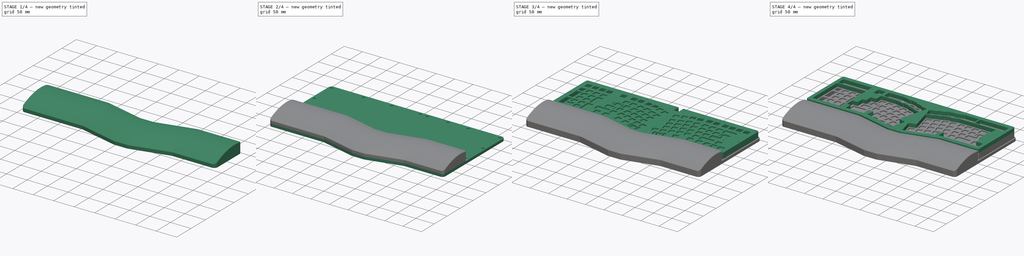
[diagram: build sequence overview — one tinted view per stage of 4, left to right]
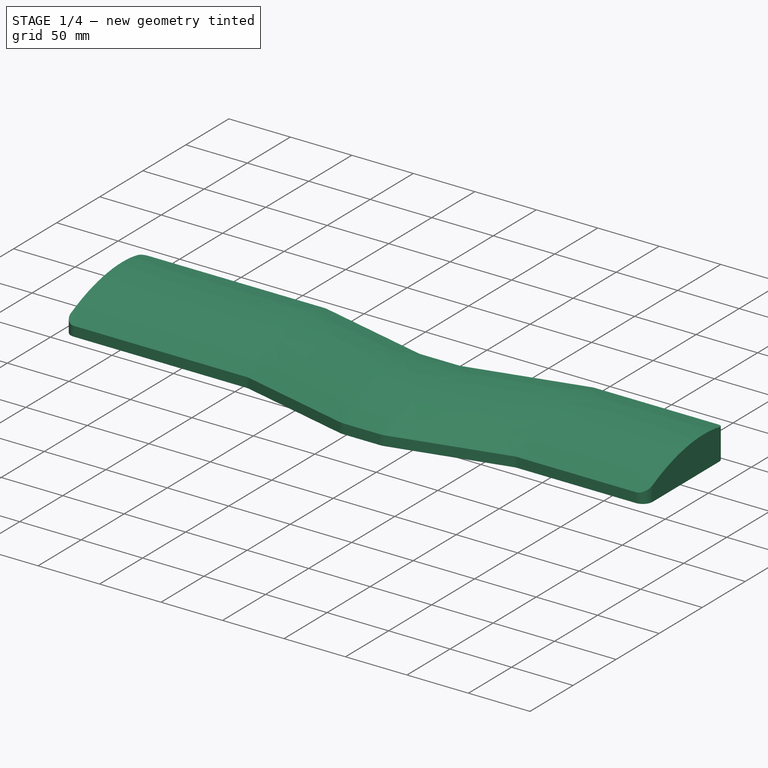
[diagram: stage 1 of 4 — iso view after this stage's code; geometry added in this stage tinted green]
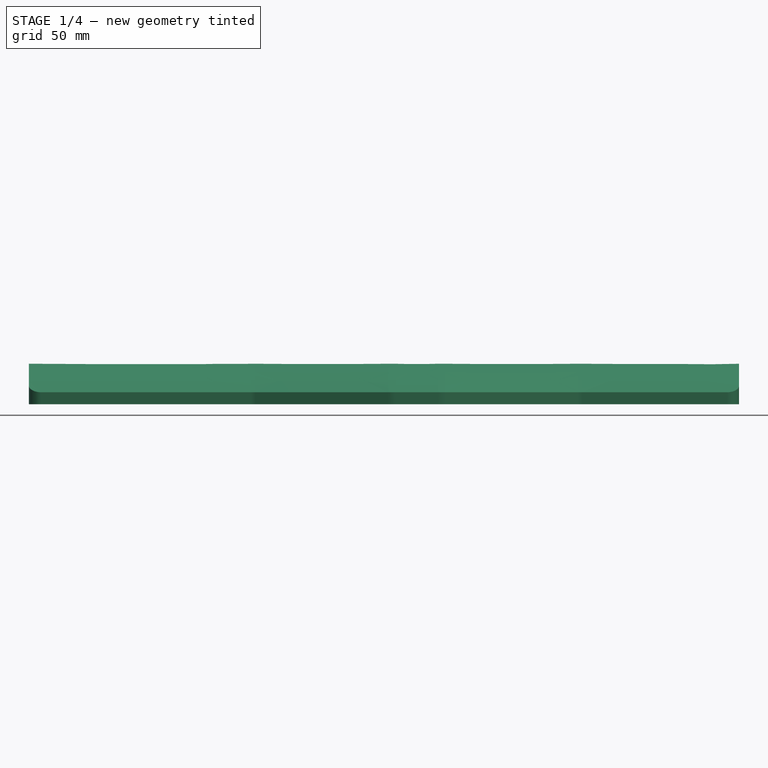
[diagram: stage 1 of 4 — front view after this stage's code; geometry added in this stage tinted green]
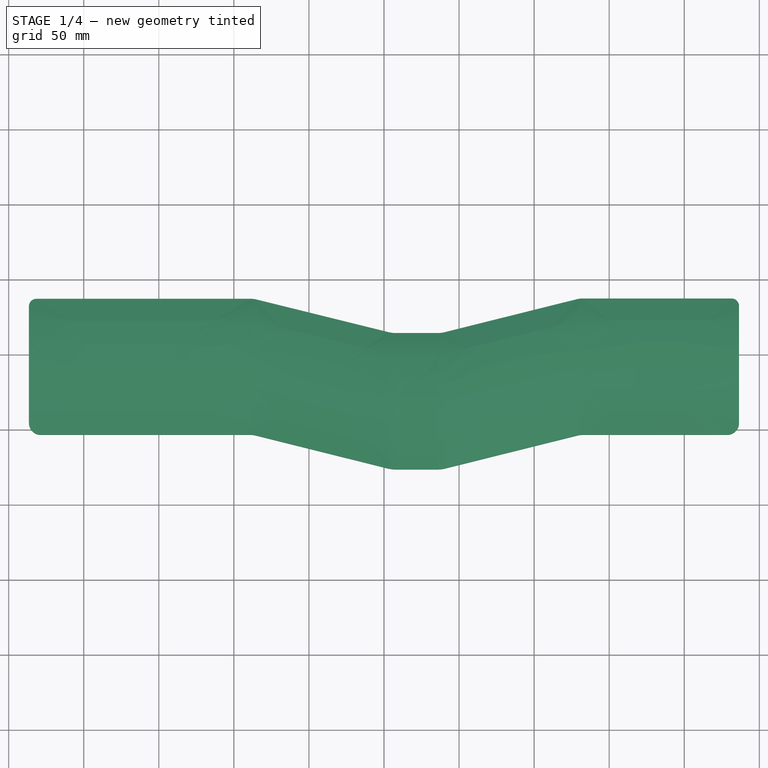
[diagram: stage 1 of 4 — top view after this stage's code; geometry added in this stage tinted green]
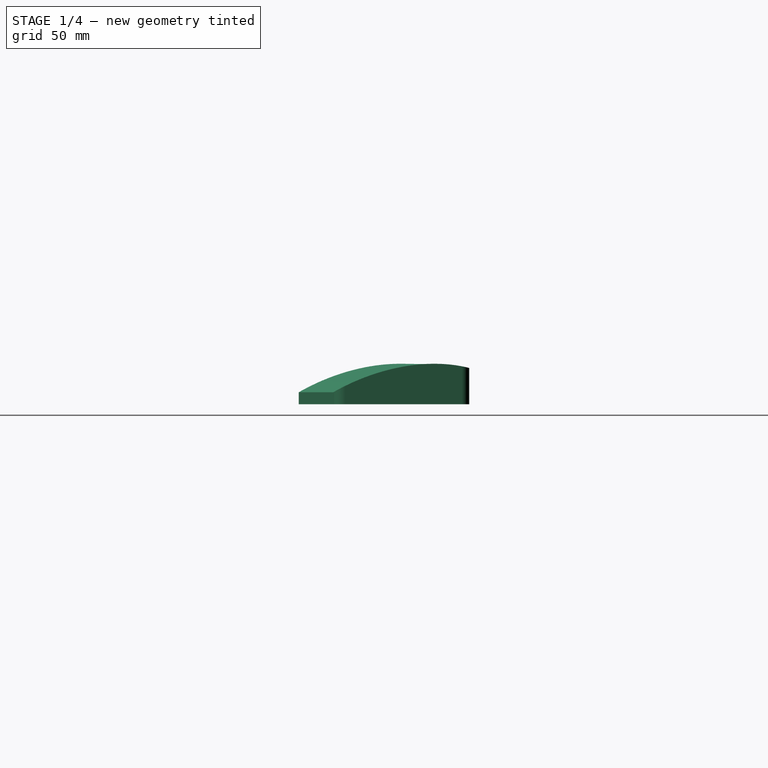
[diagram: stage 1 of 4 — right view after this stage's code; geometry added in this stage tinted green]
FCSTD DOCUMENT  (FreeCAD 0.19R)
Label: jabberwocky-acrylic-case-base
License: All rights reserved
LicenseURL: http://en.wikipedia.org/wiki/All_rights_reserved
objects: Part::Feature×39, Sketcher::SketchObject×17, PartDesign::Pad×7, PartDesign::Body×5, App::LinkGroup×3, PartDesign::SubtractivePipe×1, App::Part×1, PartDesign::Fillet×1
note: 79 computed .brp shape members not serialized (recipe doc carries the construction recipe); baked Part::Feature solids carry a one-line shape summary decoded from their .brp

FEATURE [Sketcher::SketchObject] Sketch014  label="base-wrist-rest-offset-old"
  FullyConstrained = false
  Placement = pos=(0,0,0) rot=(0,0,1;3.14159rad)
  sketch-geometry (36):
    g0: ArcOfCircle CenterX=-228.518 CenterY=145.415 CenterZ=0 NormalX=0 NormalY=0 NormalZ=1 AngleXU=3.14159 Radius=8 StartAngle=4.7212 EndAngle=6.28319
    g1: ArcOfCircle CenterX=-228.562 CenterY=150.415 CenterZ=0 NormalX=0 NormalY=0 NormalZ=1 AngleXU=-3.13279 Radius=3 StartAngle=4.70358 EndAngle=4.71239
    g2: LineSegment StartX=-228.562 StartY=153.415 StartZ=0 EndX=-132.112 EndY=153.415 EndZ=0
    g3: ArcOfCircle CenterX=-132.112 CenterY=150.415 CenterZ=0 NormalX=0 NormalY=0 NormalZ=1 AngleXU=3.14159 Radius=3 StartAngle=4.70902 EndAngle=4.71239
    g4: ArcOfCircle CenterX=-132.061 CenterY=165.385 CenterZ=0 NormalX=0 NormalY=0 NormalZ=1 AngleXU=3.14159 Radius=11.97 StartAngle=1.56742 EndAngle=1.81372
    g5: LineSegment StartX=-40.6845 StartY=175.836 StartZ=0 EndX=-129.182 EndY=153.767 EndZ=0
    g6: ArcOfCircle CenterX=-39.9586 CenterY=172.925 CenterZ=0 NormalX=0 NormalY=0 NormalZ=1 AngleXU=-2.8972 Radius=3 StartAngle=4.71209 EndAngle=4.71239
    g7: ArcOfCircle CenterX=-35.9637 CenterY=156.885 CenterZ=0 NormalX=0 NormalY=0 NormalZ=1 AngleXU=3.14159 Radius=19.53 StartAngle=4.7121 EndAngle=4.95648
    g8: LineSegment StartX=-7.55986 StartY=176.415 StartZ=0 EndX=-35.9581 EndY=176.415 EndZ=0
    g9: ArcOfCircle CenterX=-7.5433 CenterY=156.885 CenterZ=0 NormalX=0 NormalY=0 NormalZ=1 AngleXU=3.14159 Radius=19.53 StartAngle=4.46829 EndAngle=4.71324
    g10: ArcOfCircle CenterX=-3.54836 CenterY=172.925 CenterZ=0 NormalX=0 NormalY=0 NormalZ=1 AngleXU=2.8975 Radius=3 StartAngle=4.71209 EndAngle=4.71239
    g11: LineSegment StartX=85.6751 StartY=153.767 StartZ=0 EndX=-2.82246 EndY=175.836 EndZ=0
    g12: ArcOfCircle CenterX=88.554 CenterY=165.385 CenterZ=0 NormalX=0 NormalY=0 NormalZ=1 AngleXU=3.14159 Radius=11.97 StartAngle=1.3279 EndAngle=1.57083
    g13: ArcOfCircle CenterX=88.5545 CenterY=150.415 CenterZ=0 NormalX=0 NormalY=0 NormalZ=1 AngleXU=-3.14156 Radius=3 StartAngle=4.71238 EndAngle=4.71238
    g14: LineSegment StartX=228.506 StartY=153.415 StartZ=0 EndX=88.5544 EndY=153.415 EndZ=0
    g15: ArcOfCircle CenterX=228.522 CenterY=145.415 CenterZ=0 NormalX=0 NormalY=0 NormalZ=1 AngleXU=3.14159 Radius=8 StartAngle=3.14159 EndAngle=4.71439
    g16: LineSegment StartX=236.522 StartY=145.415 StartZ=0 EndX=236.522 EndY=65.4151 EndZ=0
    g17: ArcOfCircle CenterX=233.522 CenterY=65.4151 CenterZ=0 NormalX=0 NormalY=0 NormalZ=1 AngleXU=1.5708 Radius=3 StartAngle=4.71239 EndAngle=4.71239
    g18: ArcOfCircle CenterX=228.522 CenterY=65.4151 CenterZ=0 NormalX=0 NormalY=0 NormalZ=1 AngleXU=3.14159 Radius=8 StartAngle=1.5708 EndAngle=3.14159
    g19: LineSegment StartX=228.522 StartY=57.4151 StartZ=0 EndX=88.5673 EndY=57.4151 EndZ=0
    g20: ArcOfCircle CenterX=88.5673 CenterY=60.4151 CenterZ=0 NormalX=0 NormalY=0 NormalZ=1 AngleXU=-2e-16 Radius=3 StartAngle=4.71239 EndAngle=4.71239
    g21: ArcOfCircle CenterX=88.5673 CenterY=75.3851 CenterZ=0 NormalX=0 NormalY=0 NormalZ=1 AngleXU=3.14159 Radius=17.97 StartAngle=1.32906 EndAngle=1.5708
    g22: ArcOfCircle CenterX=84.9836 CenterY=60.8504 CenterZ=0 NormalX=0 NormalY=0 NormalZ=1 AngleXU=-0.241737 Radius=3 StartAngle=4.71194 EndAngle=4.71239
    g23: LineSegment StartX=84.2641 StartY=57.938 StartZ=0 EndX=-4.28393 EndY=79.8127 EndZ=0
    g24: ArcOfCircle CenterX=-3.56445 CenterY=82.7251 CenterZ=0 NormalX=0 NormalY=0 NormalZ=1 AngleXU=-0.242189 Radius=3 StartAngle=4.71048 EndAngle=4.71239
    g25: ArcOfCircle CenterX=-7.55936 CenterY=66.6851 CenterZ=0 NormalX=0 NormalY=0 NormalZ=1 AngleXU=3.14159 Radius=13.53 StartAngle=4.4683 EndAngle=4.71206
    g26: LineSegment StartX=-7.55494 StartY=80.2151 StartZ=0 EndX=-35.9545 EndY=80.2151 EndZ=0
    g27: ArcOfCircle CenterX=-35.9545 CenterY=83.2151 CenterZ=0 NormalX=0 NormalY=0 NormalZ=1 AngleXU=-1e-16 Radius=3 StartAngle=4.71208 EndAngle=4.71239
    g28: ArcOfCircle CenterX=-35.9597 CenterY=66.6851 CenterZ=0 NormalX=0 NormalY=0 NormalZ=1 AngleXU=3.14159 Radius=13.53 StartAngle=4.71208 EndAngle=4.95645
    g29: LineSegment StartX=-39.2292 StartY=79.8142 StartZ=0 EndX=-127.729 EndY=57.7468 EndZ=0
    g30: ArcOfCircle CenterX=-128.455 CenterY=60.6577 CenterZ=0 NormalX=0 NormalY=0 NormalZ=1 AngleXU=0.244366 Radius=3 StartAngle=4.71178 EndAngle=4.71239
    g31: ArcOfCircle CenterX=-132.068 CenterY=75.1851 CenterZ=0 NormalX=0 NormalY=0 NormalZ=1 AngleXU=3.14159 Radius=17.97 StartAngle=1.5708 EndAngle=1.81455
    g32: ArcOfCircle CenterX=-132.068 CenterY=60.2151 CenterZ=0 NormalX=0 NormalY=0 NormalZ=1 AngleXU=3.77006e-08 Radius=3 StartAngle=4.71239 EndAngle=4.71239
    g33: LineSegment StartX=-228.518 StartY=57.2151 StartZ=0 EndX=-132.068 EndY=57.2151 EndZ=0
    g34: ArcOfCircle CenterX=-228.518 CenterY=65.2151 CenterZ=0 NormalX=0 NormalY=0 NormalZ=1 AngleXU=3.14159 Radius=8 StartAngle=4.69967e-10 EndAngle=1.5708
    g35: LineSegment StartX=-236.518 StartY=145.415 StartZ=0 EndX=-236.518 EndY=65.2151 EndZ=0
  constraints (41):
    c: Coincident(g0,g1)
    c: Coincident(g1,g2)
    c: Horizontal(g2)
    c: Coincident(g2,g3)
    c: Coincident(g3,g4)
    c: Coincident(g4,g5)
    c: Coincident(g5,g6)
    c: Coincident(g6,g7)
    c: Coincident(g7,g8)
    c: Horizontal(g8)
    c: Coincident(g8,g9)
    c: Coincident(g9,g10)
    c: Coincident(g10,g11)
    c: Coincident(g11,g12)
    c: Coincident(g12,g13)
    c: Coincident(g13,g14)
    c: Coincident(g14,g15)
    c: Coincident(g15,g16)
    c: Vertical(g16)
    c: Coincident(g16,g17)
    c: Coincident(g17,g18)
    c: Coincident(g18,g19)
    c: Coincident(g19,g20)
    c: Coincident(g20,g21)
    c: Coincident(g21,g22)
    c: Coincident(g22,g23)
    c: Coincident(g23,g24)
    c: Coincident(g24,g25)
    c: Coincident(g25,g26)
    c: Horizontal(g26)
    c: Coincident(g26,g27)
    c: Coincident(g27,g28)
    c: Coincident(g28,g29)
    c: Coincident(g29,g30)
    c: Coincident(g30,g31)
    c: Coincident(g31,g32)
    c: Coincident(g32,g33)
    c: Coincident(g33,g34)
    c: Coincident(g34,g35)
    c: Vertical(g35)
    c: Coincident(g35,g0)
FEATURE [PartDesign::Body] Body001  label="keyboard-base"
  Group = -> [Sketch010,Sketch014]
  Origin = -> Origin001
FEATURE [Sketcher::SketchObject] Sketch016  label="base-wrist-rest-offset"
  FullyConstrained = false
  sketch-geometry (24):
    g0: ArcOfCircle CenterX=-88.4392 CenterY=-76.4808 CenterZ=0 NormalX=0 NormalY=0 NormalZ=1 AngleXU=0 Radius=13.4221 StartAngle=1.31384 EndAngle=1.58071
    g1: LineSegment StartX=-85.0282 StartY=-63.4994 StartZ=0 EndX=3.43505 EndY=-85.3694 EndZ=0
    g2: ArcOfCircle CenterX=7.62158 CenterY=-67.7341 CenterZ=0 NormalX=0 NormalY=0 NormalZ=1 AngleXU=0 Radius=18.1255 StartAngle=4.47931 EndAngle=4.70879
    g3: LineSegment StartX=7.55626 StartY=-85.8594 StartZ=0 EndX=35.9534 EndY=-85.8594 EndZ=0
    g4: ArcOfCircle CenterX=35.8971 CenterY=-67.734 CenterZ=0 NormalX=0 NormalY=0 NormalZ=1 AngleXU=0 Radius=18.1255 StartAngle=4.7155 EndAngle=4.94546
    g5: LineSegment StartX=40.0835 StartY=-85.3694 StartZ=0 EndX=128.529 EndY=-63.2994 EndZ=0
    g6: ArcOfCircle CenterX=131.934 CenterY=-76.2341 CenterZ=0 NormalX=0 NormalY=0 NormalZ=1 AngleXU=0 Radius=13.3754 StartAngle=1.56079 EndAngle=1.8282
    g7: LineSegment StartX=231.518 StartY=-62.8594 StartZ=0 EndX=132.068 EndY=-62.8594 EndZ=0
    g8: LineSegment StartX=-231.522 StartY=-63.0594 StartZ=0 EndX=-88.5722 EndY=-63.0594 EndZ=0
    g9: ArcOfCircle CenterX=231.518 CenterY=-67.8594 CenterZ=0 NormalX=0 NormalY=0 NormalZ=1 AngleXU=0 Radius=5 StartAngle=0 EndAngle=1.5708
    g10: ArcOfCircle CenterX=-231.522 CenterY=-68.0594 CenterZ=0 NormalX=0 NormalY=0 NormalZ=1 AngleXU=0 Radius=5 StartAngle=1.5708 EndAngle=3.14159
    g11: ArcOfCircle CenterX=228.518 CenterY=-145.415 CenterZ=0 NormalX=0 NormalY=0 NormalZ=1 AngleXU=3.14159 Radius=8 StartAngle=1.5796 EndAngle=3.14159
    g12: LineSegment StartX=228.588 StartY=-153.415 StartZ=0 EndX=132.102 EndY=-153.415 EndZ=0
    g13: ArcOfCircle CenterX=132.061 CenterY=-165.385 CenterZ=0 NormalX=0 NormalY=0 NormalZ=1 AngleXU=3.14159 Radius=11.9701 StartAngle=4.70902 EndAngle=4.95531
    g14: LineSegment StartX=40.6837 StartY=-175.836 StartZ=0 EndX=129.182 EndY=-153.766 EndZ=0
    g15: ArcOfCircle CenterX=35.9637 CenterY=-156.885 CenterZ=0 NormalX=0 NormalY=0 NormalZ=1 AngleXU=3.14159 Radius=19.53 StartAngle=1.57051 EndAngle=1.81489
    g16: LineSegment StartX=7.55986 StartY=-176.415 StartZ=0 EndX=35.9581 EndY=-176.415 EndZ=0
    g17: ArcOfCircle CenterX=7.5433 CenterY=-156.885 CenterZ=0 NormalX=0 NormalY=0 NormalZ=1 AngleXU=3.14159 Radius=19.53 StartAngle=1.3267 EndAngle=1.57164
    g18: LineSegment StartX=-85.6751 StartY=-153.767 StartZ=0 EndX=2.82333 EndY=-175.836 EndZ=0
    g19: ArcOfCircle CenterX=-88.554 CenterY=-165.385 CenterZ=0 NormalX=0 NormalY=0 NormalZ=1 AngleXU=3.14159 Radius=11.97 StartAngle=4.4695 EndAngle=4.71242
    g20: LineSegment StartX=-228.506 StartY=-153.415 StartZ=0 EndX=-88.5544 EndY=-153.415 EndZ=0
    g21: ArcOfCircle CenterX=-228.522 CenterY=-145.415 CenterZ=0 NormalX=0 NormalY=0 NormalZ=1 AngleXU=3.14159 Radius=8 StartAngle=9.912e-13 EndAngle=1.57279
    g22: LineSegment StartX=-236.522 StartY=-145.415 StartZ=0 EndX=-236.522 EndY=-68.0594 EndZ=0
    g23: LineSegment StartX=236.518 StartY=-145.415 StartZ=0 EndX=236.518 EndY=-67.8594 EndZ=0
  constraints (47):
    c: Coincident(g0,g8)
    c: Coincident(g0,g1)
    c: Coincident(g1,g2)
    c: Coincident(g3,g2)
    c: Coincident(g3,g4)
    c: Coincident(g5,g4)
    c: Coincident(g5,g6)
    c: Coincident(g6,g7)
    c: Coincident(g9,g7)
    c: Horizontal(g12)
    c: Coincident(g13,g14)
    c: Coincident(g15,g16)
    c: Horizontal(g16)
    c: Coincident(g16,g17)
    c: Coincident(g18,g19)
    c: Coincident(g20,g21)
    c: Coincident(g21,g22)
    c: Coincident(g23,g11)
    c: Horizontal(g8)
    c: Horizontal(g7)
    c: Coincident(g8,g10)
    c: Vertical(g23)
    c: Vertical(g22)
    c: Block(g21)
    c: Block(g11)
    c: Vertical(g9,g7)
    c: Vertical(g8,g10)
    c: Coincident(g10,g22)
    c: Coincident(g9,g23)
    c: Coincident(g19,g20)
    c: Coincident(g17,g18)
    c: Coincident(g14,g15)
    c: Coincident(g13,g12)
    c: Coincident(g12,g11)
    c: Horizontal(g10,g10)
    c: Horizontal(g9,g9)
    c: Distance(g9,g9) = 5
    c: Distance(g10,g10) = 5
    c: Distance(g0,g8) = 0.44
    c: Distance(g5,g7) = 0.44
    c: Distance(g4,g3) = 0.49
    c: Distance(g1,g3) = 0.49
    c: Distance(g3,g7) = 23
    c: Horizontal(g3)
    c: Distance(g8) = 142.95
    c: Distance(g7) = 99.45
    c: Distance(g6,g8) = 0.2
FEATURE [Sketcher::SketchObject] Sketch017  label="wrist-profile"
  FullyConstrained = false
  MapMode = 5
  Placement = pos=(245,0,0) rot=(0.57735,0.57735,0.57735;2.0944rad)
  sketch-geometry (10):
    g0: LineSegment StartX=-167.829 StartY=-1.55922 StartZ=0 EndX=-167.829 EndY=44.1237 EndZ=0
    g1: LineSegment StartX=-167.829 StartY=44.1237 StartZ=0 EndX=-56.3447 EndY=44.1237 EndZ=0
    g2: LineSegment StartX=-56.3447 StartY=44.1237 StartZ=0 EndX=-56.3447 EndY=22.1297 EndZ=0
    g3-g6: Circle x4 (B-spline internal-alignment scaffolding for g7; pole/knot coordinates omitted)
    g7: BSplineCurve PolesCount=4 KnotsCount=2 Degree=3 IsPeriodic=0
    g8: GeomPoint X=-167.829 Y=-1.55922 Z=0
    g9: GeomPoint X=-56.3447 Y=22.1297 Z=0
  constraints (13):
    c: Vertical(g0)
    c: Coincident(g0,g1)
    c: Horizontal(g1)
    c: Coincident(g1,g2)
    c: Vertical(g2)
    c: Coincident(g7,g0)
    c: Weight(g3) = 1
    c: Equal(g3,g4)
    c: Equal(g3,g5)
    c: Equal(g3,g6)
    c: InternalAlignment(g3-g6 -> g7) x4
    c: InternalAlignment(g8,g7)
    c: InternalAlignment(g9,g7)
FEATURE [Sketcher::SketchObject] Sketch018  label="wrist-path"
  FullyConstrained = false
  sketch-geometry (9):
    g0: LineSegment StartX=380.853 StartY=-153.415 StartZ=0 EndX=132.102 EndY=-153.415 EndZ=0
    g1: ArcOfCircle CenterX=132.061 CenterY=-165.385 CenterZ=0 NormalX=0 NormalY=0 NormalZ=1 AngleXU=3.14159 Radius=11.9701 StartAngle=4.70902 EndAngle=4.95531
    g2: LineSegment StartX=40.6837 StartY=-175.836 StartZ=0 EndX=129.182 EndY=-153.766 EndZ=0
    g3: ArcOfCircle CenterX=35.9637 CenterY=-156.885 CenterZ=0 NormalX=0 NormalY=0 NormalZ=1 AngleXU=3.14159 Radius=19.53 StartAngle=1.57051 EndAngle=1.81489
    g4: LineSegment StartX=7.55986 StartY=-176.415 StartZ=0 EndX=35.9581 EndY=-176.415 EndZ=0
    g5: ArcOfCircle CenterX=7.5433 CenterY=-156.885 CenterZ=0 NormalX=0 NormalY=0 NormalZ=1 AngleXU=3.14159 Radius=19.53 StartAngle=1.3267 EndAngle=1.57164
    g6: LineSegment StartX=-85.6751 StartY=-153.767 StartZ=0 EndX=2.82333 EndY=-175.836 EndZ=0
    g7: ArcOfCircle CenterX=-88.554 CenterY=-165.385 CenterZ=0 NormalX=0 NormalY=0 NormalZ=1 AngleXU=3.14159 Radius=11.97 StartAngle=4.4695 EndAngle=4.71242
    g8: LineSegment StartX=-378.807 StartY=-153.415 StartZ=0 EndX=-88.5544 EndY=-153.415 EndZ=0
  constraints (13):
    c: Horizontal(g0)
    c: Coincident(g1,g2)
    c: Coincident(g3,g4)
    c: Horizontal(g4)
    c: Coincident(g4,g5)
    c: Coincident(g6,g7)
    c: Coincident(g7,g8)
    c: Coincident(g5,g6)
    c: Coincident(g2,g3)
    c: Coincident(g1,g0)
    c: Horizontal(g8)
    c: Block(g7)
    c: Block(g1)
FEATURE [PartDesign::Pad] Pad006  label="rest"
  Direction = (1,1,1)
  Length = 30
  Length2 = 100
  Profile = -> Sketch016
  Type = 0
FEATURE [PartDesign::SubtractivePipe] SubtractivePipe
  AuxilleryCurvelinear = true
  AuxillerySpineTangent = false
  BaseFeature = -> Pad006
  Binormal = (0,0,0)
  Mode = 1
  Profile = -> Sketch017
  Spine = -> Sketch018
  SpineTangent = false
  Transformation = 0
  Transition = 2
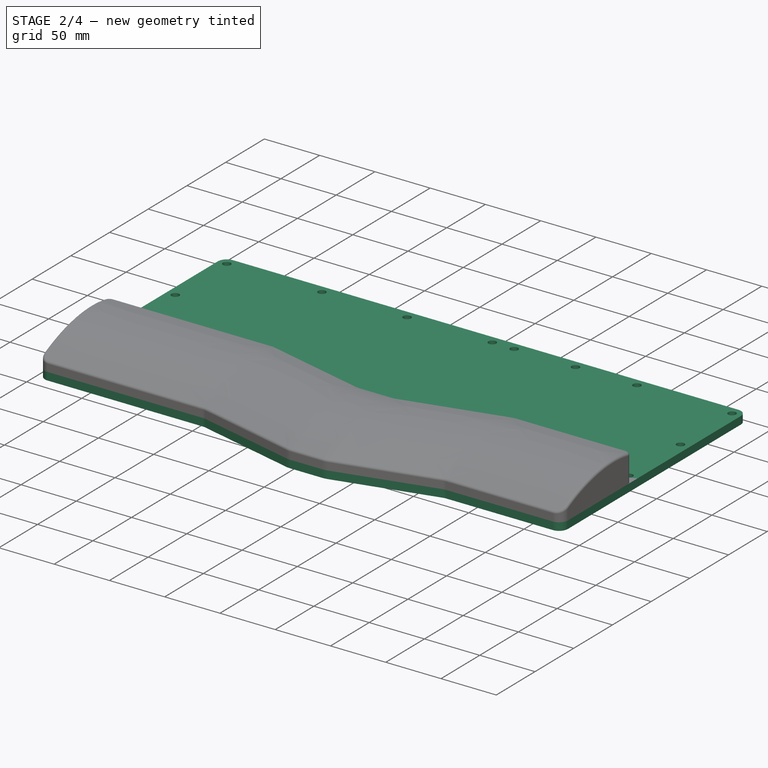
[diagram: stage 2 of 4 — iso view after this stage's code; geometry added in this stage tinted green]
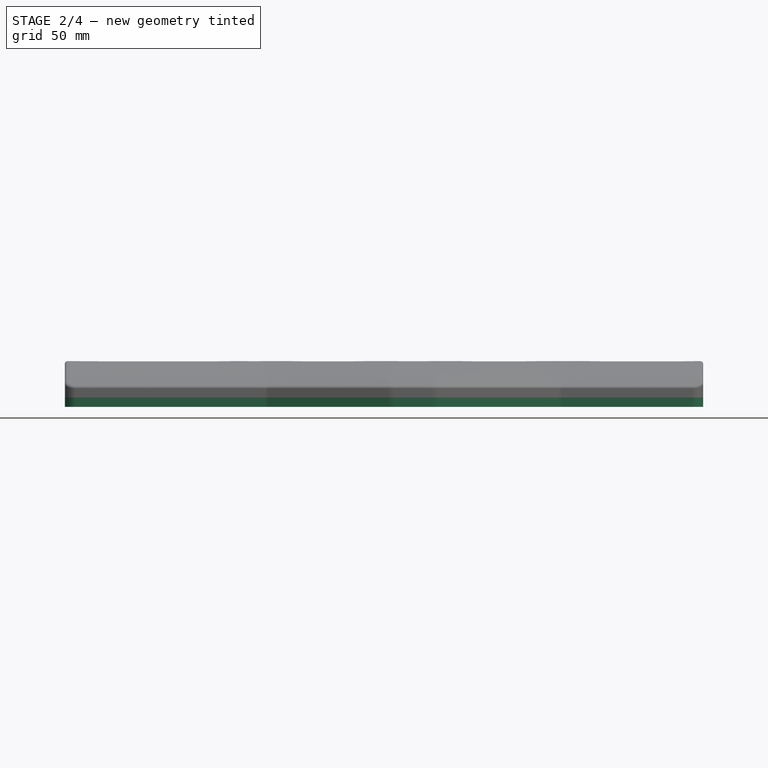
[diagram: stage 2 of 4 — front view after this stage's code; geometry added in this stage tinted green]
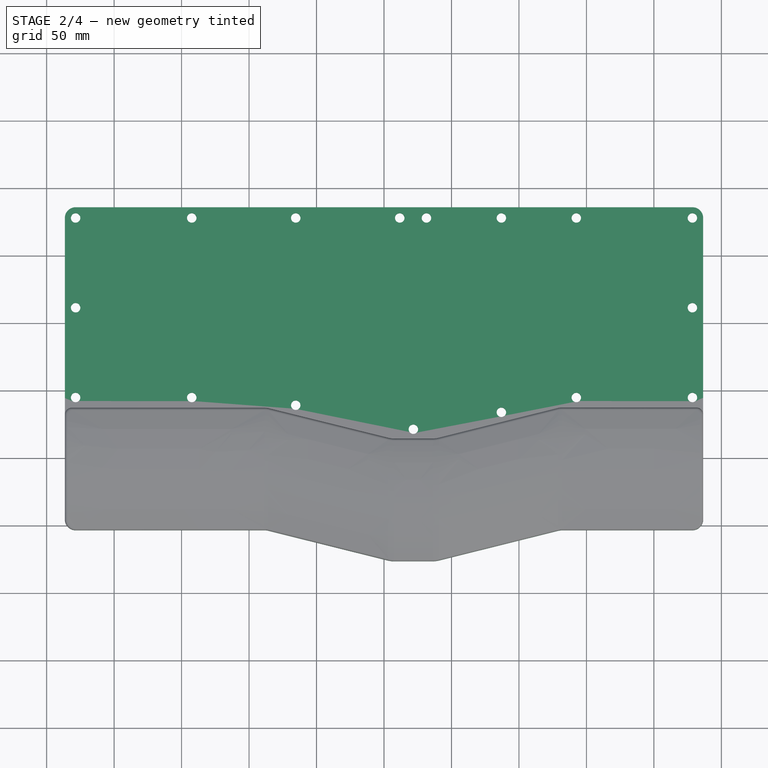
[diagram: stage 2 of 4 — top view after this stage's code; geometry added in this stage tinted green]
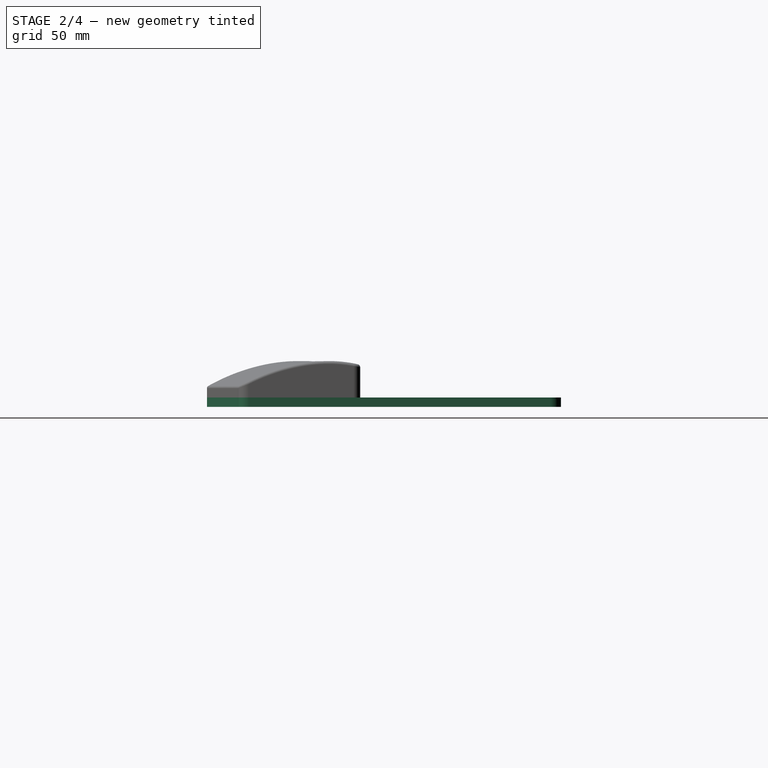
[diagram: stage 2 of 4 — right view after this stage's code; geometry added in this stage tinted green]
FEATURE [Part::Feature] Part__Feature  label="screw-1"
  Placement = pos=(228.523,11.5016,20.695) rot=(0,0,1;0rad)
  shape: bbox 5.7 x 5.7 x 27.25 mm, 135 faces (baked)
FEATURE [Sketcher::SketchObject] Sketch010  label="base-flat"
  FullyConstrained = false
  sketch-geometry (46):
    g0: Circle CenterX=31.4567 CenterY=78.0246 CenterZ=0 NormalX=0 NormalY=0 NormalZ=-1 AngleXU=0 Radius=3.5
    g1: Circle CenterX=11.6609 CenterY=78.0246 CenterZ=0 NormalX=0 NormalY=0 NormalZ=-1 AngleXU=0 Radius=3.5
    g2: Circle CenterX=-65.4059 CenterY=78.0246 CenterZ=0 NormalX=0 NormalY=0 NormalZ=-1 AngleXU=0 Radius=3.5
    g3: Circle CenterX=86.9757 CenterY=78.0246 CenterZ=0 NormalX=0 NormalY=0 NormalZ=-1 AngleXU=0 Radius=3.5
    g4: Circle CenterX=142.495 CenterY=78.0246 CenterZ=0 NormalX=0 NormalY=0 NormalZ=-1 AngleXU=0 Radius=3.5
    g5: Circle CenterX=228.523 CenterY=78.0327 CenterZ=0 NormalX=0 NormalY=0 NormalZ=-1 AngleXU=0 Radius=3.5
    g6: Circle CenterX=228.523 CenterY=11.5016 CenterZ=0 NormalX=0 NormalY=0 NormalZ=-1 AngleXU=0 Radius=3.5
    g7: Circle CenterX=228.543 CenterY=-55.0296 CenterZ=0 NormalX=0 NormalY=0 NormalZ=-1 AngleXU=0 Radius=3.5
    g8: Circle CenterX=142.495 CenterY=-55.0296 CenterZ=0 NormalX=0 NormalY=0 NormalZ=-1 AngleXU=0 Radius=3.5
    g9: Circle CenterX=86.9757 CenterY=-65.9839 CenterZ=0 NormalX=0 NormalY=0 NormalZ=-1 AngleXU=0 Radius=3.5
    g10: Circle CenterX=21.7523 CenterY=-78.5426 CenterZ=0 NormalX=0 NormalY=0 NormalZ=-1 AngleXU=0 Radius=3.5
    g11: Circle CenterX=-65.4059 CenterY=-60.759 CenterZ=0 NormalX=0 NormalY=0 NormalZ=-1 AngleXU=0 Radius=3.5
    g12: Circle CenterX=-142.473 CenterY=-55.0296 CenterZ=0 NormalX=0 NormalY=0 NormalZ=-1 AngleXU=0 Radius=3.5
    g13: Circle CenterX=-228.517 CenterY=-55.0296 CenterZ=0 NormalX=0 NormalY=0 NormalZ=-1 AngleXU=0 Radius=3.5
    g14: Circle CenterX=-142.467 CenterY=78.0246 CenterZ=0 NormalX=0 NormalY=0 NormalZ=-1 AngleXU=0 Radius=3.5
    g15: Circle CenterX=-228.517 CenterY=11.5016 CenterZ=0 NormalX=0 NormalY=0 NormalZ=-1 AngleXU=0 Radius=3.5
    g16: Circle CenterX=-228.517 CenterY=78.0246 CenterZ=0 NormalX=0 NormalY=0 NormalZ=-1 AngleXU=0 Radius=3.5
    g17: ArcOfCircle CenterX=-228.517 CenterY=77.9746 CenterZ=0 NormalX=0 NormalY=0 NormalZ=1 AngleXU=0 Radius=5 StartAngle=1.5708 EndAngle=3.14159
    g18: ArcOfCircle CenterX=-228.517 CenterY=-55.4151 CenterZ=0 NormalX=0 NormalY=0 NormalZ=1 AngleXU=0 Radius=5 StartAngle=3.14159 EndAngle=4.71239
    g19: ArcOfCircle CenterX=-88.5673 CenterY=-75.3851 CenterZ=0 NormalX=0 NormalY=0 NormalZ=1 AngleXU=0 Radius=14.97 StartAngle=1.32906 EndAngle=1.5708
    g20: LineSegment StartX=-84.9836 StartY=-60.8504 StartZ=0 EndX=3.56445 EndY=-82.7251 EndZ=0
    g21: ArcOfCircle CenterX=7.55936 CenterY=-66.6851 CenterZ=0 NormalX=0 NormalY=0 NormalZ=1 AngleXU=0 Radius=16.53 StartAngle=4.4683 EndAngle=4.71209
    g22: LineSegment StartX=7.55447 StartY=-83.2151 StartZ=0 EndX=35.9545 EndY=-83.2151 EndZ=0
    g23: ArcOfCircle CenterX=35.9597 CenterY=-66.6851 CenterZ=0 NormalX=0 NormalY=0 NormalZ=1 AngleXU=0 Radius=16.53 StartAngle=4.71208 EndAngle=4.95648
    g24: LineSegment StartX=39.9546 StartY=-82.7251 StartZ=0 EndX=128.455 EndY=-60.6577 EndZ=0
    g25: ArcOfCircle CenterX=132.068 CenterY=-75.1851 CenterZ=0 NormalX=0 NormalY=0 NormalZ=1 AngleXU=0 Radius=14.97 StartAngle=1.5708 EndAngle=1.81455
    g26: ArcOfCircle CenterX=228.523 CenterY=-55.2151 CenterZ=0 NormalX=0 NormalY=0 NormalZ=1 AngleXU=0 Radius=5 StartAngle=4.71141 EndAngle=6.2819
    g27: ArcOfCircle CenterX=228.593 CenterY=78.0451 CenterZ=0 NormalX=0 NormalY=0 NormalZ=1 AngleXU=0 Radius=4.93 StartAngle=6.26888 EndAngle=7.86828
    g28: LineSegment StartX=-233.517 StartY=77.9746 StartZ=0 EndX=-233.517 EndY=-55.4151 EndZ=0
    g29: LineSegment StartX=-228.517 StartY=82.9746 StartZ=0 EndX=228.523 EndY=82.9746 EndZ=0
    g30: LineSegment StartX=233.523 StartY=77.9746 StartZ=0 EndX=233.523 EndY=-55.2216 EndZ=0
    g31: LineSegment StartX=228.518 StartY=-60.2151 StartZ=0 EndX=132.068 EndY=-60.2151 EndZ=0
    g32: LineSegment StartX=-228.517 StartY=-60.4151 StartZ=0 EndX=-88.5673 EndY=-60.4151 EndZ=0
    g33: ArcOfCircle CenterX=-228.517 CenterY=-145.415 CenterZ=0 NormalX=0 NormalY=0 NormalZ=1 AngleXU=0 Radius=5 StartAngle=3.14159 EndAngle=4.71492
    g34: LineSegment StartX=-228.505 StartY=-150.415 StartZ=0 EndX=-88.5496 EndY=-150.415 EndZ=0
    g35: ArcOfCircle CenterX=-88.5491 CenterY=-165.385 CenterZ=0 NormalX=0 NormalY=0 NormalZ=1 AngleXU=0 Radius=14.97 StartAngle=1.32774 EndAngle=1.57083
    g36: LineSegment StartX=-84.9463 StartY=-150.855 StartZ=0 EndX=3.55328 EndY=-172.925 EndZ=0
    g37: ArcOfCircle CenterX=7.54821 CenterY=-156.885 CenterZ=0 NormalX=0 NormalY=0 NormalZ=1 AngleXU=0 Radius=16.53 StartAngle=4.46829 EndAngle=4.71331
    g38: LineSegment StartX=7.56345 StartY=-173.415 StartZ=0 EndX=35.9635 EndY=-173.415 EndZ=0
    g39: ArcOfCircle CenterX=35.9686 CenterY=-156.885 CenterZ=0 NormalX=0 NormalY=0 NormalZ=1 AngleXU=0 Radius=16.53 StartAngle=4.71208 EndAngle=4.95648
    g40: LineSegment StartX=39.9636 StartY=-172.925 StartZ=0 EndX=128.463 EndY=-150.855 EndZ=0
    g41: ArcOfCircle CenterX=132.066 CenterY=-165.385 CenterZ=0 NormalX=0 NormalY=0 NormalZ=1 AngleXU=0 Radius=14.97 StartAngle=1.56742 EndAngle=1.81387
    g42: LineSegment StartX=228.567 StartY=-150.415 StartZ=0 EndX=132.117 EndY=-150.415 EndZ=0
    g43: ArcOfCircle CenterX=228.523 CenterY=-145.415 CenterZ=0 NormalX=0 NormalY=0 NormalZ=1 AngleXU=0 Radius=5 StartAngle=4.7212 EndAngle=6.28322
    g44: LineSegment StartX=-233.517 StartY=-55.4151 StartZ=0 EndX=-233.517 EndY=-145.415 EndZ=0
    g45: LineSegment StartX=233.523 StartY=-145.415 StartZ=0 EndX=233.523 EndY=-55.2216 EndZ=0
  constraints (47):
    c: Coincident(g44,g33)
    c: Coincident(g44,g28)
    c: Coincident(g17,g28)
    c: Coincident(g29,g17)
    c: Coincident(g34,g35)
    c: Coincident(g36,g35)
    c: Coincident(g37,g36)
    c: Coincident(g37,g38)
    c: Coincident(g38,g39)
    c: Coincident(g39,g40)
    c: Coincident(g40,g41)
    c: Coincident(g41,g42)
    c: Coincident(g27,g29)
    c: Coincident(g42,g43)
    c: Coincident(g45,g43)
    c: Coincident(g30,g45)
    c: Coincident(g27,g30)
    c: Coincident(g18,g28)
    c: Coincident(g18,g32)
    c: Coincident(g32,g19)
    c: Coincident(g19,g20)
    c: Coincident(g20,g21)
    c: Coincident(g21,g22)
    c: Coincident(g23,g22)
    c: Coincident(g24,g23)
    c: Coincident(g25,g24)
    c: Coincident(g31,g25)
    c: Coincident(g31,g26)
    c: Coincident(g30,g26)
    c: Coincident(g34,g33)
    c: Diameter(g5) = 7
    c: Diameter(g4) = 7
    c: Diameter(g3) = 7
    c: Diameter(g0) = 7
    c: Diameter(g1) = 7
    c: Diameter(g2) = 7
    c: Diameter(g14) = 7
    c: Diameter(g16) = 7
    c: Diameter(g15) = 7
    c: Diameter(g13) = 7
    c: Diameter(g12) = 7
    c: Diameter(g11) = 7
    c: Diameter(g10) = 7
    c: Diameter(g9) = 7
    c: Diameter(g8) = 7
    c: Diameter(g7) = 7
    c: Diameter(g6) = 7
FEATURE [Part::Feature] Part__Feature001  label="screw-0"
  Placement = pos=(228.545,-55.0296,20.695) rot=(0,0,1;0rad)
  shape: bbox 5.7 x 5.7 x 27.25 mm, 135 faces (baked)
FEATURE [Part::Feature] Part__Feature002  label="screw-2"
  Placement = pos=(228.545,78.0327,20.695) rot=(0,0,1;0rad)
  shape: bbox 5.7 x 5.7 x 27.25 mm, 135 faces (baked)
FEATURE [Part::Feature] Part__Feature003  label="screw-003"
  Placement = pos=(142.495,78.0327,20.695) rot=(0,0,1;0rad)
  shape: bbox 5.7 x 5.7 x 27.25 mm, 135 faces (baked)
FEATURE [Part::Feature] Part__Feature004  label="screw-004"
  Placement = pos=(86.9757,78.0327,20.695) rot=(0,0,1;0rad)
  shape: bbox 5.7 x 5.7 x 27.25 mm, 135 faces (baked)
FEATURE [Part::Feature] Part__Feature005  label="screw-005"
  Placement = pos=(31.4567,78.0327,20.695) rot=(0,0,1;0rad)
  shape: bbox 5.7 x 5.7 x 27.25 mm, 135 faces (baked)
FEATURE [Part::Feature] Part__Feature006  label="screw-006"
  Placement = pos=(11.6609,78.0327,20.695) rot=(0,0,1;0rad)
  shape: bbox 5.7 x 5.7 x 27.25 mm, 135 faces (baked)
FEATURE [Part::Feature] Part__Feature007  label="screw-007"
  Placement = pos=(-65.4059,78.0327,20.695) rot=(0,0,1;0rad)
  shape: bbox 5.7 x 5.7 x 27.25 mm, 135 faces (baked)
FEATURE [Part::Feature] Part__Feature008  label="screw-008"
  Placement = pos=(-142.473,78.0327,20.695) rot=(0,0,1;0rad)
  shape: bbox 5.7 x 5.7 x 27.25 mm, 135 faces (baked)
FEATURE [Part::Feature] Part__Feature009  label="screw-009"
  Placement = pos=(-228.522,78.0327,20.695) rot=(0,0,1;0rad)
  shape: bbox 5.7 x 5.7 x 27.25 mm, 135 faces (baked)
FEATURE [Part::Feature] Part__Feature010  label="screw-010"
  Placement = pos=(-228.522,11.5016,20.695) rot=(0,0,1;0rad)
  shape: bbox 5.7 x 5.7 x 27.25 mm, 135 faces (baked)
FEATURE [Part::Feature] Part__Feature011  label="screw-011"
  Placement = pos=(-228.522,-55.0296,20.695) rot=(0,0,1;0rad)
  shape: bbox 5.7 x 5.7 x 27.25 mm, 135 faces (baked)
FEATURE [Part::Feature] Part__Feature012  label="screw-012"
  Placement = pos=(-142.473,-55.0296,20.695) rot=(0,0,1;0rad)
  shape: bbox 5.7 x 5.7 x 27.25 mm, 135 faces (baked)
FEATURE [Part::Feature] Part__Feature013  label="screw-013"
  Placement = pos=(-65.4059,-60.759,20.695) rot=(0,0,1;0rad)
  shape: bbox 5.7 x 5.7 x 27.25 mm, 135 faces (baked)
FEATURE [Part::Feature] Part__Feature014  label="screw-014"
  Placement = pos=(21.7523,-78.5426,20.695) rot=(0,0,1;0rad)
  shape: bbox 5.7 x 5.7 x 27.25 mm, 135 faces (baked)
FEATURE [Part::Feature] Part__Feature015  label="screw-015"
  Placement = pos=(86.9757,-65.9839,20.695) rot=(0,0,1;0rad)
  shape: bbox 5.7 x 5.7 x 27.25 mm, 135 faces (baked)
FEATURE [Part::Feature] Part__Feature016  label="screw-016"
  Placement = pos=(142.495,-55.0296,20.695) rot=(0,0,1;0rad)
  shape: bbox 5.7 x 5.7 x 27.25 mm, 135 faces (baked)
FEATURE [Part::Feature] Part__Feature017  label="nut-000"
  Placement = pos=(228.545,-55.0296,-3) rot=(0,0,1;0rad)
  shape: bbox 6.351 x 6.351 x 6.188 mm, 48 faces (baked)
FEATURE [App::LinkGroup] LinkGroup  label="bolts"
  ElementList = -> [Part__Feature016,Part__Feature003,Part__Feature004,Part__Feature005,Part__Feature006,Part__Feature007,Part__Feature008,Part__Feature009,Part__Feature010,Part__Feature011,Part__Feature012,Part__Feature013,Part__Feature014,Part__Feature015,Part__Feature001,Part__Feature002,Part__Feature]
  LinkMode = 0
  Placement = pos=(0,0,6) rot=(0,0,1;0rad)
FEATURE [Part::Feature] Part__Feature018  label="nut-001"
  Placement = pos=(228.523,11.5016,-3) rot=(0,0,1;0rad)
  shape: bbox 6.351 x 6.351 x 6.188 mm, 48 faces (baked)
FEATURE [Part::Feature] Part__Feature019  label="nut-002"
  Placement = pos=(228.545,78.0327,-3) rot=(0,0,1;0rad)
  shape: bbox 6.351 x 6.351 x 6.188 mm, 48 faces (baked)
FEATURE [Part::Feature] Part__Feature020  label="nut-003"
  Placement = pos=(142.495,78.0327,-3) rot=(0,0,1;0rad)
  shape: bbox 6.351 x 6.351 x 6.188 mm, 48 faces (baked)
FEATURE [Part::Feature] Part__Feature021  label="nut-004"
  Placement = pos=(86.9757,78.0327,-3) rot=(0,0,1;0rad)
  shape: bbox 6.351 x 6.351 x 6.188 mm, 48 faces (baked)
FEATURE [Part::Feature] Part__Feature022  label="nut-005"
  Placement = pos=(31.4567,78.0327,-3) rot=(0,0,1;0rad)
  shape: bbox 6.351 x 6.351 x 6.188 mm, 48 faces (baked)
FEATURE [Part::Feature] Part__Feature023  label="nut-006"
  Placement = pos=(11.6609,78.0327,-3) rot=(0,0,1;0rad)
  shape: bbox 6.351 x 6.351 x 6.188 mm, 48 faces (baked)
FEATURE [Part::Feature] Part__Feature024  label="nut-007"
  Placement = pos=(-65.4059,78.0327,-3) rot=(0,0,1;0rad)
  shape: bbox 6.351 x 6.351 x 6.188 mm, 48 faces (baked)
FEATURE [Part::Feature] Part__Feature025  label="nut-008"
  Placement = pos=(-142.473,78.0327,-3) rot=(0,0,1;0rad)
  shape: bbox 6.351 x 6.351 x 6.188 mm, 48 faces (baked)
FEATURE [Part::Feature] Part__Feature026  label="nut-009"
  Placement = pos=(-228.522,78.0327,-3) rot=(0,0,1;0rad)
  shape: bbox 6.351 x 6.351 x 6.188 mm, 48 faces (baked)
FEATURE [Part::Feature] Part__Feature027  label="nut-010"
  Placement = pos=(-228.522,11.5016,-3) rot=(0,0,1;0rad)
  shape: bbox 6.351 x 6.351 x 6.188 mm, 48 faces (baked)
FEATURE [Part::Feature] Part__Feature028  label="nut-011"
  Placement = pos=(-228.522,-55.0296,-3) rot=(0,0,1;0rad)
  shape: bbox 6.351 x 6.351 x 6.188 mm, 48 faces (baked)
FEATURE [Part::Feature] Part__Feature029  label="nut-012"
  Placement = pos=(-142.473,-55.0296,-3) rot=(0,0,1;0rad)
  shape: bbox 6.351 x 6.351 x 6.188 mm, 48 faces (baked)
FEATURE [Part::Feature] Part__Feature030  label="nut-013"
  Placement = pos=(-65.4059,-60.759,-3) rot=(0,0,1;0rad)
  shape: bbox 6.351 x 6.351 x 6.188 mm, 48 faces (baked)
FEATURE [Part::Feature] Part__Feature031  label="nut-014"
  Placement = pos=(21.7523,-78.5426,-3) rot=(0,0,1;0rad)
  shape: bbox 6.351 x 6.351 x 6.188 mm, 48 faces (baked)
FEATURE [Part::Feature] Part__Feature032  label="nut-015"
  Placement = pos=(86.9757,-65.9839,-3) rot=(0,0,1;0rad)
  shape: bbox 6.351 x 6.351 x 6.188 mm, 48 faces (baked)
FEATURE [Part::Feature] Part__Feature033  label="nut-016"
  Placement = pos=(142.495,-55.0296,-3) rot=(0,0,1;0rad)
  shape: bbox 6.351 x 6.351 x 6.188 mm, 48 faces (baked)
FEATURE [App::LinkGroup] LinkGroup001  label="caps"
  ElementList = -> [Part__Feature017,Part__Feature018,Part__Feature019,Part__Feature020,Part__Feature021,Part__Feature022,Part__Feature023,Part__Feature024,Part__Feature025,Part__Feature026,Part__Feature027,Part__Feature028,Part__Feature029,Part__Feature030,Part__Feature031,Part__Feature032,Part__Feature033]
  LinkMode = 0
FEATURE [PartDesign::Body] Pad004Body  label="keyboard-case"
  Group = -> [Sketch005,Pad,Sketch006,Pad001,Sketch007,Pad002,Sketch008,Pad003,Sketch009,Pad004]
  Origin = -> Origin002
  Tip = -> Pad004
FEATURE [Sketcher::SketchObject] Sketch013  label="base-flat-offset"
  FullyConstrained = false
  MapMode = 5
  Support = -> [XY_Plane005]
  sketch-geometry (40):
    g0: Circle CenterX=31.4567 CenterY=78.0246 CenterZ=0 NormalX=0 NormalY=0 NormalZ=-1 AngleXU=0 Radius=3.5
    g1: Circle CenterX=11.6609 CenterY=78.0246 CenterZ=0 NormalX=0 NormalY=0 NormalZ=-1 AngleXU=0 Radius=3.5
    g2: Circle CenterX=-65.4059 CenterY=78.0246 CenterZ=0 NormalX=0 NormalY=0 NormalZ=-1 AngleXU=0 Radius=3.5
    g3: Circle CenterX=86.9757 CenterY=78.0246 CenterZ=0 NormalX=0 NormalY=0 NormalZ=-1 AngleXU=0 Radius=3.5
    g4: Circle CenterX=142.495 CenterY=78.0246 CenterZ=0 NormalX=0 NormalY=0 NormalZ=-1 AngleXU=0 Radius=3.5
    g5: Circle CenterX=228.523 CenterY=78.0327 CenterZ=0 NormalX=0 NormalY=0 NormalZ=-1 AngleXU=0 Radius=3.5
    g6: Circle CenterX=228.523 CenterY=11.5016 CenterZ=0 NormalX=0 NormalY=0 NormalZ=-1 AngleXU=0 Radius=3.5
    g7: Circle CenterX=228.543 CenterY=-55.0296 CenterZ=0 NormalX=0 NormalY=0 NormalZ=-1 AngleXU=0 Radius=3.5
    g8: Circle CenterX=142.495 CenterY=-55.0296 CenterZ=0 NormalX=0 NormalY=0 NormalZ=-1 AngleXU=0 Radius=3.5
    g9: Circle CenterX=86.9757 CenterY=-65.9839 CenterZ=0 NormalX=0 NormalY=0 NormalZ=-1 AngleXU=0 Radius=3.5
    g10: Circle CenterX=21.7523 CenterY=-78.5426 CenterZ=0 NormalX=0 NormalY=0 NormalZ=-1 AngleXU=0 Radius=3.5
    g11: Circle CenterX=-65.4059 CenterY=-60.759 CenterZ=0 NormalX=0 NormalY=0 NormalZ=-1 AngleXU=0 Radius=3.5
    g12: Circle CenterX=-142.473 CenterY=-55.0296 CenterZ=0 NormalX=0 NormalY=0 NormalZ=-1 AngleXU=0 Radius=3.5
    g13: Circle CenterX=-228.517 CenterY=-55.0296 CenterZ=0 NormalX=0 NormalY=0 NormalZ=-1 AngleXU=0 Radius=3.5
    g14: Circle CenterX=-142.467 CenterY=78.0246 CenterZ=0 NormalX=0 NormalY=0 NormalZ=-1 AngleXU=0 Radius=3.5
    g15: Circle CenterX=-228.517 CenterY=11.5016 CenterZ=0 NormalX=0 NormalY=0 NormalZ=-1 AngleXU=0 Radius=3.5
    g16: Circle CenterX=-228.517 CenterY=78.0246 CenterZ=0 NormalX=0 NormalY=0 NormalZ=-1 AngleXU=0 Radius=3.5
    g17: ArcOfCircle CenterX=228.593 CenterY=78.0451 CenterZ=0 NormalX=0 NormalY=0 NormalZ=1 AngleXU=0 Radius=7.93 StartAngle=6.27191 EndAngle=7.86526
    g18: LineSegment StartX=236.523 StartY=77.9557 StartZ=0 EndX=236.523 EndY=-55.2216 EndZ=0
    g19: LineSegment StartX=236.523 StartY=-145.415 StartZ=0 EndX=236.523 EndY=-55.2216 EndZ=0
    g20: ArcOfCircle CenterX=228.523 CenterY=-145.415 CenterZ=0 NormalX=0 NormalY=0 NormalZ=1 AngleXU=0 Radius=8 StartAngle=4.7212 EndAngle=6.28319
    g21: ArcOfCircle CenterX=228.567 CenterY=-150.415 CenterZ=0 NormalX=0 NormalY=0 NormalZ=1 AngleXU=0.00880689 Radius=3 StartAngle=4.70358 EndAngle=4.71239
    g22: LineSegment StartX=228.567 StartY=-153.415 StartZ=0 EndX=132.117 EndY=-153.415 EndZ=0
    g23: ArcOfCircle CenterX=132.117 CenterY=-150.415 CenterZ=0 NormalX=0 NormalY=0 NormalZ=1 AngleXU=0 Radius=3 StartAngle=4.70902 EndAngle=4.71239
    g24: ArcOfCircle CenterX=132.066 CenterY=-165.385 CenterZ=0 NormalX=0 NormalY=0 NormalZ=1 AngleXU=0 Radius=11.97 StartAngle=1.56742 EndAngle=1.81372
    g25: LineSegment StartX=40.6895 StartY=-175.836 StartZ=0 EndX=129.187 EndY=-153.767 EndZ=0
    g26: ArcOfCircle CenterX=39.9636 CenterY=-172.925 CenterZ=0 NormalX=0 NormalY=0 NormalZ=1 AngleXU=0.244395 Radius=3 StartAngle=4.71209 EndAngle=4.71239
    g27: ArcOfCircle CenterX=35.9686 CenterY=-156.885 CenterZ=0 NormalX=0 NormalY=0 NormalZ=1 AngleXU=0 Radius=19.53 StartAngle=4.7121 EndAngle=4.95648
    g28: LineSegment StartX=7.56478 StartY=-176.415 StartZ=0 EndX=35.963 EndY=-176.415 EndZ=0
    g29: ArcOfCircle CenterX=7.54821 CenterY=-156.885 CenterZ=0 NormalX=0 NormalY=0 NormalZ=1 AngleXU=0 Radius=19.53 StartAngle=4.46829 EndAngle=4.71324
    g30: ArcOfCircle CenterX=3.55328 CenterY=-172.925 CenterZ=0 NormalX=0 NormalY=0 NormalZ=1 AngleXU=-0.244095 Radius=3 StartAngle=4.71209 EndAngle=4.71239
    g31: LineSegment StartX=-85.6702 StartY=-153.767 StartZ=0 EndX=2.82737 EndY=-175.836 EndZ=0
    g32: ArcOfCircle CenterX=-88.5491 CenterY=-165.385 CenterZ=0 NormalX=0 NormalY=0 NormalZ=1 AngleXU=0 Radius=11.97 StartAngle=1.3279 EndAngle=1.57083
    g33: ArcOfCircle CenterX=-88.5496 CenterY=-150.415 CenterZ=0 NormalX=0 NormalY=0 NormalZ=1 AngleXU=3.05894e-05 Radius=3 StartAngle=4.71237 EndAngle=4.71237
    g34: LineSegment StartX=-228.501 StartY=-153.415 StartZ=0 EndX=-88.5495 EndY=-153.415 EndZ=0
    g35: ArcOfCircle CenterX=-228.517 CenterY=-145.415 CenterZ=0 NormalX=0 NormalY=0 NormalZ=1 AngleXU=0 Radius=8 StartAngle=3.14159 EndAngle=4.71439
    g36: LineSegment StartX=-236.517 StartY=-55.4151 StartZ=0 EndX=-236.517 EndY=-145.415 EndZ=0
    g37: LineSegment StartX=-236.517 StartY=77.9746 StartZ=0 EndX=-236.517 EndY=-55.4151 EndZ=0
    g38: ArcOfCircle CenterX=-228.517 CenterY=77.9746 CenterZ=0 NormalX=0 NormalY=0 NormalZ=1 AngleXU=0 Radius=8 StartAngle=1.5708 EndAngle=3.14159
    g39: LineSegment StartX=-228.517 StartY=85.9746 StartZ=0 EndX=228.504 EndY=85.9746 EndZ=0
  constraints (46):
    c: Diameter(g5) = 7
    c: Diameter(g4) = 7
    c: Diameter(g3) = 7
    c: Diameter(g0) = 7
    c: Diameter(g1) = 7
    c: Diameter(g2) = 7
    c: Diameter(g14) = 7
    c: Diameter(g16) = 7
    c: Diameter(g15) = 7
    c: Diameter(g13) = 7
    c: Diameter(g12) = 7
    c: Diameter(g11) = 7
    c: Diameter(g10) = 7
    c: Diameter(g9) = 7
    c: Diameter(g8) = 7
    c: Diameter(g7) = 7
    c: Diameter(g6) = 7
    c: Coincident(g17,g18)
    c: Vertical(g18)
    c: Coincident(g18,g19)
    c: Vertical(g19)
    c: Coincident(g19,g20)
    c: Coincident(g20,g21)
    c: Coincident(g21,g22)
    c: Horizontal(g22)
    c: Coincident(g22,g23)
    c: Coincident(g23,g24)
    c: Coincident(g24,g25)
    c: Coincident(g25,g26)
    c: Coincident(g26,g27)
    c: Coincident(g27,g28)
    c: Horizontal(g28)
    c: Coincident(g28,g29)
    c: Coincident(g29,g30)
    c: Coincident(g30,g31)
    c: Coincident(g31,g32)
    c: Coincident(g32,g33)
    c: Coincident(g33,g34)
    c: Coincident(g34,g35)
    c: Coincident(g35,g36)
    c: Vertical(g36)
    c: Coincident(g36,g37)
    c: Vertical(g37)
    c: Coincident(g37,g38)
    c: Coincident(g38,g39)
    c: Coincident(g39,g17)
FEATURE [PartDesign::Pad] Pad005  label="base-flat-offset-pad"
  Direction = (1,1,1)
  Length = 7
  Length2 = 100
  Profile = -> Sketch013
  Reversed = true
  Type = 0
FEATURE [Part::Feature] Part__Feature034  label="stem"
  Placement = pos=(7.35,2,-7.35) rot=(0,0,1;0rad)
  shape: bbox 8.9 x 10.4 x 5.7 mm, 282 faces (baked)
FEATURE [Part::Feature] Part__Feature035  label="top"
  shape: bbox 14.8 x 9.983 x 14.75 mm, 584 faces (baked)
FEATURE [Part::Feature] Part__Feature036  label="LED"
  Placement = pos=(7.35,0.5,-12.292) rot=(0,0,1;0rad)
  shape: bbox 3 x 15.3 x 3 mm, 35 faces, 5 solids (baked)
FEATURE [Part::Feature] Part__Feature037  label="bottom001"
  Placement = pos=(7.35,-0.2,-7.35) rot=(0,0,1;0rad)
  shape: bbox 15.74 x 12.51 x 15.74 mm, 629 faces (baked)
FEATURE [Part::Feature] Part__Feature038  label="pins"
  Placement = pos=(-5.57275,-8.7,12.741) rot=(0,0,1;0rad)
  shape: bbox 7.311 x 6.703 x 2.963 mm, 35 faces, 2 solids (baked)
FEATURE [App::Part] MX___________________1  label="cherry-mx-switch"
  Group = -> [Part__Feature034,Part__Feature035,Part__Feature036,Part__Feature037,Part__Feature038]
  Origin = -> Origin003
  Placement = pos=(0,0,40) rot=(0,0.707107,0.707107;3.14159rad)
FEATURE [App::LinkGroup] LinkGroup002  label="keyboard"
  ElementList = -> [Pad004Body,LinkGroup,LinkGroup001,MX___________________1]
  LinkMode = 0
FEATURE [PartDesign::Body] Pad005Body  label="rest-bottom"
  Group = -> [Sketch013,Pad005]
  Origin = -> Origin005
  Tip = -> Pad005
FEATURE [PartDesign::Fillet] Fillet
  Base = -> SubtractivePipe [Edge63]
  BaseFeature = -> SubtractivePipe
  Radius = 2.2
  SupportTransform = false
FEATURE [PartDesign::Body] Body  label="rest-wrist"
  Group = -> [Sketch016,Sketch018,Sketch017,Pad006,SubtractivePipe,Fillet]
  Origin = -> Origin
  Tip = -> Fillet
FEATURE [Sketcher::SketchObject] Sketch021  label="gasket001"
  FullyConstrained = false
  sketch-geometry (112):
    g0: Circle CenterX=142.495 CenterY=78.0327 CenterZ=0 NormalX=0 NormalY=0 NormalZ=-1 AngleXU=0 Radius=1.6
    g1: Circle CenterX=86.9757 CenterY=78.0327 CenterZ=0 NormalX=0 NormalY=0 NormalZ=-1 AngleXU=0 Radius=1.6
    g2: LineSegment StartX=2.45313 StartY=74.5274 StartZ=0 EndX=2.45291 EndY=75.1238 EndZ=0
    g3: ArcOfCircle CenterX=1.95313 CenterY=74.5272 CenterZ=0 NormalX=0 NormalY=0 NormalZ=1 AngleXU=0 Radius=0.5 StartAngle=4.71275 EndAngle=6.28355
    g4: LineSegment StartX=40.9533 StartY=74.0274 StartZ=0 EndX=218.553 EndY=74.013 EndZ=0
    g5: ArcOfCircle CenterX=40.9534 CenterY=74.5282 CenterZ=0 NormalX=0 NormalY=0 NormalZ=1 AngleXU=0 Radius=0.500828 StartAngle=3.14151 EndAngle=4.71231
    g6: LineSegment StartX=40.4526 StartY=75.124 StartZ=0 EndX=40.4525 EndY=74.5282 EndZ=0
    g7: ArcOfCircle CenterX=39.9526 CenterY=75.124 CenterZ=0 NormalX=0 NormalY=0 NormalZ=1 AngleXU=0 Radius=0.5 StartAngle=6.2831 EndAngle=7.85398
    g8: LineSegment StartX=28.6934 StartY=75.624 StartZ=0 EndX=39.9526 EndY=75.624 EndZ=0
    g9: ArcOfCircle CenterX=28.6934 CenterY=76.124 CenterZ=0 NormalX=0 NormalY=0 NormalZ=1 AngleXU=0 Radius=0.5 StartAngle=3.14159 EndAngle=4.71239
    g10: LineSegment StartX=28.1934 StartY=80.3459 StartZ=0 EndX=28.1934 EndY=76.124 EndZ=0
    g11: LineSegment StartX=15.1934 StartY=76.124 StartZ=0 EndX=15.1934 EndY=79.9092 EndZ=0
    g12: ArcOfCircle CenterX=14.6934 CenterY=76.124 CenterZ=0 NormalX=0 NormalY=0 NormalZ=1 AngleXU=0 Radius=0.5 StartAngle=4.71239 EndAngle=6.28319
    g13: LineSegment StartX=2.95291 StartY=75.624 StartZ=0 EndX=14.6934 EndY=75.624 EndZ=0
    g14: ArcOfCircle CenterX=2.95291 CenterY=75.124 CenterZ=0 NormalX=0 NormalY=0 NormalZ=1 AngleXU=0 Radius=0.5 StartAngle=1.5708 EndAngle=3.14196
    g15: Circle CenterX=228.545 CenterY=78.0327 CenterZ=0 NormalX=0 NormalY=0 NormalZ=-1 AngleXU=0 Radius=1.6
    g16: Circle CenterX=142.495 CenterY=78.0327 CenterZ=0 NormalX=0 NormalY=0 NormalZ=-1 AngleXU=0 Radius=1.6
    g17: Circle CenterX=31.4567 CenterY=78.0327 CenterZ=0 NormalX=0 NormalY=0 NormalZ=-1 AngleXU=0 Radius=1.6
    g18: Circle CenterX=142.495 CenterY=-55.0296 CenterZ=0 NormalX=0 NormalY=0 NormalZ=-1 AngleXU=0 Radius=1.6
    g19: Circle CenterX=-65.4059 CenterY=-60.759 CenterZ=0 NormalX=0 NormalY=0 NormalZ=-1 AngleXU=0 Radius=1.6
    g20: Circle CenterX=228.523 CenterY=11.5016 CenterZ=0 NormalX=0 NormalY=0 NormalZ=-1 AngleXU=0 Radius=1.6
    g21: Circle CenterX=-142.473 CenterY=-55.0296 CenterZ=0 NormalX=0 NormalY=0 NormalZ=-1 AngleXU=0 Radius=1.6
    g22: Circle CenterX=228.545 CenterY=-55.0296 CenterZ=0 NormalX=0 NormalY=0 NormalZ=-1 AngleXU=0 Radius=1.6
    g23: Circle CenterX=11.6609 CenterY=78.0327 CenterZ=0 NormalX=0 NormalY=0 NormalZ=-1 AngleXU=0 Radius=1.6
    g24: Circle CenterX=-142.473 CenterY=78.0327 CenterZ=0 NormalX=0 NormalY=0 NormalZ=-1 AngleXU=0 Radius=1.6
    g25: Circle CenterX=-228.522 CenterY=11.5016 CenterZ=0 NormalX=0 NormalY=0 NormalZ=-1 AngleXU=0 Radius=1.6
    g26: Circle CenterX=-65.4059 CenterY=78.0327 CenterZ=0 NormalX=0 NormalY=0 NormalZ=-1 AngleXU=0 Radius=1.6
    g27: Circle CenterX=-228.522 CenterY=78.0327 CenterZ=0 NormalX=0 NormalY=0 NormalZ=-1 AngleXU=0 Radius=1.6
    g28: Circle CenterX=-228.522 CenterY=-55.0296 CenterZ=0 NormalX=0 NormalY=0 NormalZ=-1 AngleXU=0 Radius=1.6
    g29: Circle CenterX=21.7523 CenterY=-78.5426 CenterZ=0 NormalX=0 NormalY=0 NormalZ=-1 AngleXU=0 Radius=1.6
    g30: Circle CenterX=86.9757 CenterY=78.0327 CenterZ=0 NormalX=0 NormalY=0 NormalZ=-1 AngleXU=0 Radius=1.6
    g31: Circle CenterX=86.9757 CenterY=-65.9839 CenterZ=0 NormalX=0 NormalY=0 NormalZ=-1 AngleXU=0 Radius=1.6
    g32: ArcOfCircle CenterX=1.95313 CenterY=74.5272 CenterZ=0 NormalX=0 NormalY=0 NormalZ=1 AngleXU=0 Radius=0.5 StartAngle=4.71275 EndAngle=6.28355
    g33: LineSegment StartX=-218.547 StartY=73.9467 StartZ=0 EndX=1.95331 EndY=74.0272 EndZ=0
    g34: LineSegment StartX=-222.492 StartY=73.9468 StartZ=0 EndX=-218.547 EndY=73.9467 EndZ=0
    g35: LineSegment StartX=-224.491 StartY=68.0093 StartZ=0 EndX=-224.492 EndY=71.9465 EndZ=0
    g36: LineSegment StartX=-224.486 StartY=-45.0908 StartZ=0 EndX=-224.491 EndY=68.0093 EndZ=0
    g37: LineSegment StartX=-224.484 StartY=-49.0272 StartZ=0 EndX=-224.486 EndY=-45.0908 EndZ=0
    g38: LineSegment StartX=-218.547 StartY=-51.0278 StartZ=0 EndX=-222.485 EndY=-51.0261 EndZ=0
    g39: LineSegment StartX=-88.564 StartY=-51.0289 StartZ=0 EndX=-218.547 EndY=-51.0278 EndZ=0
    g40: ArcOfCircle CenterX=-88.5633 CenterY=-75.0239 CenterZ=0 NormalX=0 NormalY=0 NormalZ=1 AngleXU=0 Radius=23.995 StartAngle=1.32638 EndAngle=1.57083
    g41: LineSegment StartX=5.73862 StartY=-73.8065 StartZ=0 EndX=-82.7567 EndY=-51.7421 EndZ=0
    g42: ArcOfCircle CenterX=7.55257 CenterY=-66.4689 CenterZ=0 NormalX=0 NormalY=0 NormalZ=1 AngleXU=0 Radius=7.55841 StartAngle=4.47003 EndAngle=4.71239
    g43: LineSegment StartX=35.9524 StartY=-74.0274 StartZ=0 EndX=7.55259 EndY=-74.0274 EndZ=0
    g44: ArcOfCircle CenterX=35.9526 CenterY=-66.5286 CenterZ=0 NormalX=0 NormalY=0 NormalZ=1 AngleXU=0 Radius=7.49875 StartAngle=4.71235 EndAngle=4.95674
    g45: LineSegment StartX=126.267 StartY=-51.739 StartZ=0 EndX=37.7668 EndY=-73.8046 EndZ=0
    g46: ArcOfCircle CenterX=132.072 CenterY=-75.0295 CenterZ=0 NormalX=0 NormalY=0 NormalZ=1 AngleXU=0 Radius=24.0031 StartAngle=1.57075 EndAngle=1.81508
    g47: LineSegment StartX=218.553 StartY=-51.0339 StartZ=0 EndX=132.074 EndY=-51.0264 EndZ=0
    g48: LineSegment StartX=222.491 StartY=-51.0341 StartZ=0 EndX=218.553 EndY=-51.0339 EndZ=0
    g49: LineSegment StartX=224.491 StartY=-45.0899 StartZ=0 EndX=224.491 EndY=-49.0341 EndZ=0
    g50: LineSegment StartX=224.484 StartY=68.0084 StartZ=0 EndX=224.491 EndY=-45.0899 EndZ=0
    g51: LineSegment StartX=224.484 StartY=72.0139 StartZ=0 EndX=224.484 EndY=68.0084 EndZ=0
    g52: LineSegment StartX=28.1934 StartY=80.3459 StartZ=0 EndX=28.1934 EndY=76.2474 EndZ=0
    g53: LineSegment StartX=218.553 StartY=83.0446 StartZ=0 EndX=40.4533 EndY=83.059 EndZ=0
    g54: LineSegment StartX=228.516 StartY=83.0446 StartZ=0 EndX=218.553 EndY=83.0446 EndZ=0
    g55: LineSegment StartX=233.516 StartY=68.0084 StartZ=0 EndX=233.516 EndY=78.0446 EndZ=0
    g56: LineSegment StartX=233.523 StartY=-45.0899 StartZ=0 EndX=233.516 EndY=68.0084 EndZ=0
    g57: LineSegment StartX=233.523 StartY=-55.0655 StartZ=0 EndX=233.523 EndY=-45.0899 EndZ=0
    g58: LineSegment StartX=218.553 StartY=-60.0655 StartZ=0 EndX=228.523 EndY=-60.0655 EndZ=0
    g59: LineSegment StartX=132.073 StartY=-60.0612 StartZ=0 EndX=218.553 EndY=-60.0655 EndZ=0
    g60: ArcOfCircle CenterX=132.072 CenterY=-75.0295 CenterZ=0 NormalX=0 NormalY=0 NormalZ=1 AngleXU=0 Radius=14.9684 StartAngle=1.57075 EndAngle=1.81511
    g61: LineSegment StartX=39.9515 StartY=-82.6401 StartZ=0 EndX=128.452 EndY=-60.5057 EndZ=0
    g62: ArcOfCircle CenterX=35.9526 CenterY=-66.5273 CenterZ=0 NormalX=0 NormalY=0 NormalZ=1 AngleXU=0 Radius=16.6016 StartAngle=4.71235 EndAngle=4.95565
    g63: LineSegment StartX=7.55227 StartY=-83.0579 StartZ=0 EndX=35.952 EndY=-83.1289 EndZ=0
    g64: ArcOfCircle CenterX=7.55287 CenterY=-66.5263 CenterZ=0 NormalX=0 NormalY=0 NormalZ=1 AngleXU=0 Radius=16.5316 StartAngle=4.46802 EndAngle=4.71235
    g65: LineSegment StartX=-84.9418 StartY=-60.5002 StartZ=0 EndX=3.55312 EndY=-82.5668 EndZ=0
    g66: ArcOfCircle CenterX=-88.5633 CenterY=-75.0239 CenterZ=0 NormalX=0 NormalY=0 NormalZ=1 AngleXU=0 Radius=14.9684 StartAngle=1.32643 EndAngle=1.57083
    g67: LineSegment StartX=-218.547 StartY=-60.0594 StartZ=0 EndX=-88.5637 EndY=-60.0555 EndZ=0
    g68: LineSegment StartX=-228.518 StartY=-60.0594 StartZ=0 EndX=-218.547 EndY=-60.0594 EndZ=0
    g69: LineSegment StartX=-233.518 StartY=-45.0908 StartZ=0 EndX=-233.518 EndY=-55.0594 EndZ=0
    g70: LineSegment StartX=-233.523 StartY=68.0093 StartZ=0 EndX=-233.518 EndY=-45.0908 EndZ=0
    g71: LineSegment StartX=-233.523 StartY=77.9784 StartZ=0 EndX=-233.523 EndY=68.0093 EndZ=0
    g72: LineSegment StartX=-218.547 StartY=82.9784 StartZ=0 EndX=-228.523 EndY=82.9784 EndZ=0
    g73: ArcOfCircle CenterX=-228.522 CenterY=78.0327 CenterZ=0 NormalX=0 NormalY=0 NormalZ=1 AngleXU=0 Radius=4 StartAngle=1.5708 EndAngle=3.14159
    g74: ArcOfCircle CenterX=31.4567 CenterY=78.0327 CenterZ=0 NormalX=0 NormalY=0 NormalZ=1 AngleXU=0 Radius=4 StartAngle=1.5708 EndAngle=2.52494
    g75: ArcOfCircle CenterX=228.545 CenterY=78.0327 CenterZ=0 NormalX=0 NormalY=0 NormalZ=1 AngleXU=0 Radius=4 StartAngle=0 EndAngle=1.5708
    g76: ArcOfCircle CenterX=228.545 CenterY=-55.0296 CenterZ=0 NormalX=0 NormalY=0 NormalZ=1 AngleXU=0 Radius=4 StartAngle=4.71239 EndAngle=6.28319
    g77: ArcOfCircle CenterX=-228.522 CenterY=-55.0296 CenterZ=0 NormalX=0 NormalY=0 NormalZ=1 AngleXU=0 Radius=4 StartAngle=3.14159 EndAngle=4.71239
    g78: LineSegment StartX=5.91304 StartY=-78.5426 StartZ=0 EndX=36.7618 EndY=-78.5426 EndZ=0
    g79: LineSegment StartX=-228.522 StartY=-55.0296 StartZ=0 EndX=228.545 EndY=-55.0296 EndZ=0
    g80: LineSegment StartX=36.7618 StartY=-78.5426 StartZ=0 EndX=130.774 EndY=-55.0296 EndZ=0
    g81: LineSegment StartX=-88.3829 StartY=-55.0296 StartZ=0 EndX=5.91304 EndY=-78.5426 EndZ=0
    g82: LineSegment StartX=-228.522 StartY=-55.0296 StartZ=0 EndX=-88.3829 EndY=-55.0296 EndZ=0
    g83: ArcOfCircle CenterX=-228.522 CenterY=78.0327 CenterZ=0 NormalX=0 NormalY=0 NormalZ=1 AngleXU=0 Radius=4 StartAngle=1.5708 EndAngle=3.14159
    g84: LineSegment StartX=-224.522 StartY=74.0327 StartZ=0 EndX=2.02713 EndY=74.0327 EndZ=0
    g85: LineSegment StartX=-228.522 StartY=82.0327 StartZ=0 EndX=11.6609 EndY=82.0327 EndZ=0
    g86: ArcOfCircle CenterX=31.4567 CenterY=78.0327 CenterZ=0 NormalX=0 NormalY=0 NormalZ=1 AngleXU=0 Radius=4 StartAngle=1.5708 EndAngle=2.52494
    g87: ArcOfCircle CenterX=228.545 CenterY=78.0327 CenterZ=0 NormalX=0 NormalY=0 NormalZ=1 AngleXU=0 Radius=4 StartAngle=0 EndAngle=1.5708
    g88: LineSegment StartX=42.3314 StartY=74.0327 StartZ=0 EndX=224.545 EndY=74.0327 EndZ=0
    g89: LineSegment StartX=31.4567 StartY=82.0327 StartZ=0 EndX=228.545 EndY=82.0327 EndZ=0
    g90: ArcOfCircle CenterX=228.545 CenterY=78.0327 CenterZ=0 NormalX=0 NormalY=0 NormalZ=1 AngleXU=0 Radius=4 StartAngle=0 EndAngle=1.5708
    g91: ArcOfCircle CenterX=228.545 CenterY=-55.0296 CenterZ=0 NormalX=0 NormalY=0 NormalZ=1 AngleXU=0 Radius=4 StartAngle=4.71239 EndAngle=6.28319
    g92: LineSegment StartX=224.545 StartY=74.0327 StartZ=0 EndX=224.545 EndY=-51.0296 EndZ=0
    g93: LineSegment StartX=232.545 StartY=78.0327 StartZ=0 EndX=232.545 EndY=-55.0296 EndZ=0
    g94: ArcOfCircle CenterX=-228.522 CenterY=78.0327 CenterZ=0 NormalX=0 NormalY=0 NormalZ=1 AngleXU=0 Radius=4 StartAngle=1.5708 EndAngle=3.14159
    g95: ArcOfCircle CenterX=-228.522 CenterY=-55.0296 CenterZ=0 NormalX=0 NormalY=0 NormalZ=1 AngleXU=0 Radius=4 StartAngle=3.14159 EndAngle=4.71239
    g96: LineSegment StartX=-232.522 StartY=78.0327 StartZ=0 EndX=-232.522 EndY=-55.0296 EndZ=0
    g97: LineSegment StartX=-224.522 StartY=74.0327 StartZ=0 EndX=-224.522 EndY=-51.0296 EndZ=0
    g98: ArcOfCircle CenterX=-228.522 CenterY=-55.0296 CenterZ=0 NormalX=0 NormalY=0 NormalZ=1 AngleXU=0 Radius=4 StartAngle=3.14159 EndAngle=4.71239
    g99: LineSegment StartX=-228.522 StartY=-59.0296 StartZ=0 EndX=-86.5967 EndY=-59.0296 EndZ=0
    g100: LineSegment StartX=-224.522 StartY=-51.0296 StartZ=0 EndX=-85.6144 EndY=-51.0296 EndZ=0
    g101: ArcOfCircle CenterX=228.545 CenterY=-55.0296 CenterZ=0 NormalX=0 NormalY=0 NormalZ=1 AngleXU=0 Radius=4 StartAngle=4.71239 EndAngle=6.28351
    g102: LineSegment StartX=224.545 StartY=-51.0296 StartZ=0 EndX=128.828 EndY=-51.0296 EndZ=0
    g103: LineSegment StartX=228.545 StartY=-59.0296 StartZ=0 EndX=129.814 EndY=-59.0296 EndZ=0
    g104: ArcOfCircle CenterX=11.6609 CenterY=78.0327 CenterZ=0 NormalX=0 NormalY=0 NormalZ=1 AngleXU=0 Radius=4 StartAngle=0.488303 EndAngle=1.5708
    g105: ArcOfCircle CenterX=11.6609 CenterY=78.0327 CenterZ=0 NormalX=0 NormalY=0 NormalZ=1 AngleXU=0 Radius=4 StartAngle=0.488303 EndAngle=1.5708
    g106: LineSegment StartX=-86.5967 StartY=-59.0296 StartZ=0 EndX=5.6423 EndY=-82.0274 EndZ=0
    g107: LineSegment StartX=-85.6144 StartY=-51.0296 StartZ=0 EndX=6.62458 EndY=-74.0274 EndZ=0
    g108: LineSegment StartX=129.814 StartY=-59.0296 StartZ=0 EndX=37.8614 EndY=-82.0274 EndZ=0
    g109: LineSegment StartX=128.828 StartY=-51.0296 StartZ=0 EndX=36.8762 EndY=-74.0274 EndZ=0
    g110: LineSegment StartX=6.62458 StartY=-74.0274 StartZ=0 EndX=36.8762 EndY=-74.0274 EndZ=0
    g111: LineSegment StartX=5.6423 StartY=-82.0274 StartZ=0 EndX=37.8614 EndY=-82.0274 EndZ=0
  constraints (180):
    c: Coincident(g2,g14)
    c: Coincident(g2,g3)
    c: Coincident(g14,g13)
    c: Coincident(g13,g12)
    c: Coincident(g11,g12)
    c: Coincident(g10,g9)
    c: Coincident(g9,g8)
    c: Coincident(g7,g8)
    c: Coincident(g6,g5)
    c: Coincident(g6,g7)
    c: Coincident(g5,g4)
    c: Coincident(g70,g71)
    c: Coincident(g69,g70)
    c: Coincident(g36,g35)
    c: Coincident(g36,g37)
    c: Coincident(g67,g68)
    c: Coincident(g39,g38)
    c: Coincident(g34,g33)
    c: Coincident(g40,g39)
    c: Coincident(g67,g66)
    c: Coincident(g66,g65)
    c: Coincident(g40,g41)
    c: Coincident(g33,g32)
    c: Coincident(g64,g65)
    c: Coincident(g42,g41)
    c: Coincident(g63,g64)
    c: Coincident(g43,g42)
    c: Coincident(g63,g62)
    c: Coincident(g43,g44)
    c: Coincident(g62,g61)
    c: Coincident(g46,g45)
    c: Coincident(g61,g60)
    c: Coincident(g60,g59)
    c: Coincident(g46,g47)
    c: Coincident(g59,g58)
    c: Coincident(g48,g47)
    c: Coincident(g54,g53)
    c: Coincident(g51,g50)
    c: Coincident(g50,g49)
    c: Coincident(g55,g56)
    c: Coincident(g56,g57)
    c: Block(g27)
    c: Block(g24)
    c: Block(g26)
    c: Block(g23)
    c: Block(g17)
    c: Block(g25)
    c: Block(g28)
    c: Block(g21)
    c: Block(g19)
    c: Block(g29)
    c: Block(g31)
    c: Block(g18)
    c: Block(g22)
    c: Block(g15)
    c: Block(g30)
    c: Block(g16)
    c: Block(g20)
    c: Coincident(g73,g27)
    c: Coincident(g17,g74)
    c: Coincident(g15,g75)
    c: Coincident(g22,g76)
    c: Radius(g75) = 4
    c: Radius(g74) = 4
    c: Radius(g77) = 4
    c: PointOnObject(g29,g78)
    c: Horizontal(g78)
    c: Coincident(g28,g77)
    c: Coincident(g28,g79)
    c: Coincident(g79,g22)
    c: Angle(g61,g80) = 0
    c: Block(g61)
    c: Block(g65)
    c: PointOnObject(g31,g80)
    c: Coincident(g78,g80)
    c: Angle(g81,g65) = 0
    c: PointOnObject(g19,g81)
    c: Coincident(g81,g78)
    c: PointOnObject(g81,g79)
    c: PointOnObject(g80,g79)
    c: Tangent(g83,g85) = 1.5708
    c: Coincident(g85,g105) = 1.5708
    c: Horizontal(g84)
    c: Coincident(g27,g83)
    c: Radius(g83) = 4
    c: Tangent(g86,g89) = 1.5708
    c: Tangent(g89,g87) = 1.5708
    c: Horizontal(g88)
    c: Coincident(g15,g87)
    c: Coincident(g17,g86)
    c: Tangent(g90,g93) = 1.5708
    c: Tangent(g93,g91) = 1.5708
    c: Vertical(g92)
    c: Coincident(g22,g91)
    c: Coincident(g15,g90)
    c: Tangent(g94,g96) = -1.5708
    c: Tangent(g96,g95) = -1.5708
    c: Vertical(g96)
    c: Coincident(g28,g95)
    c: Coincident(g27,g94)
    c: Tangent(g98,g99) = -1.5708
    c: Horizontal(g99)
    c: Coincident(g95,g98)
    c: Coincident(g97,g100)
    c: Coincident(g97,g84)
    c: Coincident(g73,g94)
    c: Coincident(g92,g88)
    c: Tangent(g101,g103) = 1.5708
    c: Horizontal(g102)
    c: Coincident(g91,g101)
    c: Radius(g91) = 4
    c: Coincident(g92,g102)
    c: Coincident(g76,g91)
    c: Coincident(g75,g87)
    c: Coincident(g74,g86)
    c: Coincident(g104,g85)
    c: Coincident(g77,g96)
    c: PointOnObject(g86,g52)
    c: PointOnObject(g84,g32)
    c: Parallel(g106,g41)
    c: Angle(g41) = 2.89725
    c: Angle(g45) = -2.89725
    c: Horizontal(g103)
    c: Distance(g92,g103) = 8
    c: Distance(g92,g93) = 8
    c: Coincident(g106,g99)
    c: Coincident(g100,g107)
    c: Distance(g97,g96) = 8
    c: Distance(g97,g99) = 8
    c: Parallel(g107,g106)
    c: Distance(g106,g107) = 8
    c: Parallel(g108,g61)
    c: Coincident(g103,g108)
    c: Coincident(g102,g109)
    c: Distance(g102,g108) = 8
    c: Parallel(g108,g109)
    c: Horizontal(g110)
    c: Parallel(g111,g110)
    c: Coincident(g110,g107)
    c: Coincident(g110,g109)
    c: Coincident(g111,g106)
    c: Coincident(g111,g108)
    c: Distance(g109,g111) = 8
    c: Block(g43)
    c: Block(g42)
    c: Block(g41)
    c: Block(g44)
    c: Block(g45)
    c: PointOnObject(g43,g110)
    c: PointOnObject(g44,g109)
    c: PointOnObject(g41,g107)
    c: Coincident(g52,g74)
    c: Distance(g84,g85) = 8
    c: Distance(g88,g89) = 8
    c: Vertical(g52)
    c: PointOnObject(g10,g52)
    c: Coincident(g95,g98)
    c: Coincident(g94,g83)
    c: Coincident(g95,g98)
    c: Coincident(g95,g77)
    c: Coincident(g94,g85)
    c: Coincident(g94,g73)
    c: Coincident(g2,g13)
    c: Coincident(g2,g32)
    c: Coincident(g3,g3)
    c: Coincident(g3,g84)
    c: Coincident(g12,g13)
    c: Coincident(g104,g105)
    c: Coincident(g104,g11)
    c: Coincident(g10,g8)
    c: Coincident(g10,g52)
    c: Coincident(g86,g74)
    c: Coincident(g86,g10)
    c: Coincident(g4,g6)
    c: Coincident(g103,g76)
    c: Coincident(g103,g91)
    c: Coincident(g75,g90)
    c: Coincident(g93,g101)
    c: Coincident(g75,g87)
    c: Coincident(g75,g90)
FEATURE [PartDesign::Body] Body002  label="gasket"
  Group = -> [Sketch021]
  Origin = -> Origin006
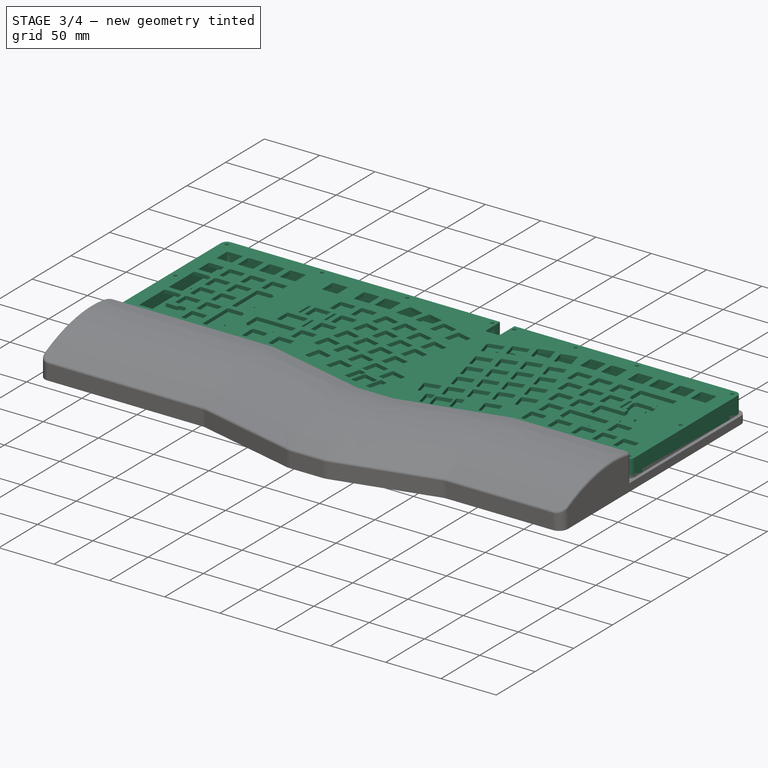
[diagram: stage 3 of 4 — iso view after this stage's code; geometry added in this stage tinted green]
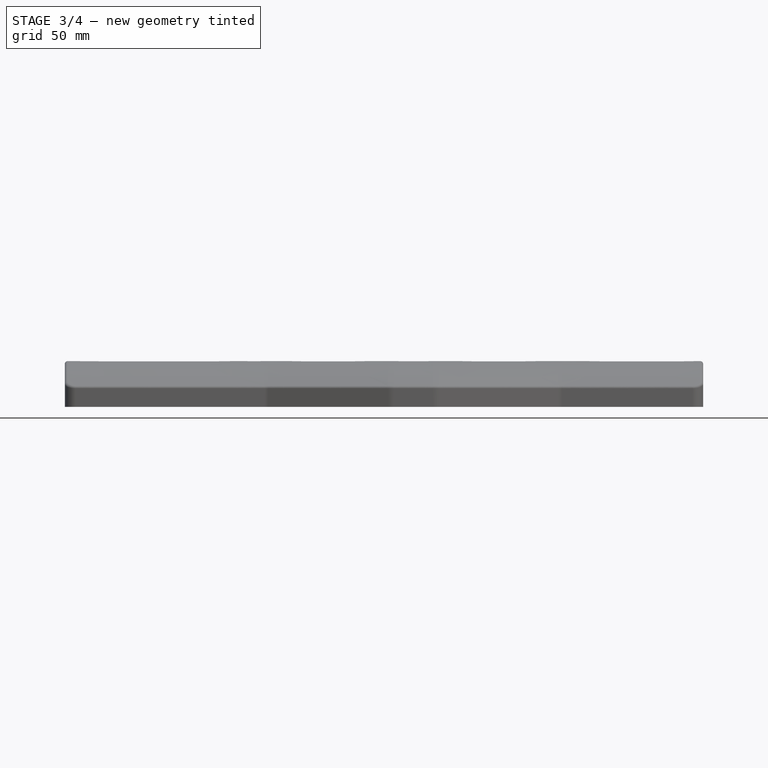
[diagram: stage 3 of 4 — front view after this stage's code; geometry added in this stage tinted green]
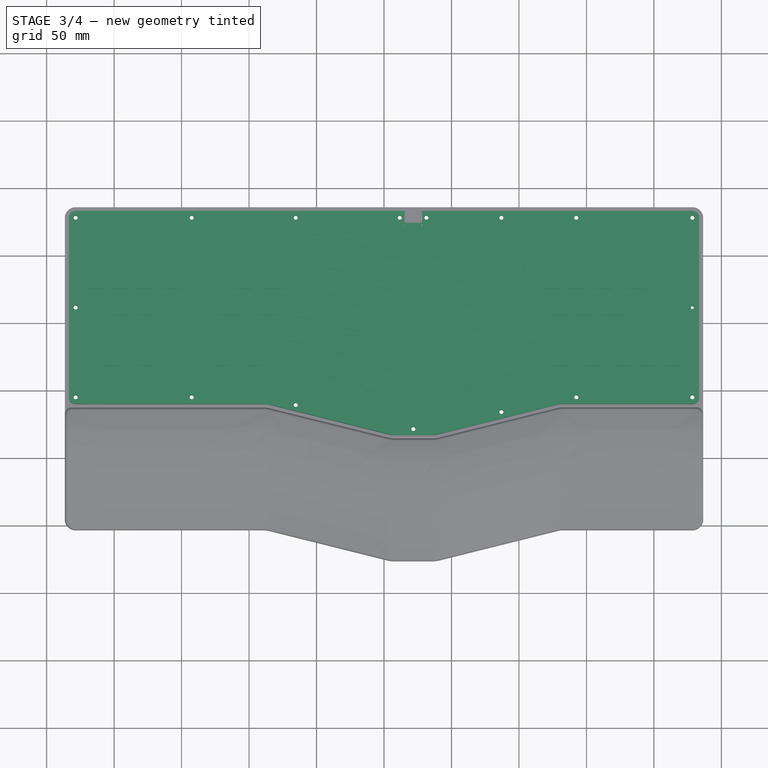
[diagram: stage 3 of 4 — top view after this stage's code; geometry added in this stage tinted green]
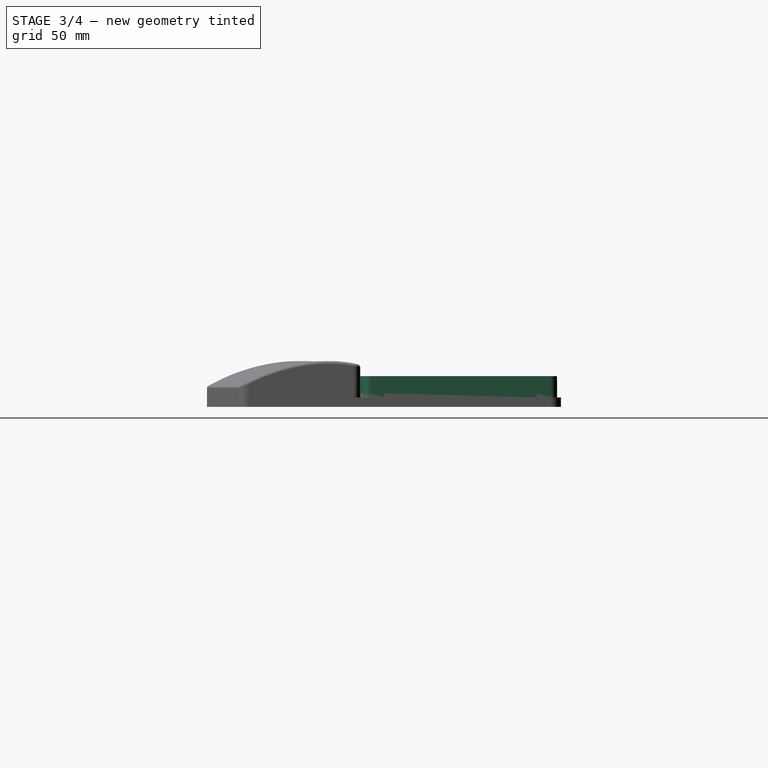
[diagram: stage 3 of 4 — right view after this stage's code; geometry added in this stage tinted green]
FEATURE [Sketcher::SketchObject] Sketch  label="sinister-bottom-orig"
  FullyConstrained = false
  sketch-geometry (57):
    g0: Circle CenterX=39.1231 CenterY=61.6371 CenterZ=0 NormalX=0 NormalY=0 NormalZ=-1 AngleXU=0 Radius=4
    g1: Circle CenterX=14.5588 CenterY=72.5629 CenterZ=0 NormalX=0 NormalY=0 NormalZ=-1 AngleXU=0 Radius=1.1
    g2: Circle CenterX=28.5588 CenterY=72.5629 CenterZ=0 NormalX=0 NormalY=0 NormalZ=-1 AngleXU=0 Radius=1.1
    g3: Circle CenterX=31.4567 CenterY=78.0327 CenterZ=0 NormalX=0 NormalY=0 NormalZ=-1 AngleXU=0 Radius=1.1
    g4: Circle CenterX=11.6609 CenterY=78.0327 CenterZ=0 NormalX=0 NormalY=0 NormalZ=-1 AngleXU=0 Radius=1.1
    g5: Circle CenterX=-65.4059 CenterY=78.0327 CenterZ=0 NormalX=0 NormalY=0 NormalZ=-1 AngleXU=0 Radius=1.1
    g6: Circle CenterX=18.4915 CenterY=48.1135 CenterZ=0 NormalX=0 NormalY=0 NormalZ=-1 AngleXU=0 Radius=4
    g7: Circle CenterX=86.9757 CenterY=78.0327 CenterZ=0 NormalX=0 NormalY=0 NormalZ=-1 AngleXU=0 Radius=1.1
    g8: Circle CenterX=142.495 CenterY=78.0327 CenterZ=0 NormalX=0 NormalY=0 NormalZ=-1 AngleXU=0 Radius=1.1
    g9: Circle CenterX=228.545 CenterY=78.0327 CenterZ=0 NormalX=0 NormalY=0 NormalZ=-1 AngleXU=0 Radius=1.1
    g10: Circle CenterX=228.523 CenterY=11.5016 CenterZ=0 NormalX=0 NormalY=0 NormalZ=-1 AngleXU=0 Radius=1.1
    g11: Circle CenterX=228.545 CenterY=-55.0296 CenterZ=0 NormalX=0 NormalY=0 NormalZ=-1 AngleXU=0 Radius=1.1
    g12: Circle CenterX=142.495 CenterY=-55.0296 CenterZ=0 NormalX=0 NormalY=0 NormalZ=-1 AngleXU=0 Radius=1.1
    g13: Circle CenterX=86.9757 CenterY=-65.9839 CenterZ=0 NormalX=0 NormalY=0 NormalZ=-1 AngleXU=0 Radius=1.1
    g14: Circle CenterX=21.7523 CenterY=-78.5426 CenterZ=0 NormalX=0 NormalY=0 NormalZ=-1 AngleXU=0 Radius=1.1
    g15: Circle CenterX=-65.4059 CenterY=-60.759 CenterZ=0 NormalX=0 NormalY=0 NormalZ=-1 AngleXU=0 Radius=1.1
    g16: Circle CenterX=-142.473 CenterY=-55.0296 CenterZ=0 NormalX=0 NormalY=0 NormalZ=-1 AngleXU=0 Radius=1.1
    g17: Circle CenterX=-228.522 CenterY=-55.0296 CenterZ=0 NormalX=0 NormalY=0 NormalZ=-1 AngleXU=0 Radius=1.1
    g18: Circle CenterX=-142.473 CenterY=78.0327 CenterZ=0 NormalX=0 NormalY=0 NormalZ=-1 AngleXU=0 Radius=1.1
    g19: Circle CenterX=-228.522 CenterY=11.5016 CenterZ=0 NormalX=0 NormalY=0 NormalZ=-1 AngleXU=0 Radius=1.1
    g20: Circle CenterX=14.5588 CenterY=60.0629 CenterZ=0 NormalX=0 NormalY=0 NormalZ=-1 AngleXU=0 Radius=1.1
    g21: Circle CenterX=28.5588 CenterY=60.0629 CenterZ=0 NormalX=0 NormalY=0 NormalZ=-1 AngleXU=0 Radius=1.1
    g22: Circle CenterX=-228.522 CenterY=78.0327 CenterZ=0 NormalX=0 NormalY=0 NormalZ=-1 AngleXU=0 Radius=1.1
    g23: LineSegment StartX=2.45331 StartY=83.059 StartZ=0 EndX=-218.547 EndY=82.9784 EndZ=0
    g24: LineSegment StartX=-218.547 StartY=82.9784 StartZ=0 EndX=-228.523 EndY=82.9784 EndZ=0
    g25: ArcOfCircle CenterX=-228.523 CenterY=77.9784 CenterZ=0 NormalX=0 NormalY=0 NormalZ=1 AngleXU=0 Radius=5 StartAngle=1.5708 EndAngle=3.14159
    g26: LineSegment StartX=-233.523 StartY=77.9784 StartZ=0 EndX=-233.523 EndY=68.0093 EndZ=0
    g27: LineSegment StartX=-233.523 StartY=68.0093 StartZ=0 EndX=-233.518 EndY=-45.0908 EndZ=0
    g28: LineSegment StartX=-233.518 StartY=-45.0908 StartZ=0 EndX=-233.518 EndY=-55.0594 EndZ=0
    g29: ArcOfCircle CenterX=-228.518 CenterY=-55.0594 CenterZ=0 NormalX=0 NormalY=0 NormalZ=1 AngleXU=0 Radius=5 StartAngle=3.14159 EndAngle=4.71239
    g30: LineSegment StartX=-228.518 StartY=-60.0594 StartZ=0 EndX=-218.547 EndY=-60.0594 EndZ=0
    g31: LineSegment StartX=-218.547 StartY=-60.0594 StartZ=0 EndX=-88.5637 EndY=-60.0555 EndZ=0
    g32: ArcOfCircle CenterX=-88.5633 CenterY=-75.0239 CenterZ=0 NormalX=0 NormalY=0 NormalZ=1 AngleXU=0 Radius=14.9684 StartAngle=1.32643 EndAngle=1.57083
    g33: LineSegment StartX=-84.9418 StartY=-60.5002 StartZ=0 EndX=3.55312 EndY=-82.5668 EndZ=0
    g34: ArcOfCircle CenterX=7.55287 CenterY=-66.5263 CenterZ=0 NormalX=0 NormalY=0 NormalZ=1 AngleXU=0 Radius=16.5316 StartAngle=4.46802 EndAngle=4.71235
    g35: LineSegment StartX=7.55227 StartY=-83.0579 StartZ=0 EndX=35.952 EndY=-83.059 EndZ=0
    g36: ArcOfCircle CenterX=35.9526 CenterY=-66.5273 CenterZ=0 NormalX=0 NormalY=0 NormalZ=1 AngleXU=0 Radius=16.5316 StartAngle=4.71235 EndAngle=4.9567
    g37: LineSegment StartX=39.9515 StartY=-82.568 StartZ=0 EndX=128.452 EndY=-60.5057 EndZ=0
    g38: ArcOfCircle CenterX=132.072 CenterY=-75.0295 CenterZ=0 NormalX=0 NormalY=0 NormalZ=1 AngleXU=0 Radius=14.9684 StartAngle=1.57075 EndAngle=1.81511
    g39: LineSegment StartX=132.073 StartY=-60.0612 StartZ=0 EndX=218.553 EndY=-60.0655 EndZ=0
    g40: LineSegment StartX=218.553 StartY=-60.0655 StartZ=0 EndX=228.523 EndY=-60.0655 EndZ=0
    g41: ArcOfCircle CenterX=228.523 CenterY=-55.0655 CenterZ=0 NormalX=0 NormalY=0 NormalZ=1 AngleXU=0 Radius=5 StartAngle=4.71239 EndAngle=6.28319
    g42: LineSegment StartX=233.523 StartY=-55.0655 StartZ=0 EndX=233.523 EndY=-45.0899 EndZ=0
    g43: LineSegment StartX=233.523 StartY=-45.0899 StartZ=0 EndX=233.516 EndY=68.0084 EndZ=0
    g44: LineSegment StartX=233.516 StartY=68.0084 StartZ=0 EndX=233.516 EndY=78.0446 EndZ=0
    g45: ArcOfCircle CenterX=228.516 CenterY=78.0446 CenterZ=0 NormalX=0 NormalY=0 NormalZ=1 AngleXU=0 Radius=5 StartAngle=0 EndAngle=1.5708
    g46: LineSegment StartX=228.516 StartY=83.0446 StartZ=0 EndX=218.553 EndY=83.0446 EndZ=0
    g47: LineSegment StartX=218.553 StartY=83.0446 StartZ=0 EndX=40.4533 EndY=83.059 EndZ=0
    g48: LineSegment StartX=40.4533 StartY=83.059 StartZ=0 EndX=28.7418 EndY=83.059 EndZ=0
    g49: ArcOfCircle CenterX=28.7418 CenterY=82.559 CenterZ=0 NormalX=0 NormalY=0 NormalZ=1 AngleXU=0 Radius=0.5 StartAngle=1.5708 EndAngle=3.14159
    g50: LineSegment StartX=28.2418 StartY=82.559 StartZ=0 EndX=28.2418 EndY=74.9202 EndZ=0
    g51: ArcOfCircle CenterX=27.7418 CenterY=74.9202 CenterZ=0 NormalX=0 NormalY=0 NormalZ=1 AngleXU=0 Radius=0.5 StartAngle=4.71239 EndAngle=6.28319
    g52: LineSegment StartX=27.7418 StartY=74.4202 StartZ=0 EndX=15.8246 EndY=74.4202 EndZ=0
    g53: ArcOfCircle CenterX=15.8246 CenterY=74.9202 CenterZ=0 NormalX=0 NormalY=0 NormalZ=1 AngleXU=0 Radius=0.5 StartAngle=3.14159 EndAngle=4.71239
    g54: LineSegment StartX=15.3246 StartY=74.9202 StartZ=0 EndX=15.3246 EndY=82.559 EndZ=0
    g55: ArcOfCircle CenterX=14.8246 CenterY=82.559 CenterZ=0 NormalX=0 NormalY=0 NormalZ=1 AngleXU=0 Radius=0.5 StartAngle=0 EndAngle=1.5708
    g56: LineSegment StartX=14.8246 StartY=83.059 StartZ=0 EndX=2.45331 EndY=83.059 EndZ=0
  constraints (34):
    c: Coincident(g26,g27)
    c: Coincident(g25,g26)
    c: Coincident(g28,g29)
    c: Coincident(g27,g28)
    c: Coincident(g24,g25)
    c: Coincident(g29,g30)
    c: Coincident(g31,g30)
    c: Coincident(g23,g24)
    c: Coincident(g31,g32)
    c: Coincident(g32,g33)
    c: Coincident(g56,g23)
    c: Coincident(g34,g33)
    c: Coincident(g34,g35)
    c: Coincident(g56,g55)
    c: Coincident(g54,g53)
    c: Coincident(g55,g54)
    c: Coincident(g52,g53)
    c: Coincident(g52,g51)
    c: Coincident(g51,g50)
    c: Coincident(g50,g49)
    c: Coincident(g49,g48)
    c: Coincident(g36,g35)
    c: Coincident(g36,g37)
    c: Coincident(g47,g48)
    c: Coincident(g38,g37)
    c: Coincident(g39,g38)
    c: Coincident(g39,g40)
    c: Coincident(g46,g47)
    c: Coincident(g45,g46)
    c: Coincident(g41,g40)
    c: Coincident(g43,g44)
    c: Coincident(g45,g44)
    c: Coincident(g41,g42)
    c: Coincident(g42,g43)
FEATURE [Sketcher::SketchObject] Sketch001  label="sinister-mid-orig"
  FullyConstrained = false
  sketch-geometry (83):
    g0: Circle CenterX=228.545 CenterY=78.0327 CenterZ=0 NormalX=0 NormalY=0 NormalZ=-1 AngleXU=0 Radius=1.6
    g1: Circle CenterX=142.495 CenterY=78.0327 CenterZ=0 NormalX=0 NormalY=0 NormalZ=-1 AngleXU=0 Radius=1.6
    g2: Circle CenterX=31.4567 CenterY=78.0327 CenterZ=0 NormalX=0 NormalY=0 NormalZ=-1 AngleXU=0 Radius=1.6
    g3: Circle CenterX=142.495 CenterY=-55.0296 CenterZ=0 NormalX=0 NormalY=0 NormalZ=-1 AngleXU=0 Radius=1.6
    g4: Circle CenterX=-65.4059 CenterY=-60.759 CenterZ=0 NormalX=0 NormalY=0 NormalZ=-1 AngleXU=0 Radius=1.6
    g5: Circle CenterX=228.523 CenterY=11.5016 CenterZ=0 NormalX=0 NormalY=0 NormalZ=-1 AngleXU=0 Radius=1.6
    g6: Circle CenterX=-142.473 CenterY=-55.0296 CenterZ=0 NormalX=0 NormalY=0 NormalZ=-1 AngleXU=0 Radius=1.6
    g7: Circle CenterX=228.545 CenterY=-55.0296 CenterZ=0 NormalX=0 NormalY=0 NormalZ=-1 AngleXU=0 Radius=1.6
    g8: Circle CenterX=11.6609 CenterY=78.0327 CenterZ=0 NormalX=0 NormalY=0 NormalZ=-1 AngleXU=0 Radius=1.6
    g9: Circle CenterX=-142.473 CenterY=78.0327 CenterZ=0 NormalX=0 NormalY=0 NormalZ=-1 AngleXU=0 Radius=1.6
    g10: Circle CenterX=-228.522 CenterY=11.5016 CenterZ=0 NormalX=0 NormalY=0 NormalZ=-1 AngleXU=0 Radius=1.6
    g11: Circle CenterX=-65.4059 CenterY=78.0327 CenterZ=0 NormalX=0 NormalY=0 NormalZ=-1 AngleXU=0 Radius=1.6
    g12: Circle CenterX=-228.522 CenterY=78.0327 CenterZ=0 NormalX=0 NormalY=0 NormalZ=-1 AngleXU=0 Radius=1.6
    g13: Circle CenterX=-228.522 CenterY=-55.0296 CenterZ=0 NormalX=0 NormalY=0 NormalZ=-1 AngleXU=0 Radius=1.6
    g14: Circle CenterX=21.7523 CenterY=-78.5426 CenterZ=0 NormalX=0 NormalY=0 NormalZ=-1 AngleXU=0 Radius=1.6
    g15: Circle CenterX=86.9757 CenterY=78.0327 CenterZ=0 NormalX=0 NormalY=0 NormalZ=-1 AngleXU=0 Radius=1.6
    g16: Circle CenterX=86.9757 CenterY=-65.9839 CenterZ=0 NormalX=0 NormalY=0 NormalZ=-1 AngleXU=0 Radius=1.6
    g17: LineSegment StartX=2.45313 StartY=74.5274 StartZ=0 EndX=2.45291 EndY=75.1238 EndZ=0
    g18: ArcOfCircle CenterX=1.95313 CenterY=74.5272 CenterZ=0 NormalX=0 NormalY=0 NormalZ=1 AngleXU=0 Radius=0.5 StartAngle=4.71275 EndAngle=6.28355
    g19: LineSegment StartX=-218.547 StartY=73.9467 StartZ=0 EndX=1.95331 EndY=74.0272 EndZ=0
    g20: LineSegment StartX=-222.492 StartY=73.9468 StartZ=0 EndX=-218.547 EndY=73.9467 EndZ=0
    g21: ArcOfCircle CenterX=-222.492 CenterY=71.9468 CenterZ=0 NormalX=0 NormalY=0 NormalZ=1 AngleXU=0 Radius=2 StartAngle=1.57078 EndAngle=3.14176
    g22: LineSegment StartX=-224.491 StartY=68.0093 StartZ=0 EndX=-224.492 EndY=71.9465 EndZ=0
    g23: LineSegment StartX=-224.486 StartY=-45.0908 StartZ=0 EndX=-224.491 EndY=68.0093 EndZ=0
    g24: LineSegment StartX=-224.484 StartY=-49.0272 StartZ=0 EndX=-224.486 EndY=-45.0908 EndZ=0
    g25: ArcOfCircle CenterX=-222.484 CenterY=-49.0261 CenterZ=0 NormalX=0 NormalY=0 NormalZ=1 AngleXU=0 Radius=2 StartAngle=3.14214 EndAngle=4.71197
    g26: LineSegment StartX=-218.547 StartY=-51.0278 StartZ=0 EndX=-222.485 EndY=-51.0261 EndZ=0
    g27: LineSegment StartX=-88.564 StartY=-51.0239 StartZ=0 EndX=-218.547 EndY=-51.0278 EndZ=0
    g28: ArcOfCircle CenterX=-88.5633 CenterY=-75.0239 CenterZ=0 NormalX=0 NormalY=0 NormalZ=1 AngleXU=0 Radius=24 StartAngle=1.32643 EndAngle=1.57083
    g29: LineSegment StartX=5.73828 StartY=-73.8035 StartZ=0 EndX=-82.7566 EndY=-51.7369 EndZ=0
    g30: ArcOfCircle CenterX=7.55287 CenterY=-66.5263 CenterZ=0 NormalX=0 NormalY=0 NormalZ=1 AngleXU=0 Radius=7.5 StartAngle=4.46802 EndAngle=4.71235
    g31: LineSegment StartX=35.9524 StartY=-74.0273 StartZ=0 EndX=7.5526 EndY=-74.0263 EndZ=0
    g32: ArcOfCircle CenterX=35.9526 CenterY=-66.5273 CenterZ=0 NormalX=0 NormalY=0 NormalZ=1 AngleXU=0 Radius=7.5 StartAngle=4.71235 EndAngle=4.9567
    g33: LineSegment StartX=126.267 StartY=-51.7422 StartZ=0 EndX=37.7668 EndY=-73.8046 EndZ=0
    g34: ArcOfCircle CenterX=132.072 CenterY=-75.0295 CenterZ=0 NormalX=0 NormalY=0 NormalZ=1 AngleXU=0 Radius=24 StartAngle=1.57075 EndAngle=1.81511
    g35: LineSegment StartX=218.553 StartY=-51.0339 StartZ=0 EndX=132.074 EndY=-51.0295 EndZ=0
    g36: LineSegment StartX=222.491 StartY=-51.0341 StartZ=0 EndX=218.553 EndY=-51.0339 EndZ=0
    g37: ArcOfCircle CenterX=222.491 CenterY=-49.0341 CenterZ=0 NormalX=0 NormalY=0 NormalZ=1 AngleXU=0 Radius=2 StartAngle=4.71233 EndAngle=6.28319
    g38: LineSegment StartX=224.491 StartY=-45.0899 StartZ=0 EndX=224.491 EndY=-49.0341 EndZ=0
    g39: LineSegment StartX=224.484 StartY=68.0084 StartZ=0 EndX=224.491 EndY=-45.0899 EndZ=0
    g40: LineSegment StartX=224.484 StartY=72.0139 StartZ=0 EndX=224.484 EndY=68.0084 EndZ=0
    g41: ArcOfCircle CenterX=222.484 CenterY=72.0137 CenterZ=0 NormalX=0 NormalY=0 NormalZ=1 AngleXU=0 Radius=2 StartAngle=8.35249e-05 EndAngle=1.57098
    g42: LineSegment StartX=218.553 StartY=74.013 StartZ=0 EndX=222.483 EndY=74.0137 EndZ=0
    g43: LineSegment StartX=40.9533 StartY=74.0274 StartZ=0 EndX=218.553 EndY=74.013 EndZ=0
    g44: ArcOfCircle CenterX=40.9534 CenterY=74.5282 CenterZ=0 NormalX=0 NormalY=0 NormalZ=1 AngleXU=0 Radius=0.500828 StartAngle=3.14151 EndAngle=4.71231
    g45: LineSegment StartX=40.4526 StartY=75.124 StartZ=0 EndX=40.4525 EndY=74.5282 EndZ=0
    g46: ArcOfCircle CenterX=39.9526 CenterY=75.124 CenterZ=0 NormalX=0 NormalY=0 NormalZ=1 AngleXU=0 Radius=0.5 StartAngle=6.2831 EndAngle=7.85398
    g47: LineSegment StartX=28.6934 StartY=75.624 StartZ=0 EndX=39.9526 EndY=75.624 EndZ=0
    g48: ArcOfCircle CenterX=28.6934 CenterY=76.124 CenterZ=0 NormalX=0 NormalY=0 NormalZ=1 AngleXU=0 Radius=0.5 StartAngle=3.14159 EndAngle=4.71239
    g49: LineSegment StartX=28.1934 StartY=82.559 StartZ=0 EndX=28.1934 EndY=76.124 EndZ=0
    g50: ArcOfCircle CenterX=28.6934 CenterY=82.559 CenterZ=0 NormalX=0 NormalY=0 NormalZ=1 AngleXU=0 Radius=0.5 StartAngle=1.5708 EndAngle=3.14159
    g51: LineSegment StartX=40.4533 StartY=83.059 StartZ=0 EndX=28.6934 EndY=83.059 EndZ=0
    g52: LineSegment StartX=218.553 StartY=83.0446 StartZ=0 EndX=40.4533 EndY=83.059 EndZ=0
    g53: LineSegment StartX=228.516 StartY=83.0446 StartZ=0 EndX=218.553 EndY=83.0446 EndZ=0
    g54: ArcOfCircle CenterX=228.516 CenterY=78.0446 CenterZ=0 NormalX=0 NormalY=0 NormalZ=1 AngleXU=0 Radius=5 StartAngle=0 EndAngle=1.5708
    g55: LineSegment StartX=233.516 StartY=68.0084 StartZ=0 EndX=233.516 EndY=78.0446 EndZ=0
    g56: LineSegment StartX=233.523 StartY=-45.0899 StartZ=0 EndX=233.516 EndY=68.0084 EndZ=0
    g57: LineSegment StartX=233.523 StartY=-55.0655 StartZ=0 EndX=233.523 EndY=-45.0899 EndZ=0
    g58: ArcOfCircle CenterX=228.523 CenterY=-55.0655 CenterZ=0 NormalX=0 NormalY=0 NormalZ=1 AngleXU=0 Radius=5 StartAngle=4.71239 EndAngle=6.28319
    g59: LineSegment StartX=218.553 StartY=-60.0655 StartZ=0 EndX=228.523 EndY=-60.0655 EndZ=0
    g60: LineSegment StartX=132.073 StartY=-60.0612 StartZ=0 EndX=218.553 EndY=-60.0655 EndZ=0
    g61: ArcOfCircle CenterX=132.072 CenterY=-75.0295 CenterZ=0 NormalX=0 NormalY=0 NormalZ=1 AngleXU=0 Radius=14.9684 StartAngle=1.57075 EndAngle=1.81511
    g62: LineSegment StartX=39.9515 StartY=-82.568 StartZ=0 EndX=128.452 EndY=-60.5057 EndZ=0
    g63: ArcOfCircle CenterX=35.9526 CenterY=-66.5273 CenterZ=0 NormalX=0 NormalY=0 NormalZ=1 AngleXU=0 Radius=16.5316 StartAngle=4.71235 EndAngle=4.9567
    g64: LineSegment StartX=7.55227 StartY=-83.0579 StartZ=0 EndX=35.952 EndY=-83.059 EndZ=0
    g65: ArcOfCircle CenterX=7.55287 CenterY=-66.5263 CenterZ=0 NormalX=0 NormalY=0 NormalZ=1 AngleXU=0 Radius=16.5316 StartAngle=4.46802 EndAngle=4.71235
    g66: LineSegment StartX=-84.9418 StartY=-60.5002 StartZ=0 EndX=3.55312 EndY=-82.5668 EndZ=0
    g67: ArcOfCircle CenterX=-88.5633 CenterY=-75.0239 CenterZ=0 NormalX=0 NormalY=0 NormalZ=1 AngleXU=0 Radius=14.9684 StartAngle=1.32643 EndAngle=1.57083
    g68: LineSegment StartX=-218.547 StartY=-60.0594 StartZ=0 EndX=-88.5637 EndY=-60.0555 EndZ=0
    g69: LineSegment StartX=-228.518 StartY=-60.0594 StartZ=0 EndX=-218.547 EndY=-60.0594 EndZ=0
    g70: ArcOfCircle CenterX=-228.518 CenterY=-55.0594 CenterZ=0 NormalX=0 NormalY=0 NormalZ=1 AngleXU=0 Radius=5 StartAngle=3.14159 EndAngle=4.71239
    g71: LineSegment StartX=-233.518 StartY=-45.0908 StartZ=0 EndX=-233.518 EndY=-55.0594 EndZ=0
    g72: LineSegment StartX=-233.523 StartY=68.0093 StartZ=0 EndX=-233.518 EndY=-45.0908 EndZ=0
    g73: LineSegment StartX=-233.523 StartY=77.9784 StartZ=0 EndX=-233.523 EndY=68.0093 EndZ=0
    g74: ArcOfCircle CenterX=-228.523 CenterY=77.9784 CenterZ=0 NormalX=0 NormalY=0 NormalZ=1 AngleXU=0 Radius=5 StartAngle=1.5708 EndAngle=3.14159
    g75: LineSegment StartX=-218.547 StartY=82.9784 StartZ=0 EndX=-228.523 EndY=82.9784 EndZ=0
    g76: LineSegment StartX=2.45331 StartY=83.059 StartZ=0 EndX=-218.547 EndY=82.9784 EndZ=0
    g77: LineSegment StartX=14.6934 StartY=83.059 StartZ=0 EndX=2.45331 EndY=83.059 EndZ=0
    g78: ArcOfCircle CenterX=14.6934 CenterY=82.559 CenterZ=0 NormalX=0 NormalY=0 NormalZ=1 AngleXU=0 Radius=0.5 StartAngle=0 EndAngle=1.5708
    g79: LineSegment StartX=15.1934 StartY=76.124 StartZ=0 EndX=15.1934 EndY=82.559 EndZ=0
    g80: ArcOfCircle CenterX=14.6934 CenterY=76.124 CenterZ=0 NormalX=0 NormalY=0 NormalZ=1 AngleXU=0 Radius=0.5 StartAngle=4.71239 EndAngle=6.28319
    g81: LineSegment StartX=2.95291 StartY=75.624 StartZ=0 EndX=14.6934 EndY=75.624 EndZ=0
    g82: ArcOfCircle CenterX=2.95291 CenterY=75.124 CenterZ=0 NormalX=0 NormalY=0 NormalZ=1 AngleXU=0 Radius=0.5 StartAngle=1.5708 EndAngle=3.14196
  constraints (66):
    c: Coincident(g72,g73)
    c: Coincident(g74,g73)
    c: Coincident(g70,g71)
    c: Coincident(g71,g72)
    c: Coincident(g75,g74)
    c: Coincident(g69,g70)
    c: Coincident(g22,g21)
    c: Coincident(g23,g22)
    c: Coincident(g23,g24)
    c: Coincident(g24,g25)
    c: Coincident(g21,g20)
    c: Coincident(g26,g25)
    c: Coincident(g68,g69)
    c: Coincident(g27,g26)
    c: Coincident(g20,g19)
    c: Coincident(g75,g76)
    c: Coincident(g28,g27)
    c: Coincident(g68,g67)
    c: Coincident(g67,g66)
    c: Coincident(g28,g29)
    c: Coincident(g19,g18)
    c: Coincident(g17,g82)
    c: Coincident(g17,g18)
    c: Coincident(g76,g77)
    c: Coincident(g82,g81)
    c: Coincident(g65,g66)
    c: Coincident(g30,g29)
    c: Coincident(g64,g65)
    c: Coincident(g31,g30)
    c: Coincident(g81,g80)
    c: Coincident(g77,g78)
    c: Coincident(g79,g80)
    c: Coincident(g78,g79)
    c: Coincident(g49,g48)
    c: Coincident(g50,g49)
    c: Coincident(g48,g47)
    c: Coincident(g50,g51)
    c: Coincident(g64,g63)
    c: Coincident(g31,g32)
    c: Coincident(g32,g33)
    c: Coincident(g63,g62)
    c: Coincident(g46,g47)
    c: Coincident(g45,g44)
    c: Coincident(g45,g46)
    c: Coincident(g51,g52)
    c: Coincident(g44,g43)
    c: Coincident(g34,g33)
    c: Coincident(g62,g61)
    c: Coincident(g61,g60)
    c: Coincident(g34,g35)
    c: Coincident(g60,g59)
    c: Coincident(g36,g35)
    c: Coincident(g43,g42)
    c: Coincident(g53,g52)
    c: Coincident(g41,g42)
    c: Coincident(g36,g37)
    c: Coincident(g40,g41)
    c: Coincident(g40,g39)
    c: Coincident(g37,g38)
    c: Coincident(g39,g38)
    c: Coincident(g54,g53)
    c: Coincident(g58,g59)
    c: Coincident(g55,g56)
    c: Coincident(g54,g55)
    c: Coincident(g57,g58)
    c: Coincident(g56,g57)
FEATURE [Sketcher::SketchObject] Sketch002  label="sinister-plate-orig"
  FullyConstrained = false
  sketch-geometry (1631):
    g0: LineSegment StartX=49.2582 StartY=-31.7645 StartZ=0 EndX=61.8722 EndY=-28.6195 EndZ=0
    g1: LineSegment StartX=61.8722 StartY=-28.6195 StartZ=0 EndX=62.2507 EndY=-28.6761 EndZ=0
    g2: LineSegment StartX=62.2507 StartY=-28.6761 StartZ=0 EndX=62.4782 EndY=-28.9837 EndZ=0
    g3: LineSegment StartX=62.4782 StartY=-28.9837 StartZ=0 EndX=65.6232 EndY=-41.5975 EndZ=0
    g4: LineSegment StartX=65.6232 StartY=-41.5975 StartZ=0 EndX=65.5667 EndY=-41.9759 EndZ=0
    g5: LineSegment StartX=65.5667 StartY=-41.9759 StartZ=0 EndX=65.2592 EndY=-42.2036 EndZ=0
    g6: LineSegment StartX=65.2592 StartY=-42.2036 StartZ=0 EndX=52.6452 EndY=-45.3486 EndZ=0
    g7: LineSegment StartX=52.6452 StartY=-45.3486 StartZ=0 EndX=52.2668 EndY=-45.292 EndZ=0
    g8: LineSegment StartX=52.2668 StartY=-45.292 StartZ=0 EndX=52.0392 EndY=-44.9844 EndZ=0
    g9: LineSegment StartX=52.0392 StartY=-44.9844 StartZ=0 EndX=48.8942 EndY=-32.3706 EndZ=0
    g10: LineSegment StartX=48.8942 StartY=-32.3706 StartZ=0 EndX=48.9507 EndY=-31.9922 EndZ=0
    g11: LineSegment StartX=48.9507 StartY=-31.9922 StartZ=0 EndX=49.2582 EndY=-31.7645 EndZ=0
    g12: LineSegment StartX=-201.975 StartY=67.5998 StartZ=0 EndX=-201.829 EndY=67.9534 EndZ=0
    g13: LineSegment StartX=-201.829 StartY=67.9534 StartZ=0 EndX=-201.475 EndY=68.0998 EndZ=0
    g14: LineSegment StartX=-201.475 StartY=68.0998 StartZ=0 EndX=-188.475 EndY=68.0998 EndZ=0
    g15: LineSegment StartX=-188.475 StartY=68.0998 StartZ=0 EndX=-188.122 EndY=67.9534 EndZ=0
    g16: LineSegment StartX=-188.122 StartY=67.9534 StartZ=0 EndX=-187.975 EndY=67.5998 EndZ=0
    g17: LineSegment StartX=-187.975 StartY=67.5998 StartZ=0 EndX=-187.975 EndY=54.5998 EndZ=0
    g18: LineSegment StartX=-187.975 StartY=54.5998 StartZ=0 EndX=-188.122 EndY=54.2463 EndZ=0
    g19: LineSegment StartX=-188.122 StartY=54.2463 StartZ=0 EndX=-188.475 EndY=54.0998 EndZ=0
    g20: LineSegment StartX=-188.475 StartY=54.0998 StartZ=0 EndX=-201.475 EndY=54.0998 EndZ=0
    g21: LineSegment StartX=-201.475 StartY=54.0998 StartZ=0 EndX=-201.829 EndY=54.2463 EndZ=0
    g22: LineSegment StartX=-201.829 StartY=54.2463 StartZ=0 EndX=-201.975 EndY=54.5998 EndZ=0
    g23: LineSegment StartX=-201.975 StartY=54.5998 StartZ=0 EndX=-201.975 EndY=67.5998 EndZ=0
    g24: LineSegment StartX=-182.925 StartY=-7.31229 StartZ=0 EndX=-182.925 EndY=5.68771 EndZ=0
    g25: LineSegment StartX=-182.925 StartY=5.68771 StartZ=0 EndX=-182.779 EndY=6.04126 EndZ=0
    g26: LineSegment StartX=-182.779 StartY=6.04126 StartZ=0 EndX=-182.425 EndY=6.18771 EndZ=0
    g27: LineSegment StartX=-182.425 StartY=6.18771 StartZ=0 EndX=-169.425 EndY=6.18771 EndZ=0
    g28: LineSegment StartX=-169.425 StartY=6.18771 StartZ=0 EndX=-169.072 EndY=6.04126 EndZ=0
    g29: LineSegment StartX=-169.072 StartY=6.04126 StartZ=0 EndX=-168.925 EndY=5.68771 EndZ=0
    g30: LineSegment StartX=-168.925 StartY=5.68771 StartZ=0 EndX=-168.925 EndY=-7.31229 EndZ=0
    g31: LineSegment StartX=-168.925 StartY=-7.31229 StartZ=0 EndX=-169.072 EndY=-7.66584 EndZ=0
    g32: LineSegment StartX=-169.072 StartY=-7.66584 StartZ=0 EndX=-169.425 EndY=-7.81229 EndZ=0
    g33: LineSegment StartX=-169.425 StartY=-7.81229 StartZ=0 EndX=-182.425 EndY=-7.81229 EndZ=0
    g34: LineSegment StartX=-182.425 StartY=-7.81229 StartZ=0 EndX=-182.779 EndY=-7.66584 EndZ=0
    g35: LineSegment StartX=-182.779 StartY=-7.66584 StartZ=0 EndX=-182.925 EndY=-7.31229 EndZ=0
    g36: LineSegment StartX=-101.963 StartY=30.7878 StartZ=0 EndX=-101.963 EndY=43.7878 EndZ=0
    g37: LineSegment StartX=-101.963 StartY=43.7878 StartZ=0 EndX=-101.816 EndY=44.1414 EndZ=0
    g38: LineSegment StartX=-101.816 StartY=44.1414 StartZ=0 EndX=-101.463 EndY=44.2878 EndZ=0
    g39: LineSegment StartX=-101.463 StartY=44.2878 StartZ=0 EndX=-88.4628 EndY=44.2878 EndZ=0
    g40: LineSegment StartX=-88.4628 StartY=44.2878 StartZ=0 EndX=-88.1092 EndY=44.1414 EndZ=0
    g41: LineSegment StartX=-88.1092 StartY=44.1414 StartZ=0 EndX=-87.9628 EndY=43.7878 EndZ=0
    g42: LineSegment StartX=-87.9628 StartY=43.7878 StartZ=0 EndX=-87.9628 EndY=30.7878 EndZ=0
    g43: LineSegment StartX=-87.9628 StartY=30.7878 StartZ=0 EndX=-88.1092 EndY=30.4343 EndZ=0
    g44: LineSegment StartX=-88.1092 StartY=30.4343 StartZ=0 EndX=-88.4628 EndY=30.2878 EndZ=0
    g45: LineSegment StartX=-88.4628 StartY=30.2878 StartZ=0 EndX=-101.463 EndY=30.2878 EndZ=0
    g46: LineSegment StartX=-101.463 StartY=30.2878 StartZ=0 EndX=-101.816 EndY=30.4343 EndZ=0
    g47: LineSegment StartX=-101.816 StartY=30.4343 StartZ=0 EndX=-101.963 EndY=30.7878 EndZ=0
    g48: LineSegment StartX=-221.025 StartY=54.5998 StartZ=0 EndX=-221.025 EndY=67.5998 EndZ=0
    g49: LineSegment StartX=-221.025 StartY=67.5998 StartZ=0 EndX=-220.879 EndY=67.9534 EndZ=0
    g50: LineSegment StartX=-220.879 StartY=67.9534 StartZ=0 EndX=-220.525 EndY=68.0998 EndZ=0
    g51: LineSegment StartX=-220.525 StartY=68.0998 StartZ=0 EndX=-207.525 EndY=68.0998 EndZ=0
    g52: LineSegment StartX=-207.525 StartY=68.0998 StartZ=0 EndX=-207.172 EndY=67.9534 EndZ=0
    g53: LineSegment StartX=-207.172 StartY=67.9534 StartZ=0 EndX=-207.025 EndY=67.5998 EndZ=0
    g54: LineSegment StartX=-207.025 StartY=67.5998 StartZ=0 EndX=-207.025 EndY=54.5998 EndZ=0
    g55: LineSegment StartX=-207.025 StartY=54.5998 StartZ=0 EndX=-207.172 EndY=54.2463 EndZ=0
    g56: LineSegment StartX=-207.172 StartY=54.2463 StartZ=0 EndX=-207.525 EndY=54.0998 EndZ=0
    g57: LineSegment StartX=-207.525 StartY=54.0998 StartZ=0 EndX=-220.525 EndY=54.0998 EndZ=0
    g58: LineSegment StartX=-220.525 StartY=54.0998 StartZ=0 EndX=-220.879 EndY=54.2463 EndZ=0
    g59: LineSegment StartX=-220.879 StartY=54.2463 StartZ=0 EndX=-221.025 EndY=54.5998 EndZ=0
    g60: Circle CenterX=-228.525 CenterY=11.5423 CenterZ=0 NormalX=0 NormalY=0 NormalZ=-1 AngleXU=0 Radius=1.6
    g61: Circle CenterX=-228.525 CenterY=-54.9888 CenterZ=0 NormalX=0 NormalY=0 NormalZ=-1 AngleXU=0 Radius=1.6
    g62: Circle CenterX=-228.525 CenterY=78.0735 CenterZ=0 NormalX=0 NormalY=0 NormalZ=-1 AngleXU=0 Radius=1.6
    g63: LineSegment StartX=-3.33776 StartY=-46.8122 StartZ=0 EndX=-3.64526 EndY=-46.5845 EndZ=0
    g64: LineSegment StartX=-3.64526 StartY=-46.5845 StartZ=0 EndX=-3.70176 EndY=-46.2061 EndZ=0
    g65: LineSegment StartX=-3.70176 StartY=-46.2061 StartZ=0 EndX=-0.55676 EndY=-33.5923 EndZ=0
    g66: LineSegment StartX=-0.55676 StartY=-33.5923 StartZ=0 EndX=-0.329175 EndY=-33.2847 EndZ=0
    g67: LineSegment StartX=-0.329175 StartY=-33.2847 StartZ=0 EndX=0.04924 EndY=-33.2281 EndZ=0
    g68: LineSegment StartX=0.04924 StartY=-33.2281 StartZ=0 EndX=12.6632 EndY=-36.3731 EndZ=0
    g69: LineSegment StartX=12.6632 StartY=-36.3731 StartZ=0 EndX=12.9707 EndY=-36.6008 EndZ=0
    g70: LineSegment StartX=12.9707 StartY=-36.6008 StartZ=0 EndX=13.0272 EndY=-36.9792 EndZ=0
    g71: LineSegment StartX=13.0272 StartY=-36.9792 StartZ=0 EndX=9.88224 EndY=-49.593 EndZ=0
    g72: LineSegment StartX=9.88224 StartY=-49.593 StartZ=0 EndX=9.65465 EndY=-49.9006 EndZ=0
    g73: LineSegment StartX=9.65465 StartY=-49.9006 StartZ=0 EndX=9.27624 EndY=-49.9572 EndZ=0
    g74: LineSegment StartX=9.27624 StartY=-49.9572 StartZ=0 EndX=-3.33776 EndY=-46.8122 EndZ=0
    g75: LineSegment StartX=-96.6998 StartY=-12.8623 StartZ=0 EndX=-83.6998 EndY=-12.8623 EndZ=0
    g76: LineSegment StartX=-83.6998 StartY=-12.8623 StartZ=0 EndX=-83.3462 EndY=-13.0087 EndZ=0
    g77: LineSegment StartX=-83.3462 StartY=-13.0087 StartZ=0 EndX=-83.1998 EndY=-13.3623 EndZ=0
    g78: LineSegment StartX=-83.1998 StartY=-13.3623 StartZ=0 EndX=-83.1998 EndY=-26.3623 EndZ=0
    g79: LineSegment StartX=-83.1998 StartY=-26.3623 StartZ=0 EndX=-83.3462 EndY=-26.7158 EndZ=0
    g80: LineSegment StartX=-83.3462 StartY=-26.7158 StartZ=0 EndX=-83.6998 EndY=-26.8623 EndZ=0
    g81: LineSegment StartX=-83.6998 StartY=-26.8623 StartZ=0 EndX=-96.6998 EndY=-26.8623 EndZ=0
    g82: LineSegment StartX=-96.6998 StartY=-26.8623 StartZ=0 EndX=-97.0533 EndY=-26.7158 EndZ=0
    g83: LineSegment StartX=-97.0533 StartY=-26.7158 StartZ=0 EndX=-97.1998 EndY=-26.3623 EndZ=0
    g84: LineSegment StartX=-97.1998 StartY=-26.3623 StartZ=0 EndX=-97.1998 EndY=-13.3623 EndZ=0
    g85: LineSegment StartX=-97.1998 StartY=-13.3623 StartZ=0 EndX=-97.0533 EndY=-13.0087 EndZ=0
    g86: LineSegment StartX=-97.0533 StartY=-13.0087 StartZ=0 EndX=-96.6998 EndY=-12.8623 EndZ=0
    g87: LineSegment StartX=108.137 StartY=24.1208 StartZ=0 EndX=111.282 EndY=11.5071 EndZ=0
    g88: LineSegment StartX=111.282 StartY=11.5071 StartZ=0 EndX=111.226 EndY=11.1287 EndZ=0
    g89: LineSegment StartX=111.226 StartY=11.1287 StartZ=0 EndX=110.918 EndY=10.901 EndZ=0
    g90: LineSegment StartX=110.918 StartY=10.901 StartZ=0 EndX=98.3042 EndY=7.75601 EndZ=0
    g91: LineSegment StartX=98.3042 StartY=7.75601 StartZ=0 EndX=97.9258 EndY=7.81262 EndZ=0
    g92: LineSegment StartX=97.9258 StartY=7.81262 StartZ=0 EndX=97.6982 EndY=8.12021 EndZ=0
    g93: LineSegment StartX=97.6982 StartY=8.12021 StartZ=0 EndX=94.5532 EndY=20.7338 EndZ=0
    g94: LineSegment StartX=94.5532 StartY=20.7338 StartZ=0 EndX=94.6098 EndY=21.1122 EndZ=0
    g95: LineSegment StartX=94.6098 StartY=21.1122 StartZ=0 EndX=94.9172 EndY=21.3398 EndZ=0
    g96: LineSegment StartX=94.9172 StartY=21.3398 StartZ=0 EndX=107.531 EndY=24.4848 EndZ=0
    g97: LineSegment StartX=107.531 StartY=24.4848 StartZ=0 EndX=107.91 EndY=24.4283 EndZ=0
    g98: LineSegment StartX=107.91 StartY=24.4283 StartZ=0 EndX=108.137 EndY=24.1208 EndZ=0
    g99: LineSegment StartX=-20.4512 StartY=43.5005 StartZ=0 EndX=-20.5078 EndY=43.8788 EndZ=0
    g100: LineSegment StartX=-20.5078 StartY=43.8788 StartZ=0 EndX=-17.3628 EndY=56.4928 EndZ=0
    g101: LineSegment StartX=-17.3628 StartY=56.4928 StartZ=0 EndX=-17.1351 EndY=56.8003 EndZ=0
    g102: LineSegment StartX=-17.1351 StartY=56.8003 StartZ=0 EndX=-16.7568 EndY=56.8568 EndZ=0
    g103: LineSegment StartX=-16.7568 StartY=56.8568 StartZ=0 EndX=-4.14276 EndY=53.7118 EndZ=0
    g104: LineSegment StartX=-4.14276 StartY=53.7118 StartZ=0 EndX=-3.8353 EndY=53.4842 EndZ=0
    g105: LineSegment StartX=-3.8353 StartY=53.4842 StartZ=0 EndX=-3.77876 EndY=53.1058 EndZ=0
    g106: LineSegment StartX=-3.77876 StartY=53.1058 StartZ=0 EndX=-6.92376 EndY=40.4918 EndZ=0
    g107: LineSegment StartX=-6.92376 StartY=40.4918 StartZ=0 EndX=-7.1514 EndY=40.1844 EndZ=0
    g108: LineSegment StartX=-7.1514 StartY=40.1844 StartZ=0 EndX=-7.52976 EndY=40.1278 EndZ=0
    g109: LineSegment StartX=-7.52976 StartY=40.1278 StartZ=0 EndX=-20.1438 EndY=43.2728 EndZ=0
    g110: LineSegment StartX=-20.1438 StartY=43.2728 StartZ=0 EndX=-20.4512 EndY=43.5005 EndZ=0
    g111: LineSegment StartX=75.4932 StartY=18.4359 StartZ=0 EndX=75.5497 EndY=18.8143 EndZ=0
    g112: LineSegment StartX=75.5497 StartY=18.8143 StartZ=0 EndX=75.8572 EndY=19.042 EndZ=0
    g113: LineSegment StartX=75.8572 StartY=19.042 StartZ=0 EndX=88.4712 EndY=22.1868 EndZ=0
    g114: LineSegment StartX=88.4712 StartY=22.1868 StartZ=0 EndX=88.8496 EndY=22.1303 EndZ=0
    g115: LineSegment StartX=88.8496 StartY=22.1303 StartZ=0 EndX=89.0772 EndY=21.8228 EndZ=0
    g116: LineSegment StartX=89.0772 StartY=21.8228 StartZ=0 EndX=92.2222 EndY=9.20901 EndZ=0
    g117: LineSegment StartX=92.2222 StartY=9.20901 StartZ=0 EndX=92.1654 EndY=8.8303 EndZ=0
    g118: LineSegment StartX=92.1654 StartY=8.8303 StartZ=0 EndX=91.8572 EndY=8.60291 EndZ=0
    g119: LineSegment StartX=91.8572 StartY=8.60291 StartZ=0 EndX=79.2442 EndY=5.45791 EndZ=0
    g120: LineSegment StartX=79.2442 StartY=5.45791 StartZ=0 EndX=78.8658 EndY=5.51452 EndZ=0
    g121: LineSegment StartX=78.8658 StartY=5.51452 StartZ=0 EndX=78.6382 EndY=5.82211 EndZ=0
    g122: LineSegment StartX=78.6382 StartY=5.82211 StartZ=0 EndX=75.4932 EndY=18.4359 EndZ=0
    g123: LineSegment StartX=-114.657 StartY=-31.9123 StartZ=0 EndX=-114.303 EndY=-32.0587 EndZ=0
    g124: LineSegment StartX=-114.303 StartY=-32.0587 StartZ=0 EndX=-114.157 EndY=-32.4123 EndZ=0
    g125: LineSegment StartX=-114.157 StartY=-32.4123 StartZ=0 EndX=-114.157 EndY=-45.4123 EndZ=0
    g126: LineSegment StartX=-114.157 StartY=-45.4123 StartZ=0 EndX=-114.303 EndY=-45.7658 EndZ=0
    g127: LineSegment StartX=-114.303 StartY=-45.7658 StartZ=0 EndX=-114.657 EndY=-45.9123 EndZ=0
    g128: LineSegment StartX=-114.657 StartY=-45.9123 StartZ=0 EndX=-127.657 EndY=-45.9123 EndZ=0
    g129: LineSegment StartX=-127.657 StartY=-45.9123 StartZ=0 EndX=-128.01 EndY=-45.7658 EndZ=0
    g130: LineSegment StartX=-128.01 StartY=-45.7658 StartZ=0 EndX=-128.157 EndY=-45.4123 EndZ=0
    g131: LineSegment StartX=-128.157 StartY=-45.4123 StartZ=0 EndX=-128.157 EndY=-32.4123 EndZ=0
    g132: LineSegment StartX=-128.157 StartY=-32.4123 StartZ=0 EndX=-128.01 EndY=-32.0587 EndZ=0
    g133: LineSegment StartX=-128.01 StartY=-32.0587 StartZ=0 EndX=-127.657 EndY=-31.9123 EndZ=0
    g134: LineSegment StartX=-127.657 StartY=-31.9123 StartZ=0 EndX=-114.657 EndY=-31.9123 EndZ=0
    g135: Circle CenterX=21.7492 CenterY=-78.5018 CenterZ=0 NormalX=0 NormalY=0 NormalZ=-1 AngleXU=0 Radius=1.6
    g136: Circle CenterX=31.4536 CenterY=78.0735 CenterZ=0 NormalX=0 NormalY=0 NormalZ=-1 AngleXU=0 Radius=1.6
    g137: Circle CenterX=-142.476 CenterY=78.0735 CenterZ=0 NormalX=0 NormalY=0 NormalZ=-1 AngleXU=0 Radius=1.6
    g138: LineSegment StartX=-92.2913 StartY=-7.66584 StartZ=0 EndX=-92.4378 EndY=-7.31229 EndZ=0
    g139: LineSegment StartX=-92.4378 StartY=-7.31229 StartZ=0 EndX=-92.4378 EndY=5.68771 EndZ=0
    g140: LineSegment StartX=-92.4378 StartY=5.68771 StartZ=0 EndX=-92.2913 EndY=6.04126 EndZ=0
    g141: LineSegment StartX=-92.2913 StartY=6.04126 StartZ=0 EndX=-91.9378 EndY=6.18771 EndZ=0
    g142: LineSegment StartX=-91.9378 StartY=6.18771 StartZ=0 EndX=-78.9378 EndY=6.18771 EndZ=0
    g143: LineSegment StartX=-78.9378 StartY=6.18771 StartZ=0 EndX=-78.5842 EndY=6.04126 EndZ=0
    g144: LineSegment StartX=-78.5842 StartY=6.04126 StartZ=0 EndX=-78.4378 EndY=5.68771 EndZ=0
    g145: LineSegment StartX=-78.4378 StartY=5.68771 StartZ=0 EndX=-78.4378 EndY=-7.31229 EndZ=0
    g146: LineSegment StartX=-78.4378 StartY=-7.31229 StartZ=0 EndX=-78.5842 EndY=-7.66584 EndZ=0
    g147: LineSegment StartX=-78.5842 StartY=-7.66584 StartZ=0 EndX=-78.9378 EndY=-7.81229 EndZ=0
    g148: LineSegment StartX=-78.9378 StartY=-7.81229 StartZ=0 EndX=-91.9378 EndY=-7.81229 EndZ=0
    g149: LineSegment StartX=-91.9378 StartY=-7.81229 StartZ=0 EndX=-92.2913 EndY=-7.66584 EndZ=0
    g150: LineSegment StartX=-54.8668 StartY=7.75601 StartZ=0 EndX=-67.4808 EndY=10.901 EndZ=0
    g151: LineSegment StartX=-67.4808 StartY=10.901 StartZ=0 EndX=-67.7883 EndY=11.1287 EndZ=0
    g152: LineSegment StartX=-67.7883 StartY=11.1287 StartZ=0 EndX=-67.8448 EndY=11.5071 EndZ=0
    g153: LineSegment StartX=-67.8448 StartY=11.5071 StartZ=0 EndX=-64.6998 EndY=24.1208 EndZ=0
    g154: LineSegment StartX=-64.6998 StartY=24.1208 StartZ=0 EndX=-64.4721 EndY=24.4283 EndZ=0
    g155: LineSegment StartX=-64.4721 StartY=24.4283 StartZ=0 EndX=-64.0938 EndY=24.4848 EndZ=0
    g156: LineSegment StartX=-64.0938 StartY=24.4848 StartZ=0 EndX=-51.4798 EndY=21.3398 EndZ=0
    g157: LineSegment StartX=-51.4798 StartY=21.3398 StartZ=0 EndX=-51.1723 EndY=21.1122 EndZ=0
    g158: LineSegment StartX=-51.1723 StartY=21.1122 StartZ=0 EndX=-51.1158 EndY=20.7338 EndZ=0
    g159: LineSegment StartX=-51.1158 StartY=20.7338 StartZ=0 EndX=-54.2608 EndY=8.12021 EndZ=0
    g160: LineSegment StartX=-54.2608 StartY=8.12021 StartZ=0 EndX=-54.4883 EndY=7.81262 EndZ=0
    g161: LineSegment StartX=-54.4883 StartY=7.81262 StartZ=0 EndX=-54.8668 EndY=7.75601 EndZ=0
    g162: Circle CenterX=86.9726 CenterY=78.0735 CenterZ=0 NormalX=0 NormalY=0 NormalZ=-1 AngleXU=0 Radius=1.6
    g163: Circle CenterX=11.6578 CenterY=78.0735 CenterZ=0 NormalX=0 NormalY=0 NormalZ=-1 AngleXU=0 Radius=1.6
    g164: Circle CenterX=-65.409 CenterY=-60.7182 CenterZ=0 NormalX=0 NormalY=0 NormalZ=-1 AngleXU=0 Radius=1.6
    g165: Circle CenterX=228.542 CenterY=-54.9888 CenterZ=0 NormalX=0 NormalY=0 NormalZ=-1 AngleXU=0 Radius=1.6
    g166: Circle CenterX=142.492 CenterY=78.0735 CenterZ=0 NormalX=0 NormalY=0 NormalZ=-1 AngleXU=0 Radius=1.6
    g167: Circle CenterX=228.542 CenterY=78.0735 CenterZ=0 NormalX=0 NormalY=0 NormalZ=-1 AngleXU=0 Radius=1.6
    g168: Circle CenterX=-142.476 CenterY=-54.9888 CenterZ=0 NormalX=0 NormalY=0 NormalZ=-1 AngleXU=0 Radius=1.6
    g169: Circle CenterX=228.52 CenterY=11.5423 CenterZ=0 NormalX=0 NormalY=0 NormalZ=-1 AngleXU=0 Radius=1.6
    g170: Circle CenterX=142.492 CenterY=-54.9888 CenterZ=0 NormalX=0 NormalY=0 NormalZ=-1 AngleXU=0 Radius=1.6
    g171: Circle CenterX=-65.409 CenterY=78.0735 CenterZ=0 NormalX=0 NormalY=0 NormalZ=-1 AngleXU=0 Radius=1.6
    g172: Circle CenterX=86.9726 CenterY=-65.9431 CenterZ=0 NormalX=0 NormalY=0 NormalZ=-1 AngleXU=0 Radius=1.6
    g173: LineSegment StartX=79.7802 StartY=-21.7004 StartZ=0 EndX=80.1587 EndY=-21.757 EndZ=0
    g174: LineSegment StartX=80.1587 StartY=-21.757 StartZ=0 EndX=80.3862 EndY=-22.0646 EndZ=0
    g175: LineSegment StartX=80.3862 StartY=-22.0646 StartZ=0 EndX=83.5312 EndY=-34.6784 EndZ=0
    g176: LineSegment StartX=83.5312 StartY=-34.6784 StartZ=0 EndX=83.4747 EndY=-35.0568 EndZ=0
    g177: LineSegment StartX=83.4747 StartY=-35.0568 StartZ=0 EndX=83.1672 EndY=-35.2845 EndZ=0
    g178: LineSegment StartX=83.1672 StartY=-35.2845 StartZ=0 EndX=70.5532 EndY=-38.4295 EndZ=0
    g179: LineSegment StartX=70.5532 StartY=-38.4295 StartZ=0 EndX=70.1748 EndY=-38.3729 EndZ=0
    g180: LineSegment StartX=70.1748 StartY=-38.3729 StartZ=0 EndX=69.9472 EndY=-38.0653 EndZ=0
    g181: LineSegment StartX=69.9472 StartY=-38.0653 StartZ=0 EndX=66.8022 EndY=-25.4515 EndZ=0
    g182: LineSegment StartX=66.8022 StartY=-25.4515 StartZ=0 EndX=66.8587 EndY=-25.0731 EndZ=0
    g183: LineSegment StartX=66.8587 StartY=-25.0731 StartZ=0 EndX=67.1662 EndY=-24.8454 EndZ=0
    g184: LineSegment StartX=67.1662 StartY=-24.8454 StartZ=0 EndX=79.7802 EndY=-21.7004 EndZ=0
    g185: LineSegment StartX=-182.779 StartY=-26.7158 StartZ=0 EndX=-182.925 EndY=-26.3623 EndZ=0
    g186: LineSegment StartX=-182.925 StartY=-26.3623 StartZ=0 EndX=-182.925 EndY=-13.3623 EndZ=0
    g187: LineSegment StartX=-182.925 StartY=-13.3623 StartZ=0 EndX=-182.779 EndY=-13.0087 EndZ=0
    g188: LineSegment StartX=-182.779 StartY=-13.0087 StartZ=0 EndX=-182.425 EndY=-12.8623 EndZ=0
    g189: LineSegment StartX=-182.425 StartY=-12.8623 StartZ=0 EndX=-169.425 EndY=-12.8623 EndZ=0
    g190: LineSegment StartX=-169.425 StartY=-12.8623 StartZ=0 EndX=-169.072 EndY=-13.0087 EndZ=0
    g191: LineSegment StartX=-169.072 StartY=-13.0087 StartZ=0 EndX=-168.925 EndY=-13.3623 EndZ=0
    g192: LineSegment StartX=-168.925 StartY=-13.3623 StartZ=0 EndX=-168.925 EndY=-26.3623 EndZ=0
    g193: LineSegment StartX=-168.925 StartY=-26.3623 StartZ=0 EndX=-169.072 EndY=-26.7158 EndZ=0
    g194: LineSegment StartX=-169.072 StartY=-26.7158 StartZ=0 EndX=-169.425 EndY=-26.8623 EndZ=0
    g195: LineSegment StartX=-169.425 StartY=-26.8623 StartZ=0 EndX=-182.425 EndY=-26.8623 EndZ=0
    g196: LineSegment StartX=-182.425 StartY=-26.8623 StartZ=0 EndX=-182.779 EndY=-26.7158 EndZ=0
    g197: LineSegment StartX=135.729 StartY=-7.66584 StartZ=0 EndX=135.375 EndY=-7.81229 EndZ=0
    g198: LineSegment StartX=135.375 StartY=-7.81229 StartZ=0 EndX=122.375 EndY=-7.81229 EndZ=0
    g199: LineSegment StartX=122.375 StartY=-7.81229 StartZ=0 EndX=122.022 EndY=-7.66584 EndZ=0
    g200: LineSegment StartX=122.022 StartY=-7.66584 StartZ=0 EndX=121.875 EndY=-7.31229 EndZ=0
    g201: LineSegment StartX=121.875 StartY=-7.31229 StartZ=0 EndX=121.875 EndY=5.68771 EndZ=0
    g202: LineSegment StartX=121.875 StartY=5.68771 StartZ=0 EndX=122.022 EndY=6.04126 EndZ=0
    g203: LineSegment StartX=122.022 StartY=6.04126 StartZ=0 EndX=122.375 EndY=6.18771 EndZ=0
    g204: LineSegment StartX=122.375 StartY=6.18771 StartZ=0 EndX=135.375 EndY=6.18771 EndZ=0
    g205: LineSegment StartX=135.375 StartY=6.18771 StartZ=0 EndX=135.729 EndY=6.04126 EndZ=0
    g206: LineSegment StartX=135.729 StartY=6.04126 StartZ=0 EndX=135.875 EndY=5.68771 EndZ=0
    g207: LineSegment StartX=135.875 StartY=5.68771 StartZ=0 EndX=135.875 EndY=-7.31229 EndZ=0
    g208: LineSegment StartX=135.875 StartY=-7.31229 StartZ=0 EndX=135.729 EndY=-7.66584 EndZ=0
    g209: LineSegment StartX=87.5842 StartY=-39.9031 StartZ=0 EndX=87.6407 EndY=-39.5246 EndZ=0
    g210: LineSegment StartX=87.6407 StartY=-39.5246 StartZ=0 EndX=87.9482 EndY=-39.2969 EndZ=0
    g211: LineSegment StartX=87.9482 StartY=-39.2969 StartZ=0 EndX=100.562 EndY=-36.152 EndZ=0
    g212: LineSegment StartX=100.562 StartY=-36.152 StartZ=0 EndX=100.941 EndY=-36.2086 EndZ=0
    g213: LineSegment StartX=100.941 StartY=-36.2086 StartZ=0 EndX=101.168 EndY=-36.5162 EndZ=0
    g214: LineSegment StartX=101.168 StartY=-36.5162 StartZ=0 EndX=104.313 EndY=-49.13 EndZ=0
    g215: LineSegment StartX=104.313 StartY=-49.13 StartZ=0 EndX=104.257 EndY=-49.5084 EndZ=0
    g216: LineSegment StartX=104.257 StartY=-49.5084 StartZ=0 EndX=103.949 EndY=-49.7361 EndZ=0
    g217: LineSegment StartX=103.949 StartY=-49.7361 StartZ=0 EndX=91.3352 EndY=-52.8811 EndZ=0
    g218: LineSegment StartX=91.3352 StartY=-52.8811 StartZ=0 EndX=90.9568 EndY=-52.8245 EndZ=0
    g219: LineSegment StartX=90.9568 StartY=-52.8245 StartZ=0 EndX=90.7292 EndY=-52.5169 EndZ=0
    g220: LineSegment StartX=90.7292 StartY=-52.5169 StartZ=0 EndX=87.5842 EndY=-39.9031 EndZ=0
    g221: LineSegment StartX=164.45 StartY=67.5998 StartZ=0 EndX=164.45 EndY=54.5998 EndZ=0
    g222: LineSegment StartX=164.45 StartY=54.5998 StartZ=0 EndX=164.304 EndY=54.2463 EndZ=0
    g223: LineSegment StartX=164.304 StartY=54.2463 StartZ=0 EndX=163.95 EndY=54.0998 EndZ=0
    g224: LineSegment StartX=163.95 StartY=54.0998 StartZ=0 EndX=150.95 EndY=54.0998 EndZ=0
    g225: LineSegment StartX=150.95 StartY=54.0998 StartZ=0 EndX=150.597 EndY=54.2463 EndZ=0
    g226: LineSegment StartX=150.597 StartY=54.2463 StartZ=0 EndX=150.45 EndY=54.5998 EndZ=0
    g227: LineSegment StartX=150.45 StartY=54.5998 StartZ=0 EndX=150.45 EndY=67.5998 EndZ=0
    g228: LineSegment StartX=150.45 StartY=67.5998 StartZ=0 EndX=150.597 EndY=67.9534 EndZ=0
    g229: LineSegment StartX=150.597 StartY=67.9534 StartZ=0 EndX=150.95 EndY=68.0998 EndZ=0
    g230: LineSegment StartX=150.95 StartY=68.0998 StartZ=0 EndX=163.95 EndY=68.0998 EndZ=0
    g231: LineSegment StartX=163.95 StartY=68.0998 StartZ=0 EndX=164.304 EndY=67.9534 EndZ=0
    g232: LineSegment StartX=164.304 StartY=67.9534 StartZ=0 EndX=164.45 EndY=67.5998 EndZ=0
    g233: LineSegment StartX=8.3127 StartY=23.4602 StartZ=0 EndX=8.36924 EndY=23.0818 EndZ=0
    g234: LineSegment StartX=8.36924 StartY=23.0818 StartZ=0 EndX=5.22424 EndY=10.468 EndZ=0
    g235: LineSegment StartX=5.22424 StartY=10.468 StartZ=0 EndX=4.99665 EndY=10.1604 EndZ=0
    g236: LineSegment StartX=4.99665 StartY=10.1604 StartZ=0 EndX=4.61824 EndY=10.1038 EndZ=0
    g237: LineSegment StartX=4.61824 StartY=10.1038 StartZ=0 EndX=-7.99576 EndY=13.2488 EndZ=0
    g238: LineSegment StartX=-7.99576 StartY=13.2488 StartZ=0 EndX=-8.30326 EndY=13.4765 EndZ=0
    g239: LineSegment StartX=-8.30326 StartY=13.4765 StartZ=0 EndX=-8.35976 EndY=13.8549 EndZ=0
    g240: LineSegment StartX=-8.35976 StartY=13.8549 StartZ=0 EndX=-5.21476 EndY=26.4688 EndZ=0
    g241: LineSegment StartX=-5.21476 StartY=26.4688 StartZ=0 EndX=-4.98712 EndY=26.7763 EndZ=0
    g242: LineSegment StartX=-4.98712 StartY=26.7763 StartZ=0 EndX=-4.60876 EndY=26.8328 EndZ=0
    g243: LineSegment StartX=-4.60876 StartY=26.8328 StartZ=0 EndX=8.00524 EndY=23.6878 EndZ=0
    g244: LineSegment StartX=8.00524 StartY=23.6878 StartZ=0 EndX=8.3127 EndY=23.4602 EndZ=0
    g245: LineSegment StartX=144.9 StartY=44.2878 StartZ=0 EndX=145.254 EndY=44.1414 EndZ=0
    g246: LineSegment StartX=145.254 StartY=44.1414 StartZ=0 EndX=145.4 EndY=43.7878 EndZ=0
    g247: LineSegment StartX=145.4 StartY=43.7878 StartZ=0 EndX=145.4 EndY=30.7878 EndZ=0
    g248: LineSegment StartX=145.4 StartY=30.7878 StartZ=0 EndX=145.254 EndY=30.4343 EndZ=0
    g249: LineSegment StartX=145.254 StartY=30.4343 StartZ=0 EndX=144.9 EndY=30.2878 EndZ=0
    g250: LineSegment StartX=144.9 StartY=30.2878 StartZ=0 EndX=131.9 EndY=30.2878 EndZ=0
    g251: LineSegment StartX=131.9 StartY=30.2878 StartZ=0 EndX=131.547 EndY=30.4343 EndZ=0
    g252: LineSegment StartX=131.547 StartY=30.4343 StartZ=0 EndX=131.4 EndY=30.7878 EndZ=0
    g253: LineSegment StartX=131.4 StartY=30.7878 StartZ=0 EndX=131.4 EndY=43.7878 EndZ=0
    g254: LineSegment StartX=131.4 StartY=43.7878 StartZ=0 EndX=131.547 EndY=44.1414 EndZ=0
    g255: LineSegment StartX=131.547 StartY=44.1414 StartZ=0 EndX=131.9 EndY=44.2878 EndZ=0
    g256: LineSegment StartX=131.9 StartY=44.2878 StartZ=0 EndX=144.9 EndY=44.2878 EndZ=0
    g257: LineSegment StartX=90.0008 StartY=39.5962 StartZ=0 EndX=90.3082 EndY=39.8238 EndZ=0
    g258: LineSegment StartX=90.3082 StartY=39.8238 StartZ=0 EndX=102.922 EndY=42.9688 EndZ=0
    g259: LineSegment StartX=102.922 StartY=42.9688 StartZ=0 EndX=103.301 EndY=42.9123 EndZ=0
    g260: LineSegment StartX=103.301 StartY=42.9123 StartZ=0 EndX=103.528 EndY=42.6048 EndZ=0
    g261: LineSegment StartX=103.528 StartY=42.6048 StartZ=0 EndX=106.673 EndY=29.9908 EndZ=0
    g262: LineSegment StartX=106.673 StartY=29.9908 StartZ=0 EndX=106.617 EndY=29.6125 EndZ=0
    g263: LineSegment StartX=106.617 StartY=29.6125 StartZ=0 EndX=106.309 EndY=29.3848 EndZ=0
    g264: LineSegment StartX=106.309 StartY=29.3848 StartZ=0 EndX=93.6952 EndY=26.2398 EndZ=0
    g265: LineSegment StartX=93.6952 StartY=26.2398 StartZ=0 EndX=93.3166 EndY=26.2967 EndZ=0
    g266: LineSegment StartX=93.3166 StartY=26.2967 StartZ=0 EndX=93.0892 EndY=26.6048 EndZ=0
    g267: LineSegment StartX=93.0892 StartY=26.6048 StartZ=0 EndX=89.9442 EndY=39.2178 EndZ=0
    g268: LineSegment StartX=89.9442 StartY=39.2178 StartZ=0 EndX=90.0008 EndY=39.5962 EndZ=0
    g269: LineSegment StartX=183.5 StartY=-45.4123 StartZ=0 EndX=183.354 EndY=-45.7658 EndZ=0
    g270: LineSegment StartX=183.354 StartY=-45.7658 StartZ=0 EndX=183 EndY=-45.9123 EndZ=0
    g271: LineSegment StartX=183 StartY=-45.9123 StartZ=0 EndX=170 EndY=-45.9123 EndZ=0
    g272: LineSegment StartX=170 StartY=-45.9123 StartZ=0 EndX=169.647 EndY=-45.7658 EndZ=0
    g273: LineSegment StartX=169.647 StartY=-45.7658 StartZ=0 EndX=169.5 EndY=-45.4123 EndZ=0
    g274: LineSegment StartX=169.5 StartY=-45.4123 StartZ=0 EndX=169.5 EndY=-32.4123 EndZ=0
    g275: LineSegment StartX=169.5 StartY=-32.4123 StartZ=0 EndX=169.647 EndY=-32.0587 EndZ=0
    g276: LineSegment StartX=169.647 StartY=-32.0587 StartZ=0 EndX=170 EndY=-31.9123 EndZ=0
    g277: LineSegment StartX=170 StartY=-31.9123 StartZ=0 EndX=183 EndY=-31.9123 EndZ=0
    g278: LineSegment StartX=183 StartY=-31.9123 StartZ=0 EndX=183.354 EndY=-32.0587 EndZ=0
    g279: LineSegment StartX=183.354 StartY=-32.0587 StartZ=0 EndX=183.5 EndY=-32.4123 EndZ=0
    g280: LineSegment StartX=183.5 StartY=-32.4123 StartZ=0 EndX=183.5 EndY=-45.4123 EndZ=0
    g281: LineSegment StartX=30.4102 StartY=-36.9792 StartZ=0 EndX=30.4667 EndY=-36.6008 EndZ=0
    g282: LineSegment StartX=30.4667 StartY=-36.6008 StartZ=0 EndX=30.7742 EndY=-36.3731 EndZ=0
    g283: LineSegment StartX=30.7742 StartY=-36.3731 StartZ=0 EndX=43.3882 EndY=-33.2281 EndZ=0
    g284: LineSegment StartX=43.3882 StartY=-33.2281 StartZ=0 EndX=43.7667 EndY=-33.2847 EndZ=0
    g285: LineSegment StartX=43.7667 StartY=-33.2847 StartZ=0 EndX=43.9942 EndY=-33.5923 EndZ=0
    g286: LineSegment StartX=43.9942 StartY=-33.5923 StartZ=0 EndX=47.1392 EndY=-46.2061 EndZ=0
    g287: LineSegment StartX=47.1392 StartY=-46.2061 StartZ=0 EndX=47.0824 EndY=-46.5848 EndZ=0
    g288: LineSegment StartX=47.0824 StartY=-46.5848 StartZ=0 EndX=46.7742 EndY=-46.8122 EndZ=0
    g289: LineSegment StartX=46.7742 StartY=-46.8122 StartZ=0 EndX=34.1612 EndY=-49.9572 EndZ=0
    g290: LineSegment StartX=34.1612 StartY=-49.9572 StartZ=0 EndX=33.7828 EndY=-49.9006 EndZ=0
    g291: LineSegment StartX=33.7828 StartY=-49.9006 StartZ=0 EndX=33.5552 EndY=-49.593 EndZ=0
    g292: LineSegment StartX=33.5552 StartY=-49.593 StartZ=0 EndX=30.4102 EndY=-36.9792 EndZ=0
    g293: LineSegment StartX=-182.925 StartY=-45.4123 StartZ=0 EndX=-182.925 EndY=-32.4123 EndZ=0
    g294: LineSegment StartX=-182.925 StartY=-32.4123 StartZ=0 EndX=-182.779 EndY=-32.0587 EndZ=0
    g295: LineSegment StartX=-182.779 StartY=-32.0587 StartZ=0 EndX=-182.425 EndY=-31.9123 EndZ=0
    g296: LineSegment StartX=-182.425 StartY=-31.9123 StartZ=0 EndX=-169.425 EndY=-31.9123 EndZ=0
    g297: LineSegment StartX=-169.425 StartY=-31.9123 StartZ=0 EndX=-169.072 EndY=-32.0587 EndZ=0
    g298: LineSegment StartX=-169.072 StartY=-32.0587 StartZ=0 EndX=-168.925 EndY=-32.4123 EndZ=0
    g299: LineSegment StartX=-168.925 StartY=-32.4123 StartZ=0 EndX=-168.925 EndY=-45.4123 EndZ=0
    g300: LineSegment StartX=-168.925 StartY=-45.4123 StartZ=0 EndX=-169.072 EndY=-45.7658 EndZ=0
    g301: LineSegment StartX=-169.072 StartY=-45.7658 StartZ=0 EndX=-169.425 EndY=-45.9123 EndZ=0
    g302: LineSegment StartX=-169.425 StartY=-45.9123 StartZ=0 EndX=-182.425 EndY=-45.9123 EndZ=0
    g303: LineSegment StartX=-182.425 StartY=-45.9123 StartZ=0 EndX=-182.779 EndY=-45.7658 EndZ=0
    g304: LineSegment StartX=-182.779 StartY=-45.7658 StartZ=0 EndX=-182.925 EndY=-45.4123 EndZ=0
    g305: LineSegment StartX=-112.275 StartY=68.0998 StartZ=0 EndX=-111.921 EndY=67.9534 EndZ=0
    g306: LineSegment StartX=-111.921 StartY=67.9534 StartZ=0 EndX=-111.775 EndY=67.5998 EndZ=0
    g307: LineSegment StartX=-111.775 StartY=67.5998 StartZ=0 EndX=-111.775 EndY=54.5998 EndZ=0
    g308: LineSegment StartX=-111.775 StartY=54.5998 StartZ=0 EndX=-111.921 EndY=54.2463 EndZ=0
    g309: LineSegment StartX=-111.921 StartY=54.2463 StartZ=0 EndX=-112.275 EndY=54.0998 EndZ=0
    g310: LineSegment StartX=-112.275 StartY=54.0998 StartZ=0 EndX=-125.275 EndY=54.0998 EndZ=0
    g311: LineSegment StartX=-125.275 StartY=54.0998 StartZ=0 EndX=-125.628 EndY=54.2463 EndZ=0
    g312: LineSegment StartX=-125.628 StartY=54.2463 StartZ=0 EndX=-125.775 EndY=54.5998 EndZ=0
    g313: LineSegment StartX=-125.775 StartY=54.5998 StartZ=0 EndX=-125.775 EndY=67.5998 EndZ=0
    g314: LineSegment StartX=-125.775 StartY=67.5998 StartZ=0 EndX=-125.628 EndY=67.9534 EndZ=0
    g315: LineSegment StartX=-125.628 StartY=67.9534 StartZ=0 EndX=-125.275 EndY=68.0998 EndZ=0
    g316: LineSegment StartX=-125.275 StartY=68.0998 StartZ=0 EndX=-112.275 EndY=68.0998 EndZ=0
    g317: LineSegment StartX=-35.0434 StartY=63.7199 StartZ=0 EndX=-34.6648 EndY=63.7768 EndZ=0
    g318: LineSegment StartX=-34.6648 StartY=63.7768 StartZ=0 EndX=-22.0508 EndY=60.6318 EndZ=0
    g319: LineSegment StartX=-22.0508 StartY=60.6318 StartZ=0 EndX=-21.7429 EndY=60.4038 EndZ=0
    g320: LineSegment StartX=-21.7429 StartY=60.4038 StartZ=0 EndX=-21.6868 EndY=60.0248 EndZ=0
    g321: LineSegment StartX=-21.6868 StartY=60.0248 StartZ=0 EndX=-24.8318 EndY=47.4118 EndZ=0
    g322: LineSegment StartX=-24.8318 StartY=47.4118 StartZ=0 EndX=-25.0591 EndY=47.1037 EndZ=0
    g323: LineSegment StartX=-25.0591 StartY=47.1037 StartZ=0 EndX=-25.4378 EndY=47.0468 EndZ=0
    g324: LineSegment StartX=-25.4378 StartY=47.0468 StartZ=0 EndX=-38.0518 EndY=50.1918 EndZ=0
    g325: LineSegment StartX=-38.0518 StartY=50.1918 StartZ=0 EndX=-38.3592 EndY=50.4195 EndZ=0
    g326: LineSegment StartX=-38.3592 StartY=50.4195 StartZ=0 EndX=-38.4158 EndY=50.7978 EndZ=0
    g327: LineSegment StartX=-38.4158 StartY=50.7978 StartZ=0 EndX=-35.2708 EndY=63.4118 EndZ=0
    g328: LineSegment StartX=-35.2708 StartY=63.4118 StartZ=0 EndX=-35.0434 EndY=63.7199 EndZ=0
    g329: LineSegment StartX=-137.681 StartY=-26.3623 StartZ=0 EndX=-137.681 EndY=-13.3623 EndZ=0
    g330: LineSegment StartX=-137.681 StartY=-13.3623 StartZ=0 EndX=-137.535 EndY=-13.0087 EndZ=0
    g331: LineSegment StartX=-137.535 StartY=-13.0087 StartZ=0 EndX=-137.181 EndY=-12.8623 EndZ=0
    g332: LineSegment StartX=-137.181 StartY=-12.8623 StartZ=0 EndX=-102.75 EndY=-12.8623 EndZ=0
    g333: LineSegment StartX=-102.75 StartY=-12.8623 StartZ=0 EndX=-102.397 EndY=-13.0091 EndZ=0
    g334: LineSegment StartX=-102.397 StartY=-13.0091 StartZ=0 EndX=-102.251 EndY=-13.3623 EndZ=0
    g335: LineSegment StartX=-102.251 StartY=-13.3623 StartZ=0 EndX=-102.25 EndY=-26.3623 EndZ=0
    g336: LineSegment StartX=-102.25 StartY=-26.3623 StartZ=0 EndX=-102.396 EndY=-26.7159 EndZ=0
    g337: LineSegment StartX=-102.396 StartY=-26.7159 StartZ=0 EndX=-102.75 EndY=-26.8624 EndZ=0
    g338: LineSegment StartX=-102.75 StartY=-26.8624 StartZ=0 EndX=-105.344 EndY=-26.8623 EndZ=0
    g339: LineSegment StartX=-105.344 StartY=-26.8623 StartZ=0 EndX=-105.697 EndY=-27.0087 EndZ=0
    g340: LineSegment StartX=-105.697 StartY=-27.0087 StartZ=0 EndX=-105.844 EndY=-27.3623 EndZ=0
    g341: LineSegment StartX=-105.844 StartY=-27.3623 StartZ=0 EndX=-105.844 EndY=-28.3623 EndZ=0
    g342: LineSegment StartX=-105.844 StartY=-28.3623 StartZ=0 EndX=-105.99 EndY=-28.7158 EndZ=0
    g343: LineSegment StartX=-105.99 StartY=-28.7158 StartZ=0 EndX=-106.344 EndY=-28.8623 EndZ=0
    g344: LineSegment StartX=-106.344 StartY=-28.8623 StartZ=0 EndX=-112.094 EndY=-28.8623 EndZ=0
    g345: LineSegment StartX=-112.094 StartY=-28.8623 StartZ=0 EndX=-112.447 EndY=-28.7158 EndZ=0
    g346: LineSegment StartX=-112.447 StartY=-28.7158 StartZ=0 EndX=-112.594 EndY=-28.3623 EndZ=0
    g347: LineSegment StartX=-112.594 StartY=-28.3623 StartZ=0 EndX=-112.594 EndY=-27.3623 EndZ=0
    g348: LineSegment StartX=-112.594 StartY=-27.3623 StartZ=0 EndX=-112.74 EndY=-27.0087 EndZ=0
    g349: LineSegment StartX=-112.74 StartY=-27.0087 StartZ=0 EndX=-113.094 EndY=-26.8623 EndZ=0
    g350: LineSegment StartX=-113.094 StartY=-26.8623 StartZ=0 EndX=-129.22 EndY=-26.8623 EndZ=0
    g351: LineSegment StartX=-129.22 StartY=-26.8623 StartZ=0 EndX=-129.573 EndY=-27.0087 EndZ=0
    g352: LineSegment StartX=-129.573 StartY=-27.0087 StartZ=0 EndX=-129.72 EndY=-27.3623 EndZ=0
    g353: LineSegment StartX=-129.72 StartY=-27.3623 StartZ=0 EndX=-129.72 EndY=-28.3623 EndZ=0
    g354: LineSegment StartX=-129.72 StartY=-28.3623 StartZ=0 EndX=-129.866 EndY=-28.7158 EndZ=0
    g355: LineSegment StartX=-129.866 StartY=-28.7158 StartZ=0 EndX=-130.22 EndY=-28.8623 EndZ=0
    g356: LineSegment StartX=-130.22 StartY=-28.8623 StartZ=0 EndX=-135.969 EndY=-28.8623 EndZ=0
    g357: LineSegment StartX=-135.969 StartY=-28.8623 StartZ=0 EndX=-136.323 EndY=-28.7158 EndZ=0
    g358: LineSegment StartX=-136.323 StartY=-28.7158 StartZ=0 EndX=-136.469 EndY=-28.3623 EndZ=0
    g359: LineSegment StartX=-136.469 StartY=-28.3623 StartZ=0 EndX=-136.469 EndY=-27.3623 EndZ=0
    g360: LineSegment StartX=-136.469 StartY=-27.3623 StartZ=0 EndX=-136.616 EndY=-27.0087 EndZ=0
    g361: LineSegment StartX=-136.616 StartY=-27.0087 StartZ=0 EndX=-136.969 EndY=-26.8623 EndZ=0
    g362: LineSegment StartX=-136.969 StartY=-26.8623 StartZ=0 EndX=-137.181 EndY=-26.8623 EndZ=0
    g363: LineSegment StartX=-137.181 StartY=-26.8623 StartZ=0 EndX=-137.535 EndY=-26.7158 EndZ=0
    g364: LineSegment StartX=-137.535 StartY=-26.7158 StartZ=0 EndX=-137.681 EndY=-26.3623 EndZ=0
    g365: LineSegment StartX=78.8657 StartY=-16.5727 StartZ=0 EndX=78.5582 EndY=-16.8004 EndZ=0
    g366: LineSegment StartX=78.5582 StartY=-16.8004 StartZ=0 EndX=65.9442 EndY=-19.9454 EndZ=0
    g367: LineSegment StartX=65.9442 StartY=-19.9454 StartZ=0 EndX=65.5658 EndY=-19.8888 EndZ=0
    g368: LineSegment StartX=65.5658 StartY=-19.8888 StartZ=0 EndX=65.3382 EndY=-19.5812 EndZ=0
    g369: LineSegment StartX=65.3382 StartY=-19.5812 StartZ=0 EndX=62.1932 EndY=-6.96729 EndZ=0
    g370: LineSegment StartX=62.1932 StartY=-6.96729 StartZ=0 EndX=62.2497 EndY=-6.58887 EndZ=0
    g371: LineSegment StartX=62.2497 StartY=-6.58887 StartZ=0 EndX=62.5572 EndY=-6.36119 EndZ=0
    g372: LineSegment StartX=62.5572 StartY=-6.36119 StartZ=0 EndX=75.1712 EndY=-3.21619 EndZ=0
    g373: LineSegment StartX=75.1712 StartY=-3.21619 StartZ=0 EndX=75.5497 EndY=-3.27281 EndZ=0
    g374: LineSegment StartX=75.5497 StartY=-3.27281 StartZ=0 EndX=75.7772 EndY=-3.58039 EndZ=0
    g375: LineSegment StartX=75.7772 StartY=-3.58039 StartZ=0 EndX=78.9222 EndY=-16.1943 EndZ=0
    g376: LineSegment StartX=78.9222 StartY=-16.1943 StartZ=0 EndX=78.8657 EndY=-16.5727 EndZ=0
    g377: LineSegment StartX=-149.875 StartY=-37.4503 StartZ=0 EndX=-149.729 EndY=-37.8038 EndZ=0
    g378: LineSegment StartX=-149.729 StartY=-37.8038 StartZ=0 EndX=-149.375 EndY=-37.9503 EndZ=0
    g379: LineSegment StartX=-149.375 StartY=-37.9503 StartZ=0 EndX=-148.375 EndY=-37.9503 EndZ=0
    g380: LineSegment StartX=-148.375 StartY=-37.9503 StartZ=0 EndX=-148.022 EndY=-38.0967 EndZ=0
    g381: LineSegment StartX=-148.022 StartY=-38.0967 StartZ=0 EndX=-147.875 EndY=-38.4503 EndZ=0
    g382: LineSegment StartX=-147.875 StartY=-38.4503 StartZ=0 EndX=-147.875 EndY=-44.2003 EndZ=0
    g383: LineSegment StartX=-147.875 StartY=-44.2003 StartZ=0 EndX=-148.022 EndY=-44.5538 EndZ=0
    g384: LineSegment StartX=-148.022 StartY=-44.5538 StartZ=0 EndX=-148.375 EndY=-44.7003 EndZ=0
    g385: LineSegment StartX=-148.375 StartY=-44.7003 StartZ=0 EndX=-149.375 EndY=-44.7003 EndZ=0
    g386: LineSegment StartX=-149.375 StartY=-44.7003 StartZ=0 EndX=-149.729 EndY=-44.8467 EndZ=0
    g387: LineSegment StartX=-149.729 StartY=-44.8467 StartZ=0 EndX=-149.875 EndY=-45.2003 EndZ=0
    g388: LineSegment StartX=-149.875 StartY=-45.2003 StartZ=0 EndX=-149.875 EndY=-45.4123 EndZ=0
    g389: LineSegment StartX=-149.875 StartY=-45.4123 StartZ=0 EndX=-150.022 EndY=-45.7658 EndZ=0
    g390: LineSegment StartX=-150.022 StartY=-45.7658 StartZ=0 EndX=-150.375 EndY=-45.9123 EndZ=0
    g391: LineSegment StartX=-150.375 StartY=-45.9123 StartZ=0 EndX=-163.375 EndY=-45.9123 EndZ=0
    g392: LineSegment StartX=-163.375 StartY=-45.9123 StartZ=0 EndX=-163.729 EndY=-45.7658 EndZ=0
    g393: LineSegment StartX=-163.729 StartY=-45.7658 StartZ=0 EndX=-163.875 EndY=-45.4123 EndZ=0
    g394: LineSegment StartX=-163.875 StartY=-45.4123 StartZ=0 EndX=-163.875 EndY=-13.3623 EndZ=0
    g395: LineSegment StartX=-163.875 StartY=-13.3623 StartZ=0 EndX=-163.729 EndY=-13.0087 EndZ=0
    g396: LineSegment StartX=-163.729 StartY=-13.0087 StartZ=0 EndX=-163.375 EndY=-12.8623 EndZ=0
    g397: LineSegment StartX=-163.375 StartY=-12.8623 StartZ=0 EndX=-150.375 EndY=-12.8623 EndZ=0
    g398: LineSegment StartX=-150.375 StartY=-12.8623 StartZ=0 EndX=-150.022 EndY=-13.0087 EndZ=0
    g399: LineSegment StartX=-150.022 StartY=-13.0087 StartZ=0 EndX=-149.875 EndY=-13.3623 EndZ=0
    ... +1231 more geometry lines
  constraints (1614):
    c: Coincident(g1630,g1607)
    c: Coincident(g1630,g1629)
    c: Coincident(g1607,g1608)
    c: Coincident(g1629,g1628)
    c: Coincident(g1544,g1543)
    c: Coincident(g1544,g1545)
    c: Coincident(g694,g695)
    c: Coincident(g695,g696)
    c: Coincident(g727,g728)
    c: Coincident(g729,g728)
    c: Coincident(g59,g48)
    c: Coincident(g48,g49)
    c: Coincident(g1543,g1542)
    c: Coincident(g1545,g1546)
    c: Coincident(g694,g693)
    c: Coincident(g697,g696)
    c: Coincident(g727,g726)
    c: Coincident(g729,g730)
    c: Coincident(g59,g58)
    c: Coincident(g50,g49)
    c: Coincident(g1541,g1542)
    c: Coincident(g1546,g1505)
    c: Coincident(g692,g693)
    c: Coincident(g698,g697)
    c: Coincident(g725,g726)
    c: Coincident(g730,g731)
    c: Coincident(g57,g58)
    c: Coincident(g51,g50)
    c: Coincident(g1506,g1505)
    c: Coincident(g691,g692)
    c: Coincident(g698,g699)
    c: Coincident(g736,g725)
    c: Coincident(g731,g732)
    c: Coincident(g57,g56)
    c: Coincident(g51,g52)
    c: Coincident(g1507,g1506)
    c: Coincident(g691,g690)
    c: Coincident(g699,g700)
    c: Coincident(g736,g735)
    c: Coincident(g733,g732)
    c: Coincident(g55,g56)
    c: Coincident(g52,g53)
    c: Coincident(g1520,g1521)
    c: Coincident(g1519,g1520)
    c: Coincident(g1509,g1508)
    c: Coincident(g1507,g1508)
    c: Coincident(g689,g690)
    c: Coincident(g724,g689)
    c: Coincident(g713,g714)
    c: Coincident(g713,g712)
    c: Coincident(g702,g701)
    c: Coincident(g701,g700)
    c: Coincident(g734,g735)
    c: Coincident(g734,g733)
    c: Coincident(g54,g55)
    c: Coincident(g54,g53)
    c: Coincident(g1521,g1522)
    c: Coincident(g1519,g1518)
    c: Coincident(g1509,g1510)
    c: Coincident(g724,g723)
    c: Coincident(g715,g714)
    c: Coincident(g711,g712)
    c: Coincident(g703,g702)
    c: Coincident(g1523,g1522)
    c: Coincident(g1518,g1517)
    c: Coincident(g1511,g1510)
    c: Coincident(g723,g722)
    c: Coincident(g715,g716)
    c: Coincident(g711,g710)
    c: Coincident(g704,g703)
    c: Coincident(g1517,g1516)
    c: Coincident(g1511,g1512)
    c: Coincident(g722,g721)
    c: Coincident(g716,g717)
    c: Coincident(g709,g710)
    c: Coincident(g705,g704)
    c: Coincident(g1515,g1516)
    c: Coincident(g1512,g1513)
    c: Coincident(g720,g721)
    c: Coincident(g717,g718)
    c: Coincident(g709,g708)
    c: Coincident(g705,g706)
    c: Coincident(g1514,g1515)
    c: Coincident(g1513,g1514)
    c: Coincident(g720,g719)
    c: Coincident(g718,g719)
    c: Coincident(g708,g707)
    c: Coincident(g706,g707)
    c: Coincident(g1595,g1596)
    c: Coincident(g1596,g1597)
    c: Coincident(g1094,g1095)
    c: Coincident(g1096,g1095)
    c: Coincident(g437,g448)
    c: Coincident(g437,g438)
    c: Coincident(g581,g592)
    c: Coincident(g582,g581)
    c: Coincident(g23,g22)
    c: Coincident(g12,g23)
    c: Coincident(g1606,g1595)
    c: Coincident(g1597,g1598)
    c: Coincident(g1093,g1094)
    c: Coincident(g1085,g1096)
    c: Coincident(g447,g448)
    c: Coincident(g439,g438)
    c: Coincident(g591,g592)
    c: Coincident(g583,g582)
    c: Coincident(g21,g22)
    c: Coincident(g13,g12)
    c: Coincident(g1606,g1605)
    c: Coincident(g1598,g1599)
    c: Coincident(g1092,g1093)
    c: Coincident(g1085,g1086)
    c: Coincident(g447,g446)
    c: Coincident(g440,g439)
    c: Coincident(g591,g590)
    c: Coincident(g583,g584)
    c: Coincident(g21,g20)
    c: Coincident(g14,g13)
    c: Coincident(g1523,g1524)
    c: Coincident(g1525,g1524)
    c: Coincident(g1526,g1525)
    c: Coincident(g1526,g1527)
    c: Coincident(g1527,g1528)
    c: Coincident(g1529,g1528)
    c: Coincident(g1530,g1529)
    c: Coincident(g1530,g1531)
    c: Coincident(g1532,g1533)
    c: Coincident(g1531,g1532)
    c: Coincident(g1534,g1533)
    c: Coincident(g1534,g1535)
    c: Coincident(g1541,g1540)
    c: Coincident(g1535,g1536)
    c: Coincident(g1605,g1604)
    c: Coincident(g1600,g1599)
    c: Coincident(g1091,g1092)
    c: Coincident(g1086,g1087)
    c: Coincident(g446,g445)
    c: Coincident(g441,g440)
    c: Coincident(g589,g590)
    c: Coincident(g584,g585)
    c: Coincident(g19,g20)
    c: Coincident(g15,g14)
    c: Coincident(g1539,g1540)
    c: Coincident(g1537,g1536)
    c: Coincident(g1604,g1603)
    c: Coincident(g1601,g1600)
    c: Coincident(g1090,g1091)
    c: Coincident(g1088,g1087)
    c: Coincident(g445,g444)
    c: Coincident(g442,g441)
    c: Coincident(g588,g589)
    c: Coincident(g585,g586)
    c: Coincident(g18,g19)
    c: Coincident(g16,g15)
    c: Coincident(g1538,g1539)
    c: Coincident(g1537,g1538)
    c: Coincident(g1603,g1602)
    c: Coincident(g1601,g1602)
    c: Coincident(g1089,g1090)
    c: Coincident(g1088,g1089)
    c: Coincident(g443,g444)
    c: Coincident(g443,g442)
    c: Coincident(g588,g587)
    c: Coincident(g586,g587)
    c: Coincident(g18,g17)
    c: Coincident(g16,g17)
    c: Coincident(g304,g293)
    c: Coincident(g293,g294)
    c: Coincident(g185,g186)
    c: Coincident(g186,g187)
    c: Coincident(g35,g24)
    c: Coincident(g24,g25)
    c: Coincident(g799,g800)
    c: Coincident(g800,g801)
    c: Coincident(g1156,g1145)
    c: Coincident(g1145,g1146)
    c: Coincident(g1204,g1203)
    c: Coincident(g1204,g1193)
    c: Coincident(g304,g303)
    c: Coincident(g295,g294)
    c: Coincident(g185,g196)
    c: Coincident(g187,g188)
    c: Coincident(g34,g35)
    c: Coincident(g26,g25)
    c: Coincident(g799,g798)
    c: Coincident(g801,g802)
    c: Coincident(g1156,g1155)
    c: Coincident(g1147,g1146)
    c: Coincident(g1203,g1202)
    c: Coincident(g1194,g1193)
    c: Coincident(g302,g303)
    c: Coincident(g295,g296)
    c: Coincident(g195,g196)
    c: Coincident(g189,g188)
    c: Coincident(g33,g34)
    c: Coincident(g26,g27)
    c: Coincident(g797,g798)
    c: Coincident(g803,g802)
    c: Coincident(g1155,g1154)
    c: Coincident(g1147,g1148)
    c: Coincident(g1201,g1202)
    c: Coincident(g1194,g1195)
    c: Coincident(g301,g302)
    c: Coincident(g297,g296)
    c: Coincident(g195,g194)
    c: Coincident(g189,g190)
    c: Coincident(g33,g32)
    c: Coincident(g28,g27)
    c: Coincident(g808,g797)
    c: Coincident(g803,g804)
    c: Coincident(g1153,g1154)
    c: Coincident(g1148,g1149)
    c: Coincident(g1201,g1200)
    c: Coincident(g1195,g1196)
    c: Coincident(g301,g300)
    c: Coincident(g297,g298)
    c: Coincident(g193,g194)
    c: Coincident(g190,g191)
    c: Coincident(g31,g32)
    c: Coincident(g28,g29)
    c: Coincident(g808,g807)
    c: Coincident(g805,g804)
    c: Coincident(g1152,g1153)
    c: Coincident(g1150,g1149)
    c: Coincident(g1199,g1200)
    c: Coincident(g1197,g1196)
    c: Coincident(g300,g299)
    c: Coincident(g298,g299)
    c: Coincident(g193,g192)
    c: Coincident(g192,g191)
    c: Coincident(g31,g30)
    c: Coincident(g30,g29)
    c: Coincident(g807,g806)
    c: Coincident(g806,g805)
    c: Coincident(g1152,g1151)
    c: Coincident(g1151,g1150)
    c: Coincident(g1198,g1199)
    c: Coincident(g1197,g1198)
    c: Coincident(g393,g394)
    c: Coincident(g394,g395)
    c: Coincident(g864,g865)
    c: Coincident(g866,g865)
    c: Coincident(g662,g661)
    c: Coincident(g662,g663)
    c: Coincident(g1225,g1226)
    c: Coincident(g1226,g1227)
    c: Coincident(g392,g393)
    c: Coincident(g395,g396)
    c: Coincident(g864,g863)
    c: Coincident(g866,g867)
    c: Coincident(g661,g660)
    c: Coincident(g663,g664)
    c: Coincident(g1224,g1225)
    c: Coincident(g1227,g1228)
    c: Coincident(g391,g392)
    c: Coincident(g397,g396)
    c: Coincident(g862,g863)
    c: Coincident(g867,g868)
    c: Coincident(g660,g659)
    c: Coincident(g653,g664)
    c: Coincident(g1223,g1224)
    c: Coincident(g1228,g1217)
    c: Coincident(g390,g391)
    c: Coincident(g398,g397)
    c: Coincident(g862,g861)
    c: Coincident(g868,g869)
    c: Coincident(g659,g658)
    c: Coincident(g653,g654)
    c: Coincident(g1222,g1223)
    c: Coincident(g1218,g1217)
    c: Coincident(g390,g389)
    c: Coincident(g399,g398)
    c: Coincident(g860,g861)
    c: Coincident(g869,g870)
    c: Coincident(g658,g657)
    c: Coincident(g655,g654)
    c: Coincident(g1222,g1221)
    c: Coincident(g1218,g1219)
    c: Coincident(g388,g389)
    c: Coincident(g387,g388)
    c: Coincident(g412,g377)
    c: Coincident(g411,g412)
    c: Coincident(g401,g400)
    c: Coincident(g400,g399)
    c: Coincident(g860,g859)
    c: Coincident(g859,g858)
    c: Coincident(g847,g848)
    c: Coincident(g846,g847)
    c: Coincident(g872,g871)
    c: Coincident(g870,g871)
    c: Coincident(g656,g657)
    c: Coincident(g655,g656)
    c: Coincident(g1221,g1220)
    c: Coincident(g1219,g1220)
    c: Coincident(g387,g386)
    c: Coincident(g377,g378)
    c: Coincident(g410,g411)
    c: Coincident(g402,g401)
    c: Coincident(g858,g857)
    c: Coincident(g849,g848)
    c: Coincident(g846,g845)
    c: Coincident(g872,g873)
    c: Coincident(g385,g386)
    c: Coincident(g379,g378)
    c: Coincident(g410,g409)
    c: Coincident(g402,g403)
    c: Coincident(g856,g857)
    c: Coincident(g850,g849)
    c: Coincident(g845,g880)
    c: Coincident(g873,g874)
    c: Coincident(g384,g385)
    c: Coincident(g379,g380)
    c: Coincident(g409,g408)
    c: Coincident(g404,g403)
    c: Coincident(g856,g855)
    c: Coincident(g850,g851)
    c: Coincident(g880,g879)
    c: Coincident(g874,g875)
    c: Coincident(g384,g383)
    c: Coincident(g380,g381)
    c: Coincident(g407,g408)
    c: Coincident(g405,g404)
    c: Coincident(g855,g854)
    c: Coincident(g851,g852)
    c: Coincident(g878,g879)
    c: Coincident(g876,g875)
    c: Coincident(g382,g383)
    c: Coincident(g381,g382)
    c: Coincident(g407,g406)
    c: Coincident(g406,g405)
    c: Coincident(g853,g854)
    c: Coincident(g852,g853)
    c: Coincident(g878,g877)
    c: Coincident(g877,g876)
    c: Coincident(g329,g364)
    c: Coincident(g330,g329)
    c: Coincident(g364,g363)
    c: Coincident(g331,g330)
    c: Coincident(g363,g362)
    c: Coincident(g331,g332)
    c: Coincident(g361,g362)
    c: Coincident(g360,g361)
    c: Coincident(g358,g359)
    c: Coincident(g359,g360)
    c: Coincident(g357,g358)
    c: Coincident(g356,g357)
    c: Coincident(g355,g356)
    c: Coincident(g354,g355)
    c: Coincident(g354,g353)
    c: Coincident(g353,g352)
    c: Coincident(g352,g351)
    c: Coincident(g350,g351)
    c: Coincident(g130,g131)
    c: Coincident(g132,g131)
    c: Coincident(g129,g130)
    c: Coincident(g133,g132)
    c: Coincident(g128,g129)
    c: Coincident(g134,g133)
    c: Coincident(g313,g312)
    c: Coincident(g314,g313)
    c: Coincident(g312,g311)
    c: Coincident(g315,g314)
    c: Coincident(g311,g310)
    c: Coincident(g316,g315)
    c: Coincident(g429,g430)
    c: Coincident(g430,g431)
    c: Coincident(g429,g428)
    c: Coincident(g432,g431)
    c: Coincident(g427,g428)
    c: Coincident(g433,g432)
    c: Coincident(g1268,g1269)
    c: Coincident(g1269,g1270)
    c: Coincident(g1267,g1268)
    c: Coincident(g1270,g1271)
    c: Coincident(g1267,g1278)
    c: Coincident(g1271,g1272)
    c: Coincident(g1277,g1278)
    c: Coincident(g1272,g1273)
    c: Coincident(g1276,g1277)
    c: Coincident(g1273,g1274)
    c: Coincident(g1276,g1275)
    c: Coincident(g1275,g1274)
    c: Coincident(g128,g127)
    c: Coincident(g123,g134)
    c: Coincident(g126,g127)
    c: Coincident(g123,g124)
    c: Coincident(g126,g125)
    c: Coincident(g124,g125)
    c: Coincident(g349,g350)
    c: Coincident(g348,g349)
    c: Coincident(g347,g346)
    c: Coincident(g347,g348)
    c: Coincident(g345,g346)
    c: Coincident(g309,g310)
    c: Coincident(g305,g316)
    c: Coincident(g344,g345)
    c: Coincident(g308,g309)
    c: Coincident(g306,g305)
    c: Coincident(g308,g307)
    c: Coincident(g307,g306)
    c: Coincident(g1322,g1323)
    c: Coincident(g1323,g1324)
    c: Coincident(g1321,g1322)
    c: Coincident(g1324,g1325)
    c: Coincident(g1320,g1321)
    c: Coincident(g1326,g1325)
    c: Coincident(g343,g344)
    c: Coincident(g343,g342)
    c: Coincident(g342,g341)
    c: Coincident(g341,g340)
    c: Coincident(g340,g339)
    c: Coincident(g339,g338)
    c: Coincident(g426,g427)
    c: Coincident(g434,g433)
    c: Coincident(g425,g426)
    c: Coincident(g434,g435)
    c: Coincident(g425,g436)
    c: Coincident(g435,g436)
    c: Coincident(g768,g767)
    c: Coincident(g769,g768)
    c: Coincident(g766,g767)
    c: Coincident(g770,g769)
    c: Coincident(g765,g766)
    c: Coincident(g770,g771)
    c: Coincident(g337,g338)
    c: Coincident(g332,g333)
    c: Coincident(g333,g334)
    c: Coincident(g336,g337)
    c: Coincident(g335,g334)
    c: Coincident(g336,g335)
    c: Coincident(g47,g36)
    c: Coincident(g37,g36)
    c: Coincident(g46,g47)
    c: Coincident(g37,g38)
    c: Coincident(g46,g45)
    c: Coincident(g38,g39)
    c: Coincident(g419,g418)
    c: Coincident(g420,g419)
    c: Coincident(g418,g417)
    c: Coincident(g420,g421)
    c: Coincident(g417,g416)
    c: Coincident(g421,g422)
    c: Coincident(g415,g416)
    c: Coincident(g422,g423)
    c: Coincident(g415,g414)
    c: Coincident(g423,g424)
    c: Coincident(g414,g413)
    c: Coincident(g424,g413)
    c: Coincident(g1319,g1320)
    c: Coincident(g1315,g1326)
    c: Coincident(g1318,g1319)
    c: Coincident(g1315,g1316)
    c: Coincident(g1318,g1317)
    c: Coincident(g1317,g1316)
    c: Coincident(g83,g84)
    c: Coincident(g84,g85)
    c: Coincident(g1127,g1126)
    c: Coincident(g1127,g1128)
    c: Coincident(g83,g82)
    c: Coincident(g85,g86)
    c: Coincident(g1125,g1126)
    c: Coincident(g1129,g1128)
    c: Coincident(g81,g82)
    c: Coincident(g75,g86)
    c: Coincident(g1125,g1124)
    c: Coincident(g1130,g1129)
    c: Coincident(g1379,g1380)
    c: Coincident(g1380,g1381)
    c: Coincident(g1379,g1378)
    c: Coincident(g1381,g1382)
    c: Coincident(g1377,g1378)
    c: Coincident(g1382,g1383)
    c: Coincident(g138,g139)
    c: Coincident(g139,g140)
    c: Coincident(g1377,g1388)
    c: Coincident(g1384,g1383)
    c: Coincident(g149,g138)
    c: Coincident(g141,g140)
    c: Coincident(g1388,g1387)
    c: Coincident(g1384,g1385)
    c: Coincident(g148,g149)
    c: Coincident(g141,g142)
    c: Coincident(g1386,g1387)
    c: Coincident(g1386,g1385)
    c: Coincident(g764,g765)
    c: Coincident(g771,g772)
    c: Coincident(g763,g764)
    c: Coincident(g761,g772)
    c: Coincident(g762,g763)
    c: Coincident(g761,g762)
    c: Coincident(g1609,g1608)
    c: Coincident(g44,g45)
    c: Coincident(g39,g40)
    c: Coincident(g43,g44)
    c: Coincident(g40,g41)
    c: Coincident(g43,g42)
    c: Coincident(g41,g42)
    c: Coincident(g1192,g1191)
    c: Coincident(g1192,g1181)
    c: Coincident(g1191,g1190)
    c: Coincident(g1182,g1181)
    c: Coincident(g1190,g1189)
    c: Coincident(g1183,g1182)
    c: Coincident(g1610,g1609)
    c: Coincident(g80,g81)
    c: Coincident(g76,g75)
    c: Coincident(g1124,g1123)
    c: Coincident(g1131,g1130)
    c: Coincident(g80,g79)
    c: Coincident(g77,g76)
    c: Coincident(g1123,g1122)
    c: Coincident(g1131,g1132)
    c: Coincident(g79,g78)
    c: Coincident(g77,g78)
    c: Coincident(g1122,g1121)
    c: Coincident(g1132,g1121)
    c: Coincident(g796,g785)
    c: Coincident(g786,g785)
    c: Coincident(g795,g796)
    c: Coincident(g787,g786)
    c: Coincident(g794,g795)
    c: Coincident(g788,g787)
    c: Coincident(g148,g147)
    c: Coincident(g142,g143)
    c: Coincident(g146,g147)
    c: Coincident(g144,g143)
    c: Coincident(g146,g145)
    c: Coincident(g144,g145)
    c: Coincident(g601,g602)
    c: Coincident(g602,g603)
    c: Coincident(g600,g601)
    c: Coincident(g604,g603)
    c: Coincident(g599,g600)
    c: Coincident(g604,g593)
    c: Coincident(g509,g510)
    c: Coincident(g509,g520)
    c: Coincident(g520,g519)
    c: Coincident(g1189,g1188)
    c: Coincident(g1183,g1184)
    c: Coincident(g511,g510)
    c: Coincident(g1188,g1187)
    c: Coincident(g1184,g1185)
    c: Coincident(g512,g511)
    c: Coincident(g1187,g1186)
    c: Coincident(g1186,g1185)
    c: Coincident(g512,g513)
    c: Coincident(g1583,g1584)
    c: Coincident(g1583,g1594)
    c: Coincident(g1594,g1593)
    c: Coincident(g1374,g1373)
    c: Coincident(g1372,g1373)
    c: Coincident(g1371,g1372)
    c: Coincident(g793,g794)
    c: Coincident(g789,g788)
    c: Coincident(g1584,g1585)
    c: Coincident(g1586,g1585)
    c: Coincident(g792,g793)
    c: Coincident(g790,g789)
    c: Coincident(g791,g792)
    c: Coincident(g791,g790)
    c: Coincident(g1586,g1587)
    c: Coincident(g153,g152)
    c: Coincident(g151,g152)
    c: Coincident(g150,g151)
    c: Coincident(g1374,g1375)
    c: Coincident(g1375,g1376)
    c: Coincident(g1376,g1365)
    c: Coincident(g154,g153)
    c: Coincident(g599,g598)
    c: Coincident(g593,g594)
    c: Coincident(g154,g155)
    c: Coincident(g597,g598)
    c: Coincident(g595,g594)
    c: Coincident(g597,g596)
    c: Coincident(g596,g595)
    c: Coincident(g155,g156)
    c: Coincident(g519,g518)
    c: Coincident(g518,g517)
    c: Coincident(g517,g516)
    c: Coincident(g1351,g1350)
    c: Coincident(g1350,g1349)
    c: Coincident(g1348,g1349)
    c: Coincident(g514,g513)
    c: Coincident(g514,g515)
    c: Coincident(g515,g516)
    c: Coincident(g1351,g1352)
    c: Coincident(g1352,g1341)
    c: Coincident(g1342,g1341)
    c: Coincident(g1592,g1593)
    c: Coincident(g1592,g1591)
    c: Coincident(g1591,g1590)
    c: Coincident(g579,g578)
    c: Coincident(g578,g577)
    c: Coincident(g577,g576)
    c: Coincident(g760,g759)
    c: Coincident(g758,g759)
    c: Coincident(g1371,g1370)
    c: Coincident(g758,g757)
    c: Coincident(g1369,g1370)
    c: Coincident(g1368,g1369)
    c: Coincident(g1588,g1587)
    c: Coincident(g1589,g1588)
    c: Coincident(g1590,g1589)
    c: Coincident(g161,g150)
    c: Coincident(g580,g579)
    c: Coincident(g580,g569)
    c: Coincident(g161,g160)
    c: Coincident(g749,g760)
    c: Coincident(g159,g160)
    c: Coincident(g570,g569)
    c: Coincident(g750,g749)
    c: Coincident(g1366,g1365)
    c: Coincident(g751,g750)
    c: Coincident(g1366,g1367)
    c: Coincident(g622,g621)
    c: Coincident(g1367,g1368)
    c: Coincident(g620,g621)
    c: Coincident(g619,g620)
    c: Coincident(g156,g157)
    c: Coincident(g157,g158)
    c: Coincident(g158,g159)
    c: Coincident(g1348,g1347)
    c: Coincident(g623,g622)
    c: Coincident(g623,g624)
    c: Coincident(g1347,g1346)
    c: Coincident(g1346,g1345)
    c: Coincident(g624,g625)
    c: Coincident(g1162,g1163)
    c: Coincident(g1161,g1162)
    c: Coincident(g1160,g1161)
    c: Coincident(g1116,g1115)
    c: Coincident(g1115,g1114)
    c: Coincident(g1343,g1342)
    c: Coincident(g1114,g1113)
    c: Coincident(g1344,g1343)
    c: Coincident(g1345,g1344)
    c: Coincident(g1164,g1163)
    c: Coincident(g1164,g1165)
    c: Coincident(g1166,g1165)
    c: Coincident(g575,g576)
    c: Coincident(g575,g574)
    c: Coincident(g756,g757)
    c: Coincident(g573,g574)
    c: Coincident(g473,g484)
    c: Coincident(g483,g484)
    c: Coincident(g756,g755)
    c: Coincident(g755,g754)
    c: Coincident(g1116,g1117)
    c: Coincident(g483,g482)
    c: Coincident(g1117,g1118)
    c: Coincident(g1119,g1118)
    c: Coincident(g571,g570)
    c: Coincident(g571,g572)
    c: Coincident(g572,g573)
    c: Coincident(g752,g751)
    c: Coincident(g473,g474)
    c: Coincident(g475,g474)
    c: Coincident(g752,g753)
    c: Coincident(g753,g754)
    c: Coincident(g476,g475)
    c: Coincident(g619,g618)
    c: Coincident(g544,g533)
    c: Coincident(g544,g543)
    c: Coincident(g617,g618)
    c: Coincident(g628,g617)
    c: Coincident(g542,g543)
    c: Coincident(g326,g327)
    c: Coincident(g325,g326)
    c: Coincident(g324,g325)
    c: Coincident(g626,g625)
    c: Coincident(g533,g534)
    c: Coincident(g535,g534)
    c: Coincident(g626,g627)
    c: Coincident(g627,g628)
    c: Coincident(g536,g535)
    c: Coincident(g1159,g1160)
    c: Coincident(g1069,g1070)
    c: Coincident(g1069,g1068)
    c: Coincident(g1159,g1158)
    c: Coincident(g327,g328)
    c: Coincident(g1158,g1157)
    c: Coincident(g1068,g1067)
    c: Coincident(g317,g328)
    c: Coincident(g318,g317)
    c: Coincident(g1113,g1112)
    c: Coincident(g1111,g1112)
    c: Coincident(g1110,g1111)
    c: Coincident(g1166,g1167)
    c: Coincident(g1071,g1070)
    c: Coincident(g1072,g1071)
    c: Coincident(g1167,g1168)
    c: Coincident(g1168,g1157)
    c: Coincident(g1061,g1072)
    c: Coincident(g481,g482)
    c: Coincident(g1247,g1246)
    c: Coincident(g1246,g1245)
    c: Coincident(g480,g481)
    c: Coincident(g1120,g1119)
    c: Coincident(g480,g479)
    c: Coincident(g1244,g1245)
    c: Coincident(g1120,g1109)
    c: Coincident(g1109,g1110)
    c: Coincident(g476,g477)
    c: Coincident(g1248,g1247)
    c: Coincident(g1249,g1248)
    c: Coincident(g477,g478)
    c: Coincident(g479,g478)
    c: Coincident(g1250,g1249)
    c: Coincident(g541,g542)
    c: Coincident(g540,g541)
    c: Coincident(g539,g540)
    c: Coincident(g613,g612)
    c: Coincident(g612,g611)
    c: Coincident(g610,g611)
    c: Coincident(g324,g323)
    c: Coincident(g1026,g1025)
    c: Coincident(g1025,g1036)
    c: Coincident(g323,g322)
    c: Coincident(g1035,g1036)
    c: Coincident(g322,g321)
    c: Coincident(g536,g537)
    c: Coincident(g537,g538)
    c: Coincident(g538,g539)
    c: Coincident(g614,g613)
    c: Coincident(g614,g615)
    c: Coincident(g615,g616)
    c: Coincident(g1067,g1066)
    c: Coincident(g1397,g1396)
    c: Coincident(g1395,g1396)
    c: Coincident(g1066,g1065)
    c: Coincident(g319,g318)
    c: Coincident(g1027,g1026)
    c: Coincident(g1065,g1064)
    c: Coincident(g1395,g1394)
    c: Coincident(g1027,g1028)
    c: Coincident(g320,g319)
    c: Coincident(g321,g320)
    c: Coincident(g1028,g1029)
    c: Coincident(g99,g100)
    c: Coincident(g110,g99)
    c: Coincident(g109,g110)
    c: Coincident(g1034,g1035)
    c: Coincident(g1062,g1061)
    c: Coincident(g1033,g1034)
    c: Coincident(g1397,g1398)
    c: Coincident(g1033,g1032)
    c: Coincident(g1398,g1399)
    c: Coincident(g1062,g1063)
    c: Coincident(g1063,g1064)
    c: Coincident(g1400,g1399)
    c: Coincident(g1243,g1244)
    c: Coincident(g650,g649)
    c: Coincident(g1000,g989)
    c: Coincident(g648,g649)
    c: Coincident(g1254,g1243)
    c: Coincident(g999,g1000)
    c: Coincident(g100,g101)
    c: Coincident(g1254,g1253)
    c: Coincident(g648,g647)
    c: Coincident(g999,g998)
    c: Coincident(g102,g101)
    c: Coincident(g102,g103)
    c: Coincident(g1030,g1029)
    c: Coincident(g1031,g1030)
    c: Coincident(g1032,g1031)
    c: Coincident(g1250,g1251)
    c: Coincident(g650,g651)
    c: Coincident(g989,g990)
    c: Coincident(g652,g651)
    c: Coincident(g1252,g1251)
    c: Coincident(g990,g991)
    c: Coincident(g1252,g1253)
    c: Coincident(g652,g641)
    c: Coincident(g991,g992)
    c: Coincident(g610,g609)
    c: Coincident(g1177,g1178)
    c: Coincident(g1176,g1177)
    c: Coincident(g608,g609)
    c: Coincident(g608,g607)
    c: Coincident(g1176,g1175)
    c: Coincident(g616,g605)
    c: Coincident(g1179,g1178)
    c: Coincident(g1179,g1180)
    c: Coincident(g605,g606)
    c: Coincident(g607,g606)
    c: Coincident(g1169,g1180)
    c: Coincident(g1393,g1394)
    c: Coincident(g1393,g1392)
    c: Coincident(g1391,g1392)
    c: Coincident(g240,g239)
    c: Coincident(g239,g238)
    c: Coincident(g238,g237)
    c: Coincident(g109,g108)
    c: Coincident(g108,g107)
    c: Coincident(g107,g106)
    c: Coincident(g1389,g1400)
    c: Coincident(g1389,g1390)
    c: Coincident(g1390,g1391)
    c: Coincident(g241,g240)
    c: Coincident(g242,g241)
    c: Coincident(g243,g242)
    c: Coincident(g647,g646)
    c: Coincident(g997,g998)
    c: Coincident(g646,g645)
    c: Coincident(g997,g996)
    c: Coincident(g104,g103)
    c: Coincident(g644,g645)
    c: Coincident(g995,g996)
    c: Coincident(g105,g104)
    c: Coincident(g106,g105)
    c: Coincident(g64,g65)
    c: Coincident(g64,g63)
    c: Coincident(g74,g63)
    c: Coincident(g738,g737)
    c: Coincident(g748,g737)
    c: Coincident(g748,g747)
    c: Coincident(g1016,g1017)
    c: Coincident(g1015,g1016)
    c: Coincident(g1014,g1015)
    c: Coincident(g642,g641)
    c: Coincident(g993,g992)
    c: Coincident(g642,g643)
    c: Coincident(g994,g993)
    c: Coincident(g643,g644)
    c: Coincident(g994,g995)
    c: Coincident(g65,g66)
    c: Coincident(g67,g66)
    c: Coincident(g1175,g1174)
    c: Coincident(g68,g67)
    c: Coincident(g1174,g1173)
    c: Coincident(g738,g739)
    c: Coincident(g1173,g1172)
    c: Coincident(g740,g739)
    c: Coincident(g741,g740)
    c: Coincident(g1017,g1018)
    c: Coincident(g1019,g1018)
    c: Coincident(g1019,g1020)
    c: Coincident(g1170,g1169)
    c: Coincident(g1611,g1610)
    c: Coincident(g1170,g1171)
    c: Coincident(g1013,g1014)
    c: Coincident(g1172,g1171)
    c: Coincident(g1024,g1013)
    c: Coincident(g1023,g1024)
    c: Coincident(g236,g237)
    c: Coincident(g236,g235)
    c: Coincident(g235,g234)
    c: Coincident(g1020,g1021)
    c: Coincident(g1611,g1612)
    c: Coincident(g1022,g1021)
    c: Coincident(g1023,g1022)
    c: Coincident(g243,g244)
    c: Coincident(g233,g244)
    c: Coincident(g234,g233)
    c: Coincident(g73,g74)
    c: Coincident(g72,g73)
    c: Coincident(g71,g72)
    c: Coincident(g746,g747)
    c: Coincident(g746,g745)
    c: Coincident(g745,g744)
    c: Coincident(g68,g69)
    c: Coincident(g70,g69)
    c: Coincident(g70,g71)
    c: Coincident(g742,g741)
    c: Coincident(g743,g742)
    c: Coincident(g743,g744)
    c: Coincident(g1628,g1627)
    c: Coincident(g1626,g1625)
    c: Coincident(g1627,g1626)
    c: Coincident(g1625,g1624)
    c: Coincident(g1623,g1624)
    c: Coincident(g1622,g1623)
    c: Coincident(g1621,g1622)
    c: Coincident(g1621,g1620)
    c: Coincident(g1216,g1215)
    c: Coincident(g1216,g1205)
    c: Coincident(g1205,g1206)
    c: Coincident(g292,g281)
    c: Coincident(g282,g281)
    c: Coincident(g283,g282)
    c: Coincident(g1215,g1214)
    c: Coincident(g1213,g1214)
    c: Coincident(g1213,g1212)
    c: Coincident(g292,g291)
    c: Coincident(g290,g291)
    c: Coincident(g290,g289)
    c: Coincident(g631,g632)
    c: Coincident(g632,g633)
    c: Coincident(g634,g633)
    c: Coincident(g1613,g1612)
    c: Coincident(g630,g631)
    c: Coincident(g630,g629)
    c: Coincident(g640,g629)
    c: Coincident(g841,g842)
    c: Coincident(g843,g842)
    c: Coincident(g1614,g1613)
    c: Coincident(g843,g844)
    c: Coincident(g1207,g1206)
    c: Coincident(g1238,g1239)
    c: Coincident(g1208,g1207)
    c: Coincident(g1240,g1239)
    c: Coincident(g840,g841)
    c: Coincident(g1238,g1237)
    c: Coincident(g1208,g1209)
    c: Coincident(g1240,g1241)
    c: Coincident(g839,g840)
    c: Coincident(g284,g283)
    c: Coincident(g839,g838)
    c: Coincident(g284,g285)
    c: Coincident(g285,g286)
    c: Coincident(g1053,g1054)
    c: Coincident(g1054,g1055)
    c: Coincident(g1055,g1056)
    c: Coincident(g1211,g1212)
    c: Coincident(g1211,g1210)
    c: Coincident(g1237,g1236)
    c: Coincident(g1209,g1210)
    c: Coincident(g1236,g1235)
    c: Coincident(g1235,g1234)
    c: Coincident(g288,g289)
    c: Coincident(g288,g287)
    c: Coincident(g287,g286)
    c: Coincident(g828,g829)
    c: Coincident(g829,g830)
    c: Coincident(g1052,g1053)
    c: Coincident(g830,g831)
    c: Coincident(g1051,g1052)
    c: Coincident(g1051,g1050)
    c: Coincident(g634,g635)
    c: Coincident(g635,g636)
    c: Coincident(g1241,g1242)
    c: Coincident(g636,g637)
    c: Coincident(g10,g9)
    c: Coincident(g11,g10)
    c: Coincident(g1242,g1229)
    c: Coincident(g1230,g1229)
    c: Coincident(g11,g0)
    c: Coincident(g1230,g1231)
    c: Coincident(g827,g828)
    c: Coincident(g826,g827)
    c: Coincident(g825,g826)
    c: Coincident(g1360,g1359)
    c: Coincident(g1360,g1361)
    c: Coincident(g640,g639)
    c: Coincident(g1362,g1361)
    c: Coincident(g638,g639)
    c: Coincident(g638,g637)
    c: Coincident(g8,g9)
    c: Coincident(g1233,g1234)
    c: Coincident(g7,g8)
    c: Coincident(g1232,g1233)
    c: Coincident(g1231,g1232)
    c: Coincident(g6,g7)
    c: Coincident(g844,g833)
    c: Coincident(g1569,g1568)
    c: Coincident(g1569,g1570)
    c: Coincident(g834,g833)
    c: Coincident(g835,g834)
    c: Coincident(g1570,g1559)
    c: Coincident(g1358,g1359)
    c: Coincident(g1357,g1358)
    c: Coincident(g1357,g1356)
    c: Coincident(g838,g837)
    c: Coincident(g1568,g1567)
    c: Coincident(g1566,g1567)
    c: Coincident(g837,g836)
    c: Coincident(g835,g836)
    c: Coincident(g1565,g1566)
    c: Coincident(g1057,g1056)
    c: Coincident(g1571,g1572)
    c: Coincident(g1573,g1572)
    c: Coincident(g1057,g1058)
    c: Coincident(g1058,g1059)
    c: Coincident(g1573,g1574)
    c: Coincident(g831,g832)
    c: Coincident(g821,g832)
    c: Coincident(g1050,g1049)
    c: Coincident(g1571,g1582)
    c: Coincident(g822,g821)
    c: Coincident(g1582,g1581)
    c: Coincident(g1049,g1060)
    c: Coincident(g1059,g1060)
    c: Coincident(g1580,g1581)
    c: Coincident(g0,g1)
    c: Coincident(g369,g370)
    c: Coincident(g370,g371)
    c: Coincident(g1,g2)
    c: Coincident(g2,g3)
    c: Coincident(g371,g372)
    c: Coincident(g824,g825)
    c: Coincident(g823,g824)
    c: Coincident(g822,g823)
    c: Coincident(g1362,g1363)
    c: Coincident(g1364,g1363)
    c: Coincident(g1353,g1364)
    c: Coincident(g774,g773)
    c: Coincident(g774,g775)
    c: Coincident(g5,g6)
    c: Coincident(g369,g368)
    c: Coincident(g775,g776)
    c: Coincident(g368,g367)
    c: Coincident(g5,g4)
    c: Coincident(g3,g4)
    c: Coincident(g1329,g1328)
    c: Coincident(g1330,g1329)
    c: Coincident(g366,g367)
    c: Coincident(g1560,g1559)
    c: Coincident(g1327,g1328)
    c: Coincident(g1330,g1331)
    c: Coincident(g1560,g1561)
    c: Coincident(g1562,g1561)
    c: Coincident(g182,g181)
    c: Coincident(g183,g182)
    c: Coincident(g184,g183)
    c: Coincident(g1355,g1356)
    c: Coincident(g1355,g1354)
    c: Coincident(g1354,g1353)
    c: Coincident(g784,g773)
    c: Coincident(g784,g783)
    c: Coincident(g783,g782)
    c: Coincident(g1327,g1340)
    c: Coincident(g1564,g1565)
    c: Coincident(g1340,g1339)
    c: Coincident(g1564,g1563)
    c: Coincident(g1563,g1562)
    c: Coincident(g1338,g1339)
    c: Coincident(g181,g180)
    c: Coincident(g180,g179)
    c: Coincident(g179,g178)
    c: Coincident(g1574,g1575)
    c: Coincident(g681,g682)
    c: Coincident(g682,g683)
    c: Coincident(g1575,g1576)
    c: Coincident(g1576,g1577)
    c: Coincident(g684,g683)
    c: Coincident(g1332,g1331)
    c: Coincident(g1332,g1333)
    c: Coincident(g1334,g1333)
    c: Coincident(g1334,g1335)
    c: Coincident(g1579,g1580)
    c: Coincident(g680,g681)
    c: Coincident(g679,g680)
    c: Coincident(g1579,g1578)
    c: Coincident(g1578,g1577)
    c: Coincident(g679,g678)
    c: Coincident(g373,g372)
    c: Coincident(g1337,g1338)
    c: Coincident(g122,g111)
    c: Coincident(g374,g373)
    c: Coincident(g112,g111)
    c: Coincident(g1336,g1337)
    c: Coincident(g1336,g1335)
    c: Coincident(g374,g375)
    c: Coincident(g112,g113)
    c: Coincident(g777,g776)
    c: Coincident(g777,g778)
    c: Coincident(g366,g365)
    c: Coincident(g121,g122)
    c: Coincident(g779,g778)
    c: Coincident(g376,g365)
    c: Coincident(g121,g120)
    c: Coincident(g376,g375)
    c: Coincident(g120,g119)
    c: Coincident(g173,g184)
    c: Coincident(g922,g923)
    c: Coincident(g923,g924)
    c: Coincident(g174,g173)
    c: Coincident(g175,g174)
    c: Coincident(g924,g925)
    c: Coincident(g781,g782)
    c: Coincident(g781,g780)
    c: Coincident(g780,g779)
    c: Coincident(g177,g178)
    c: Coincident(g921,g922)
    c: Coincident(g921,g920)
    c: Coincident(g177,g176)
    c: Coincident(g175,g176)
    c: Coincident(g919,g920)
    c: Coincident(g684,g685)
    c: Coincident(g556,g545)
    c: Coincident(g546,g545)
    c: Coincident(g686,g685)
    c: Coincident(g686,g687)
    c: Coincident(g546,g547)
    c: Coincident(g1138,g1137)
    c: Coincident(g1139,g1138)
    c: Coincident(g1139,g1140)
    c: Coincident(g677,g678)
    c: Coincident(g555,g556)
    c: Coincident(g554,g555)
    c: Coincident(g677,g688)
    c: Coincident(g209,g220)
    c: Coincident(g688,g687)
    c: Coincident(g210,g209)
    c: Coincident(g1137,g1136)
    c: Coincident(g553,g554)
    c: Coincident(g211,g210)
    c: Coincident(g1136,g1135)
    c: Coincident(g1135,g1134)
    c: Coincident(g113,g114)
    c: Coincident(g114,g115)
    c: Coincident(g116,g115)
    c: Coincident(g267,g268)
    c: Coincident(g257,g268)
    c: Coincident(g258,g257)
    c: Coincident(g220,g219)
    c: Coincident(g218,g219)
    c: Coincident(g218,g217)
    c: Coincident(g119,g118)
    c: Coincident(g118,g117)
    c: Coincident(g117,g116)
    c: Coincident(g926,g925)
    c: Coincident(g267,g266)
    c: Coincident(g266,g265)
    c: Coincident(g927,g926)
    c: Coincident(g928,g927)
    c: Coincident(g264,g265)
    c: Coincident(g94,g93)
    c: Coincident(g95,g94)
    c: Coincident(g96,g95)
    c: Coincident(g919,g918)
    c: Coincident(g917,g918)
    c: Coincident(g917,g928)
    c: Coincident(g547,g548)
    c: Coincident(g549,g548)
    c: Coincident(g1140,g1141)
    c: Coincident(g92,g93)
    c: Coincident(g550,g549)
    c: Coincident(g92,g91)
    c: Coincident(g1142,g1141)
    c: Coincident(g1142,g1143)
    c: Coincident(g90,g91)
    c: Coincident(g472,g471)
    c: Coincident(g472,g461)
    c: Coincident(g461,g462)
    c: Coincident(g553,g552)
    c: Coincident(g212,g211)
    c: Coincident(g551,g552)
    c: Coincident(g551,g550)
    c: Coincident(g213,g212)
    c: Coincident(g1134,g1133)
    c: Coincident(g214,g213)
    c: Coincident(g1144,g1133)
    c: Coincident(g1143,g1144)
    c: Coincident(g470,g471)
    c: Coincident(g469,g470)
    c: Coincident(g468,g469)
    c: Coincident(g258,g259)
    c: Coincident(g259,g260)
    c: Coincident(g261,g260)
    c: Coincident(g568,g567)
    c: Coincident(g557,g568)
    c: Coincident(g216,g217)
    c: Coincident(g557,g558)
    c: Coincident(g215,g216)
    c: Coincident(g214,g215)
    c: Coincident(g264,g263)
    c: Coincident(g262,g263)
    c: Coincident(g261,g262)
    c: Coincident(g566,g567)
    c: Coincident(g565,g566)
    c: Coincident(g565,g564)
    c: Coincident(g97,g96)
    c: Coincident(g950,g951)
    c: Coincident(g951,g952)
    c: Coincident(g949,g950)
    c: Coincident(g952,g941)
    c: Coincident(g97,g98)
    c: Coincident(g949,g948)
    c: Coincident(g942,g941)
    c: Coincident(g98,g87)
    c: Coincident(g89,g90)
    c: Coincident(g89,g88)
    c: Coincident(g88,g87)
    c: Coincident(g462,g463)
    c: Coincident(g1075,g1076)
    c: Coincident(g1076,g1077)
    c: Coincident(g1075,g1074)
    c: Coincident(g1077,g1078)
    c: Coincident(g464,g463)
    c: Coincident(g465,g464)
    c: Coincident(g1073,g1074)
    c: Coincident(g1079,g1078)
    c: Coincident(g468,g467)
    c: Coincident(g467,g466)
    c: Coincident(g466,g465)
    c: Coincident(g559,g558)
    c: Coincident(g940,g939)
    c: Coincident(g940,g929)
    c: Coincident(g559,g560)
    c: Coincident(g938,g939)
    c: Coincident(g929,g930)
    c: Coincident(g560,g561)
    c: Coincident(g938,g937)
    c: Coincident(g931,g930)
    c: Coincident(g563,g564)
    c: Coincident(g562,g563)
    c: Coincident(g562,g561)
    c: Coincident(g947,g948)
    c: Coincident(g942,g943)
    c: Coincident(g947,g946)
    c: Coincident(g943,g944)
    c: Coincident(g946,g945)
    c: Coincident(g945,g944)
    c: Coincident(g201,g200)
    c: Coincident(g202,g201)
    c: Coincident(g199,g200)
    c: Coincident(g202,g203)
    c: Coincident(g199,g198)
    c: Coincident(g203,g204)
    c: Coincident(g450,g449)
    c: Coincident(g451,g450)
    c: Coincident(g449,g460)
    c: Coincident(g451,g452)
    c: Coincident(g460,g459)
    c: Coincident(g452,g453)
    c: Coincident(g1073,g1084)
    c: Coincident(g1079,g1080)
    c: Coincident(g1083,g1084)
    c: Coincident(g1081,g1080)
    c: Coincident(g1083,g1082)
    c: Coincident(g1082,g1081)
    c: Coincident(g665,g666)
    c: Coincident(g666,g667)
    c: Coincident(g1046,g1045)
    c: Coincident(g1046,g1047)
    c: Coincident(g665,g676)
    c: Coincident(g668,g667)
    c: Coincident(g1044,g1045)
    c: Coincident(g1047,g1048)
    c: Coincident(g676,g675)
    c: Coincident(g668,g669)
    c: Coincident(g1043,g1044)
    c: Coincident(g1037,g1048)
    c: Coincident(g1614,g1615)
    c: Coincident(g937,g936)
    c: Coincident(g932,g931)
    c: Coincident(g936,g935)
    c: Coincident(g933,g932)
    c: Coincident(g934,g935)
    c: Coincident(g933,g934)
    c: Coincident(g253,g252)
    c: Coincident(g254,g253)
    c: Coincident(g251,g252)
    c: Coincident(g255,g254)
    c: Coincident(g250,g251)
    c: Coincident(g255,g256)
    c: Coincident(g1615,g1616)
    c: Coincident(g197,g198)
    c: Coincident(g204,g205)
    c: Coincident(g197,g208)
    c: Coincident(g205,g206)
    c: Coincident(g208,g207)
    c: Coincident(g207,g206)
    c: Coincident(g979,g978)
    c: Coincident(g980,g979)
    c: Coincident(g978,g977)
    c: Coincident(g980,g981)
    c: Coincident(g977,g988)
    c: Coincident(g981,g982)
    c: Coincident(g459,g458)
    c: Coincident(g453,g454)
    c: Coincident(g457,g458)
    c: Coincident(g455,g454)
    c: Coincident(g457,g456)
    c: Coincident(g456,g455)
    c: Coincident(g674,g675)
    c: Coincident(g669,g670)
    c: Coincident(g1043,g1042)
    c: Coincident(g1037,g1038)
    c: Coincident(g674,g673)
    c: Coincident(g671,g670)
    c: Coincident(g1041,g1042)
    c: Coincident(g1039,g1038)
    c: Coincident(g673,g672)
    c: Coincident(g671,g672)
    c: Coincident(g1041,g1040)
    c: Coincident(g1040,g1039)
    c: Coincident(g1262,g1261)
    c: Coincident(g1263,g1262)
    c: Coincident(g1261,g1260)
    c: Coincident(g1264,g1263)
    c: Coincident(g1259,g1260)
    c: Coincident(g1265,g1264)
    c: Coincident(g249,g250)
    c: Coincident(g256,g245)
    c: Coincident(g249,g248)
    c: Coincident(g245,g246)
    c: Coincident(g248,g247)
    c: Coincident(g247,g246)
    c: Coincident(g1310,g1311)
    c: Coincident(g1311,g1312)
    c: Coincident(g1309,g1310)
    c: Coincident(g1312,g1313)
    c: Coincident(g1308,g1309)
    c: Coincident(g1313,g1314)
    c: Coincident(g814,g813)
    c: Coincident(g815,g814)
    c: Coincident(g813,g812)
    c: Coincident(g816,g815)
    c: Coincident(g811,g812)
    c: Coincident(g817,g816)
    c: Coincident(g1307,g1308)
    c: Coincident(g1306,g1307)
    c: Coincident(g1305,g1304)
    c: Coincident(g1305,g1306)
    c: Coincident(g1304,g1303)
    c: Coincident(g987,g988)
    c: Coincident(g982,g983)
    c: Coincident(g1303,g1302)
    c: Coincident(g986,g987)
    c: Coincident(g984,g983)
    c: Coincident(g986,g985)
    c: Coincident(g984,g985)
    c: Coincident(g962,g963)
    c: Coincident(g963,g964)
    c: Coincident(g227,g226)
    c: Coincident(g228,g227)
    c: Coincident(g962,g961)
    c: Coincident(g953,g964)
    c: Coincident(g225,g226)
    c: Coincident(g229,g228)
    c: Coincident(g960,g961)
    c: Coincident(g954,g953)
    c: Coincident(g225,g224)
    c: Coincident(g230,g229)
    c: Coincident(g1258,g1259)
    c: Coincident(g1265,g1266)
    c: Coincident(g1257,g1258)
    c: Coincident(g1266,g1255)
    c: Coincident(g1256,g1257)
    c: Coincident(g1255,g1256)
    c: Coincident(g494,g495)
    c: Coincident(g495,g496)
    c: Coincident(g493,g494)
    c: Coincident(g496,g485)
    c: Coincident(g1301,g1302)
    c: Coincident(g493,g492)
    c: Coincident(g485,g486)
    c: Coincident(g1300,g1301)
    c: Coincident(g1299,g1300)
    c: Coincident(g1298,g1299)
    c: Coincident(g1297,g1298)
    c: Coincident(g1296,g1297)
    c: Coincident(g1442,g1441)
    c: Coincident(g1443,g1442)
    c: Coincident(g1441,g1440)
    c: Coincident(g1443,g1444)
    c: Coincident(g1439,g1440)
    c: Coincident(g1445,g1444)
    c: Coincident(g811,g810)
    c: Coincident(g818,g817)
    c: Coincident(g810,g809)
    c: Coincident(g819,g818)
    c: Coincident(g820,g809)
    c: Coincident(g819,g820)
    c: Coincident(g1438,g1439)
    c: Coincident(g1437,g1438)
    c: Coincident(g1435,g1436)
    c: Coincident(g1436,g1437)
    c: Coincident(g1434,g1435)
    c: Coincident(g960,g959)
    c: Coincident(g954,g955)
    c: Coincident(g224,g223)
    c: Coincident(g231,g230)
    c: Coincident(g1434,g1433)
    c: Coincident(g959,g958)
    c: Coincident(g956,g955)
    c: Coincident(g223,g222)
    c: Coincident(g231,g232)
    c: Coincident(g957,g958)
    c: Coincident(g956,g957)
    c: Coincident(g221,g222)
    c: Coincident(g221,g232)
    c: Coincident(g491,g492)
    c: Coincident(g486,g487)
    c: Coincident(g491,g490)
    c: Coincident(g487,g488)
    c: Coincident(g489,g490)
    c: Coincident(g488,g489)
    c: Coincident(g274,g273)
    c: Coincident(g275,g274)
    c: Coincident(g894,g893)
    c: Coincident(g895,g894)
    c: Coincident(g1004,g1003)
    c: Coincident(g1005,g1004)
    c: Coincident(g272,g273)
    c: Coincident(g275,g276)
    c: Coincident(g893,g892)
    c: Coincident(g896,g895)
    c: Coincident(g1002,g1003)
    c: Coincident(g1006,g1005)
    c: Coincident(g1432,g1433)
    c: Coincident(g272,g271)
    c: Coincident(g277,g276)
    c: Coincident(g891,g892)
    c: Coincident(g897,g896)
    c: Coincident(g1002,g1001)
    c: Coincident(g1007,g1006)
    c: Coincident(g1432,g1431)
    c: Coincident(g890,g891)
    c: Coincident(g1430,g1431)
    c: Coincident(g1430,g1429)
    c: Coincident(g1429,g1428)
    c: Coincident(g889,g890)
    c: Coincident(g888,g887)
    c: Coincident(g889,g888)
    c: Coincident(g1428,g1427)
    c: Coincident(g886,g887)
    c: Coincident(g885,g886)
    c: Coincident(g1295,g1296)
    c: Coincident(g1295,g1294)
    c: Coincident(g1292,g1293)
    c: Coincident(g1293,g1294)
    c: Coincident(g1292,g1291)
    c: Coincident(g1411,g1410)
    c: Coincident(g1412,g1411)
    c: Coincident(g1410,g1409)
    c: Coincident(g1412,g1401)
    c: Coincident(g1290,g1291)
    c: Coincident(g1408,g1409)
    c: Coincident(g1402,g1401)
    c: Coincident(g1407,g1408)
    c: Coincident(g1402,g1403)
    c: Coincident(g1407,g1406)
    c: Coincident(g1403,g1404)
    c: Coincident(g1406,g1405)
    c: Coincident(g1405,g1404)
    c: Coincident(g884,g885)
    c: Coincident(g883,g884)
    c: Coincident(g882,g883)
    c: Coincident(g881,g882)
    c: Coincident(g916,g881)
    c: Coincident(g915,g916)
    c: Coincident(g1458,g1457)
    c: Coincident(g1459,g1458)
    c: Coincident(g1457,g1456)
    c: Coincident(g1460,g1459)
    c: Coincident(g1455,g1456)
    c: Coincident(g1461,g1460)
    c: Coincident(g1454,g1453)
    c: Coincident(g1455,g1454)
    c: Coincident(g1462,g1461)
    c: Coincident(g1462,g1463)
    c: Coincident(g1452,g1453)
    c: Coincident(g1463,g1464)
    c: Coincident(g1290,g1289)
    c: Coincident(g1451,g1452)
    c: Coincident(g1464,g1465)
    c: Coincident(g1288,g1289)
    c: Coincident(g1288,g1287)
    c: Coincident(g1287,g1286)
    c: Coincident(g1286,g1285)
    c: Coincident(g1284,g1285)
    c: Coincident(g1283,g1284)
    c: Coincident(g1279,g1314)
    c: Coincident(g1445,g1446)
    c: Coincident(g1450,g1451)
    c: Coincident(g1283,g1282)
    c: Coincident(g1280,g1279)
    c: Coincident(g1281,g1282)
    c: Coincident(g1280,g1281)
    c: Coincident(g1446,g1447)
    c: Coincident(g1449,g1450)
    c: Coincident(g1448,g1447)
    c: Coincident(g1449,g1448)
    c: Coincident(g271,g270)
    c: Coincident(g278,g277)
    c: Coincident(g1012,g1001)
    c: Coincident(g1008,g1007)
    c: Coincident(g269,g270)
    c: Coincident(g278,g279)
    c: Coincident(g1011,g1012)
    c: Coincident(g1008,g1009)
    c: Coincident(g280,g269)
    c: Coincident(g279,g280)
    c: Coincident(g1010,g1011)
    c: Coincident(g1009,g1010)
    c: Coincident(g1426,g1427)
    c: Coincident(g1426,g1425)
    c: Coincident(g1425,g1424)
    c: Coincident(g1424,g1423)
    c: Coincident(g1422,g1423)
    c: Coincident(g1421,g1422)
    c: Coincident(g1420,g1421)
    c: Coincident(g1420,g1419)
    c: Coincident(g1417,g1418)
    c: Coincident(g1418,g1419)
    c: Coincident(g1416,g1417)
    c: Coincident(g1415,g1416)
    c: Coincident(g499,g498)
    c: Coincident(g500,g499)
    c: Coincident(g523,g522)
    c: Coincident(g524,g523)
    c: Coincident(g1550,g1549)
    c: Coincident(g1551,g1550)
    c: Coincident(g497,g498)
    c: Coincident(g500,g501)
    c: Coincident(g521,g522)
    c: Coincident(g524,g525)
    c: Coincident(g1548,g1549)
    c: Coincident(g1551,g1552)
    c: Coincident(g508,g497)
    c: Coincident(g501,g502)
    c: Coincident(g532,g521)
    c: Coincident(g525,g526)
    c: Coincident(g1548,g1547)
    c: Coincident(g1552,g1553)
    c: Coincident(g1466,g1465)
    c: Coincident(g1466,g1467)
    c: Coincident(g1481,g1480)
    c: Coincident(g1480,g1479)
    c: Coincident(g1469,g1468)
    c: Coincident(g1468,g1467)
    c: Coincident(g1482,g1481)
    c: Coincident(g1479,g1478)
    c: Coincident(g1469,g1470)
    c: Coincident(g1482,g1483)
    c: Coincident(g1478,g1477)
    c: Coincident(g1470,g1471)
    c: Coincident(g1414,g1415)
    c: Coincident(g1414,g1413)
    c: Coincident(g915,g914)
    c: Coincident(g1413,g1504)
    c: Coincident(g1504,g1503)
    c: Coincident(g1492,g1493)
    c: Coincident(g1491,g1492)
    c: Coincident(g1503,g1502)
    c: Coincident(g1494,g1493)
    c: Coincident(g1490,g1491)
    c: Coincident(g913,g914)
    c: Coincident(g911,g912)
    c: Coincident(g913,g912)
    c: Coincident(g1501,g1502)
    c: Coincident(g1495,g1494)
    c: Coincident(g1490,g1489)
    c: Coincident(g910,g911)
    c: Coincident(g1489,g1488)
    c: Coincident(g1483,g1484)
    c: Coincident(g909,g910)
    c: Coincident(g1488,g1487)
    c: Coincident(g1485,g1484)
    c: Coincident(g1486,g1487)
    c: Coincident(g1486,g1485)
    c: Coincident(g1501,g1500)
    c: Coincident(g1495,g1496)
    c: Coincident(g1477,g1476)
    c: Coincident(g1472,g1471)
    c: Coincident(g1499,g1500)
    c: Coincident(g1497,g1496)
    c: Coincident(g1476,g1475)
    c: Coincident(g1472,g1473)
    c: Coincident(g1499,g1498)
    c: Coincident(g1498,g1497)
    c: Coincident(g1474,g1475)
    c: Coincident(g1474,g1473)
    c: Coincident(g908,g909)
    c: Coincident(g907,g908)
    c: Coincident(g906,g907)
    c: Coincident(g905,g906)
    c: Coincident(g904,g905)
    c: Coincident(g904,g903)
    c: Coincident(g507,g508)
    c: Coincident(g502,g503)
    c: Coincident(g532,g531)
    c: Coincident(g526,g527)
    c: Coincident(g903,g902)
    c: Coincident(g898,g897)
    c: Coincident(g1558,g1547)
    c: Coincident(g1553,g1554)
    c: Coincident(g506,g507)
    c: Coincident(g503,g504)
    c: Coincident(g530,g531)
    c: Coincident(g527,g528)
    c: Coincident(g902,g901)
    c: Coincident(g899,g898)
    c: Coincident(g1558,g1557)
    c: Coincident(g1554,g1555)
    c: Coincident(g505,g506)
    c: Coincident(g504,g505)
    c: Coincident(g530,g529)
    c: Coincident(g529,g528)
    c: Coincident(g900,g901)
    c: Coincident(g899,g900)
    c: Coincident(g1556,g1557)
    c: Coincident(g1555,g1556)
    c: Coincident(g1105,g1104)
    c: Coincident(g1106,g1105)
    c: Coincident(g971,g970)
    c: Coincident(g972,g971)
    c: Coincident(g1103,g1104)
    c: Coincident(g1107,g1106)
    c: Coincident(g970,g969)
    c: Coincident(g972,g973)
    c: Coincident(g1103,g1102)
    c: Coincident(g1108,g1107)
    c: Coincident(g969,g968)
    c: Coincident(g974,g973)
    c: Coincident(g1101,g1102)
    c: Coincident(g1097,g1108)
    c: Coincident(g967,g968)
    c: Coincident(g975,g974)
    c: Coincident(g1100,g1101)
    c: Coincident(g1098,g1097)
    c: Coincident(g966,g967)
    c: Coincident(g976,g975)
    c: Coincident(g1100,g1099)
    c: Coincident(g1099,g1098)
    c: Coincident(g966,g965)
    c: Coincident(g965,g976)
    c: Coincident(g1617,g1616)
    c: Coincident(g1620,g1619)
    c: Coincident(g1617,g1618)
    c: Coincident(g1618,g1619)
FEATURE [Sketcher::SketchObject] Sketch003  label="sinister-top-1-orig"
  FullyConstrained = false
  sketch-geometry (254):
    g0: Circle CenterX=86.9757 CenterY=-65.9839 CenterZ=0 NormalX=0 NormalY=0 NormalZ=-1 AngleXU=0 Radius=1.6
    g1: Circle CenterX=-65.4059 CenterY=-60.759 CenterZ=0 NormalX=0 NormalY=0 NormalZ=-1 AngleXU=0 Radius=1.6
    g2: Circle CenterX=228.545 CenterY=78.0327 CenterZ=0 NormalX=0 NormalY=0 NormalZ=-1 AngleXU=0 Radius=1.6
    g3: Circle CenterX=142.495 CenterY=78.0327 CenterZ=0 NormalX=0 NormalY=0 NormalZ=-1 AngleXU=0 Radius=1.6
    g4: Circle CenterX=86.9757 CenterY=78.0327 CenterZ=0 NormalX=0 NormalY=0 NormalZ=-1 AngleXU=0 Radius=1.6
    g5: Circle CenterX=31.4567 CenterY=78.0327 CenterZ=0 NormalX=0 NormalY=0 NormalZ=-1 AngleXU=0 Radius=1.6
    g6: Circle CenterX=11.6609 CenterY=78.0327 CenterZ=0 NormalX=0 NormalY=0 NormalZ=-1 AngleXU=0 Radius=1.6
    g7: Circle CenterX=142.495 CenterY=-55.0296 CenterZ=0 NormalX=0 NormalY=0 NormalZ=-1 AngleXU=0 Radius=1.6
    g8: Circle CenterX=-65.4059 CenterY=78.0327 CenterZ=0 NormalX=0 NormalY=0 NormalZ=-1 AngleXU=0 Radius=1.6
    g9: Circle CenterX=-228.522 CenterY=11.5016 CenterZ=0 NormalX=0 NormalY=0 NormalZ=-1 AngleXU=0 Radius=1.6
    g10: Circle CenterX=-142.473 CenterY=78.0327 CenterZ=0 NormalX=0 NormalY=0 NormalZ=-1 AngleXU=0 Radius=1.6
    g11: Circle CenterX=21.7523 CenterY=-78.5426 CenterZ=0 NormalX=0 NormalY=0 NormalZ=-1 AngleXU=0 Radius=1.6
    g12: Circle CenterX=-228.522 CenterY=-55.0296 CenterZ=0 NormalX=0 NormalY=0 NormalZ=-1 AngleXU=0 Radius=1.6
    g13: Circle CenterX=-228.522 CenterY=78.0327 CenterZ=0 NormalX=0 NormalY=0 NormalZ=-1 AngleXU=0 Radius=1.6
    g14: Circle CenterX=-142.473 CenterY=-55.0296 CenterZ=0 NormalX=0 NormalY=0 NormalZ=-1 AngleXU=0 Radius=1.6
    g15: Circle CenterX=228.545 CenterY=-55.0296 CenterZ=0 NormalX=0 NormalY=0 NormalZ=-1 AngleXU=0 Radius=1.6
    g16: Circle CenterX=228.523 CenterY=11.5016 CenterZ=0 NormalX=0 NormalY=0 NormalZ=-1 AngleXU=0 Radius=1.6
    g17: ArcOfCircle CenterX=223.628 CenterY=52.034 CenterZ=0 NormalX=0 NormalY=0 NormalZ=1 AngleXU=0 Radius=1 StartAngle=4.71239 EndAngle=6.28319
    g18: LineSegment StartX=224.628 StartY=70.084 StartZ=0 EndX=224.628 EndY=52.034 EndZ=0
    g19: ArcOfCircle CenterX=223.628 CenterY=70.084 CenterZ=0 NormalX=0 NormalY=0 NormalZ=1 AngleXU=0 Radius=1 StartAngle=0 EndAngle=1.5708
    g20: LineSegment StartX=148.428 StartY=71.084 StartZ=0 EndX=223.628 EndY=71.084 EndZ=0
    g21: ArcOfCircle CenterX=148.428 CenterY=70.084 CenterZ=0 NormalX=0 NormalY=0 NormalZ=1 AngleXU=0 Radius=1 StartAngle=1.5708 EndAngle=3.14159
    g22: LineSegment StartX=147.428 StartY=52.034 StartZ=0 EndX=147.428 EndY=70.084 EndZ=0
    g23: ArcOfCircle CenterX=148.428 CenterY=52.034 CenterZ=0 NormalX=0 NormalY=0 NormalZ=1 AngleXU=0 Radius=1 StartAngle=3.14159 EndAngle=4.71239
    g24: LineSegment StartX=223.628 StartY=51.034 StartZ=0 EndX=148.428 EndY=51.034 EndZ=0
    g25: LineSegment StartX=-6.77883 StartY=36.783 StartZ=0 EndX=-23.3223 EndY=40.9077 EndZ=0
    g26: ArcOfCircle CenterX=-23.0804 CenterY=41.878 CenterZ=0 NormalX=0 NormalY=0 NormalZ=1 AngleXU=0 Radius=1 StartAngle=2.89725 EndAngle=4.46804
    g27: LineSegment StartX=-24.0507 StartY=42.1199 StartZ=0 EndX=-23.9585 EndY=42.4898 EndZ=0
    g28: ArcOfCircle CenterX=-24.9287 CenterY=42.7317 CenterZ=0 NormalX=0 NormalY=0 NormalZ=1 AngleXU=0 Radius=1 StartAngle=6.03884 EndAngle=7.60964
    g29: LineSegment StartX=-24.6868 StartY=43.702 StartZ=0 EndX=-40.2601 EndY=47.5848 EndZ=0
    g30: ArcOfCircle CenterX=-40.502 CenterY=46.6145 CenterZ=0 NormalX=0 NormalY=0 NormalZ=1 AngleXU=0 Radius=1 StartAngle=1.32645 EndAngle=2.89725
    g31: LineSegment StartX=-41.4723 StartY=46.8564 StartZ=0 EndX=-41.5643 EndY=46.4876 EndZ=0
    g32: ArcOfCircle CenterX=-42.5346 CenterY=46.7295 CenterZ=0 NormalX=0 NormalY=0 NormalZ=1 AngleXU=0 Radius=1 StartAngle=4.46812 EndAngle=6.03884
    g33: LineSegment StartX=-42.7764 StartY=45.7592 StartZ=0 EndX=-63.3439 EndY=50.8856 EndZ=0
    g34: ArcOfCircle CenterX=-64.5532 CenterY=46.034 CenterZ=0 NormalX=0 NormalY=0 NormalZ=1 AngleXU=0 Radius=5 StartAngle=1.32653 EndAngle=1.5708
    g35: LineSegment StartX=-64.5532 StartY=51.034 StartZ=0 EndX=-99.2217 EndY=51.034 EndZ=0
    g36: ArcOfCircle CenterX=-99.2217 CenterY=52.034 CenterZ=0 NormalX=0 NormalY=0 NormalZ=1 AngleXU=0 Radius=1 StartAngle=3.14159 EndAngle=4.71239
    g37: LineSegment StartX=-100.222 StartY=52.034 StartZ=0 EndX=-100.222 EndY=70.084 EndZ=0
    g38: ArcOfCircle CenterX=-99.2217 CenterY=70.084 CenterZ=0 NormalX=0 NormalY=0 NormalZ=1 AngleXU=0 Radius=1 StartAngle=1.5708 EndAngle=3.14159
    g39: LineSegment StartX=-99.2217 StartY=71.084 StartZ=0 EndX=-62.2089 EndY=71.084 EndZ=0
    g40: ArcOfCircle CenterX=-62.2089 CenterY=65.084 CenterZ=0 NormalX=0 NormalY=0 NormalZ=1 AngleXU=0 Radius=6 StartAngle=1.32645 EndAngle=1.5708
    g41: LineSegment StartX=-60.7573 StartY=70.9058 StartZ=0 EndX=-38.8962 EndY=65.4553 EndZ=0
    g42: ArcOfCircle CenterX=-38.6543 CenterY=66.4256 CenterZ=0 NormalX=0 NormalY=0 NormalZ=1 AngleXU=0 Radius=1 StartAngle=4.46804 EndAngle=6.03884
    g43: LineSegment StartX=-37.684 StartY=66.1836 StartZ=0 EndX=-37.5918 EndY=66.5536 EndZ=0
    g44: ArcOfCircle CenterX=-36.6215 CenterY=66.3117 CenterZ=0 NormalX=0 NormalY=0 NormalZ=1 AngleXU=0 Radius=1 StartAngle=1.32645 EndAngle=2.89725
    g45: LineSegment StartX=-36.3796 StartY=67.282 StartZ=0 EndX=-18.8658 EndY=62.9153 EndZ=0
    g46: ArcOfCircle CenterX=-19.1077 CenterY=61.945 CenterZ=0 NormalX=0 NormalY=0 NormalZ=1 AngleXU=0 Radius=0.999995 StartAngle=6.03882 EndAngle=7.60964
    g47: LineSegment StartX=-18.1374 StartY=61.7031 StartZ=0 EndX=-18.2299 EndY=61.3323 EndZ=0
    g48: ArcOfCircle CenterX=-17.2596 CenterY=61.0904 CenterZ=0 NormalX=0 NormalY=0 NormalZ=1 AngleXU=0 Radius=1 StartAngle=2.89723 EndAngle=4.46804
    g49: LineSegment StartX=-17.5015 StartY=60.1201 StartZ=0 EndX=-0.958082 EndY=55.9954 EndZ=0
    g50: ArcOfCircle CenterX=-1.2 CenterY=55.0251 CenterZ=0 NormalX=0 NormalY=0 NormalZ=1 AngleXU=0 Radius=1 StartAngle=6.03884 EndAngle=7.60964
    g51: LineSegment StartX=-0.229706 StartY=54.7832 StartZ=0 EndX=-0.321919 EndY=54.4133 EndZ=0
    g52: ArcOfCircle CenterX=0.648377 CenterY=54.1714 CenterZ=0 NormalX=0 NormalY=0 NormalZ=1 AngleXU=0 Radius=1 StartAngle=2.89725 EndAngle=4.46804
    g53: LineSegment StartX=0.406457 StartY=53.2011 StartZ=0 EndX=16.9497 EndY=49.0764 EndZ=0
    g54: ArcOfCircle CenterX=16.7078 CenterY=48.1061 CenterZ=0 NormalX=0 NormalY=0 NormalZ=1 AngleXU=0 Radius=1 StartAngle=6.03892 EndAngle=7.60964
    g55: LineSegment StartX=17.6781 StartY=47.8643 StartZ=0 EndX=13.3128 EndY=30.3502 EndZ=0
    g56: ArcOfCircle CenterX=12.3425 CenterY=30.592 CenterZ=0 NormalX=0 NormalY=0 NormalZ=1 AngleXU=0 Radius=1 StartAngle=4.46803 EndAngle=6.03892
    g57: LineSegment StartX=12.1005 StartY=29.6217 StartZ=0 EndX=-5.41424 EndY=33.989 EndZ=0
    g58: ArcOfCircle CenterX=-5.1723 CenterY=34.9593 CenterZ=0 NormalX=0 NormalY=0 NormalZ=1 AngleXU=0 Radius=1 StartAngle=2.89725 EndAngle=4.46803
    g59: LineSegment StartX=-6.1426 StartY=35.2012 StartZ=0 EndX=-6.05045 EndY=35.5708 EndZ=0
    g60: ArcOfCircle CenterX=-7.02075 CenterY=35.8127 CenterZ=0 NormalX=0 NormalY=0 NormalZ=1 AngleXU=0 Radius=1 StartAngle=6.03884 EndAngle=7.60964
    g61: LineSegment StartX=-147.847 StartY=-48.9781 StartZ=0 EndX=-223.047 EndY=-48.9781 EndZ=0
    g62: ArcOfCircle CenterX=-223.047 CenterY=-47.9781 CenterZ=0 NormalX=0 NormalY=0 NormalZ=1 AngleXU=0 Radius=1 StartAngle=3.14159 EndAngle=4.71239
    g63: LineSegment StartX=-224.047 StartY=-47.9781 StartZ=0 EndX=-224.047 EndY=46.272 EndZ=0
    g64: ArcOfCircle CenterX=-223.047 CenterY=46.272 CenterZ=0 NormalX=0 NormalY=0 NormalZ=1 AngleXU=0 Radius=1 StartAngle=1.5708 EndAngle=3.14159
    g65: LineSegment StartX=-223.047 StartY=47.272 StartZ=0 EndX=-147.847 EndY=47.272 EndZ=0
    g66: ArcOfCircle CenterX=-147.847 CenterY=46.272 CenterZ=0 NormalX=0 NormalY=0 NormalZ=1 AngleXU=0 Radius=1 StartAngle=0 EndAngle=1.5708
    g67: LineSegment StartX=-146.847 StartY=46.272 StartZ=0 EndX=-146.847 EndY=-47.9781 EndZ=0
    g68: ArcOfCircle CenterX=-147.847 CenterY=-47.9781 CenterZ=0 NormalX=0 NormalY=0 NormalZ=1 AngleXU=0 Radius=1 StartAngle=4.71239 EndAngle=6.28319
    g69: LineSegment StartX=-147.847 StartY=51.034 StartZ=0 EndX=-223.047 EndY=51.034 EndZ=0
    g70: ArcOfCircle CenterX=-223.047 CenterY=52.034 CenterZ=0 NormalX=0 NormalY=0 NormalZ=1 AngleXU=0 Radius=1 StartAngle=3.14159 EndAngle=4.71239
    g71: LineSegment StartX=-224.047 StartY=52.034 StartZ=0 EndX=-224.047 EndY=70.084 EndZ=0
    g72: ArcOfCircle CenterX=-223.047 CenterY=70.084 CenterZ=0 NormalX=0 NormalY=0 NormalZ=1 AngleXU=0 Radius=1 StartAngle=1.5708 EndAngle=3.14159
    g73: LineSegment StartX=-223.047 StartY=71.084 StartZ=0 EndX=-147.847 EndY=71.084 EndZ=0
    g74: ArcOfCircle CenterX=-147.847 CenterY=70.084 CenterZ=0 NormalX=0 NormalY=0 NormalZ=1 AngleXU=0 Radius=1 StartAngle=0 EndAngle=1.5708
    g75: LineSegment StartX=-146.847 StartY=70.084 StartZ=0 EndX=-146.847 EndY=52.034 EndZ=0
    g76: ArcOfCircle CenterX=-147.847 CenterY=52.034 CenterZ=0 NormalX=0 NormalY=0 NormalZ=1 AngleXU=0 Radius=1 StartAngle=4.71239 EndAngle=6.28319
    g77: LineSegment StartX=-108.747 StartY=70.084 StartZ=0 EndX=-108.747 EndY=52.034 EndZ=0
    g78: ArcOfCircle CenterX=-109.747 CenterY=52.034 CenterZ=0 NormalX=0 NormalY=0 NormalZ=1 AngleXU=0 Radius=1 StartAngle=4.71239 EndAngle=6.28319
    g79: LineSegment StartX=-109.747 StartY=51.034 StartZ=0 EndX=-127.797 EndY=51.034 EndZ=0
    g80: ArcOfCircle CenterX=-127.797 CenterY=52.034 CenterZ=0 NormalX=0 NormalY=0 NormalZ=1 AngleXU=0 Radius=1 StartAngle=3.14159 EndAngle=4.71239
    g81: LineSegment StartX=-128.797 StartY=52.034 StartZ=0 EndX=-128.797 EndY=70.084 EndZ=0
    g82: ArcOfCircle CenterX=-127.797 CenterY=70.084 CenterZ=0 NormalX=0 NormalY=0 NormalZ=1 AngleXU=0 Radius=1 StartAngle=1.5708 EndAngle=3.14159
    g83: LineSegment StartX=-127.797 StartY=71.084 StartZ=0 EndX=-109.747 EndY=71.084 EndZ=0
    g84: ArcOfCircle CenterX=-109.747 CenterY=70.084 CenterZ=0 NormalX=0 NormalY=0 NormalZ=1 AngleXU=0 Radius=1 StartAngle=0 EndAngle=1.5708
    g85: LineSegment StartX=26.4939 StartY=49.0764 StartZ=0 EndX=43.0372 EndY=53.2011 EndZ=0
    g86: ArcOfCircle CenterX=42.7952 CenterY=54.1714 CenterZ=0 NormalX=0 NormalY=0 NormalZ=1 AngleXU=0 Radius=1 StartAngle=4.95673 EndAngle=6.52753
    g87: LineSegment StartX=43.7655 StartY=54.4133 StartZ=0 EndX=43.6733 EndY=54.7832 EndZ=0
    g88: ArcOfCircle CenterX=44.6436 CenterY=55.0251 CenterZ=0 NormalX=0 NormalY=0 NormalZ=1 AngleXU=0 Radius=1 StartAngle=1.81514 EndAngle=3.38594
    g89: LineSegment StartX=44.4017 StartY=55.9954 StartZ=0 EndX=60.9451 EndY=60.1201 EndZ=0
    g90: ArcOfCircle CenterX=60.7032 CenterY=61.0904 CenterZ=0 NormalX=0 NormalY=0 NormalZ=1 AngleXU=0 Radius=0.999991 StartAngle=4.95673 EndAngle=6.52755
    g91: LineSegment StartX=61.6735 StartY=61.3323 StartZ=0 EndX=61.581 EndY=61.7031 EndZ=0
    g92: ArcOfCircle CenterX=62.5513 CenterY=61.945 CenterZ=0 NormalX=0 NormalY=0 NormalZ=1 AngleXU=0 Radius=0.999995 StartAngle=1.81514 EndAngle=3.38596
    g93: LineSegment StartX=62.3094 StartY=62.9153 StartZ=0 EndX=79.8232 EndY=67.282 EndZ=0
    g94: ArcOfCircle CenterX=80.0651 CenterY=66.3117 CenterZ=0 NormalX=0 NormalY=0 NormalZ=1 AngleXU=0 Radius=1 StartAngle=0.244344 EndAngle=1.81514
    g95: LineSegment StartX=81.0354 StartY=66.5536 StartZ=0 EndX=81.1276 EndY=66.1837 EndZ=0
    g96: ArcOfCircle CenterX=82.0979 CenterY=66.4256 CenterZ=0 NormalX=0 NormalY=0 NormalZ=1 AngleXU=0 Radius=1 StartAngle=3.38594 EndAngle=4.95673
    g97: LineSegment StartX=82.3399 StartY=65.4553 StartZ=0 EndX=104.201 EndY=70.9058 EndZ=0
    g98: ArcOfCircle CenterX=105.652 CenterY=65.084 CenterZ=0 NormalX=0 NormalY=0 NormalZ=1 AngleXU=0 Radius=6 StartAngle=1.5708 EndAngle=1.81514
    g99: LineSegment StartX=105.652 StartY=71.084 StartZ=0 EndX=142.665 EndY=71.0841 EndZ=0
    g100: ArcOfCircle CenterX=142.665 CenterY=70.0841 CenterZ=0 NormalX=0 NormalY=0 NormalZ=1 AngleXU=0 Radius=1 StartAngle=1.21058e-07 EndAngle=1.5708
    g101: LineSegment StartX=143.665 StartY=70.0841 StartZ=0 EndX=143.665 EndY=52.0341 EndZ=0
    g102: ArcOfCircle CenterX=142.665 CenterY=52.0341 CenterZ=0 NormalX=0 NormalY=0 NormalZ=1 AngleXU=0 Radius=1 StartAngle=4.71239 EndAngle=6.28319
    g103: LineSegment StartX=142.665 StartY=51.0341 StartZ=0 EndX=107.997 EndY=51.034 EndZ=0
    g104: ArcOfCircle CenterX=107.997 CenterY=46.034 CenterZ=0 NormalX=0 NormalY=0 NormalZ=1 AngleXU=0 Radius=5 StartAngle=1.5708 EndAngle=1.81507
    g105: LineSegment StartX=106.788 StartY=50.8856 StartZ=0 EndX=86.2201 EndY=45.7592 EndZ=0
    g106: ArcOfCircle CenterX=85.9782 CenterY=46.7295 CenterZ=0 NormalX=0 NormalY=0 NormalZ=1 AngleXU=0 Radius=1 StartAngle=3.38594 EndAngle=4.95666
    g107: LineSegment StartX=85.0079 StartY=46.4876 StartZ=0 EndX=84.916 EndY=46.8564 EndZ=0
    g108: ArcOfCircle CenterX=83.9457 CenterY=46.6145 CenterZ=0 NormalX=0 NormalY=0 NormalZ=1 AngleXU=0 Radius=1 StartAngle=0.244344 EndAngle=1.81514
    g109: LineSegment StartX=83.7037 StartY=47.5848 StartZ=0 EndX=68.1304 EndY=43.702 EndZ=0
    g110: ArcOfCircle CenterX=68.3724 CenterY=42.7317 CenterZ=0 NormalX=0 NormalY=0 NormalZ=1 AngleXU=0 Radius=1 StartAngle=1.81514 EndAngle=3.38594
    g111: LineSegment StartX=67.4021 StartY=42.4898 StartZ=0 EndX=67.4943 EndY=42.1199 EndZ=0
    g112: ArcOfCircle CenterX=66.524 CenterY=41.878 CenterZ=0 NormalX=0 NormalY=0 NormalZ=1 AngleXU=0 Radius=1 StartAngle=4.95673 EndAngle=6.52753
    g113: LineSegment StartX=66.7659 StartY=40.9077 StartZ=0 EndX=50.2224 EndY=36.783 EndZ=0
    g114: ArcOfCircle CenterX=50.4644 CenterY=35.8127 CenterZ=0 NormalX=0 NormalY=0 NormalZ=1 AngleXU=0 Radius=1 StartAngle=1.81514 EndAngle=3.38594
    g115: LineSegment StartX=49.4941 StartY=35.5708 StartZ=0 EndX=49.5862 EndY=35.2012 EndZ=0
    g116: ArcOfCircle CenterX=48.6159 CenterY=34.9593 CenterZ=0 NormalX=0 NormalY=0 NormalZ=1 AngleXU=0 Radius=1 StartAngle=4.95675 EndAngle=6.52753
    g117: LineSegment StartX=48.8579 StartY=33.989 StartZ=0 EndX=31.3431 EndY=29.6217 EndZ=0
    g118: ArcOfCircle CenterX=31.1011 CenterY=30.592 CenterZ=0 NormalX=0 NormalY=0 NormalZ=1 AngleXU=0 Radius=1 StartAngle=3.38586 EndAngle=4.95675
    g119: LineSegment StartX=30.1308 StartY=30.3502 StartZ=0 EndX=25.7655 EndY=47.8643 EndZ=0
    g120: ArcOfCircle CenterX=26.7358 CenterY=48.1061 CenterZ=0 NormalX=0 NormalY=0 NormalZ=1 AngleXU=0 Radius=1 StartAngle=1.81514 EndAngle=3.38586
    g121: ArcOfCircle CenterX=27.8376 CenterY=-35.0598 CenterZ=0 NormalX=0 NormalY=0 NormalZ=1 AngleXU=0 Radius=0.999999 StartAngle=1.81514 EndAngle=3.38594
    g122: LineSegment StartX=27.5957 StartY=-34.0895 StartZ=0 EndX=44.139 EndY=-29.9648 EndZ=0
    g123: ArcOfCircle CenterX=43.8971 CenterY=-28.9945 CenterZ=0 NormalX=0 NormalY=0 NormalZ=1 AngleXU=0 Radius=1 StartAngle=4.95673 EndAngle=6.52753
    g124: LineSegment StartX=44.8674 StartY=-28.7526 StartZ=0 EndX=31.5253 EndY=24.7592 EndZ=0
    g125: ArcOfCircle CenterX=32.4956 CenterY=25.0011 CenterZ=0 NormalX=0 NormalY=0 NormalZ=1 AngleXU=0 Radius=1 StartAngle=1.81514 EndAngle=3.38594
    g126: LineSegment StartX=32.2537 StartY=25.9714 StartZ=0 EndX=49.2823 EndY=30.2171 EndZ=0
    g127: ArcOfCircle CenterX=49.0404 CenterY=31.1873 CenterZ=0 NormalX=0 NormalY=0 NormalZ=1 AngleXU=0 Radius=1 StartAngle=4.95673 EndAngle=6.52753
    g128: LineSegment StartX=50.0107 StartY=31.4293 StartZ=0 EndX=49.9185 EndY=31.7991 EndZ=0
    g129: ArcOfCircle CenterX=50.8887 CenterY=32.041 CenterZ=0 NormalX=0 NormalY=0 NormalZ=1 AngleXU=0 Radius=1 StartAngle=1.81514 EndAngle=3.38594
    g130: LineSegment StartX=50.6468 StartY=33.0113 StartZ=0 EndX=67.1903 EndY=37.1361 EndZ=0
    g131: ArcOfCircle CenterX=66.9484 CenterY=38.1064 CenterZ=0 NormalX=0 NormalY=0 NormalZ=1 AngleXU=0 Radius=1 StartAngle=4.95673 EndAngle=6.52753
    g132: LineSegment StartX=67.9187 StartY=38.3483 StartZ=0 EndX=67.8265 EndY=38.7181 EndZ=0
    g133: ArcOfCircle CenterX=68.7968 CenterY=38.96 CenterZ=0 NormalX=0 NormalY=0 NormalZ=1 AngleXU=0 Radius=1 StartAngle=1.81514 EndAngle=3.38594
    g134: LineSegment StartX=68.5548 StartY=39.9303 StartZ=0 EndX=85.0983 EndY=44.0551 EndZ=0
    g135: ArcOfCircle CenterX=85.3402 CenterY=43.0848 CenterZ=0 NormalX=0 NormalY=0 NormalZ=1 AngleXU=0 Radius=1 StartAngle=0.244344 EndAngle=1.81514
    g136: LineSegment StartX=86.3105 StartY=43.3267 StartZ=0 EndX=86.4027 EndY=42.9567 EndZ=0
    g137: ArcOfCircle CenterX=87.373 CenterY=43.1987 CenterZ=0 NormalX=0 NormalY=0 NormalZ=1 AngleXU=0 Radius=1 StartAngle=3.38594 EndAngle=4.95673
    g138: LineSegment StartX=87.615 StartY=42.2284 StartZ=0 EndX=107.189 EndY=47.1087 EndZ=0
    g139: ArcOfCircle CenterX=108.519 CenterY=41.772 CenterZ=0 NormalX=0 NormalY=0 NormalZ=1 AngleXU=0 Radius=5.5 StartAngle=1.5708 EndAngle=1.81514
    g140: LineSegment StartX=108.519 StartY=47.272 StartZ=0 EndX=204.578 EndY=47.272 EndZ=0
    g141: ArcOfCircle CenterX=204.578 CenterY=46.272 CenterZ=0 NormalX=0 NormalY=0 NormalZ=1 AngleXU=0 Radius=1 StartAngle=0 EndAngle=1.5708
    g142: LineSegment StartX=205.578 StartY=46.272 StartZ=0 EndX=205.578 EndY=28.222 EndZ=0
    g143: ArcOfCircle CenterX=204.578 CenterY=28.222 CenterZ=0 NormalX=0 NormalY=0 NormalZ=1 AngleXU=0 Radius=1 StartAngle=4.71239 EndAngle=6.28319
    g144: LineSegment StartX=204.578 StartY=27.222 StartZ=0 EndX=201.819 EndY=27.222 EndZ=0
    g145: ArcOfCircle CenterX=201.819 CenterY=26.222 CenterZ=0 NormalX=0 NormalY=0 NormalZ=1 AngleXU=0 Radius=1 StartAngle=1.5708 EndAngle=3.14159
    g146: LineSegment StartX=200.819 StartY=26.222 StartZ=0 EndX=200.819 EndY=-8.87806 EndZ=0
    g147: ArcOfCircle CenterX=201.819 CenterY=-8.87806 CenterZ=0 NormalX=0 NormalY=0 NormalZ=1 AngleXU=0 Radius=1 StartAngle=3.14159 EndAngle=4.71239
    g148: LineSegment StartX=201.819 StartY=-9.87806 StartZ=0 EndX=204.578 EndY=-9.87806 EndZ=0
    g149: ArcOfCircle CenterX=204.578 CenterY=-10.8781 CenterZ=0 NormalX=0 NormalY=0 NormalZ=1 AngleXU=0 Radius=1 StartAngle=0 EndAngle=1.5708
    g150: LineSegment StartX=205.578 StartY=-10.8781 StartZ=0 EndX=205.578 EndY=-27.9281 EndZ=0
    g151: ArcOfCircle CenterX=206.578 CenterY=-27.9281 CenterZ=0 NormalX=0 NormalY=0 NormalZ=1 AngleXU=0 Radius=1 StartAngle=3.14159 EndAngle=4.71239
    g152: LineSegment StartX=206.578 StartY=-28.9281 StartZ=0 EndX=223.628 EndY=-28.9281 EndZ=0
    g153: ArcOfCircle CenterX=223.628 CenterY=-29.9281 CenterZ=0 NormalX=0 NormalY=0 NormalZ=1 AngleXU=0 Radius=1 StartAngle=0 EndAngle=1.5708
    g154: LineSegment StartX=224.628 StartY=-29.9281 StartZ=0 EndX=224.628 EndY=-47.9781 EndZ=0
    g155: ArcOfCircle CenterX=223.628 CenterY=-47.9781 CenterZ=0 NormalX=0 NormalY=0 NormalZ=1 AngleXU=0 Radius=1 StartAngle=4.71239 EndAngle=6.28319
    g156: LineSegment StartX=223.628 StartY=-48.9781 StartZ=0 EndX=119.853 EndY=-48.9781 EndZ=0
    g157: ArcOfCircle CenterX=119.853 CenterY=-47.9781 CenterZ=0 NormalX=0 NormalY=0 NormalZ=1 AngleXU=0 Radius=1 StartAngle=3.14159 EndAngle=4.71239
    g158: LineSegment StartX=118.853 StartY=-47.9781 StartZ=0 EndX=118.853 EndY=-30.8261 EndZ=0
    g159: ArcOfCircle CenterX=117.853 CenterY=-30.8261 CenterZ=0 NormalX=0 NormalY=0 NormalZ=1 AngleXU=0 Radius=1 StartAngle=0 EndAngle=1.81514
    g160: LineSegment StartX=117.611 StartY=-29.8558 StartZ=0 EndX=106.776 EndY=-32.5571 EndZ=0
    g161: ArcOfCircle CenterX=107.018 CenterY=-33.5274 CenterZ=0 NormalX=0 NormalY=0 NormalZ=1 AngleXU=0 Radius=1 StartAngle=1.81514 EndAngle=3.38594
    g162: LineSegment StartX=106.048 StartY=-33.7694 StartZ=0 EndX=110.173 EndY=-50.3129 EndZ=0
    g163: ArcOfCircle CenterX=109.203 CenterY=-50.5548 CenterZ=0 NormalX=0 NormalY=0 NormalZ=1 AngleXU=0 Radius=1 StartAngle=4.95673 EndAngle=6.52753
    g164: LineSegment StartX=109.444 StartY=-51.5251 StartZ=0 EndX=88.2801 EndY=-56.802 EndZ=0
    g165: ArcOfCircle CenterX=88.522 CenterY=-57.7723 CenterZ=0 NormalX=0 NormalY=0 NormalZ=1 AngleXU=0 Radius=0.999995 StartAngle=1.81514 EndAngle=3.38594
    g166: LineSegment StartX=87.5517 StartY=-58.0142 StartZ=0 EndX=87.6439 EndY=-58.3842 EndZ=0
    g167: ArcOfCircle CenterX=86.6737 CenterY=-58.6261 CenterZ=0 NormalX=0 NormalY=0 NormalZ=1 AngleXU=0 Radius=1 StartAngle=4.95673 EndAngle=6.52753
    g168: LineSegment StartX=86.9156 StartY=-59.5964 StartZ=0 EndX=37.0549 EndY=-72.028 EndZ=0
    g169: ArcOfCircle CenterX=36.8129 CenterY=-71.0577 CenterZ=0 NormalX=0 NormalY=0 NormalZ=1 AngleXU=0 Radius=1 StartAngle=3.38594 EndAngle=4.95673
    g170: LineSegment StartX=35.8427 StartY=-71.2996 StartZ=0 EndX=26.8673 EndY=-35.3017 EndZ=0
    g171: ArcOfCircle CenterX=-142.084 CenterY=-29.2031 CenterZ=0 NormalX=0 NormalY=0 NormalZ=1 AngleXU=0 Radius=1 StartAngle=3.14159 EndAngle=4.71239
    g172: LineSegment StartX=-143.084 StartY=-29.2031 StartZ=0 EndX=-143.084 EndY=-10.6032 EndZ=0
    g173: ArcOfCircle CenterX=-142.084 CenterY=-10.6032 CenterZ=0 NormalX=0 NormalY=0 NormalZ=1 AngleXU=0 Radius=1 StartAngle=1.5708 EndAngle=3.14159
    g174: LineSegment StartX=-142.084 StartY=-9.60316 StartZ=0 EndX=-129.797 EndY=-9.60316 EndZ=0
    g175: ArcOfCircle CenterX=-129.797 CenterY=-8.60316 CenterZ=0 NormalX=0 NormalY=0 NormalZ=1 AngleXU=0 Radius=1 StartAngle=4.71239 EndAngle=6.28319
    g176: LineSegment StartX=-128.797 StartY=-8.60316 StartZ=0 EndX=-128.797 EndY=8.44684 EndZ=0
    g177: ArcOfCircle CenterX=-127.797 CenterY=8.44684 CenterZ=0 NormalX=0 NormalY=0 NormalZ=1 AngleXU=0 Radius=1 StartAngle=1.5708 EndAngle=3.14159
    g178: LineSegment StartX=-127.797 StartY=9.44684 StartZ=0 EndX=-119.271 EndY=9.44684 EndZ=0
    g179: LineSegment StartX=-119.271 StartY=9.44684 StartZ=0 EndX=-119.271 EndY=27.497 EndZ=0
    g180: ArcOfCircle CenterX=-118.271 CenterY=27.497 CenterZ=0 NormalX=0 NormalY=0 NormalZ=1 AngleXU=0 Radius=1 StartAngle=1.5708 EndAngle=3.14159
    g181: LineSegment StartX=-118.271 StartY=28.497 StartZ=0 EndX=-105.985 EndY=28.497 EndZ=0
    g182: ArcOfCircle CenterX=-105.985 CenterY=29.497 CenterZ=0 NormalX=0 NormalY=0 NormalZ=1 AngleXU=0 Radius=1 StartAngle=4.71239 EndAngle=6.28319
    g183: LineSegment StartX=-104.985 StartY=29.497 StartZ=0 EndX=-104.985 EndY=46.272 EndZ=0
    g184: ArcOfCircle CenterX=-103.985 CenterY=46.272 CenterZ=0 NormalX=0 NormalY=0 NormalZ=1 AngleXU=0 Radius=1 StartAngle=1.5708 EndAngle=3.14159
    g185: LineSegment StartX=-103.985 StartY=47.272 StartZ=0 EndX=-65.0154 EndY=47.272 EndZ=0
    g186: ArcOfCircle CenterX=-65.0154 CenterY=42.272 CenterZ=0 NormalX=0 NormalY=0 NormalZ=1 AngleXU=0 Radius=5 StartAngle=1.32645 EndAngle=1.5708
    g187: LineSegment StartX=-63.8058 StartY=47.1235 StartZ=0 EndX=-44.1721 EndY=42.2283 EndZ=0
    g188: ArcOfCircle CenterX=-43.9302 CenterY=43.1986 CenterZ=0 NormalX=0 NormalY=0 NormalZ=1 AngleXU=0 Radius=1 StartAngle=4.46804 EndAngle=6.03882
    g189: LineSegment StartX=-42.9599 StartY=42.9567 StartZ=0 EndX=-42.8676 EndY=43.3269 EndZ=0
    g190: ArcOfCircle CenterX=-41.8973 CenterY=43.085 CenterZ=0 NormalX=0 NormalY=0 NormalZ=1 AngleXU=0 Radius=1 StartAngle=1.32643 EndAngle=2.89723
    g191: LineSegment StartX=-41.6554 StartY=44.0553 StartZ=0 EndX=-25.1113 EndY=39.9301 EndZ=0
    g192: ArcOfCircle CenterX=-25.3532 CenterY=38.9598 CenterZ=0 NormalX=0 NormalY=0 NormalZ=1 AngleXU=0 Radius=1 StartAngle=6.03884 EndAngle=7.60962
    g193: LineSegment StartX=-24.3829 StartY=38.7179 StartZ=0 EndX=-24.4751 EndY=38.3483 EndZ=0
    g194: ArcOfCircle CenterX=-23.5048 CenterY=38.1064 CenterZ=0 NormalX=0 NormalY=0 NormalZ=1 AngleXU=0 Radius=1 StartAngle=2.89725 EndAngle=4.46803
    g195: LineSegment StartX=-23.7467 StartY=37.1361 StartZ=0 EndX=-7.20327 EndY=33.0111 EndZ=0
    g196: ArcOfCircle CenterX=-7.4452 CenterY=32.0408 CenterZ=0 NormalX=0 NormalY=0 NormalZ=1 AngleXU=0 Radius=1 StartAngle=6.03884 EndAngle=7.60962
    g197: LineSegment StartX=-6.47491 StartY=31.7988 StartZ=0 EndX=-6.56705 EndY=31.4293 EndZ=0
    g198: ArcOfCircle CenterX=-5.59676 CenterY=31.1874 CenterZ=0 NormalX=0 NormalY=0 NormalZ=1 AngleXU=0 Radius=1 StartAngle=2.89724 EndAngle=4.46804
    g199: LineSegment StartX=-5.83868 StartY=30.2171 StartZ=0 EndX=11.1899 EndY=25.9714 EndZ=0
    g200: ArcOfCircle CenterX=10.948 CenterY=25.0011 CenterZ=0 NormalX=0 NormalY=0 NormalZ=1 AngleXU=0 Radius=1 StartAngle=6.03884 EndAngle=7.60964
    g201: LineSegment StartX=11.9183 StartY=24.7592 StartZ=0 EndX=-1.42379 EndY=-28.7526 EndZ=0
    g202: ArcOfCircle CenterX=-0.453497 CenterY=-28.9945 CenterZ=0 NormalX=0 NormalY=0 NormalZ=1 AngleXU=0 Radius=1 StartAngle=2.89724 EndAngle=4.46804
    g203: LineSegment StartX=-0.695417 StartY=-29.9648 StartZ=0 EndX=15.848 EndY=-34.0895 EndZ=0
    g204: ArcOfCircle CenterX=15.606 CenterY=-35.0598 CenterZ=0 NormalX=0 NormalY=0 NormalZ=1 AngleXU=0 Radius=1 StartAngle=6.03884 EndAngle=7.60964
    g205: LineSegment StartX=16.5763 StartY=-35.3017 StartZ=0 EndX=7.60092 EndY=-71.2998 EndZ=0
    g206: ArcOfCircle CenterX=6.63063 CenterY=-71.0579 CenterZ=0 NormalX=0 NormalY=0 NormalZ=1 AngleXU=0 Radius=1 StartAngle=4.46804 EndAngle=6.03884
    g207: LineSegment StartX=6.38871 StartY=-72.0282 StartZ=0 EndX=-29.6094 EndY=-63.0529 EndZ=0
    g208: ArcOfCircle CenterX=-29.3675 CenterY=-62.0826 CenterZ=0 NormalX=0 NormalY=0 NormalZ=1 AngleXU=0 Radius=1 StartAngle=2.89725 EndAngle=4.46804
    g209: LineSegment StartX=-30.3378 StartY=-61.8407 StartZ=0 EndX=-30.2455 EndY=-61.4705 EndZ=0
    g210: ArcOfCircle CenterX=-31.2157 CenterY=-61.2285 CenterZ=0 NormalX=0 NormalY=0 NormalZ=1 AngleXU=0 Radius=1 StartAngle=6.03884 EndAngle=7.60964
    g211: LineSegment StartX=-30.9738 StartY=-60.2582 StartZ=0 EndX=-75.2439 EndY=-49.2209 EndZ=0
    g212: ArcOfCircle CenterX=-75.0019 CenterY=-48.2506 CenterZ=0 NormalX=0 NormalY=0 NormalZ=1 AngleXU=0 Radius=0.999997 StartAngle=2.89725 EndAngle=4.46805
    g213: LineSegment StartX=-75.9722 StartY=-48.0087 StartZ=0 EndX=-71.8474 EndY=-31.4649 EndZ=0
    g214: ArcOfCircle CenterX=-72.8177 CenterY=-31.223 CenterZ=0 NormalX=0 NormalY=0 NormalZ=1 AngleXU=0 Radius=1 StartAngle=6.03884 EndAngle=7.60962
    g215: LineSegment StartX=-72.5758 StartY=-30.2527 StartZ=0 EndX=-79.5507 EndY=-28.5135 EndZ=0
    g216: ArcOfCircle CenterX=-79.6717 CenterY=-28.9987 CenterZ=0 NormalX=0 NormalY=0 NormalZ=1 AngleXU=0 Radius=0.5 StartAngle=1.32643 EndAngle=3.14159
    g217: LineSegment StartX=-80.1717 StartY=-28.9987 StartZ=0 EndX=-80.1717 EndY=-29.4281 EndZ=0
    g218: ArcOfCircle CenterX=-80.6717 CenterY=-29.4281 CenterZ=0 NormalX=0 NormalY=0 NormalZ=1 AngleXU=0 Radius=0.5 StartAngle=4.71239 EndAngle=6.28319
    g219: LineSegment StartX=-80.6717 StartY=-29.9281 StartZ=0 EndX=-83.9344 EndY=-29.9281 EndZ=0
    g220: ArcOfCircle CenterX=-83.9344 CenterY=-30.9281 CenterZ=0 NormalX=0 NormalY=0 NormalZ=1 AngleXU=0 Radius=1 StartAngle=1.5708 EndAngle=3.14159
    g221: LineSegment StartX=-84.9344 StartY=-30.9281 StartZ=0 EndX=-84.9344 EndY=-47.9781 EndZ=0
    g222: ArcOfCircle CenterX=-85.9344 CenterY=-47.9781 CenterZ=0 NormalX=0 NormalY=0 NormalZ=1 AngleXU=0 Radius=1 StartAngle=4.71239 EndAngle=6.28319
    g223: LineSegment StartX=-85.9344 StartY=-48.9781 StartZ=0 EndX=-132.56 EndY=-48.9781 EndZ=0
    g224: ArcOfCircle CenterX=-132.56 CenterY=-47.9781 CenterZ=0 NormalX=0 NormalY=0 NormalZ=1 AngleXU=0 Radius=1 StartAngle=3.14159 EndAngle=4.71239
    g225: LineSegment StartX=-133.56 StartY=-47.9781 StartZ=0 EndX=-133.56 EndY=-31.2031 EndZ=0
    g226: ArcOfCircle CenterX=-134.56 CenterY=-31.2031 CenterZ=0 NormalX=0 NormalY=0 NormalZ=1 AngleXU=0 Radius=1 StartAngle=0 EndAngle=1.5708
    g227: LineSegment StartX=-134.56 StartY=-30.2031 StartZ=0 EndX=-142.084 EndY=-30.2031 EndZ=0
    g228: LineSegment StartX=-233.523 StartY=68.0093 StartZ=0 EndX=-233.518 EndY=-45.0908 EndZ=0
    g229: LineSegment StartX=-233.518 StartY=-45.0908 StartZ=0 EndX=-233.518 EndY=-55.0594 EndZ=0
    g230: ArcOfCircle CenterX=-228.518 CenterY=-55.0594 CenterZ=0 NormalX=0 NormalY=0 NormalZ=1 AngleXU=0 Radius=5 StartAngle=3.14159 EndAngle=4.71239
    g231: LineSegment StartX=-228.518 StartY=-60.0594 StartZ=0 EndX=-218.547 EndY=-60.0594 EndZ=0
    g232: LineSegment StartX=-218.547 StartY=-60.0594 StartZ=0 EndX=-88.5637 EndY=-60.0555 EndZ=0
    g233: ArcOfCircle CenterX=-88.5633 CenterY=-75.0239 CenterZ=0 NormalX=0 NormalY=0 NormalZ=1 AngleXU=0 Radius=14.9684 StartAngle=1.32643 EndAngle=1.57083
    g234: LineSegment StartX=-84.9418 StartY=-60.5002 StartZ=0 EndX=3.55312 EndY=-82.5668 EndZ=0
    g235: ArcOfCircle CenterX=7.55287 CenterY=-66.5263 CenterZ=0 NormalX=0 NormalY=0 NormalZ=1 AngleXU=0 Radius=16.5316 StartAngle=4.46802 EndAngle=4.71235
    g236: LineSegment StartX=7.55227 StartY=-83.0579 StartZ=0 EndX=35.952 EndY=-83.059 EndZ=0
    g237: ArcOfCircle CenterX=35.9526 CenterY=-66.5273 CenterZ=0 NormalX=0 NormalY=0 NormalZ=1 AngleXU=0 Radius=16.5316 StartAngle=4.71235 EndAngle=4.9567
    g238: LineSegment StartX=39.9515 StartY=-82.568 StartZ=0 EndX=128.452 EndY=-60.5057 EndZ=0
    g239: ArcOfCircle CenterX=132.072 CenterY=-75.0295 CenterZ=0 NormalX=0 NormalY=0 NormalZ=1 AngleXU=0 Radius=14.9684 StartAngle=1.57075 EndAngle=1.81511
    g240: LineSegment StartX=132.073 StartY=-60.0612 StartZ=0 EndX=218.553 EndY=-60.0655 EndZ=0
    g241: LineSegment StartX=218.553 StartY=-60.0655 StartZ=0 EndX=228.523 EndY=-60.0655 EndZ=0
    g242: ArcOfCircle CenterX=228.523 CenterY=-55.0655 CenterZ=0 NormalX=0 NormalY=0 NormalZ=1 AngleXU=0 Radius=5 StartAngle=4.71239 EndAngle=6.28319
    g243: LineSegment StartX=233.523 StartY=-55.0655 StartZ=0 EndX=233.523 EndY=-45.0899 EndZ=0
    g244: LineSegment StartX=233.523 StartY=-45.0899 StartZ=0 EndX=233.516 EndY=68.0084 EndZ=0
    g245: LineSegment StartX=233.516 StartY=68.0084 StartZ=0 EndX=233.516 EndY=78.0446 EndZ=0
    g246: ArcOfCircle CenterX=228.516 CenterY=78.0446 CenterZ=0 NormalX=0 NormalY=0 NormalZ=1 AngleXU=0 Radius=5 StartAngle=0 EndAngle=1.5708
    g247: LineSegment StartX=228.516 StartY=83.0446 StartZ=0 EndX=218.553 EndY=83.0446 EndZ=0
    g248: LineSegment StartX=218.553 StartY=83.0446 StartZ=0 EndX=40.4533 EndY=83.059 EndZ=0
    g249: LineSegment StartX=40.4533 StartY=83.059 StartZ=0 EndX=2.45331 EndY=83.059 EndZ=0
    g250: LineSegment StartX=2.45331 StartY=83.059 StartZ=0 EndX=-218.547 EndY=82.9784 EndZ=0
    g251: LineSegment StartX=-218.547 StartY=82.9784 StartZ=0 EndX=-228.523 EndY=82.9784 EndZ=0
    g252: ArcOfCircle CenterX=-228.523 CenterY=77.9784 CenterZ=0 NormalX=0 NormalY=0 NormalZ=1 AngleXU=0 Radius=5 StartAngle=1.5708 EndAngle=3.14159
    g253: LineSegment StartX=-233.523 StartY=77.9784 StartZ=0 EndX=-233.523 EndY=68.0093 EndZ=0
  constraints (237):
    c: Coincident(g253,g228)
    c: Coincident(g253,g252)
    c: Coincident(g229,g230)
    c: Coincident(g228,g229)
    c: Coincident(g252,g251)
    c: Coincident(g231,g230)
    c: Coincident(g62,g63)
    c: Coincident(g63,g64)
    c: Coincident(g71,g70)
    c: Coincident(g71,g72)
    c: Coincident(g62,g61)
    c: Coincident(g65,g64)
    c: Coincident(g70,g69)
    c: Coincident(g72,g73)
    c: Coincident(g231,g232)
    c: Coincident(g250,g251)
    c: Coincident(g61,g68)
    c: Coincident(g65,g66)
    c: Coincident(g69,g76)
    c: Coincident(g73,g74)
    c: Coincident(g67,g68)
    c: Coincident(g66,g67)
    c: Coincident(g75,g76)
    c: Coincident(g74,g75)
    c: Coincident(g172,g171)
    c: Coincident(g173,g172)
    c: Coincident(g171,g227)
    c: Coincident(g174,g173)
    c: Coincident(g227,g226)
    c: Coincident(g225,g224)
    c: Coincident(g226,g225)
    c: Coincident(g223,g224)
    c: Coincident(g175,g174)
    c: Coincident(g176,g175)
    c: Coincident(g177,g176)
    c: Coincident(g81,g80)
    c: Coincident(g82,g81)
    c: Coincident(g178,g177)
    c: Coincident(g80,g79)
    c: Coincident(g83,g82)
    c: Coincident(g179,g178)
    c: Coincident(g179,g180)
    c: Coincident(g180,g181)
    c: Coincident(g78,g79)
    c: Coincident(g84,g83)
    c: Coincident(g77,g78)
    c: Coincident(g84,g77)
    c: Coincident(g181,g182)
    c: Coincident(g183,g182)
    c: Coincident(g184,g183)
    c: Coincident(g184,g185)
    c: Coincident(g37,g36)
    c: Coincident(g37,g38)
    c: Coincident(g36,g35)
    c: Coincident(g38,g39)
    c: Coincident(g233,g232)
    c: Coincident(g223,g222)
    c: Coincident(g234,g233)
    c: Coincident(g221,g222)
    c: Coincident(g220,g221)
    c: Coincident(g220,g219)
    c: Coincident(g218,g219)
    c: Coincident(g217,g218)
    c: Coincident(g216,g217)
    c: Coincident(g216,g215)
    c: Coincident(g213,g212)
    c: Coincident(g211,g212)
    c: Coincident(g214,g215)
    c: Coincident(g213,g214)
    c: Coincident(g185,g186)
    c: Coincident(g34,g35)
    c: Coincident(g186,g187)
    c: Coincident(g33,g34)
    c: Coincident(g40,g39)
    c: Coincident(g40,g41)
    c: Coincident(g188,g187)
    c: Coincident(g189,g188)
    c: Coincident(g189,g190)
    c: Coincident(g33,g32)
    c: Coincident(g191,g190)
    c: Coincident(g32,g31)
    c: Coincident(g30,g31)
    c: Coincident(g30,g29)
    c: Coincident(g42,g41)
    c: Coincident(g43,g42)
    c: Coincident(g43,g44)
    c: Coincident(g44,g45)
    c: Coincident(g211,g210)
    c: Coincident(g209,g208)
    c: Coincident(g210,g209)
    c: Coincident(g208,g207)
    c: Coincident(g191,g192)
    c: Coincident(g28,g29)
    c: Coincident(g194,g193)
    c: Coincident(g192,g193)
    c: Coincident(g27,g26)
    c: Coincident(g28,g27)
    c: Coincident(g194,g195)
    c: Coincident(g26,g25)
    c: Coincident(g45,g46)
    c: Coincident(g47,g48)
    c: Coincident(g46,g47)
    c: Coincident(g48,g49)
    c: Coincident(g196,g195)
    c: Coincident(g60,g25)
    c: Coincident(g197,g198)
    c: Coincident(g197,g196)
    c: Coincident(g59,g58)
    c: Coincident(g60,g59)
    c: Coincident(g199,g198)
    c: Coincident(g57,g58)
    c: Coincident(g201,g202)
    c: Coincident(g49,g50)
    c: Coincident(g202,g203)
    c: Coincident(g51,g52)
    c: Coincident(g50,g51)
    c: Coincident(g52,g53)
    c: Coincident(g249,g250)
    c: Coincident(g234,g235)
    c: Coincident(g207,g206)
    c: Coincident(g235,g236)
    c: Coincident(g205,g206)
    c: Coincident(g199,g200)
    c: Coincident(g200,g201)
    c: Coincident(g57,g56)
    c: Coincident(g56,g55)
    c: Coincident(g203,g204)
    c: Coincident(g205,g204)
    c: Coincident(g53,g54)
    c: Coincident(g55,g54)
    c: Coincident(g120,g119)
    c: Coincident(g120,g85)
    c: Coincident(g170,g121)
    c: Coincident(g122,g121)
    c: Coincident(g119,g118)
    c: Coincident(g117,g118)
    c: Coincident(g124,g125)
    c: Coincident(g125,g126)
    c: Coincident(g169,g170)
    c: Coincident(g237,g236)
    c: Coincident(g168,g169)
    c: Coincident(g238,g237)
    c: Coincident(g248,g249)
    c: Coincident(g85,g86)
    c: Coincident(g88,g87)
    c: Coincident(g87,g86)
    c: Coincident(g123,g122)
    c: Coincident(g88,g89)
    c: Coincident(g123,g124)
    c: Coincident(g116,g117)
    c: Coincident(g127,g126)
    c: Coincident(g114,g115)
    c: Coincident(g115,g116)
    c: Coincident(g128,g129)
    c: Coincident(g128,g127)
    c: Coincident(g113,g114)
    c: Coincident(g130,g129)
    c: Coincident(g90,g89)
    c: Coincident(g92,g91)
    c: Coincident(g90,g91)
    c: Coincident(g93,g92)
    c: Coincident(g112,g113)
    c: Coincident(g131,g130)
    c: Coincident(g110,g111)
    c: Coincident(g112,g111)
    c: Coincident(g133,g132)
    c: Coincident(g132,g131)
    c: Coincident(g110,g109)
    c: Coincident(g133,g134)
    c: Coincident(g93,g94)
    c: Coincident(g94,g95)
    c: Coincident(g96,g95)
    c: Coincident(g97,g96)
    c: Coincident(g109,g108)
    c: Coincident(g108,g107)
    c: Coincident(g107,g106)
    c: Coincident(g135,g134)
    c: Coincident(g105,g106)
    c: Coincident(g135,g136)
    c: Coincident(g136,g137)
    c: Coincident(g168,g167)
    c: Coincident(g166,g165)
    c: Coincident(g137,g138)
    c: Coincident(g167,g166)
    c: Coincident(g165,g164)
    c: Coincident(g97,g98)
    c: Coincident(g98,g99)
    c: Coincident(g162,g161)
    c: Coincident(g160,g161)
    c: Coincident(g105,g104)
    c: Coincident(g138,g139)
    c: Coincident(g103,g104)
    c: Coincident(g140,g139)
    c: Coincident(g164,g163)
    c: Coincident(g163,g162)
    c: Coincident(g159,g160)
    c: Coincident(g158,g157)
    c: Coincident(g158,g159)
    c: Coincident(g157,g156)
    c: Coincident(g239,g238)
    c: Coincident(g240,g239)
    c: Coincident(g103,g102)
    c: Coincident(g100,g99)
    c: Coincident(g102,g101)
    c: Coincident(g100,g101)
    c: Coincident(g23,g22)
    c: Coincident(g21,g22)
    c: Coincident(g24,g23)
    c: Coincident(g20,g21)
    c: Coincident(g146,g147)
    c: Coincident(g146,g145)
    c: Coincident(g147,g148)
    c: Coincident(g145,g144)
    c: Coincident(g149,g148)
    c: Coincident(g144,g143)
    c: Coincident(g140,g141)
    c: Coincident(g151,g150)
    c: Coincident(g150,g149)
    c: Coincident(g142,g143)
    c: Coincident(g141,g142)
    c: Coincident(g151,g152)
    c: Coincident(g241,g240)
    c: Coincident(g248,g247)
    c: Coincident(g155,g156)
    c: Coincident(g152,g153)
    c: Coincident(g24,g17)
    c: Coincident(g20,g19)
    c: Coincident(g155,g154)
    c: Coincident(g154,g153)
    c: Coincident(g17,g18)
    c: Coincident(g18,g19)
    c: Coincident(g246,g247)
    c: Coincident(g242,g241)
    c: Coincident(g245,g244)
    c: Coincident(g246,g245)
    c: Coincident(g242,g243)
    c: Coincident(g243,g244)
FEATURE [Sketcher::SketchObject] Sketch004  label="sinister-top-2-orig"
  FullyConstrained = false
  sketch-geometry (254):
    g0: Circle CenterX=31.4567 CenterY=78.0327 CenterZ=0 NormalX=0 NormalY=0 NormalZ=-1 AngleXU=0 Radius=1.1
    g1: Circle CenterX=11.6609 CenterY=78.0327 CenterZ=0 NormalX=0 NormalY=0 NormalZ=-1 AngleXU=0 Radius=1.1
    g2: Circle CenterX=21.7523 CenterY=-78.5426 CenterZ=0 NormalX=0 NormalY=0 NormalZ=-1 AngleXU=0 Radius=1.1
    g3: Circle CenterX=-142.473 CenterY=-55.0296 CenterZ=0 NormalX=0 NormalY=0 NormalZ=-1 AngleXU=0 Radius=1.1
    g4: Circle CenterX=-228.522 CenterY=78.0327 CenterZ=0 NormalX=0 NormalY=0 NormalZ=-1 AngleXU=0 Radius=1.1
    g5: Circle CenterX=-228.522 CenterY=11.5016 CenterZ=0 NormalX=0 NormalY=0 NormalZ=-1 AngleXU=0 Radius=1.1
    g6: Circle CenterX=142.495 CenterY=78.0327 CenterZ=0 NormalX=0 NormalY=0 NormalZ=-1 AngleXU=0 Radius=1.1
    g7: Circle CenterX=228.545 CenterY=78.0327 CenterZ=0 NormalX=0 NormalY=0 NormalZ=-1 AngleXU=0 Radius=1.1
    g8: Circle CenterX=-142.473 CenterY=78.0327 CenterZ=0 NormalX=0 NormalY=0 NormalZ=-1 AngleXU=0 Radius=1.1
    g9: Circle CenterX=228.545 CenterY=-55.0296 CenterZ=0 NormalX=0 NormalY=0 NormalZ=-1 AngleXU=0 Radius=1.1
    g10: Circle CenterX=-228.522 CenterY=-55.0296 CenterZ=0 NormalX=0 NormalY=0 NormalZ=-1 AngleXU=0 Radius=1.1
    g11: Circle CenterX=-65.4059 CenterY=78.0327 CenterZ=0 NormalX=0 NormalY=0 NormalZ=-1 AngleXU=0 Radius=1.1
    g12: Circle CenterX=228.523 CenterY=11.5016 CenterZ=0 NormalX=0 NormalY=0 NormalZ=-1 AngleXU=0 Radius=1.1
    g13: Circle CenterX=142.495 CenterY=-55.0296 CenterZ=0 NormalX=0 NormalY=0 NormalZ=-1 AngleXU=0 Radius=1.1
    g14: Circle CenterX=-65.4059 CenterY=-60.759 CenterZ=0 NormalX=0 NormalY=0 NormalZ=-1 AngleXU=0 Radius=1.1
    g15: Circle CenterX=86.9757 CenterY=78.0327 CenterZ=0 NormalX=0 NormalY=0 NormalZ=-1 AngleXU=0 Radius=1.1
    g16: Circle CenterX=86.9757 CenterY=-65.9839 CenterZ=0 NormalX=0 NormalY=0 NormalZ=-1 AngleXU=0 Radius=1.1
    g17: ArcOfCircle CenterX=-5.1723 CenterY=34.9593 CenterZ=0 NormalX=0 NormalY=0 NormalZ=1 AngleXU=0 Radius=1 StartAngle=2.89725 EndAngle=4.46803
    g18: LineSegment StartX=12.1005 StartY=29.6217 StartZ=0 EndX=-5.41424 EndY=33.989 EndZ=0
    g19: ArcOfCircle CenterX=12.3425 CenterY=30.592 CenterZ=0 NormalX=0 NormalY=0 NormalZ=1 AngleXU=0 Radius=1 StartAngle=4.46803 EndAngle=6.03892
    g20: LineSegment StartX=17.6781 StartY=47.8643 StartZ=0 EndX=13.3128 EndY=30.3502 EndZ=0
    g21: ArcOfCircle CenterX=16.7078 CenterY=48.1061 CenterZ=0 NormalX=0 NormalY=0 NormalZ=1 AngleXU=0 Radius=1 StartAngle=6.03892 EndAngle=7.60964
    g22: LineSegment StartX=0.406457 StartY=53.2011 StartZ=0 EndX=16.9497 EndY=49.0764 EndZ=0
    g23: ArcOfCircle CenterX=0.648377 CenterY=54.1714 CenterZ=0 NormalX=0 NormalY=0 NormalZ=1 AngleXU=0 Radius=1 StartAngle=2.89725 EndAngle=4.46804
    g24: LineSegment StartX=-0.229706 StartY=54.7832 StartZ=0 EndX=-0.321919 EndY=54.4133 EndZ=0
    g25: ArcOfCircle CenterX=-1.2 CenterY=55.0251 CenterZ=0 NormalX=0 NormalY=0 NormalZ=1 AngleXU=0 Radius=1 StartAngle=6.03884 EndAngle=7.60964
    g26: LineSegment StartX=-17.5015 StartY=60.1201 StartZ=0 EndX=-0.958082 EndY=55.9954 EndZ=0
    g27: ArcOfCircle CenterX=-17.2596 CenterY=61.0904 CenterZ=0 NormalX=0 NormalY=0 NormalZ=1 AngleXU=0 Radius=1 StartAngle=2.89723 EndAngle=4.46804
    g28: LineSegment StartX=-18.1374 StartY=61.7031 StartZ=0 EndX=-18.2299 EndY=61.3323 EndZ=0
    g29: ArcOfCircle CenterX=-19.1077 CenterY=61.945 CenterZ=0 NormalX=0 NormalY=0 NormalZ=1 AngleXU=0 Radius=0.999995 StartAngle=6.03882 EndAngle=7.60964
    g30: LineSegment StartX=-36.3796 StartY=67.282 StartZ=0 EndX=-18.8658 EndY=62.9153 EndZ=0
    g31: ArcOfCircle CenterX=-36.6215 CenterY=66.3117 CenterZ=0 NormalX=0 NormalY=0 NormalZ=1 AngleXU=0 Radius=1 StartAngle=1.32645 EndAngle=2.89725
    g32: LineSegment StartX=-37.684 StartY=66.1836 StartZ=0 EndX=-37.5918 EndY=66.5536 EndZ=0
    g33: ArcOfCircle CenterX=-38.6543 CenterY=66.4256 CenterZ=0 NormalX=0 NormalY=0 NormalZ=1 AngleXU=0 Radius=1 StartAngle=4.46804 EndAngle=6.03884
    g34: LineSegment StartX=-60.7573 StartY=70.9058 StartZ=0 EndX=-38.8962 EndY=65.4553 EndZ=0
    g35: ArcOfCircle CenterX=-62.2089 CenterY=65.084 CenterZ=0 NormalX=0 NormalY=0 NormalZ=1 AngleXU=0 Radius=6 StartAngle=1.32645 EndAngle=1.5708
    g36: LineSegment StartX=-99.2217 StartY=71.084 StartZ=0 EndX=-62.2089 EndY=71.084 EndZ=0
    g37: ArcOfCircle CenterX=-99.2217 CenterY=70.084 CenterZ=0 NormalX=0 NormalY=0 NormalZ=1 AngleXU=0 Radius=1 StartAngle=1.5708 EndAngle=3.14159
    g38: LineSegment StartX=-100.222 StartY=52.034 StartZ=0 EndX=-100.222 EndY=70.084 EndZ=0
    g39: ArcOfCircle CenterX=-99.2217 CenterY=52.034 CenterZ=0 NormalX=0 NormalY=0 NormalZ=1 AngleXU=0 Radius=1 StartAngle=3.14159 EndAngle=4.71239
    g40: LineSegment StartX=-64.5532 StartY=51.034 StartZ=0 EndX=-99.2217 EndY=51.034 EndZ=0
    g41: ArcOfCircle CenterX=-64.5532 CenterY=46.034 CenterZ=0 NormalX=0 NormalY=0 NormalZ=1 AngleXU=0 Radius=5 StartAngle=1.32653 EndAngle=1.5708
    g42: LineSegment StartX=-42.7764 StartY=45.7592 StartZ=0 EndX=-63.3439 EndY=50.8856 EndZ=0
    g43: ArcOfCircle CenterX=-42.5346 CenterY=46.7295 CenterZ=0 NormalX=0 NormalY=0 NormalZ=1 AngleXU=0 Radius=1 StartAngle=4.46812 EndAngle=6.03884
    g44: LineSegment StartX=-41.4723 StartY=46.8564 StartZ=0 EndX=-41.5643 EndY=46.4876 EndZ=0
    g45: ArcOfCircle CenterX=-40.502 CenterY=46.6145 CenterZ=0 NormalX=0 NormalY=0 NormalZ=1 AngleXU=0 Radius=1 StartAngle=1.32645 EndAngle=2.89725
    g46: LineSegment StartX=-24.6868 StartY=43.702 StartZ=0 EndX=-40.2601 EndY=47.5848 EndZ=0
    g47: ArcOfCircle CenterX=-24.9287 CenterY=42.7317 CenterZ=0 NormalX=0 NormalY=0 NormalZ=1 AngleXU=0 Radius=1 StartAngle=6.03884 EndAngle=7.60964
    g48: LineSegment StartX=-24.0507 StartY=42.1199 StartZ=0 EndX=-23.9585 EndY=42.4898 EndZ=0
    g49: ArcOfCircle CenterX=-23.0804 CenterY=41.878 CenterZ=0 NormalX=0 NormalY=0 NormalZ=1 AngleXU=0 Radius=1 StartAngle=2.89725 EndAngle=4.46804
    g50: LineSegment StartX=-6.77883 StartY=36.783 StartZ=0 EndX=-23.3223 EndY=40.9077 EndZ=0
    g51: ArcOfCircle CenterX=-7.02075 CenterY=35.8127 CenterZ=0 NormalX=0 NormalY=0 NormalZ=1 AngleXU=0 Radius=1 StartAngle=6.03884 EndAngle=7.60964
    g52: LineSegment StartX=-6.1426 StartY=35.2012 StartZ=0 EndX=-6.05045 EndY=35.5708 EndZ=0
    g53: LineSegment StartX=-224.047 StartY=-47.9781 StartZ=0 EndX=-224.047 EndY=46.272 EndZ=0
    g54: ArcOfCircle CenterX=-223.047 CenterY=46.272 CenterZ=0 NormalX=0 NormalY=0 NormalZ=1 AngleXU=0 Radius=1 StartAngle=1.5708 EndAngle=3.14159
    g55: LineSegment StartX=-223.047 StartY=47.272 StartZ=0 EndX=-147.847 EndY=47.272 EndZ=0
    g56: ArcOfCircle CenterX=-147.847 CenterY=46.272 CenterZ=0 NormalX=0 NormalY=0 NormalZ=1 AngleXU=0 Radius=1 StartAngle=0 EndAngle=1.5708
    g57: LineSegment StartX=-146.847 StartY=46.272 StartZ=0 EndX=-146.847 EndY=-47.9781 EndZ=0
    g58: ArcOfCircle CenterX=-147.847 CenterY=-47.9781 CenterZ=0 NormalX=0 NormalY=0 NormalZ=1 AngleXU=0 Radius=1 StartAngle=4.71239 EndAngle=6.28319
    g59: LineSegment StartX=-147.847 StartY=-48.9781 StartZ=0 EndX=-223.047 EndY=-48.9781 EndZ=0
    g60: ArcOfCircle CenterX=-223.047 CenterY=-47.9781 CenterZ=0 NormalX=0 NormalY=0 NormalZ=1 AngleXU=0 Radius=1 StartAngle=3.14159 EndAngle=4.71239
    g61: ArcOfCircle CenterX=105.652 CenterY=65.084 CenterZ=0 NormalX=0 NormalY=0 NormalZ=1 AngleXU=0 Radius=6 StartAngle=1.5708 EndAngle=1.81514
    g62: LineSegment StartX=82.3399 StartY=65.4553 StartZ=0 EndX=104.201 EndY=70.9058 EndZ=0
    g63: ArcOfCircle CenterX=82.0979 CenterY=66.4256 CenterZ=0 NormalX=0 NormalY=0 NormalZ=1 AngleXU=0 Radius=1 StartAngle=3.38594 EndAngle=4.95673
    g64: LineSegment StartX=81.0354 StartY=66.5536 StartZ=0 EndX=81.1276 EndY=66.1837 EndZ=0
    g65: ArcOfCircle CenterX=80.0651 CenterY=66.3117 CenterZ=0 NormalX=0 NormalY=0 NormalZ=1 AngleXU=0 Radius=1 StartAngle=0.244344 EndAngle=1.81514
    g66: LineSegment StartX=62.3094 StartY=62.9153 StartZ=0 EndX=79.8232 EndY=67.282 EndZ=0
    g67: ArcOfCircle CenterX=62.5513 CenterY=61.945 CenterZ=0 NormalX=0 NormalY=0 NormalZ=1 AngleXU=0 Radius=0.999995 StartAngle=1.81514 EndAngle=3.38596
    g68: LineSegment StartX=61.6735 StartY=61.3323 StartZ=0 EndX=61.581 EndY=61.7031 EndZ=0
    g69: ArcOfCircle CenterX=60.7032 CenterY=61.0904 CenterZ=0 NormalX=0 NormalY=0 NormalZ=1 AngleXU=0 Radius=0.999991 StartAngle=4.95673 EndAngle=6.52755
    g70: LineSegment StartX=44.4017 StartY=55.9954 StartZ=0 EndX=60.9451 EndY=60.1201 EndZ=0
    g71: ArcOfCircle CenterX=44.6436 CenterY=55.0251 CenterZ=0 NormalX=0 NormalY=0 NormalZ=1 AngleXU=0 Radius=1 StartAngle=1.81514 EndAngle=3.38594
    g72: LineSegment StartX=43.7655 StartY=54.4133 StartZ=0 EndX=43.6733 EndY=54.7832 EndZ=0
    g73: ArcOfCircle CenterX=42.7952 CenterY=54.1714 CenterZ=0 NormalX=0 NormalY=0 NormalZ=1 AngleXU=0 Radius=1 StartAngle=4.95673 EndAngle=6.52753
    g74: LineSegment StartX=26.4939 StartY=49.0764 StartZ=0 EndX=43.0372 EndY=53.2011 EndZ=0
    g75: ArcOfCircle CenterX=26.7358 CenterY=48.1061 CenterZ=0 NormalX=0 NormalY=0 NormalZ=1 AngleXU=0 Radius=1 StartAngle=1.81514 EndAngle=3.38586
    g76: LineSegment StartX=30.1308 StartY=30.3502 StartZ=0 EndX=25.7655 EndY=47.8643 EndZ=0
    g77: ArcOfCircle CenterX=31.1011 CenterY=30.592 CenterZ=0 NormalX=0 NormalY=0 NormalZ=1 AngleXU=0 Radius=1 StartAngle=3.38586 EndAngle=4.95675
    g78: LineSegment StartX=48.8579 StartY=33.989 StartZ=0 EndX=31.3431 EndY=29.6217 EndZ=0
    g79: ArcOfCircle CenterX=48.6159 CenterY=34.9593 CenterZ=0 NormalX=0 NormalY=0 NormalZ=1 AngleXU=0 Radius=1 StartAngle=4.95675 EndAngle=6.52753
    g80: LineSegment StartX=49.4941 StartY=35.5708 StartZ=0 EndX=49.5862 EndY=35.2012 EndZ=0
    g81: ArcOfCircle CenterX=50.4644 CenterY=35.8127 CenterZ=0 NormalX=0 NormalY=0 NormalZ=1 AngleXU=0 Radius=1 StartAngle=1.81514 EndAngle=3.38594
    g82: LineSegment StartX=66.7659 StartY=40.9077 StartZ=0 EndX=50.2224 EndY=36.783 EndZ=0
    g83: ArcOfCircle CenterX=66.524 CenterY=41.878 CenterZ=0 NormalX=0 NormalY=0 NormalZ=1 AngleXU=0 Radius=1 StartAngle=4.95673 EndAngle=6.52753
    g84: LineSegment StartX=67.4021 StartY=42.4898 StartZ=0 EndX=67.4943 EndY=42.1199 EndZ=0
    g85: ArcOfCircle CenterX=68.3724 CenterY=42.7317 CenterZ=0 NormalX=0 NormalY=0 NormalZ=1 AngleXU=0 Radius=1 StartAngle=1.81514 EndAngle=3.38594
    g86: LineSegment StartX=83.7037 StartY=47.5848 StartZ=0 EndX=68.1304 EndY=43.702 EndZ=0
    g87: ArcOfCircle CenterX=83.9457 CenterY=46.6145 CenterZ=0 NormalX=0 NormalY=0 NormalZ=1 AngleXU=0 Radius=1 StartAngle=0.244344 EndAngle=1.81514
    g88: LineSegment StartX=85.0079 StartY=46.4876 StartZ=0 EndX=84.916 EndY=46.8564 EndZ=0
    g89: ArcOfCircle CenterX=85.9782 CenterY=46.7295 CenterZ=0 NormalX=0 NormalY=0 NormalZ=1 AngleXU=0 Radius=1 StartAngle=3.38594 EndAngle=4.95666
    g90: LineSegment StartX=106.788 StartY=50.8856 StartZ=0 EndX=86.2201 EndY=45.7592 EndZ=0
    g91: ArcOfCircle CenterX=107.997 CenterY=46.034 CenterZ=0 NormalX=0 NormalY=0 NormalZ=1 AngleXU=0 Radius=5 StartAngle=1.5708 EndAngle=1.81507
    g92: LineSegment StartX=142.665 StartY=51.0341 StartZ=0 EndX=107.997 EndY=51.034 EndZ=0
    g93: ArcOfCircle CenterX=142.665 CenterY=52.0341 CenterZ=0 NormalX=0 NormalY=0 NormalZ=1 AngleXU=0 Radius=1 StartAngle=4.71239 EndAngle=6.28319
    g94: LineSegment StartX=143.665 StartY=70.0841 StartZ=0 EndX=143.665 EndY=52.0341 EndZ=0
    g95: ArcOfCircle CenterX=142.665 CenterY=70.0841 CenterZ=0 NormalX=0 NormalY=0 NormalZ=1 AngleXU=0 Radius=1 StartAngle=1.21058e-07 EndAngle=1.5708
    g96: LineSegment StartX=105.652 StartY=71.084 StartZ=0 EndX=142.665 EndY=71.0841 EndZ=0
    g97: LineSegment StartX=108.519 StartY=47.272 StartZ=0 EndX=204.578 EndY=47.272 EndZ=0
    g98: ArcOfCircle CenterX=204.578 CenterY=46.272 CenterZ=0 NormalX=0 NormalY=0 NormalZ=1 AngleXU=0 Radius=1 StartAngle=0 EndAngle=1.5708
    g99: LineSegment StartX=205.578 StartY=46.272 StartZ=0 EndX=205.578 EndY=28.222 EndZ=0
    g100: ArcOfCircle CenterX=204.578 CenterY=28.222 CenterZ=0 NormalX=0 NormalY=0 NormalZ=1 AngleXU=0 Radius=1 StartAngle=4.71239 EndAngle=6.28319
    g101: LineSegment StartX=204.578 StartY=27.222 StartZ=0 EndX=201.819 EndY=27.222 EndZ=0
    g102: ArcOfCircle CenterX=201.819 CenterY=26.222 CenterZ=0 NormalX=0 NormalY=0 NormalZ=1 AngleXU=0 Radius=1 StartAngle=1.5708 EndAngle=3.14159
    g103: LineSegment StartX=200.819 StartY=26.222 StartZ=0 EndX=200.819 EndY=-8.87806 EndZ=0
    g104: ArcOfCircle CenterX=201.819 CenterY=-8.87806 CenterZ=0 NormalX=0 NormalY=0 NormalZ=1 AngleXU=0 Radius=1 StartAngle=3.14159 EndAngle=4.71239
    g105: LineSegment StartX=201.819 StartY=-9.87806 StartZ=0 EndX=204.578 EndY=-9.87806 EndZ=0
    g106: ArcOfCircle CenterX=204.578 CenterY=-10.8781 CenterZ=0 NormalX=0 NormalY=0 NormalZ=1 AngleXU=0 Radius=1 StartAngle=0 EndAngle=1.5708
    g107: LineSegment StartX=205.578 StartY=-10.8781 StartZ=0 EndX=205.578 EndY=-27.9281 EndZ=0
    g108: ArcOfCircle CenterX=206.578 CenterY=-27.9281 CenterZ=0 NormalX=0 NormalY=0 NormalZ=1 AngleXU=0 Radius=1 StartAngle=3.14159 EndAngle=4.71239
    g109: LineSegment StartX=206.578 StartY=-28.9281 StartZ=0 EndX=223.628 EndY=-28.9281 EndZ=0
    g110: ArcOfCircle CenterX=223.628 CenterY=-29.9281 CenterZ=0 NormalX=0 NormalY=0 NormalZ=1 AngleXU=0 Radius=1 StartAngle=0 EndAngle=1.5708
    g111: LineSegment StartX=224.628 StartY=-29.9281 StartZ=0 EndX=224.628 EndY=-47.9781 EndZ=0
    g112: ArcOfCircle CenterX=223.628 CenterY=-47.9781 CenterZ=0 NormalX=0 NormalY=0 NormalZ=1 AngleXU=0 Radius=1 StartAngle=4.71239 EndAngle=6.28319
    g113: LineSegment StartX=223.628 StartY=-48.9781 StartZ=0 EndX=119.853 EndY=-48.9781 EndZ=0
    g114: ArcOfCircle CenterX=119.853 CenterY=-47.9781 CenterZ=0 NormalX=0 NormalY=0 NormalZ=1 AngleXU=0 Radius=1 StartAngle=3.14159 EndAngle=4.71239
    g115: LineSegment StartX=118.853 StartY=-47.9781 StartZ=0 EndX=118.853 EndY=-30.8261 EndZ=0
    g116: ArcOfCircle CenterX=117.853 CenterY=-30.8261 CenterZ=0 NormalX=0 NormalY=0 NormalZ=1 AngleXU=0 Radius=1 StartAngle=0 EndAngle=1.81514
    g117: LineSegment StartX=117.611 StartY=-29.8558 StartZ=0 EndX=106.776 EndY=-32.5571 EndZ=0
    g118: ArcOfCircle CenterX=107.018 CenterY=-33.5274 CenterZ=0 NormalX=0 NormalY=0 NormalZ=1 AngleXU=0 Radius=1 StartAngle=1.81514 EndAngle=3.38594
    g119: LineSegment StartX=106.048 StartY=-33.7694 StartZ=0 EndX=110.173 EndY=-50.3129 EndZ=0
    g120: ArcOfCircle CenterX=109.203 CenterY=-50.5548 CenterZ=0 NormalX=0 NormalY=0 NormalZ=1 AngleXU=0 Radius=1 StartAngle=4.95673 EndAngle=6.52753
    g121: LineSegment StartX=109.444 StartY=-51.5251 StartZ=0 EndX=88.2801 EndY=-56.802 EndZ=0
    g122: ArcOfCircle CenterX=88.522 CenterY=-57.7723 CenterZ=0 NormalX=0 NormalY=0 NormalZ=1 AngleXU=0 Radius=0.999995 StartAngle=1.81514 EndAngle=3.38594
    g123: LineSegment StartX=87.5517 StartY=-58.0142 StartZ=0 EndX=87.6439 EndY=-58.3842 EndZ=0
    g124: ArcOfCircle CenterX=86.6737 CenterY=-58.6261 CenterZ=0 NormalX=0 NormalY=0 NormalZ=1 AngleXU=0 Radius=1 StartAngle=4.95673 EndAngle=6.52753
    g125: LineSegment StartX=86.9156 StartY=-59.5964 StartZ=0 EndX=37.0549 EndY=-72.028 EndZ=0
    g126: ArcOfCircle CenterX=36.8129 CenterY=-71.0577 CenterZ=0 NormalX=0 NormalY=0 NormalZ=1 AngleXU=0 Radius=1 StartAngle=3.38594 EndAngle=4.95673
    g127: LineSegment StartX=35.8427 StartY=-71.2996 StartZ=0 EndX=26.8673 EndY=-35.3017 EndZ=0
    g128: ArcOfCircle CenterX=27.8376 CenterY=-35.0598 CenterZ=0 NormalX=0 NormalY=0 NormalZ=1 AngleXU=0 Radius=0.999999 StartAngle=1.81514 EndAngle=3.38594
    g129: LineSegment StartX=27.5957 StartY=-34.0895 StartZ=0 EndX=44.139 EndY=-29.9648 EndZ=0
    g130: ArcOfCircle CenterX=43.8971 CenterY=-28.9945 CenterZ=0 NormalX=0 NormalY=0 NormalZ=1 AngleXU=0 Radius=1 StartAngle=4.95673 EndAngle=6.52753
    g131: LineSegment StartX=44.8674 StartY=-28.7526 StartZ=0 EndX=31.5253 EndY=24.7592 EndZ=0
    g132: ArcOfCircle CenterX=32.4956 CenterY=25.0011 CenterZ=0 NormalX=0 NormalY=0 NormalZ=1 AngleXU=0 Radius=1 StartAngle=1.81514 EndAngle=3.38594
    g133: LineSegment StartX=32.2537 StartY=25.9714 StartZ=0 EndX=49.2823 EndY=30.2171 EndZ=0
    g134: ArcOfCircle CenterX=49.0404 CenterY=31.1873 CenterZ=0 NormalX=0 NormalY=0 NormalZ=1 AngleXU=0 Radius=1 StartAngle=4.95673 EndAngle=6.52753
    g135: LineSegment StartX=50.0107 StartY=31.4293 StartZ=0 EndX=49.9185 EndY=31.7991 EndZ=0
    g136: ArcOfCircle CenterX=50.8887 CenterY=32.041 CenterZ=0 NormalX=0 NormalY=0 NormalZ=1 AngleXU=0 Radius=1 StartAngle=1.81514 EndAngle=3.38594
    g137: LineSegment StartX=50.6468 StartY=33.0113 StartZ=0 EndX=67.1903 EndY=37.1361 EndZ=0
    g138: ArcOfCircle CenterX=66.9484 CenterY=38.1064 CenterZ=0 NormalX=0 NormalY=0 NormalZ=1 AngleXU=0 Radius=1 StartAngle=4.95673 EndAngle=6.52753
    g139: LineSegment StartX=67.9187 StartY=38.3483 StartZ=0 EndX=67.8265 EndY=38.7181 EndZ=0
    g140: ArcOfCircle CenterX=68.7968 CenterY=38.96 CenterZ=0 NormalX=0 NormalY=0 NormalZ=1 AngleXU=0 Radius=1 StartAngle=1.81514 EndAngle=3.38594
    g141: LineSegment StartX=68.5548 StartY=39.9303 StartZ=0 EndX=85.0983 EndY=44.0551 EndZ=0
    g142: ArcOfCircle CenterX=85.3402 CenterY=43.0848 CenterZ=0 NormalX=0 NormalY=0 NormalZ=1 AngleXU=0 Radius=1 StartAngle=0.244344 EndAngle=1.81514
    g143: LineSegment StartX=86.3105 StartY=43.3267 StartZ=0 EndX=86.4027 EndY=42.9567 EndZ=0
    g144: ArcOfCircle CenterX=87.373 CenterY=43.1987 CenterZ=0 NormalX=0 NormalY=0 NormalZ=1 AngleXU=0 Radius=1 StartAngle=3.38594 EndAngle=4.95673
    g145: LineSegment StartX=87.615 StartY=42.2284 StartZ=0 EndX=107.189 EndY=47.1087 EndZ=0
    g146: ArcOfCircle CenterX=108.519 CenterY=41.772 CenterZ=0 NormalX=0 NormalY=0 NormalZ=1 AngleXU=0 Radius=5.5 StartAngle=1.5708 EndAngle=1.81514
    g147: ArcOfCircle CenterX=148.428 CenterY=70.084 CenterZ=0 NormalX=0 NormalY=0 NormalZ=1 AngleXU=0 Radius=1 StartAngle=1.5708 EndAngle=3.14159
    g148: LineSegment StartX=147.428 StartY=52.034 StartZ=0 EndX=147.428 EndY=70.084 EndZ=0
    g149: ArcOfCircle CenterX=148.428 CenterY=52.034 CenterZ=0 NormalX=0 NormalY=0 NormalZ=1 AngleXU=0 Radius=1 StartAngle=3.14159 EndAngle=4.71239
    g150: LineSegment StartX=223.628 StartY=51.034 StartZ=0 EndX=148.428 EndY=51.034 EndZ=0
    g151: ArcOfCircle CenterX=223.628 CenterY=52.034 CenterZ=0 NormalX=0 NormalY=0 NormalZ=1 AngleXU=0 Radius=1 StartAngle=4.71239 EndAngle=6.28319
    g152: LineSegment StartX=224.628 StartY=70.084 StartZ=0 EndX=224.628 EndY=52.034 EndZ=0
    g153: ArcOfCircle CenterX=223.628 CenterY=70.084 CenterZ=0 NormalX=0 NormalY=0 NormalZ=1 AngleXU=0 Radius=1 StartAngle=0 EndAngle=1.5708
    g154: LineSegment StartX=148.428 StartY=71.084 StartZ=0 EndX=223.628 EndY=71.084 EndZ=0
    g155: ArcOfCircle CenterX=-147.847 CenterY=52.034 CenterZ=0 NormalX=0 NormalY=0 NormalZ=1 AngleXU=0 Radius=1 StartAngle=4.71239 EndAngle=6.28319
    g156: LineSegment StartX=-146.847 StartY=70.084 StartZ=0 EndX=-146.847 EndY=52.034 EndZ=0
    g157: ArcOfCircle CenterX=-147.847 CenterY=70.084 CenterZ=0 NormalX=0 NormalY=0 NormalZ=1 AngleXU=0 Radius=1 StartAngle=0 EndAngle=1.5708
    g158: LineSegment StartX=-223.047 StartY=71.084 StartZ=0 EndX=-147.847 EndY=71.084 EndZ=0
    g159: ArcOfCircle CenterX=-223.047 CenterY=70.084 CenterZ=0 NormalX=0 NormalY=0 NormalZ=1 AngleXU=0 Radius=1 StartAngle=1.5708 EndAngle=3.14159
    g160: LineSegment StartX=-224.047 StartY=52.034 StartZ=0 EndX=-224.047 EndY=70.084 EndZ=0
    g161: ArcOfCircle CenterX=-223.047 CenterY=52.034 CenterZ=0 NormalX=0 NormalY=0 NormalZ=1 AngleXU=0 Radius=1 StartAngle=3.14159 EndAngle=4.71239
    g162: LineSegment StartX=-147.847 StartY=51.034 StartZ=0 EndX=-223.047 EndY=51.034 EndZ=0
    g163: LineSegment StartX=-108.747 StartY=70.084 StartZ=0 EndX=-108.747 EndY=52.034 EndZ=0
    g164: ArcOfCircle CenterX=-109.747 CenterY=52.034 CenterZ=0 NormalX=0 NormalY=0 NormalZ=1 AngleXU=0 Radius=1 StartAngle=4.71239 EndAngle=6.28319
    g165: LineSegment StartX=-109.747 StartY=51.034 StartZ=0 EndX=-127.797 EndY=51.034 EndZ=0
    g166: ArcOfCircle CenterX=-127.797 CenterY=52.034 CenterZ=0 NormalX=0 NormalY=0 NormalZ=1 AngleXU=0 Radius=1 StartAngle=3.14159 EndAngle=4.71239
    g167: LineSegment StartX=-128.797 StartY=52.034 StartZ=0 EndX=-128.797 EndY=70.084 EndZ=0
    g168: ArcOfCircle CenterX=-127.797 CenterY=70.084 CenterZ=0 NormalX=0 NormalY=0 NormalZ=1 AngleXU=0 Radius=1 StartAngle=1.5708 EndAngle=3.14159
    g169: LineSegment StartX=-127.797 StartY=71.084 StartZ=0 EndX=-109.747 EndY=71.084 EndZ=0
    g170: ArcOfCircle CenterX=-109.747 CenterY=70.084 CenterZ=0 NormalX=0 NormalY=0 NormalZ=1 AngleXU=0 Radius=1 StartAngle=0 EndAngle=1.5708
    g171: ArcOfCircle CenterX=15.606 CenterY=-35.0598 CenterZ=0 NormalX=0 NormalY=0 NormalZ=1 AngleXU=0 Radius=1 StartAngle=6.03884 EndAngle=7.60964
    g172: LineSegment StartX=16.5763 StartY=-35.3017 StartZ=0 EndX=7.60092 EndY=-71.2998 EndZ=0
    g173: ArcOfCircle CenterX=6.63063 CenterY=-71.0579 CenterZ=0 NormalX=0 NormalY=0 NormalZ=1 AngleXU=0 Radius=1 StartAngle=4.46804 EndAngle=6.03884
    g174: LineSegment StartX=6.38871 StartY=-72.0282 StartZ=0 EndX=-29.6094 EndY=-63.0529 EndZ=0
    g175: ArcOfCircle CenterX=-29.3675 CenterY=-62.0826 CenterZ=0 NormalX=0 NormalY=0 NormalZ=1 AngleXU=0 Radius=1 StartAngle=2.89725 EndAngle=4.46804
    g176: LineSegment StartX=-30.3378 StartY=-61.8407 StartZ=0 EndX=-30.2455 EndY=-61.4705 EndZ=0
    g177: ArcOfCircle CenterX=-31.2157 CenterY=-61.2285 CenterZ=0 NormalX=0 NormalY=0 NormalZ=1 AngleXU=0 Radius=1 StartAngle=6.03884 EndAngle=7.60964
    g178: LineSegment StartX=-30.9738 StartY=-60.2582 StartZ=0 EndX=-75.2439 EndY=-49.2209 EndZ=0
    g179: ArcOfCircle CenterX=-75.0019 CenterY=-48.2506 CenterZ=0 NormalX=0 NormalY=0 NormalZ=1 AngleXU=0 Radius=0.999997 StartAngle=2.89725 EndAngle=4.46805
    g180: LineSegment StartX=-75.9722 StartY=-48.0087 StartZ=0 EndX=-71.8474 EndY=-31.4649 EndZ=0
    g181: ArcOfCircle CenterX=-72.8177 CenterY=-31.223 CenterZ=0 NormalX=0 NormalY=0 NormalZ=1 AngleXU=0 Radius=1 StartAngle=6.03884 EndAngle=7.60962
    g182: LineSegment StartX=-72.5758 StartY=-30.2527 StartZ=0 EndX=-79.5507 EndY=-28.5135 EndZ=0
    g183: ArcOfCircle CenterX=-79.6717 CenterY=-28.9987 CenterZ=0 NormalX=0 NormalY=0 NormalZ=1 AngleXU=0 Radius=0.5 StartAngle=1.32643 EndAngle=3.14159
    g184: LineSegment StartX=-80.1717 StartY=-28.9987 StartZ=0 EndX=-80.1717 EndY=-29.4281 EndZ=0
    g185: ArcOfCircle CenterX=-80.6717 CenterY=-29.4281 CenterZ=0 NormalX=0 NormalY=0 NormalZ=1 AngleXU=0 Radius=0.5 StartAngle=4.71239 EndAngle=6.28319
    g186: LineSegment StartX=-80.6717 StartY=-29.9281 StartZ=0 EndX=-83.9344 EndY=-29.9281 EndZ=0
    g187: ArcOfCircle CenterX=-83.9344 CenterY=-30.9281 CenterZ=0 NormalX=0 NormalY=0 NormalZ=1 AngleXU=0 Radius=1 StartAngle=1.5708 EndAngle=3.14159
    g188: LineSegment StartX=-84.9344 StartY=-30.9281 StartZ=0 EndX=-84.9344 EndY=-47.9781 EndZ=0
    g189: ArcOfCircle CenterX=-85.9344 CenterY=-47.9781 CenterZ=0 NormalX=0 NormalY=0 NormalZ=1 AngleXU=0 Radius=1 StartAngle=4.71239 EndAngle=6.28319
    g190: LineSegment StartX=-85.9344 StartY=-48.9781 StartZ=0 EndX=-132.56 EndY=-48.9781 EndZ=0
    g191: ArcOfCircle CenterX=-132.56 CenterY=-47.9781 CenterZ=0 NormalX=0 NormalY=0 NormalZ=1 AngleXU=0 Radius=1 StartAngle=3.14159 EndAngle=4.71239
    g192: LineSegment StartX=-133.56 StartY=-47.9781 StartZ=0 EndX=-133.56 EndY=-31.2031 EndZ=0
    g193: ArcOfCircle CenterX=-134.56 CenterY=-31.2031 CenterZ=0 NormalX=0 NormalY=0 NormalZ=1 AngleXU=0 Radius=1 StartAngle=0 EndAngle=1.5708
    g194: LineSegment StartX=-134.56 StartY=-30.2031 StartZ=0 EndX=-142.084 EndY=-30.2031 EndZ=0
    g195: ArcOfCircle CenterX=-142.084 CenterY=-29.2031 CenterZ=0 NormalX=0 NormalY=0 NormalZ=1 AngleXU=0 Radius=1 StartAngle=3.14159 EndAngle=4.71239
    g196: LineSegment StartX=-143.084 StartY=-29.2031 StartZ=0 EndX=-143.084 EndY=-10.6032 EndZ=0
    g197: ArcOfCircle CenterX=-142.084 CenterY=-10.6032 CenterZ=0 NormalX=0 NormalY=0 NormalZ=1 AngleXU=0 Radius=1 StartAngle=1.5708 EndAngle=3.14159
    g198: LineSegment StartX=-142.084 StartY=-9.60316 StartZ=0 EndX=-129.797 EndY=-9.60316 EndZ=0
    g199: ArcOfCircle CenterX=-129.797 CenterY=-8.60316 CenterZ=0 NormalX=0 NormalY=0 NormalZ=1 AngleXU=0 Radius=1 StartAngle=4.71239 EndAngle=6.28319
    g200: LineSegment StartX=-128.797 StartY=-8.60316 StartZ=0 EndX=-128.797 EndY=8.44684 EndZ=0
    g201: ArcOfCircle CenterX=-127.797 CenterY=8.44684 CenterZ=0 NormalX=0 NormalY=0 NormalZ=1 AngleXU=0 Radius=1 StartAngle=1.5708 EndAngle=3.14159
    g202: LineSegment StartX=-127.797 StartY=9.44684 StartZ=0 EndX=-119.271 EndY=9.44684 EndZ=0
    g203: LineSegment StartX=-119.271 StartY=9.44684 StartZ=0 EndX=-119.271 EndY=27.497 EndZ=0
    g204: ArcOfCircle CenterX=-118.271 CenterY=27.497 CenterZ=0 NormalX=0 NormalY=0 NormalZ=1 AngleXU=0 Radius=1 StartAngle=1.5708 EndAngle=3.14159
    g205: LineSegment StartX=-118.271 StartY=28.497 StartZ=0 EndX=-105.985 EndY=28.497 EndZ=0
    g206: ArcOfCircle CenterX=-105.985 CenterY=29.497 CenterZ=0 NormalX=0 NormalY=0 NormalZ=1 AngleXU=0 Radius=1 StartAngle=4.71239 EndAngle=6.28319
    g207: LineSegment StartX=-104.985 StartY=29.497 StartZ=0 EndX=-104.985 EndY=46.272 EndZ=0
    g208: ArcOfCircle CenterX=-103.985 CenterY=46.272 CenterZ=0 NormalX=0 NormalY=0 NormalZ=1 AngleXU=0 Radius=1 StartAngle=1.5708 EndAngle=3.14159
    g209: LineSegment StartX=-103.985 StartY=47.272 StartZ=0 EndX=-65.0154 EndY=47.272 EndZ=0
    g210: ArcOfCircle CenterX=-65.0154 CenterY=42.272 CenterZ=0 NormalX=0 NormalY=0 NormalZ=1 AngleXU=0 Radius=5 StartAngle=1.32645 EndAngle=1.5708
    g211: LineSegment StartX=-63.8058 StartY=47.1235 StartZ=0 EndX=-44.1721 EndY=42.2283 EndZ=0
    g212: ArcOfCircle CenterX=-43.9302 CenterY=43.1986 CenterZ=0 NormalX=0 NormalY=0 NormalZ=1 AngleXU=0 Radius=1 StartAngle=4.46804 EndAngle=6.03882
    g213: LineSegment StartX=-42.9599 StartY=42.9567 StartZ=0 EndX=-42.8676 EndY=43.3269 EndZ=0
    g214: ArcOfCircle CenterX=-41.8973 CenterY=43.085 CenterZ=0 NormalX=0 NormalY=0 NormalZ=1 AngleXU=0 Radius=1 StartAngle=1.32643 EndAngle=2.89723
    g215: LineSegment StartX=-41.6554 StartY=44.0553 StartZ=0 EndX=-25.1113 EndY=39.9301 EndZ=0
    g216: ArcOfCircle CenterX=-25.3532 CenterY=38.9598 CenterZ=0 NormalX=0 NormalY=0 NormalZ=1 AngleXU=0 Radius=1 StartAngle=6.03884 EndAngle=7.60962
    g217: LineSegment StartX=-24.3829 StartY=38.7179 StartZ=0 EndX=-24.4751 EndY=38.3483 EndZ=0
    g218: ArcOfCircle CenterX=-23.5048 CenterY=38.1064 CenterZ=0 NormalX=0 NormalY=0 NormalZ=1 AngleXU=0 Radius=1 StartAngle=2.89725 EndAngle=4.46803
    g219: LineSegment StartX=-23.7467 StartY=37.1361 StartZ=0 EndX=-7.20327 EndY=33.0111 EndZ=0
    g220: ArcOfCircle CenterX=-7.4452 CenterY=32.0408 CenterZ=0 NormalX=0 NormalY=0 NormalZ=1 AngleXU=0 Radius=1 StartAngle=6.03884 EndAngle=7.60962
    g221: LineSegment StartX=-6.47491 StartY=31.7988 StartZ=0 EndX=-6.56705 EndY=31.4293 EndZ=0
    g222: ArcOfCircle CenterX=-5.59676 CenterY=31.1874 CenterZ=0 NormalX=0 NormalY=0 NormalZ=1 AngleXU=0 Radius=1 StartAngle=2.89724 EndAngle=4.46804
    g223: LineSegment StartX=-5.83868 StartY=30.2171 StartZ=0 EndX=11.1899 EndY=25.9714 EndZ=0
    g224: ArcOfCircle CenterX=10.948 CenterY=25.0011 CenterZ=0 NormalX=0 NormalY=0 NormalZ=1 AngleXU=0 Radius=1 StartAngle=6.03884 EndAngle=7.60964
    g225: LineSegment StartX=11.9183 StartY=24.7592 StartZ=0 EndX=-1.42379 EndY=-28.7526 EndZ=0
    g226: ArcOfCircle CenterX=-0.453497 CenterY=-28.9945 CenterZ=0 NormalX=0 NormalY=0 NormalZ=1 AngleXU=0 Radius=1 StartAngle=2.89724 EndAngle=4.46804
    g227: LineSegment StartX=-0.695417 StartY=-29.9648 StartZ=0 EndX=15.848 EndY=-34.0895 EndZ=0
    g228: LineSegment StartX=40.4533 StartY=83.059 StartZ=0 EndX=2.45331 EndY=83.059 EndZ=0
    g229: LineSegment StartX=2.45331 StartY=83.059 StartZ=0 EndX=-218.547 EndY=82.9784 EndZ=0
    g230: LineSegment StartX=-218.547 StartY=82.9784 StartZ=0 EndX=-228.523 EndY=82.9784 EndZ=0
    g231: ArcOfCircle CenterX=-228.523 CenterY=77.9784 CenterZ=0 NormalX=0 NormalY=0 NormalZ=1 AngleXU=0 Radius=5 StartAngle=1.5708 EndAngle=3.14159
    g232: LineSegment StartX=-233.523 StartY=77.9784 StartZ=0 EndX=-233.523 EndY=68.0093 EndZ=0
    g233: LineSegment StartX=-233.523 StartY=68.0093 StartZ=0 EndX=-233.518 EndY=-45.0908 EndZ=0
    g234: LineSegment StartX=-233.518 StartY=-45.0908 StartZ=0 EndX=-233.518 EndY=-55.0594 EndZ=0
    g235: ArcOfCircle CenterX=-228.518 CenterY=-55.0594 CenterZ=0 NormalX=0 NormalY=0 NormalZ=1 AngleXU=0 Radius=5 StartAngle=3.14159 EndAngle=4.71239
    g236: LineSegment StartX=-228.518 StartY=-60.0594 StartZ=0 EndX=-218.547 EndY=-60.0594 EndZ=0
    g237: LineSegment StartX=-218.547 StartY=-60.0594 StartZ=0 EndX=-88.5637 EndY=-60.0555 EndZ=0
    g238: ArcOfCircle CenterX=-88.5633 CenterY=-75.0239 CenterZ=0 NormalX=0 NormalY=0 NormalZ=1 AngleXU=0 Radius=14.9684 StartAngle=1.32643 EndAngle=1.57083
    g239: LineSegment StartX=-84.9418 StartY=-60.5002 StartZ=0 EndX=3.55312 EndY=-82.5668 EndZ=0
    g240: ArcOfCircle CenterX=7.55287 CenterY=-66.5263 CenterZ=0 NormalX=0 NormalY=0 NormalZ=1 AngleXU=0 Radius=16.5316 StartAngle=4.46802 EndAngle=4.71235
    g241: LineSegment StartX=7.55227 StartY=-83.0579 StartZ=0 EndX=35.952 EndY=-83.059 EndZ=0
    g242: ArcOfCircle CenterX=35.9526 CenterY=-66.5273 CenterZ=0 NormalX=0 NormalY=0 NormalZ=1 AngleXU=0 Radius=16.5316 StartAngle=4.71235 EndAngle=4.9567
    g243: LineSegment StartX=39.9515 StartY=-82.568 StartZ=0 EndX=128.452 EndY=-60.5057 EndZ=0
    g244: ArcOfCircle CenterX=132.072 CenterY=-75.0295 CenterZ=0 NormalX=0 NormalY=0 NormalZ=1 AngleXU=0 Radius=14.9684 StartAngle=1.57075 EndAngle=1.81511
    g245: LineSegment StartX=132.073 StartY=-60.0612 StartZ=0 EndX=218.553 EndY=-60.0655 EndZ=0
    g246: LineSegment StartX=218.553 StartY=-60.0655 StartZ=0 EndX=228.523 EndY=-60.0655 EndZ=0
    g247: ArcOfCircle CenterX=228.523 CenterY=-55.0655 CenterZ=0 NormalX=0 NormalY=0 NormalZ=1 AngleXU=0 Radius=5 StartAngle=4.71239 EndAngle=6.28319
    g248: LineSegment StartX=233.523 StartY=-55.0655 StartZ=0 EndX=233.523 EndY=-45.0899 EndZ=0
    g249: LineSegment StartX=233.523 StartY=-45.0899 StartZ=0 EndX=233.516 EndY=68.0084 EndZ=0
    g250: LineSegment StartX=233.516 StartY=68.0084 StartZ=0 EndX=233.516 EndY=78.0446 EndZ=0
    g251: ArcOfCircle CenterX=228.516 CenterY=78.0446 CenterZ=0 NormalX=0 NormalY=0 NormalZ=1 AngleXU=0 Radius=5 StartAngle=0 EndAngle=1.5708
    g252: LineSegment StartX=228.516 StartY=83.0446 StartZ=0 EndX=218.553 EndY=83.0446 EndZ=0
    g253: LineSegment StartX=218.553 StartY=83.0446 StartZ=0 EndX=40.4533 EndY=83.059 EndZ=0
  constraints (237):
    c: Coincident(g232,g233)
    c: Coincident(g231,g232)
    c: Coincident(g235,g234)
    c: Coincident(g233,g234)
    c: Coincident(g230,g231)
    c: Coincident(g235,g236)
    c: Coincident(g60,g53)
    c: Coincident(g54,g53)
    c: Coincident(g160,g161)
    c: Coincident(g159,g160)
    c: Coincident(g60,g59)
    c: Coincident(g54,g55)
    c: Coincident(g162,g161)
    c: Coincident(g159,g158)
    c: Coincident(g237,g236)
    c: Coincident(g230,g229)
    c: Coincident(g59,g58)
    c: Coincident(g56,g55)
    c: Coincident(g162,g155)
    c: Coincident(g157,g158)
    c: Coincident(g58,g57)
    c: Coincident(g57,g56)
    c: Coincident(g155,g156)
    c: Coincident(g156,g157)
    c: Coincident(g195,g196)
    c: Coincident(g196,g197)
    c: Coincident(g194,g195)
    c: Coincident(g198,g197)
    c: Coincident(g194,g193)
    c: Coincident(g191,g192)
    c: Coincident(g193,g192)
    c: Coincident(g190,g191)
    c: Coincident(g199,g198)
    c: Coincident(g199,g200)
    c: Coincident(g201,g200)
    c: Coincident(g166,g167)
    c: Coincident(g167,g168)
    c: Coincident(g201,g202)
    c: Coincident(g166,g165)
    c: Coincident(g169,g168)
    c: Coincident(g203,g202)
    c: Coincident(g203,g204)
    c: Coincident(g204,g205)
    c: Coincident(g164,g165)
    c: Coincident(g169,g170)
    c: Coincident(g164,g163)
    c: Coincident(g163,g170)
    c: Coincident(g206,g205)
    c: Coincident(g207,g206)
    c: Coincident(g207,g208)
    c: Coincident(g208,g209)
    c: Coincident(g39,g38)
    c: Coincident(g37,g38)
    c: Coincident(g39,g40)
    c: Coincident(g37,g36)
    c: Coincident(g237,g238)
    c: Coincident(g190,g189)
    c: Coincident(g238,g239)
    c: Coincident(g189,g188)
    c: Coincident(g187,g188)
    c: Coincident(g187,g186)
    c: Coincident(g185,g186)
    c: Coincident(g185,g184)
    c: Coincident(g183,g184)
    c: Coincident(g182,g183)
    c: Coincident(g179,g180)
    c: Coincident(g178,g179)
    c: Coincident(g181,g182)
    c: Coincident(g180,g181)
    c: Coincident(g210,g209)
    c: Coincident(g41,g40)
    c: Coincident(g210,g211)
    c: Coincident(g41,g42)
    c: Coincident(g36,g35)
    c: Coincident(g35,g34)
    c: Coincident(g211,g212)
    c: Coincident(g213,g212)
    c: Coincident(g214,g213)
    c: Coincident(g43,g42)
    c: Coincident(g215,g214)
    c: Coincident(g44,g43)
    c: Coincident(g44,g45)
    c: Coincident(g46,g45)
    c: Coincident(g33,g34)
    c: Coincident(g32,g33)
    c: Coincident(g32,g31)
    c: Coincident(g31,g30)
    c: Coincident(g178,g177)
    c: Coincident(g176,g175)
    c: Coincident(g177,g176)
    c: Coincident(g174,g175)
    c: Coincident(g216,g215)
    c: Coincident(g46,g47)
    c: Coincident(g218,g217)
    c: Coincident(g217,g216)
    c: Coincident(g49,g48)
    c: Coincident(g47,g48)
    c: Coincident(g218,g219)
    c: Coincident(g50,g49)
    c: Coincident(g29,g30)
    c: Coincident(g27,g28)
    c: Coincident(g29,g28)
    c: Coincident(g26,g27)
    c: Coincident(g219,g220)
    c: Coincident(g50,g51)
    c: Coincident(g221,g222)
    c: Coincident(g220,g221)
    c: Coincident(g52,g17)
    c: Coincident(g51,g52)
    c: Coincident(g222,g223)
    c: Coincident(g17,g18)
    c: Coincident(g226,g225)
    c: Coincident(g26,g25)
    c: Coincident(g227,g226)
    c: Coincident(g23,g24)
    c: Coincident(g25,g24)
    c: Coincident(g23,g22)
    c: Coincident(g229,g228)
    c: Coincident(g239,g240)
    c: Coincident(g173,g174)
    c: Coincident(g241,g240)
    c: Coincident(g172,g173)
    c: Coincident(g224,g223)
    c: Coincident(g224,g225)
    c: Coincident(g19,g18)
    c: Coincident(g19,g20)
    c: Coincident(g171,g227)
    c: Coincident(g172,g171)
    c: Coincident(g22,g21)
    c: Coincident(g21,g20)
    c: Coincident(g75,g76)
    c: Coincident(g75,g74)
    c: Coincident(g128,g127)
    c: Coincident(g129,g128)
    c: Coincident(g77,g76)
    c: Coincident(g78,g77)
    c: Coincident(g131,g132)
    c: Coincident(g133,g132)
    c: Coincident(g126,g127)
    c: Coincident(g241,g242)
    c: Coincident(g125,g126)
    c: Coincident(g242,g243)
    c: Coincident(g228,g253)
    c: Coincident(g73,g74)
    c: Coincident(g71,g72)
    c: Coincident(g72,g73)
    c: Coincident(g129,g130)
    c: Coincident(g71,g70)
    c: Coincident(g130,g131)
    c: Coincident(g79,g78)
    c: Coincident(g133,g134)
    c: Coincident(g80,g81)
    c: Coincident(g79,g80)
    c: Coincident(g135,g136)
    c: Coincident(g134,g135)
    c: Coincident(g81,g82)
    c: Coincident(g136,g137)
    c: Coincident(g70,g69)
    c: Coincident(g67,g68)
    c: Coincident(g69,g68)
    c: Coincident(g67,g66)
    c: Coincident(g82,g83)
    c: Coincident(g137,g138)
    c: Coincident(g84,g85)
    c: Coincident(g84,g83)
    c: Coincident(g140,g139)
    c: Coincident(g138,g139)
    c: Coincident(g86,g85)
    c: Coincident(g141,g140)
    c: Coincident(g66,g65)
    c: Coincident(g64,g65)
    c: Coincident(g64,g63)
    c: Coincident(g63,g62)
    c: Coincident(g87,g86)
    c: Coincident(g87,g88)
    c: Coincident(g88,g89)
    c: Coincident(g142,g141)
    c: Coincident(g89,g90)
    c: Coincident(g143,g142)
    c: Coincident(g144,g143)
    c: Coincident(g125,g124)
    c: Coincident(g123,g122)
    c: Coincident(g145,g144)
    c: Coincident(g124,g123)
    c: Coincident(g121,g122)
    c: Coincident(g62,g61)
    c: Coincident(g61,g96)
    c: Coincident(g119,g118)
    c: Coincident(g118,g117)
    c: Coincident(g91,g90)
    c: Coincident(g146,g145)
    c: Coincident(g91,g92)
    c: Coincident(g146,g97)
    c: Coincident(g120,g121)
    c: Coincident(g119,g120)
    c: Coincident(g117,g116)
    c: Coincident(g114,g115)
    c: Coincident(g116,g115)
    c: Coincident(g113,g114)
    c: Coincident(g244,g243)
    c: Coincident(g245,g244)
    c: Coincident(g93,g92)
    c: Coincident(g95,g96)
    c: Coincident(g94,g93)
    c: Coincident(g94,g95)
    c: Coincident(g149,g148)
    c: Coincident(g148,g147)
    c: Coincident(g149,g150)
    c: Coincident(g154,g147)
    c: Coincident(g104,g103)
    c: Coincident(g103,g102)
    c: Coincident(g104,g105)
    c: Coincident(g101,g102)
    c: Coincident(g106,g105)
    c: Coincident(g100,g101)
    c: Coincident(g97,g98)
    c: Coincident(g108,g107)
    c: Coincident(g106,g107)
    c: Coincident(g99,g100)
    c: Coincident(g98,g99)
    c: Coincident(g108,g109)
    c: Coincident(g246,g245)
    c: Coincident(g253,g252)
    c: Coincident(g112,g113)
    c: Coincident(g109,g110)
    c: Coincident(g150,g151)
    c: Coincident(g154,g153)
    c: Coincident(g112,g111)
    c: Coincident(g110,g111)
    c: Coincident(g152,g151)
    c: Coincident(g153,g152)
    c: Coincident(g251,g252)
    c: Coincident(g247,g246)
    c: Coincident(g249,g250)
    c: Coincident(g250,g251)
    c: Coincident(g247,g248)
    c: Coincident(g248,g249)
FEATURE [Sketcher::SketchObject] Sketch005  label="sinister-bottom"
  FullyConstrained = false
  MapMode = 5
  Support = -> [XY_Plane002]
  sketch-geometry (57):
    g0: Circle CenterX=39.1231 CenterY=61.6371 CenterZ=0 NormalX=0 NormalY=0 NormalZ=-1 AngleXU=0 Radius=4
    g1: Circle CenterX=14.5588 CenterY=72.5629 CenterZ=0 NormalX=0 NormalY=0 NormalZ=-1 AngleXU=0 Radius=1.1
    g2: Circle CenterX=28.5588 CenterY=72.5629 CenterZ=0 NormalX=0 NormalY=0 NormalZ=-1 AngleXU=0 Radius=1.1
    g3: Circle CenterX=31.4567 CenterY=78.0327 CenterZ=0 NormalX=0 NormalY=0 NormalZ=-1 AngleXU=0 Radius=1.5
    g4: Circle CenterX=11.6609 CenterY=78.0327 CenterZ=0 NormalX=0 NormalY=0 NormalZ=-1 AngleXU=0 Radius=1.5
    g5: Circle CenterX=-65.4059 CenterY=78.0327 CenterZ=0 NormalX=0 NormalY=0 NormalZ=-1 AngleXU=0 Radius=1.5
    g6: Circle CenterX=18.4915 CenterY=48.1135 CenterZ=0 NormalX=0 NormalY=0 NormalZ=-1 AngleXU=0 Radius=4
    g7: Circle CenterX=86.9757 CenterY=78.0327 CenterZ=0 NormalX=0 NormalY=0 NormalZ=-1 AngleXU=0 Radius=1.5
    g8: Circle CenterX=142.495 CenterY=78.0327 CenterZ=0 NormalX=0 NormalY=0 NormalZ=-1 AngleXU=0 Radius=1.5
    g9: Circle CenterX=228.545 CenterY=78.0327 CenterZ=0 NormalX=0 NormalY=0 NormalZ=-1 AngleXU=0 Radius=1.5
    g10: Circle CenterX=228.523 CenterY=11.5016 CenterZ=0 NormalX=0 NormalY=0 NormalZ=-1 AngleXU=0 Radius=1.1
    g11: Circle CenterX=228.545 CenterY=-55.0296 CenterZ=0 NormalX=0 NormalY=0 NormalZ=-1 AngleXU=0 Radius=1.5
    g12: Circle CenterX=142.495 CenterY=-55.0296 CenterZ=0 NormalX=0 NormalY=0 NormalZ=-1 AngleXU=0 Radius=1.5
    g13: Circle CenterX=86.9757 CenterY=-65.9839 CenterZ=0 NormalX=0 NormalY=0 NormalZ=-1 AngleXU=0 Radius=1.5
    g14: Circle CenterX=21.7523 CenterY=-78.5426 CenterZ=0 NormalX=0 NormalY=0 NormalZ=-1 AngleXU=0 Radius=1.5
    g15: Circle CenterX=-65.4059 CenterY=-60.759 CenterZ=0 NormalX=0 NormalY=0 NormalZ=-1 AngleXU=0 Radius=1.5
    g16: Circle CenterX=-142.473 CenterY=-55.0296 CenterZ=0 NormalX=0 NormalY=0 NormalZ=-1 AngleXU=0 Radius=1.5
    g17: Circle CenterX=-228.522 CenterY=-55.0296 CenterZ=0 NormalX=0 NormalY=0 NormalZ=-1 AngleXU=0 Radius=1.5
    g18: Circle CenterX=-142.473 CenterY=78.0327 CenterZ=0 NormalX=0 NormalY=0 NormalZ=-1 AngleXU=0 Radius=1.5
    g19: Circle CenterX=-228.522 CenterY=11.5016 CenterZ=0 NormalX=0 NormalY=0 NormalZ=-1 AngleXU=0 Radius=1.5
    g20: Circle CenterX=14.5588 CenterY=60.0629 CenterZ=0 NormalX=0 NormalY=0 NormalZ=-1 AngleXU=0 Radius=1.1
    g21: Circle CenterX=28.5588 CenterY=60.0629 CenterZ=0 NormalX=0 NormalY=0 NormalZ=-1 AngleXU=0 Radius=1.1
    g22: Circle CenterX=-228.522 CenterY=78.0327 CenterZ=0 NormalX=0 NormalY=0 NormalZ=-1 AngleXU=0 Radius=1.5
    g23: LineSegment StartX=2.45331 StartY=83.059 StartZ=0 EndX=-218.547 EndY=82.9784 EndZ=0
    g24: LineSegment StartX=-218.547 StartY=82.9784 StartZ=0 EndX=-228.523 EndY=82.9784 EndZ=0
    g25: ArcOfCircle CenterX=-228.523 CenterY=77.9784 CenterZ=0 NormalX=0 NormalY=0 NormalZ=1 AngleXU=0 Radius=5 StartAngle=1.5708 EndAngle=3.14159
    g26: LineSegment StartX=-233.523 StartY=77.9784 StartZ=0 EndX=-233.523 EndY=68.0093 EndZ=0
    g27: LineSegment StartX=-233.523 StartY=68.0093 StartZ=0 EndX=-233.518 EndY=-45.0908 EndZ=0
    g28: LineSegment StartX=-233.518 StartY=-45.0908 StartZ=0 EndX=-233.518 EndY=-55.0594 EndZ=0
    g29: ArcOfCircle CenterX=-228.518 CenterY=-55.0594 CenterZ=0 NormalX=0 NormalY=0 NormalZ=1 AngleXU=0 Radius=5 StartAngle=3.14159 EndAngle=4.71239
    g30: LineSegment StartX=-228.518 StartY=-60.0594 StartZ=0 EndX=-218.547 EndY=-60.0594 EndZ=0
    g31: LineSegment StartX=-218.547 StartY=-60.0594 StartZ=0 EndX=-88.5637 EndY=-60.0555 EndZ=0
    g32: ArcOfCircle CenterX=-88.5633 CenterY=-75.0239 CenterZ=0 NormalX=0 NormalY=0 NormalZ=1 AngleXU=0 Radius=14.9684 StartAngle=1.32643 EndAngle=1.57083
    g33: LineSegment StartX=-84.9418 StartY=-60.5002 StartZ=0 EndX=3.55312 EndY=-82.5668 EndZ=0
    g34: ArcOfCircle CenterX=7.55287 CenterY=-66.5263 CenterZ=0 NormalX=0 NormalY=0 NormalZ=1 AngleXU=0 Radius=16.5316 StartAngle=4.46802 EndAngle=4.71235
    g35: LineSegment StartX=7.55227 StartY=-83.0579 StartZ=0 EndX=35.952 EndY=-83.059 EndZ=0
    g36: ArcOfCircle CenterX=35.9526 CenterY=-66.5273 CenterZ=0 NormalX=0 NormalY=0 NormalZ=1 AngleXU=0 Radius=16.5316 StartAngle=4.71235 EndAngle=4.9567
    g37: LineSegment StartX=39.9515 StartY=-82.568 StartZ=0 EndX=128.452 EndY=-60.5057 EndZ=0
    g38: ArcOfCircle CenterX=132.072 CenterY=-75.0295 CenterZ=0 NormalX=0 NormalY=0 NormalZ=1 AngleXU=0 Radius=14.9684 StartAngle=1.57075 EndAngle=1.81511
    g39: LineSegment StartX=132.073 StartY=-60.0612 StartZ=0 EndX=218.553 EndY=-60.0655 EndZ=0
    g40: LineSegment StartX=218.553 StartY=-60.0655 StartZ=0 EndX=228.523 EndY=-60.0655 EndZ=0
    g41: ArcOfCircle CenterX=228.523 CenterY=-55.0655 CenterZ=0 NormalX=0 NormalY=0 NormalZ=1 AngleXU=0 Radius=5 StartAngle=4.71239 EndAngle=6.28319
    g42: LineSegment StartX=233.523 StartY=-55.0655 StartZ=0 EndX=233.523 EndY=-45.0899 EndZ=0
    g43: LineSegment StartX=233.523 StartY=-45.0899 StartZ=0 EndX=233.516 EndY=68.0084 EndZ=0
    g44: LineSegment StartX=233.516 StartY=68.0084 StartZ=0 EndX=233.516 EndY=78.0446 EndZ=0
    g45: ArcOfCircle CenterX=228.516 CenterY=78.0446 CenterZ=0 NormalX=0 NormalY=0 NormalZ=1 AngleXU=0 Radius=5 StartAngle=0 EndAngle=1.5708
    g46: LineSegment StartX=228.516 StartY=83.0446 StartZ=0 EndX=218.553 EndY=83.0446 EndZ=0
    g47: LineSegment StartX=218.553 StartY=83.0446 StartZ=0 EndX=40.4533 EndY=83.059 EndZ=0
    g48: LineSegment StartX=40.4533 StartY=83.059 StartZ=0 EndX=28.7418 EndY=83.059 EndZ=0
    g49: ArcOfCircle CenterX=28.7418 CenterY=82.559 CenterZ=0 NormalX=0 NormalY=0 NormalZ=1 AngleXU=0 Radius=0.5 StartAngle=1.5708 EndAngle=3.14159
    g50: LineSegment StartX=28.2418 StartY=82.559 StartZ=0 EndX=28.2418 EndY=74.9202 EndZ=0
    g51: ArcOfCircle CenterX=27.7418 CenterY=74.9202 CenterZ=0 NormalX=0 NormalY=0 NormalZ=1 AngleXU=0 Radius=0.5 StartAngle=4.71239 EndAngle=6.28319
    g52: LineSegment StartX=27.7418 StartY=74.4202 StartZ=0 EndX=15.8246 EndY=74.4202 EndZ=0
    g53: ArcOfCircle CenterX=15.8246 CenterY=74.9202 CenterZ=0 NormalX=0 NormalY=0 NormalZ=1 AngleXU=0 Radius=0.5 StartAngle=3.14159 EndAngle=4.71239
    g54: LineSegment StartX=15.3246 StartY=74.9202 StartZ=0 EndX=15.3246 EndY=82.559 EndZ=0
    g55: ArcOfCircle CenterX=14.8246 CenterY=82.559 CenterZ=0 NormalX=0 NormalY=0 NormalZ=1 AngleXU=0 Radius=0.5 StartAngle=0 EndAngle=1.5708
    g56: LineSegment StartX=14.8246 StartY=83.059 StartZ=0 EndX=2.45331 EndY=83.059 EndZ=0
  constraints (50):
    c: Coincident(g26,g27)
    c: Coincident(g25,g26)
    c: Coincident(g28,g29)
    c: Coincident(g27,g28)
    c: Coincident(g24,g25)
    c: Coincident(g29,g30)
    c: Coincident(g31,g30)
    c: Coincident(g23,g24)
    c: Coincident(g31,g32)
    c: Coincident(g32,g33)
    c: Coincident(g56,g23)
    c: Coincident(g34,g33)
    c: Coincident(g34,g35)
    c: Coincident(g56,g55)
    c: Coincident(g54,g53)
    c: Coincident(g55,g54)
    c: Coincident(g52,g53)
    c: Coincident(g52,g51)
    c: Coincident(g51,g50)
    c: Coincident(g50,g49)
    c: Coincident(g49,g48)
    c: Coincident(g36,g35)
    c: Coincident(g36,g37)
    c: Coincident(g47,g48)
    c: Coincident(g38,g37)
    c: Coincident(g39,g38)
    c: Coincident(g39,g40)
    c: Coincident(g46,g47)
    c: Coincident(g45,g46)
    c: Coincident(g41,g40)
    c: Coincident(g43,g44)
    c: Coincident(g45,g44)
    c: Coincident(g41,g42)
    c: Coincident(g42,g43)
    c: Diameter(g3) = 3
    c: Diameter(g7) = 3
    c: Diameter(g8) = 3
    c: Diameter(g9) = 3
    c: Diameter(g4) = 3
    c: Diameter(g5) = 3
    c: Diameter(g18) = 3
    c: Diameter(g22) = 3
    c: Diameter(g19) = 3
    c: Diameter(g17) = 3
    c: Diameter(g16) = 3
    c: Diameter(g15) = 3
    c: Diameter(g14) = 3
    c: Diameter(g13) = 3
    c: Diameter(g12) = 3
    c: Diameter(g11) = 3
FEATURE [PartDesign::Pad] Pad  label="bottom"
  Direction = (0,0,1)
  Length = 3.175
  Length2 = 100
  Profile = -> Sketch005
  Type = 0
  expr: Length = 0.125"
FEATURE [Sketcher::SketchObject] Sketch006  label="sinister-mid"
  FullyConstrained = false
  MapMode = 5
  Placement = pos=(0,0,3.175) rot=(0,0,1;0rad)
  Support = -> [Pad]
  sketch-geometry (83):
    g0: Circle CenterX=228.545 CenterY=78.0327 CenterZ=0 NormalX=0 NormalY=0 NormalZ=-1 AngleXU=0 Radius=1.6
    g1: Circle CenterX=142.495 CenterY=78.0327 CenterZ=0 NormalX=0 NormalY=0 NormalZ=-1 AngleXU=0 Radius=1.6
    g2: Circle CenterX=31.4567 CenterY=78.0327 CenterZ=0 NormalX=0 NormalY=0 NormalZ=-1 AngleXU=0 Radius=1.6
    g3: Circle CenterX=142.495 CenterY=-55.0296 CenterZ=0 NormalX=0 NormalY=0 NormalZ=-1 AngleXU=0 Radius=1.6
    g4: Circle CenterX=-65.4059 CenterY=-60.759 CenterZ=0 NormalX=0 NormalY=0 NormalZ=-1 AngleXU=0 Radius=1.6
    g5: Circle CenterX=228.523 CenterY=11.5016 CenterZ=0 NormalX=0 NormalY=0 NormalZ=-1 AngleXU=0 Radius=1.6
    g6: Circle CenterX=-142.473 CenterY=-55.0296 CenterZ=0 NormalX=0 NormalY=0 NormalZ=-1 AngleXU=0 Radius=1.6
    g7: Circle CenterX=228.545 CenterY=-55.0296 CenterZ=0 NormalX=0 NormalY=0 NormalZ=-1 AngleXU=0 Radius=1.6
    g8: Circle CenterX=11.6609 CenterY=78.0327 CenterZ=0 NormalX=0 NormalY=0 NormalZ=-1 AngleXU=0 Radius=1.6
    g9: Circle CenterX=-142.473 CenterY=78.0327 CenterZ=0 NormalX=0 NormalY=0 NormalZ=-1 AngleXU=0 Radius=1.6
    g10: Circle CenterX=-228.522 CenterY=11.5016 CenterZ=0 NormalX=0 NormalY=0 NormalZ=-1 AngleXU=0 Radius=1.6
    g11: Circle CenterX=-65.4059 CenterY=78.0327 CenterZ=0 NormalX=0 NormalY=0 NormalZ=-1 AngleXU=0 Radius=1.6
    g12: Circle CenterX=-228.522 CenterY=78.0327 CenterZ=0 NormalX=0 NormalY=0 NormalZ=-1 AngleXU=0 Radius=1.6
    g13: Circle CenterX=-228.522 CenterY=-55.0296 CenterZ=0 NormalX=0 NormalY=0 NormalZ=-1 AngleXU=0 Radius=1.6
    g14: Circle CenterX=21.7523 CenterY=-78.5426 CenterZ=0 NormalX=0 NormalY=0 NormalZ=-1 AngleXU=0 Radius=1.6
    g15: Circle CenterX=86.9757 CenterY=78.0327 CenterZ=0 NormalX=0 NormalY=0 NormalZ=-1 AngleXU=0 Radius=1.6
    g16: Circle CenterX=86.9757 CenterY=-65.9839 CenterZ=0 NormalX=0 NormalY=0 NormalZ=-1 AngleXU=0 Radius=1.6
    g17: LineSegment StartX=2.45313 StartY=74.5274 StartZ=0 EndX=2.45291 EndY=75.1238 EndZ=0
    g18: ArcOfCircle CenterX=1.95313 CenterY=74.5272 CenterZ=0 NormalX=0 NormalY=0 NormalZ=1 AngleXU=0 Radius=0.5 StartAngle=4.71275 EndAngle=6.28355
    g19: LineSegment StartX=-218.547 StartY=73.9467 StartZ=0 EndX=1.95331 EndY=74.0272 EndZ=0
    g20: LineSegment StartX=-222.492 StartY=73.9468 StartZ=0 EndX=-218.547 EndY=73.9467 EndZ=0
    g21: ArcOfCircle CenterX=-222.492 CenterY=71.9468 CenterZ=0 NormalX=0 NormalY=0 NormalZ=1 AngleXU=0 Radius=2 StartAngle=1.57078 EndAngle=3.14176
    g22: LineSegment StartX=-224.491 StartY=68.0093 StartZ=0 EndX=-224.492 EndY=71.9465 EndZ=0
    g23: LineSegment StartX=-224.486 StartY=-45.0908 StartZ=0 EndX=-224.491 EndY=68.0093 EndZ=0
    g24: LineSegment StartX=-224.484 StartY=-49.0272 StartZ=0 EndX=-224.486 EndY=-45.0908 EndZ=0
    g25: ArcOfCircle CenterX=-222.484 CenterY=-49.0261 CenterZ=0 NormalX=0 NormalY=0 NormalZ=1 AngleXU=0 Radius=2 StartAngle=3.14214 EndAngle=4.71197
    g26: LineSegment StartX=-218.547 StartY=-51.0278 StartZ=0 EndX=-222.485 EndY=-51.0261 EndZ=0
    g27: LineSegment StartX=-88.564 StartY=-51.0239 StartZ=0 EndX=-218.547 EndY=-51.0278 EndZ=0
    g28: ArcOfCircle CenterX=-88.5633 CenterY=-75.0239 CenterZ=0 NormalX=0 NormalY=0 NormalZ=1 AngleXU=0 Radius=24 StartAngle=1.32643 EndAngle=1.57083
    g29: LineSegment StartX=5.73828 StartY=-73.8035 StartZ=0 EndX=-82.7566 EndY=-51.7369 EndZ=0
    g30: ArcOfCircle CenterX=7.55287 CenterY=-66.5263 CenterZ=0 NormalX=0 NormalY=0 NormalZ=1 AngleXU=0 Radius=7.5 StartAngle=4.46802 EndAngle=4.71235
    g31: LineSegment StartX=35.9524 StartY=-74.0273 StartZ=0 EndX=7.5526 EndY=-74.0263 EndZ=0
    g32: ArcOfCircle CenterX=35.9526 CenterY=-66.5273 CenterZ=0 NormalX=0 NormalY=0 NormalZ=1 AngleXU=0 Radius=7.5 StartAngle=4.71235 EndAngle=4.9567
    g33: LineSegment StartX=126.267 StartY=-51.7422 StartZ=0 EndX=37.7668 EndY=-73.8046 EndZ=0
    g34: ArcOfCircle CenterX=132.072 CenterY=-75.0295 CenterZ=0 NormalX=0 NormalY=0 NormalZ=1 AngleXU=0 Radius=24 StartAngle=1.57075 EndAngle=1.81511
    g35: LineSegment StartX=218.553 StartY=-51.0339 StartZ=0 EndX=132.074 EndY=-51.0295 EndZ=0
    g36: LineSegment StartX=222.491 StartY=-51.0341 StartZ=0 EndX=218.553 EndY=-51.0339 EndZ=0
    g37: ArcOfCircle CenterX=222.491 CenterY=-49.0341 CenterZ=0 NormalX=0 NormalY=0 NormalZ=1 AngleXU=0 Radius=2 StartAngle=4.71233 EndAngle=6.28319
    g38: LineSegment StartX=224.491 StartY=-45.0899 StartZ=0 EndX=224.491 EndY=-49.0341 EndZ=0
    g39: LineSegment StartX=224.484 StartY=68.0084 StartZ=0 EndX=224.491 EndY=-45.0899 EndZ=0
    g40: LineSegment StartX=224.484 StartY=72.0139 StartZ=0 EndX=224.484 EndY=68.0084 EndZ=0
    g41: ArcOfCircle CenterX=222.484 CenterY=72.0137 CenterZ=0 NormalX=0 NormalY=0 NormalZ=1 AngleXU=0 Radius=2 StartAngle=8.35249e-05 EndAngle=1.57098
    g42: LineSegment StartX=218.553 StartY=74.013 StartZ=0 EndX=222.483 EndY=74.0137 EndZ=0
    g43: LineSegment StartX=40.9533 StartY=74.0274 StartZ=0 EndX=218.553 EndY=74.013 EndZ=0
    g44: ArcOfCircle CenterX=40.9534 CenterY=74.5282 CenterZ=0 NormalX=0 NormalY=0 NormalZ=1 AngleXU=0 Radius=0.500828 StartAngle=3.14151 EndAngle=4.71231
    g45: LineSegment StartX=40.4526 StartY=75.124 StartZ=0 EndX=40.4525 EndY=74.5282 EndZ=0
    g46: ArcOfCircle CenterX=39.9526 CenterY=75.124 CenterZ=0 NormalX=0 NormalY=0 NormalZ=1 AngleXU=0 Radius=0.5 StartAngle=6.2831 EndAngle=7.85398
    g47: LineSegment StartX=28.6934 StartY=75.624 StartZ=0 EndX=39.9526 EndY=75.624 EndZ=0
    g48: ArcOfCircle CenterX=28.6934 CenterY=76.124 CenterZ=0 NormalX=0 NormalY=0 NormalZ=1 AngleXU=0 Radius=0.5 StartAngle=3.14159 EndAngle=4.71239
    g49: LineSegment StartX=28.1934 StartY=82.559 StartZ=0 EndX=28.1934 EndY=76.124 EndZ=0
    g50: ArcOfCircle CenterX=28.6934 CenterY=82.559 CenterZ=0 NormalX=0 NormalY=0 NormalZ=1 AngleXU=0 Radius=0.5 StartAngle=1.5708 EndAngle=3.14159
    g51: LineSegment StartX=40.4533 StartY=83.059 StartZ=0 EndX=28.6934 EndY=83.059 EndZ=0
    g52: LineSegment StartX=218.553 StartY=83.0446 StartZ=0 EndX=40.4533 EndY=83.059 EndZ=0
    g53: LineSegment StartX=228.516 StartY=83.0446 StartZ=0 EndX=218.553 EndY=83.0446 EndZ=0
    g54: ArcOfCircle CenterX=228.516 CenterY=78.0446 CenterZ=0 NormalX=0 NormalY=0 NormalZ=1 AngleXU=0 Radius=5 StartAngle=0 EndAngle=1.5708
    g55: LineSegment StartX=233.516 StartY=68.0084 StartZ=0 EndX=233.516 EndY=78.0446 EndZ=0
    g56: LineSegment StartX=233.523 StartY=-45.0899 StartZ=0 EndX=233.516 EndY=68.0084 EndZ=0
    g57: LineSegment StartX=233.523 StartY=-55.0655 StartZ=0 EndX=233.523 EndY=-45.0899 EndZ=0
    g58: ArcOfCircle CenterX=228.523 CenterY=-55.0655 CenterZ=0 NormalX=0 NormalY=0 NormalZ=1 AngleXU=0 Radius=5 StartAngle=4.71239 EndAngle=6.28319
    g59: LineSegment StartX=218.553 StartY=-60.0655 StartZ=0 EndX=228.523 EndY=-60.0655 EndZ=0
    g60: LineSegment StartX=132.073 StartY=-60.0612 StartZ=0 EndX=218.553 EndY=-60.0655 EndZ=0
    g61: ArcOfCircle CenterX=132.072 CenterY=-75.0295 CenterZ=0 NormalX=0 NormalY=0 NormalZ=1 AngleXU=0 Radius=14.9684 StartAngle=1.57075 EndAngle=1.81511
    g62: LineSegment StartX=39.9515 StartY=-82.568 StartZ=0 EndX=128.452 EndY=-60.5057 EndZ=0
    g63: ArcOfCircle CenterX=35.9526 CenterY=-66.5273 CenterZ=0 NormalX=0 NormalY=0 NormalZ=1 AngleXU=0 Radius=16.5316 StartAngle=4.71235 EndAngle=4.9567
    g64: LineSegment StartX=7.55227 StartY=-83.0579 StartZ=0 EndX=35.952 EndY=-83.059 EndZ=0
    g65: ArcOfCircle CenterX=7.55287 CenterY=-66.5263 CenterZ=0 NormalX=0 NormalY=0 NormalZ=1 AngleXU=0 Radius=16.5316 StartAngle=4.46802 EndAngle=4.71235
    g66: LineSegment StartX=-84.9418 StartY=-60.5002 StartZ=0 EndX=3.55312 EndY=-82.5668 EndZ=0
    g67: ArcOfCircle CenterX=-88.5633 CenterY=-75.0239 CenterZ=0 NormalX=0 NormalY=0 NormalZ=1 AngleXU=0 Radius=14.9684 StartAngle=1.32643 EndAngle=1.57083
    g68: LineSegment StartX=-218.547 StartY=-60.0594 StartZ=0 EndX=-88.5637 EndY=-60.0555 EndZ=0
    g69: LineSegment StartX=-228.518 StartY=-60.0594 StartZ=0 EndX=-218.547 EndY=-60.0594 EndZ=0
    g70: ArcOfCircle CenterX=-228.518 CenterY=-55.0594 CenterZ=0 NormalX=0 NormalY=0 NormalZ=1 AngleXU=0 Radius=5 StartAngle=3.14159 EndAngle=4.71239
    g71: LineSegment StartX=-233.518 StartY=-45.0908 StartZ=0 EndX=-233.518 EndY=-55.0594 EndZ=0
    g72: LineSegment StartX=-233.523 StartY=68.0093 StartZ=0 EndX=-233.518 EndY=-45.0908 EndZ=0
    g73: LineSegment StartX=-233.523 StartY=77.9784 StartZ=0 EndX=-233.523 EndY=68.0093 EndZ=0
    g74: ArcOfCircle CenterX=-228.523 CenterY=77.9784 CenterZ=0 NormalX=0 NormalY=0 NormalZ=1 AngleXU=0 Radius=5 StartAngle=1.5708 EndAngle=3.14159
    g75: LineSegment StartX=-218.547 StartY=82.9784 StartZ=0 EndX=-228.523 EndY=82.9784 EndZ=0
    g76: LineSegment StartX=2.45331 StartY=83.059 StartZ=0 EndX=-218.547 EndY=82.9784 EndZ=0
    g77: LineSegment StartX=14.6934 StartY=83.059 StartZ=0 EndX=2.45331 EndY=83.059 EndZ=0
    g78: ArcOfCircle CenterX=14.6934 CenterY=82.559 CenterZ=0 NormalX=0 NormalY=0 NormalZ=1 AngleXU=0 Radius=0.5 StartAngle=0 EndAngle=1.5708
    g79: LineSegment StartX=15.1934 StartY=76.124 StartZ=0 EndX=15.1934 EndY=82.559 EndZ=0
    g80: ArcOfCircle CenterX=14.6934 CenterY=76.124 CenterZ=0 NormalX=0 NormalY=0 NormalZ=1 AngleXU=0 Radius=0.5 StartAngle=4.71239 EndAngle=6.28319
    g81: LineSegment StartX=2.95291 StartY=75.624 StartZ=0 EndX=14.6934 EndY=75.624 EndZ=0
    g82: ArcOfCircle CenterX=2.95291 CenterY=75.124 CenterZ=0 NormalX=0 NormalY=0 NormalZ=1 AngleXU=0 Radius=0.5 StartAngle=1.5708 EndAngle=3.14196
  constraints (66):
    c: Coincident(g72,g73)
    c: Coincident(g74,g73)
    c: Coincident(g70,g71)
    c: Coincident(g71,g72)
    c: Coincident(g75,g74)
    c: Coincident(g69,g70)
    c: Coincident(g22,g21)
    c: Coincident(g23,g22)
    c: Coincident(g23,g24)
    c: Coincident(g24,g25)
    c: Coincident(g21,g20)
    c: Coincident(g26,g25)
    c: Coincident(g68,g69)
    c: Coincident(g27,g26)
    c: Coincident(g20,g19)
    c: Coincident(g75,g76)
    c: Coincident(g28,g27)
    c: Coincident(g68,g67)
    c: Coincident(g67,g66)
    c: Coincident(g28,g29)
    c: Coincident(g19,g18)
    c: Coincident(g17,g82)
    c: Coincident(g17,g18)
    c: Coincident(g76,g77)
    c: Coincident(g82,g81)
    c: Coincident(g65,g66)
    c: Coincident(g30,g29)
    c: Coincident(g64,g65)
    c: Coincident(g31,g30)
    c: Coincident(g81,g80)
    c: Coincident(g77,g78)
    c: Coincident(g79,g80)
    c: Coincident(g78,g79)
    c: Coincident(g49,g48)
    c: Coincident(g50,g49)
    c: Coincident(g48,g47)
    c: Coincident(g50,g51)
    c: Coincident(g64,g63)
    c: Coincident(g31,g32)
    c: Coincident(g32,g33)
    c: Coincident(g63,g62)
    c: Coincident(g46,g47)
    c: Coincident(g45,g44)
    c: Coincident(g45,g46)
    c: Coincident(g51,g52)
    c: Coincident(g44,g43)
    c: Coincident(g34,g33)
    c: Coincident(g62,g61)
    c: Coincident(g61,g60)
    c: Coincident(g34,g35)
    c: Coincident(g60,g59)
    c: Coincident(g36,g35)
    c: Coincident(g43,g42)
    c: Coincident(g53,g52)
    c: Coincident(g41,g42)
    c: Coincident(g36,g37)
    c: Coincident(g40,g41)
    c: Coincident(g40,g39)
    c: Coincident(g37,g38)
    c: Coincident(g39,g38)
    c: Coincident(g54,g53)
    c: Coincident(g58,g59)
    c: Coincident(g55,g56)
    c: Coincident(g54,g55)
    c: Coincident(g57,g58)
    c: Coincident(g56,g57)
FEATURE [PartDesign::Pad] Pad001  label="mid"
  BaseFeature = -> Pad
  Direction = (0,0,1)
  Length = 9.51
  Length2 = 100
  Profile = -> Sketch006
  Type = 0
  expr: Length = 6.34mm / 2 * 3
FEATURE [Sketcher::SketchObject] Sketch007  label="sinister-plate"
  FullyConstrained = false
  MapMode = 5
  Placement = pos=(0,0,12.685) rot=(0,0,1;0rad)
  Support = -> [Pad001]
  sketch-geometry (1631):
    g0: LineSegment StartX=49.2582 StartY=-31.7645 StartZ=0 EndX=61.8722 EndY=-28.6195 EndZ=0
    g1: LineSegment StartX=61.8722 StartY=-28.6195 StartZ=0 EndX=62.2507 EndY=-28.6761 EndZ=0
    g2: LineSegment StartX=62.2507 StartY=-28.6761 StartZ=0 EndX=62.4782 EndY=-28.9837 EndZ=0
    g3: LineSegment StartX=62.4782 StartY=-28.9837 StartZ=0 EndX=65.6232 EndY=-41.5975 EndZ=0
    g4: LineSegment StartX=65.6232 StartY=-41.5975 StartZ=0 EndX=65.5667 EndY=-41.9759 EndZ=0
    g5: LineSegment StartX=65.5667 StartY=-41.9759 StartZ=0 EndX=65.2592 EndY=-42.2036 EndZ=0
    g6: LineSegment StartX=65.2592 StartY=-42.2036 StartZ=0 EndX=52.6452 EndY=-45.3486 EndZ=0
    g7: LineSegment StartX=52.6452 StartY=-45.3486 StartZ=0 EndX=52.2668 EndY=-45.292 EndZ=0
    g8: LineSegment StartX=52.2668 StartY=-45.292 StartZ=0 EndX=52.0392 EndY=-44.9844 EndZ=0
    g9: LineSegment StartX=52.0392 StartY=-44.9844 StartZ=0 EndX=48.8942 EndY=-32.3706 EndZ=0
    g10: LineSegment StartX=48.8942 StartY=-32.3706 StartZ=0 EndX=48.9507 EndY=-31.9922 EndZ=0
    g11: LineSegment StartX=48.9507 StartY=-31.9922 StartZ=0 EndX=49.2582 EndY=-31.7645 EndZ=0
    g12: LineSegment StartX=-201.975 StartY=67.5998 StartZ=0 EndX=-201.829 EndY=67.9534 EndZ=0
    g13: LineSegment StartX=-201.829 StartY=67.9534 StartZ=0 EndX=-201.475 EndY=68.0998 EndZ=0
    g14: LineSegment StartX=-201.475 StartY=68.0998 StartZ=0 EndX=-188.475 EndY=68.0998 EndZ=0
    g15: LineSegment StartX=-188.475 StartY=68.0998 StartZ=0 EndX=-188.122 EndY=67.9534 EndZ=0
    g16: LineSegment StartX=-188.122 StartY=67.9534 StartZ=0 EndX=-187.975 EndY=67.5998 EndZ=0
    g17: LineSegment StartX=-187.975 StartY=67.5998 StartZ=0 EndX=-187.975 EndY=54.5998 EndZ=0
    g18: LineSegment StartX=-187.975 StartY=54.5998 StartZ=0 EndX=-188.122 EndY=54.2463 EndZ=0
    g19: LineSegment StartX=-188.122 StartY=54.2463 StartZ=0 EndX=-188.475 EndY=54.0998 EndZ=0
    g20: LineSegment StartX=-188.475 StartY=54.0998 StartZ=0 EndX=-201.475 EndY=54.0998 EndZ=0
    g21: LineSegment StartX=-201.475 StartY=54.0998 StartZ=0 EndX=-201.829 EndY=54.2463 EndZ=0
    g22: LineSegment StartX=-201.829 StartY=54.2463 StartZ=0 EndX=-201.975 EndY=54.5998 EndZ=0
    g23: LineSegment StartX=-201.975 StartY=54.5998 StartZ=0 EndX=-201.975 EndY=67.5998 EndZ=0
    g24: LineSegment StartX=-182.925 StartY=-7.31229 StartZ=0 EndX=-182.925 EndY=5.68771 EndZ=0
    g25: LineSegment StartX=-182.925 StartY=5.68771 StartZ=0 EndX=-182.779 EndY=6.04126 EndZ=0
    g26: LineSegment StartX=-182.779 StartY=6.04126 StartZ=0 EndX=-182.425 EndY=6.18771 EndZ=0
    g27: LineSegment StartX=-182.425 StartY=6.18771 StartZ=0 EndX=-169.425 EndY=6.18771 EndZ=0
    g28: LineSegment StartX=-169.425 StartY=6.18771 StartZ=0 EndX=-169.072 EndY=6.04126 EndZ=0
    g29: LineSegment StartX=-169.072 StartY=6.04126 StartZ=0 EndX=-168.925 EndY=5.68771 EndZ=0
    g30: LineSegment StartX=-168.925 StartY=5.68771 StartZ=0 EndX=-168.925 EndY=-7.31229 EndZ=0
    g31: LineSegment StartX=-168.925 StartY=-7.31229 StartZ=0 EndX=-169.072 EndY=-7.66584 EndZ=0
    g32: LineSegment StartX=-169.072 StartY=-7.66584 StartZ=0 EndX=-169.425 EndY=-7.81229 EndZ=0
    g33: LineSegment StartX=-169.425 StartY=-7.81229 StartZ=0 EndX=-182.425 EndY=-7.81229 EndZ=0
    g34: LineSegment StartX=-182.425 StartY=-7.81229 StartZ=0 EndX=-182.779 EndY=-7.66584 EndZ=0
    g35: LineSegment StartX=-182.779 StartY=-7.66584 StartZ=0 EndX=-182.925 EndY=-7.31229 EndZ=0
    g36: LineSegment StartX=-101.963 StartY=30.7878 StartZ=0 EndX=-101.963 EndY=43.7878 EndZ=0
    g37: LineSegment StartX=-101.963 StartY=43.7878 StartZ=0 EndX=-101.816 EndY=44.1414 EndZ=0
    g38: LineSegment StartX=-101.816 StartY=44.1414 StartZ=0 EndX=-101.463 EndY=44.2878 EndZ=0
    g39: LineSegment StartX=-101.463 StartY=44.2878 StartZ=0 EndX=-88.4628 EndY=44.2878 EndZ=0
    g40: LineSegment StartX=-88.4628 StartY=44.2878 StartZ=0 EndX=-88.1092 EndY=44.1414 EndZ=0
    g41: LineSegment StartX=-88.1092 StartY=44.1414 StartZ=0 EndX=-87.9628 EndY=43.7878 EndZ=0
    g42: LineSegment StartX=-87.9628 StartY=43.7878 StartZ=0 EndX=-87.9628 EndY=30.7878 EndZ=0
    g43: LineSegment StartX=-87.9628 StartY=30.7878 StartZ=0 EndX=-88.1092 EndY=30.4343 EndZ=0
    g44: LineSegment StartX=-88.1092 StartY=30.4343 StartZ=0 EndX=-88.4628 EndY=30.2878 EndZ=0
    g45: LineSegment StartX=-88.4628 StartY=30.2878 StartZ=0 EndX=-101.463 EndY=30.2878 EndZ=0
    g46: LineSegment StartX=-101.463 StartY=30.2878 StartZ=0 EndX=-101.816 EndY=30.4343 EndZ=0
    g47: LineSegment StartX=-101.816 StartY=30.4343 StartZ=0 EndX=-101.963 EndY=30.7878 EndZ=0
    g48: LineSegment StartX=-221.025 StartY=54.5998 StartZ=0 EndX=-221.025 EndY=67.5998 EndZ=0
    g49: LineSegment StartX=-221.025 StartY=67.5998 StartZ=0 EndX=-220.879 EndY=67.9534 EndZ=0
    g50: LineSegment StartX=-220.879 StartY=67.9534 StartZ=0 EndX=-220.525 EndY=68.0998 EndZ=0
    g51: LineSegment StartX=-220.525 StartY=68.0998 StartZ=0 EndX=-207.525 EndY=68.0998 EndZ=0
    g52: LineSegment StartX=-207.525 StartY=68.0998 StartZ=0 EndX=-207.172 EndY=67.9534 EndZ=0
    g53: LineSegment StartX=-207.172 StartY=67.9534 StartZ=0 EndX=-207.025 EndY=67.5998 EndZ=0
    g54: LineSegment StartX=-207.025 StartY=67.5998 StartZ=0 EndX=-207.025 EndY=54.5998 EndZ=0
    g55: LineSegment StartX=-207.025 StartY=54.5998 StartZ=0 EndX=-207.172 EndY=54.2463 EndZ=0
    g56: LineSegment StartX=-207.172 StartY=54.2463 StartZ=0 EndX=-207.525 EndY=54.0998 EndZ=0
    g57: LineSegment StartX=-207.525 StartY=54.0998 StartZ=0 EndX=-220.525 EndY=54.0998 EndZ=0
    g58: LineSegment StartX=-220.525 StartY=54.0998 StartZ=0 EndX=-220.879 EndY=54.2463 EndZ=0
    g59: LineSegment StartX=-220.879 StartY=54.2463 StartZ=0 EndX=-221.025 EndY=54.5998 EndZ=0
    g60: Circle CenterX=-228.525 CenterY=11.5423 CenterZ=0 NormalX=0 NormalY=0 NormalZ=-1 AngleXU=0 Radius=1.6
    g61: Circle CenterX=-228.525 CenterY=-54.9888 CenterZ=0 NormalX=0 NormalY=0 NormalZ=-1 AngleXU=0 Radius=1.6
    g62: Circle CenterX=-228.525 CenterY=78.0735 CenterZ=0 NormalX=0 NormalY=0 NormalZ=-1 AngleXU=0 Radius=1.6
    g63: LineSegment StartX=-3.33776 StartY=-46.8122 StartZ=0 EndX=-3.64526 EndY=-46.5845 EndZ=0
    g64: LineSegment StartX=-3.64526 StartY=-46.5845 StartZ=0 EndX=-3.70176 EndY=-46.2061 EndZ=0
    g65: LineSegment StartX=-3.70176 StartY=-46.2061 StartZ=0 EndX=-0.55676 EndY=-33.5923 EndZ=0
    g66: LineSegment StartX=-0.55676 StartY=-33.5923 StartZ=0 EndX=-0.329175 EndY=-33.2847 EndZ=0
    g67: LineSegment StartX=-0.329175 StartY=-33.2847 StartZ=0 EndX=0.04924 EndY=-33.2281 EndZ=0
    g68: LineSegment StartX=0.04924 StartY=-33.2281 StartZ=0 EndX=12.6632 EndY=-36.3731 EndZ=0
    g69: LineSegment StartX=12.6632 StartY=-36.3731 StartZ=0 EndX=12.9707 EndY=-36.6008 EndZ=0
    g70: LineSegment StartX=12.9707 StartY=-36.6008 StartZ=0 EndX=13.0272 EndY=-36.9792 EndZ=0
    g71: LineSegment StartX=13.0272 StartY=-36.9792 StartZ=0 EndX=9.88224 EndY=-49.593 EndZ=0
    g72: LineSegment StartX=9.88224 StartY=-49.593 StartZ=0 EndX=9.65465 EndY=-49.9006 EndZ=0
    g73: LineSegment StartX=9.65465 StartY=-49.9006 StartZ=0 EndX=9.27624 EndY=-49.9572 EndZ=0
    g74: LineSegment StartX=9.27624 StartY=-49.9572 StartZ=0 EndX=-3.33776 EndY=-46.8122 EndZ=0
    g75: LineSegment StartX=-96.6998 StartY=-12.8623 StartZ=0 EndX=-83.6998 EndY=-12.8623 EndZ=0
    g76: LineSegment StartX=-83.6998 StartY=-12.8623 StartZ=0 EndX=-83.3462 EndY=-13.0087 EndZ=0
    g77: LineSegment StartX=-83.3462 StartY=-13.0087 StartZ=0 EndX=-83.1998 EndY=-13.3623 EndZ=0
    g78: LineSegment StartX=-83.1998 StartY=-13.3623 StartZ=0 EndX=-83.1998 EndY=-26.3623 EndZ=0
    g79: LineSegment StartX=-83.1998 StartY=-26.3623 StartZ=0 EndX=-83.3462 EndY=-26.7158 EndZ=0
    g80: LineSegment StartX=-83.3462 StartY=-26.7158 StartZ=0 EndX=-83.6998 EndY=-26.8623 EndZ=0
    g81: LineSegment StartX=-83.6998 StartY=-26.8623 StartZ=0 EndX=-96.6998 EndY=-26.8623 EndZ=0
    g82: LineSegment StartX=-96.6998 StartY=-26.8623 StartZ=0 EndX=-97.0533 EndY=-26.7158 EndZ=0
    g83: LineSegment StartX=-97.0533 StartY=-26.7158 StartZ=0 EndX=-97.1998 EndY=-26.3623 EndZ=0
    g84: LineSegment StartX=-97.1998 StartY=-26.3623 StartZ=0 EndX=-97.1998 EndY=-13.3623 EndZ=0
    g85: LineSegment StartX=-97.1998 StartY=-13.3623 StartZ=0 EndX=-97.0533 EndY=-13.0087 EndZ=0
    g86: LineSegment StartX=-97.0533 StartY=-13.0087 StartZ=0 EndX=-96.6998 EndY=-12.8623 EndZ=0
    g87: LineSegment StartX=108.137 StartY=24.1208 StartZ=0 EndX=111.282 EndY=11.5071 EndZ=0
    g88: LineSegment StartX=111.282 StartY=11.5071 StartZ=0 EndX=111.226 EndY=11.1287 EndZ=0
    g89: LineSegment StartX=111.226 StartY=11.1287 StartZ=0 EndX=110.918 EndY=10.901 EndZ=0
    g90: LineSegment StartX=110.918 StartY=10.901 StartZ=0 EndX=98.3042 EndY=7.75601 EndZ=0
    g91: LineSegment StartX=98.3042 StartY=7.75601 StartZ=0 EndX=97.9258 EndY=7.81262 EndZ=0
    g92: LineSegment StartX=97.9258 StartY=7.81262 StartZ=0 EndX=97.6982 EndY=8.12021 EndZ=0
    g93: LineSegment StartX=97.6982 StartY=8.12021 StartZ=0 EndX=94.5532 EndY=20.7338 EndZ=0
    g94: LineSegment StartX=94.5532 StartY=20.7338 StartZ=0 EndX=94.6098 EndY=21.1122 EndZ=0
    g95: LineSegment StartX=94.6098 StartY=21.1122 StartZ=0 EndX=94.9172 EndY=21.3398 EndZ=0
    g96: LineSegment StartX=94.9172 StartY=21.3398 StartZ=0 EndX=107.531 EndY=24.4848 EndZ=0
    g97: LineSegment StartX=107.531 StartY=24.4848 StartZ=0 EndX=107.91 EndY=24.4283 EndZ=0
    g98: LineSegment StartX=107.91 StartY=24.4283 StartZ=0 EndX=108.137 EndY=24.1208 EndZ=0
    g99: LineSegment StartX=-20.4512 StartY=43.5005 StartZ=0 EndX=-20.5078 EndY=43.8788 EndZ=0
    g100: LineSegment StartX=-20.5078 StartY=43.8788 StartZ=0 EndX=-17.3628 EndY=56.4928 EndZ=0
    g101: LineSegment StartX=-17.3628 StartY=56.4928 StartZ=0 EndX=-17.1351 EndY=56.8003 EndZ=0
    g102: LineSegment StartX=-17.1351 StartY=56.8003 StartZ=0 EndX=-16.7568 EndY=56.8568 EndZ=0
    g103: LineSegment StartX=-16.7568 StartY=56.8568 StartZ=0 EndX=-4.14276 EndY=53.7118 EndZ=0
    g104: LineSegment StartX=-4.14276 StartY=53.7118 StartZ=0 EndX=-3.8353 EndY=53.4842 EndZ=0
    g105: LineSegment StartX=-3.8353 StartY=53.4842 StartZ=0 EndX=-3.77876 EndY=53.1058 EndZ=0
    g106: LineSegment StartX=-3.77876 StartY=53.1058 StartZ=0 EndX=-6.92376 EndY=40.4918 EndZ=0
    g107: LineSegment StartX=-6.92376 StartY=40.4918 StartZ=0 EndX=-7.1514 EndY=40.1844 EndZ=0
    g108: LineSegment StartX=-7.1514 StartY=40.1844 StartZ=0 EndX=-7.52976 EndY=40.1278 EndZ=0
    g109: LineSegment StartX=-7.52976 StartY=40.1278 StartZ=0 EndX=-20.1438 EndY=43.2728 EndZ=0
    g110: LineSegment StartX=-20.1438 StartY=43.2728 StartZ=0 EndX=-20.4512 EndY=43.5005 EndZ=0
    g111: LineSegment StartX=75.4932 StartY=18.4359 StartZ=0 EndX=75.5497 EndY=18.8143 EndZ=0
    g112: LineSegment StartX=75.5497 StartY=18.8143 StartZ=0 EndX=75.8572 EndY=19.042 EndZ=0
    g113: LineSegment StartX=75.8572 StartY=19.042 StartZ=0 EndX=88.4712 EndY=22.1868 EndZ=0
    g114: LineSegment StartX=88.4712 StartY=22.1868 StartZ=0 EndX=88.8496 EndY=22.1303 EndZ=0
    g115: LineSegment StartX=88.8496 StartY=22.1303 StartZ=0 EndX=89.0772 EndY=21.8228 EndZ=0
    g116: LineSegment StartX=89.0772 StartY=21.8228 StartZ=0 EndX=92.2222 EndY=9.20901 EndZ=0
    g117: LineSegment StartX=92.2222 StartY=9.20901 StartZ=0 EndX=92.1654 EndY=8.8303 EndZ=0
    g118: LineSegment StartX=92.1654 StartY=8.8303 StartZ=0 EndX=91.8572 EndY=8.60291 EndZ=0
    g119: LineSegment StartX=91.8572 StartY=8.60291 StartZ=0 EndX=79.2442 EndY=5.45791 EndZ=0
    g120: LineSegment StartX=79.2442 StartY=5.45791 StartZ=0 EndX=78.8658 EndY=5.51452 EndZ=0
    g121: LineSegment StartX=78.8658 StartY=5.51452 StartZ=0 EndX=78.6382 EndY=5.82211 EndZ=0
    g122: LineSegment StartX=78.6382 StartY=5.82211 StartZ=0 EndX=75.4932 EndY=18.4359 EndZ=0
    g123: LineSegment StartX=-114.657 StartY=-31.9123 StartZ=0 EndX=-114.303 EndY=-32.0587 EndZ=0
    g124: LineSegment StartX=-114.303 StartY=-32.0587 StartZ=0 EndX=-114.157 EndY=-32.4123 EndZ=0
    g125: LineSegment StartX=-114.157 StartY=-32.4123 StartZ=0 EndX=-114.157 EndY=-45.4123 EndZ=0
    g126: LineSegment StartX=-114.157 StartY=-45.4123 StartZ=0 EndX=-114.303 EndY=-45.7658 EndZ=0
    g127: LineSegment StartX=-114.303 StartY=-45.7658 StartZ=0 EndX=-114.657 EndY=-45.9123 EndZ=0
    g128: LineSegment StartX=-114.657 StartY=-45.9123 StartZ=0 EndX=-127.657 EndY=-45.9123 EndZ=0
    g129: LineSegment StartX=-127.657 StartY=-45.9123 StartZ=0 EndX=-128.01 EndY=-45.7658 EndZ=0
    g130: LineSegment StartX=-128.01 StartY=-45.7658 StartZ=0 EndX=-128.157 EndY=-45.4123 EndZ=0
    g131: LineSegment StartX=-128.157 StartY=-45.4123 StartZ=0 EndX=-128.157 EndY=-32.4123 EndZ=0
    g132: LineSegment StartX=-128.157 StartY=-32.4123 StartZ=0 EndX=-128.01 EndY=-32.0587 EndZ=0
    g133: LineSegment StartX=-128.01 StartY=-32.0587 StartZ=0 EndX=-127.657 EndY=-31.9123 EndZ=0
    g134: LineSegment StartX=-127.657 StartY=-31.9123 StartZ=0 EndX=-114.657 EndY=-31.9123 EndZ=0
    g135: Circle CenterX=21.7492 CenterY=-78.5018 CenterZ=0 NormalX=0 NormalY=0 NormalZ=-1 AngleXU=0 Radius=1.6
    g136: Circle CenterX=31.4536 CenterY=78.0735 CenterZ=0 NormalX=0 NormalY=0 NormalZ=-1 AngleXU=0 Radius=1.6
    g137: Circle CenterX=-142.476 CenterY=78.0735 CenterZ=0 NormalX=0 NormalY=0 NormalZ=-1 AngleXU=0 Radius=1.6
    g138: LineSegment StartX=-92.2913 StartY=-7.66584 StartZ=0 EndX=-92.4378 EndY=-7.31229 EndZ=0
    g139: LineSegment StartX=-92.4378 StartY=-7.31229 StartZ=0 EndX=-92.4378 EndY=5.68771 EndZ=0
    g140: LineSegment StartX=-92.4378 StartY=5.68771 StartZ=0 EndX=-92.2913 EndY=6.04126 EndZ=0
    g141: LineSegment StartX=-92.2913 StartY=6.04126 StartZ=0 EndX=-91.9378 EndY=6.18771 EndZ=0
    g142: LineSegment StartX=-91.9378 StartY=6.18771 StartZ=0 EndX=-78.9378 EndY=6.18771 EndZ=0
    g143: LineSegment StartX=-78.9378 StartY=6.18771 StartZ=0 EndX=-78.5842 EndY=6.04126 EndZ=0
    g144: LineSegment StartX=-78.5842 StartY=6.04126 StartZ=0 EndX=-78.4378 EndY=5.68771 EndZ=0
    g145: LineSegment StartX=-78.4378 StartY=5.68771 StartZ=0 EndX=-78.4378 EndY=-7.31229 EndZ=0
    g146: LineSegment StartX=-78.4378 StartY=-7.31229 StartZ=0 EndX=-78.5842 EndY=-7.66584 EndZ=0
    g147: LineSegment StartX=-78.5842 StartY=-7.66584 StartZ=0 EndX=-78.9378 EndY=-7.81229 EndZ=0
    g148: LineSegment StartX=-78.9378 StartY=-7.81229 StartZ=0 EndX=-91.9378 EndY=-7.81229 EndZ=0
    g149: LineSegment StartX=-91.9378 StartY=-7.81229 StartZ=0 EndX=-92.2913 EndY=-7.66584 EndZ=0
    g150: LineSegment StartX=-54.8668 StartY=7.75601 StartZ=0 EndX=-67.4808 EndY=10.901 EndZ=0
    g151: LineSegment StartX=-67.4808 StartY=10.901 StartZ=0 EndX=-67.7883 EndY=11.1287 EndZ=0
    g152: LineSegment StartX=-67.7883 StartY=11.1287 StartZ=0 EndX=-67.8448 EndY=11.5071 EndZ=0
    g153: LineSegment StartX=-67.8448 StartY=11.5071 StartZ=0 EndX=-64.6998 EndY=24.1208 EndZ=0
    g154: LineSegment StartX=-64.6998 StartY=24.1208 StartZ=0 EndX=-64.4721 EndY=24.4283 EndZ=0
    g155: LineSegment StartX=-64.4721 StartY=24.4283 StartZ=0 EndX=-64.0938 EndY=24.4848 EndZ=0
    g156: LineSegment StartX=-64.0938 StartY=24.4848 StartZ=0 EndX=-51.4798 EndY=21.3398 EndZ=0
    g157: LineSegment StartX=-51.4798 StartY=21.3398 StartZ=0 EndX=-51.1723 EndY=21.1122 EndZ=0
    g158: LineSegment StartX=-51.1723 StartY=21.1122 StartZ=0 EndX=-51.1158 EndY=20.7338 EndZ=0
    g159: LineSegment StartX=-51.1158 StartY=20.7338 StartZ=0 EndX=-54.2608 EndY=8.12021 EndZ=0
    g160: LineSegment StartX=-54.2608 StartY=8.12021 StartZ=0 EndX=-54.4883 EndY=7.81262 EndZ=0
    g161: LineSegment StartX=-54.4883 StartY=7.81262 StartZ=0 EndX=-54.8668 EndY=7.75601 EndZ=0
    g162: Circle CenterX=86.9726 CenterY=78.0735 CenterZ=0 NormalX=0 NormalY=0 NormalZ=-1 AngleXU=0 Radius=1.6
    g163: Circle CenterX=11.6578 CenterY=78.0735 CenterZ=0 NormalX=0 NormalY=0 NormalZ=-1 AngleXU=0 Radius=1.6
    g164: Circle CenterX=-65.409 CenterY=-60.7182 CenterZ=0 NormalX=0 NormalY=0 NormalZ=-1 AngleXU=0 Radius=1.6
    g165: Circle CenterX=228.542 CenterY=-54.9888 CenterZ=0 NormalX=0 NormalY=0 NormalZ=-1 AngleXU=0 Radius=1.6
    g166: Circle CenterX=142.492 CenterY=78.0735 CenterZ=0 NormalX=0 NormalY=0 NormalZ=-1 AngleXU=0 Radius=1.6
    g167: Circle CenterX=228.542 CenterY=78.0735 CenterZ=0 NormalX=0 NormalY=0 NormalZ=-1 AngleXU=0 Radius=1.6
    g168: Circle CenterX=-142.476 CenterY=-54.9888 CenterZ=0 NormalX=0 NormalY=0 NormalZ=-1 AngleXU=0 Radius=1.6
    g169: Circle CenterX=228.52 CenterY=11.5423 CenterZ=0 NormalX=0 NormalY=0 NormalZ=-1 AngleXU=0 Radius=1.6
    g170: Circle CenterX=142.492 CenterY=-54.9888 CenterZ=0 NormalX=0 NormalY=0 NormalZ=-1 AngleXU=0 Radius=1.6
    g171: Circle CenterX=-65.409 CenterY=78.0735 CenterZ=0 NormalX=0 NormalY=0 NormalZ=-1 AngleXU=0 Radius=1.6
    g172: Circle CenterX=86.9726 CenterY=-65.9431 CenterZ=0 NormalX=0 NormalY=0 NormalZ=-1 AngleXU=0 Radius=1.6
    g173: LineSegment StartX=79.7802 StartY=-21.7004 StartZ=0 EndX=80.1587 EndY=-21.757 EndZ=0
    g174: LineSegment StartX=80.1587 StartY=-21.757 StartZ=0 EndX=80.3862 EndY=-22.0646 EndZ=0
    g175: LineSegment StartX=80.3862 StartY=-22.0646 StartZ=0 EndX=83.5312 EndY=-34.6784 EndZ=0
    g176: LineSegment StartX=83.5312 StartY=-34.6784 StartZ=0 EndX=83.4747 EndY=-35.0568 EndZ=0
    g177: LineSegment StartX=83.4747 StartY=-35.0568 StartZ=0 EndX=83.1672 EndY=-35.2845 EndZ=0
    g178: LineSegment StartX=83.1672 StartY=-35.2845 StartZ=0 EndX=70.5532 EndY=-38.4295 EndZ=0
    g179: LineSegment StartX=70.5532 StartY=-38.4295 StartZ=0 EndX=70.1748 EndY=-38.3729 EndZ=0
    g180: LineSegment StartX=70.1748 StartY=-38.3729 StartZ=0 EndX=69.9472 EndY=-38.0653 EndZ=0
    g181: LineSegment StartX=69.9472 StartY=-38.0653 StartZ=0 EndX=66.8022 EndY=-25.4515 EndZ=0
    g182: LineSegment StartX=66.8022 StartY=-25.4515 StartZ=0 EndX=66.8587 EndY=-25.0731 EndZ=0
    g183: LineSegment StartX=66.8587 StartY=-25.0731 StartZ=0 EndX=67.1662 EndY=-24.8454 EndZ=0
    g184: LineSegment StartX=67.1662 StartY=-24.8454 StartZ=0 EndX=79.7802 EndY=-21.7004 EndZ=0
    g185: LineSegment StartX=-182.779 StartY=-26.7158 StartZ=0 EndX=-182.925 EndY=-26.3623 EndZ=0
    g186: LineSegment StartX=-182.925 StartY=-26.3623 StartZ=0 EndX=-182.925 EndY=-13.3623 EndZ=0
    g187: LineSegment StartX=-182.925 StartY=-13.3623 StartZ=0 EndX=-182.779 EndY=-13.0087 EndZ=0
    g188: LineSegment StartX=-182.779 StartY=-13.0087 StartZ=0 EndX=-182.425 EndY=-12.8623 EndZ=0
    g189: LineSegment StartX=-182.425 StartY=-12.8623 StartZ=0 EndX=-169.425 EndY=-12.8623 EndZ=0
    g190: LineSegment StartX=-169.425 StartY=-12.8623 StartZ=0 EndX=-169.072 EndY=-13.0087 EndZ=0
    g191: LineSegment StartX=-169.072 StartY=-13.0087 StartZ=0 EndX=-168.925 EndY=-13.3623 EndZ=0
    g192: LineSegment StartX=-168.925 StartY=-13.3623 StartZ=0 EndX=-168.925 EndY=-26.3623 EndZ=0
    g193: LineSegment StartX=-168.925 StartY=-26.3623 StartZ=0 EndX=-169.072 EndY=-26.7158 EndZ=0
    g194: LineSegment StartX=-169.072 StartY=-26.7158 StartZ=0 EndX=-169.425 EndY=-26.8623 EndZ=0
    g195: LineSegment StartX=-169.425 StartY=-26.8623 StartZ=0 EndX=-182.425 EndY=-26.8623 EndZ=0
    g196: LineSegment StartX=-182.425 StartY=-26.8623 StartZ=0 EndX=-182.779 EndY=-26.7158 EndZ=0
    g197: LineSegment StartX=135.729 StartY=-7.66584 StartZ=0 EndX=135.375 EndY=-7.81229 EndZ=0
    g198: LineSegment StartX=135.375 StartY=-7.81229 StartZ=0 EndX=122.375 EndY=-7.81229 EndZ=0
    g199: LineSegment StartX=122.375 StartY=-7.81229 StartZ=0 EndX=122.022 EndY=-7.66584 EndZ=0
    g200: LineSegment StartX=122.022 StartY=-7.66584 StartZ=0 EndX=121.875 EndY=-7.31229 EndZ=0
    g201: LineSegment StartX=121.875 StartY=-7.31229 StartZ=0 EndX=121.875 EndY=5.68771 EndZ=0
    g202: LineSegment StartX=121.875 StartY=5.68771 StartZ=0 EndX=122.022 EndY=6.04126 EndZ=0
    g203: LineSegment StartX=122.022 StartY=6.04126 StartZ=0 EndX=122.375 EndY=6.18771 EndZ=0
    g204: LineSegment StartX=122.375 StartY=6.18771 StartZ=0 EndX=135.375 EndY=6.18771 EndZ=0
    g205: LineSegment StartX=135.375 StartY=6.18771 StartZ=0 EndX=135.729 EndY=6.04126 EndZ=0
    g206: LineSegment StartX=135.729 StartY=6.04126 StartZ=0 EndX=135.875 EndY=5.68771 EndZ=0
    g207: LineSegment StartX=135.875 StartY=5.68771 StartZ=0 EndX=135.875 EndY=-7.31229 EndZ=0
    g208: LineSegment StartX=135.875 StartY=-7.31229 StartZ=0 EndX=135.729 EndY=-7.66584 EndZ=0
    g209: LineSegment StartX=87.5842 StartY=-39.9031 StartZ=0 EndX=87.6407 EndY=-39.5246 EndZ=0
    g210: LineSegment StartX=87.6407 StartY=-39.5246 StartZ=0 EndX=87.9482 EndY=-39.2969 EndZ=0
    g211: LineSegment StartX=87.9482 StartY=-39.2969 StartZ=0 EndX=100.562 EndY=-36.152 EndZ=0
    g212: LineSegment StartX=100.562 StartY=-36.152 StartZ=0 EndX=100.941 EndY=-36.2086 EndZ=0
    g213: LineSegment StartX=100.941 StartY=-36.2086 StartZ=0 EndX=101.168 EndY=-36.5162 EndZ=0
    g214: LineSegment StartX=101.168 StartY=-36.5162 StartZ=0 EndX=104.313 EndY=-49.13 EndZ=0
    g215: LineSegment StartX=104.313 StartY=-49.13 StartZ=0 EndX=104.257 EndY=-49.5084 EndZ=0
    g216: LineSegment StartX=104.257 StartY=-49.5084 StartZ=0 EndX=103.949 EndY=-49.7361 EndZ=0
    g217: LineSegment StartX=103.949 StartY=-49.7361 StartZ=0 EndX=91.3352 EndY=-52.8811 EndZ=0
    g218: LineSegment StartX=91.3352 StartY=-52.8811 StartZ=0 EndX=90.9568 EndY=-52.8245 EndZ=0
    g219: LineSegment StartX=90.9568 StartY=-52.8245 StartZ=0 EndX=90.7292 EndY=-52.5169 EndZ=0
    g220: LineSegment StartX=90.7292 StartY=-52.5169 StartZ=0 EndX=87.5842 EndY=-39.9031 EndZ=0
    g221: LineSegment StartX=164.45 StartY=67.5998 StartZ=0 EndX=164.45 EndY=54.5998 EndZ=0
    g222: LineSegment StartX=164.45 StartY=54.5998 StartZ=0 EndX=164.304 EndY=54.2463 EndZ=0
    g223: LineSegment StartX=164.304 StartY=54.2463 StartZ=0 EndX=163.95 EndY=54.0998 EndZ=0
    g224: LineSegment StartX=163.95 StartY=54.0998 StartZ=0 EndX=150.95 EndY=54.0998 EndZ=0
    g225: LineSegment StartX=150.95 StartY=54.0998 StartZ=0 EndX=150.597 EndY=54.2463 EndZ=0
    g226: LineSegment StartX=150.597 StartY=54.2463 StartZ=0 EndX=150.45 EndY=54.5998 EndZ=0
    g227: LineSegment StartX=150.45 StartY=54.5998 StartZ=0 EndX=150.45 EndY=67.5998 EndZ=0
    g228: LineSegment StartX=150.45 StartY=67.5998 StartZ=0 EndX=150.597 EndY=67.9534 EndZ=0
    g229: LineSegment StartX=150.597 StartY=67.9534 StartZ=0 EndX=150.95 EndY=68.0998 EndZ=0
    g230: LineSegment StartX=150.95 StartY=68.0998 StartZ=0 EndX=163.95 EndY=68.0998 EndZ=0
    g231: LineSegment StartX=163.95 StartY=68.0998 StartZ=0 EndX=164.304 EndY=67.9534 EndZ=0
    g232: LineSegment StartX=164.304 StartY=67.9534 StartZ=0 EndX=164.45 EndY=67.5998 EndZ=0
    g233: LineSegment StartX=8.3127 StartY=23.4602 StartZ=0 EndX=8.36924 EndY=23.0818 EndZ=0
    g234: LineSegment StartX=8.36924 StartY=23.0818 StartZ=0 EndX=5.22424 EndY=10.468 EndZ=0
    g235: LineSegment StartX=5.22424 StartY=10.468 StartZ=0 EndX=4.99665 EndY=10.1604 EndZ=0
    g236: LineSegment StartX=4.99665 StartY=10.1604 StartZ=0 EndX=4.61824 EndY=10.1038 EndZ=0
    g237: LineSegment StartX=4.61824 StartY=10.1038 StartZ=0 EndX=-7.99576 EndY=13.2488 EndZ=0
    g238: LineSegment StartX=-7.99576 StartY=13.2488 StartZ=0 EndX=-8.30326 EndY=13.4765 EndZ=0
    g239: LineSegment StartX=-8.30326 StartY=13.4765 StartZ=0 EndX=-8.35976 EndY=13.8549 EndZ=0
    g240: LineSegment StartX=-8.35976 StartY=13.8549 StartZ=0 EndX=-5.21476 EndY=26.4688 EndZ=0
    g241: LineSegment StartX=-5.21476 StartY=26.4688 StartZ=0 EndX=-4.98712 EndY=26.7763 EndZ=0
    g242: LineSegment StartX=-4.98712 StartY=26.7763 StartZ=0 EndX=-4.60876 EndY=26.8328 EndZ=0
    g243: LineSegment StartX=-4.60876 StartY=26.8328 StartZ=0 EndX=8.00524 EndY=23.6878 EndZ=0
    g244: LineSegment StartX=8.00524 StartY=23.6878 StartZ=0 EndX=8.3127 EndY=23.4602 EndZ=0
    g245: LineSegment StartX=144.9 StartY=44.2878 StartZ=0 EndX=145.254 EndY=44.1414 EndZ=0
    g246: LineSegment StartX=145.254 StartY=44.1414 StartZ=0 EndX=145.4 EndY=43.7878 EndZ=0
    g247: LineSegment StartX=145.4 StartY=43.7878 StartZ=0 EndX=145.4 EndY=30.7878 EndZ=0
    g248: LineSegment StartX=145.4 StartY=30.7878 StartZ=0 EndX=145.254 EndY=30.4343 EndZ=0
    g249: LineSegment StartX=145.254 StartY=30.4343 StartZ=0 EndX=144.9 EndY=30.2878 EndZ=0
    g250: LineSegment StartX=144.9 StartY=30.2878 StartZ=0 EndX=131.9 EndY=30.2878 EndZ=0
    g251: LineSegment StartX=131.9 StartY=30.2878 StartZ=0 EndX=131.547 EndY=30.4343 EndZ=0
    g252: LineSegment StartX=131.547 StartY=30.4343 StartZ=0 EndX=131.4 EndY=30.7878 EndZ=0
    g253: LineSegment StartX=131.4 StartY=30.7878 StartZ=0 EndX=131.4 EndY=43.7878 EndZ=0
    g254: LineSegment StartX=131.4 StartY=43.7878 StartZ=0 EndX=131.547 EndY=44.1414 EndZ=0
    g255: LineSegment StartX=131.547 StartY=44.1414 StartZ=0 EndX=131.9 EndY=44.2878 EndZ=0
    g256: LineSegment StartX=131.9 StartY=44.2878 StartZ=0 EndX=144.9 EndY=44.2878 EndZ=0
    g257: LineSegment StartX=90.0008 StartY=39.5962 StartZ=0 EndX=90.3082 EndY=39.8238 EndZ=0
    g258: LineSegment StartX=90.3082 StartY=39.8238 StartZ=0 EndX=102.922 EndY=42.9688 EndZ=0
    g259: LineSegment StartX=102.922 StartY=42.9688 StartZ=0 EndX=103.301 EndY=42.9123 EndZ=0
    g260: LineSegment StartX=103.301 StartY=42.9123 StartZ=0 EndX=103.528 EndY=42.6048 EndZ=0
    g261: LineSegment StartX=103.528 StartY=42.6048 StartZ=0 EndX=106.673 EndY=29.9908 EndZ=0
    g262: LineSegment StartX=106.673 StartY=29.9908 StartZ=0 EndX=106.617 EndY=29.6125 EndZ=0
    g263: LineSegment StartX=106.617 StartY=29.6125 StartZ=0 EndX=106.309 EndY=29.3848 EndZ=0
    g264: LineSegment StartX=106.309 StartY=29.3848 StartZ=0 EndX=93.6952 EndY=26.2398 EndZ=0
    g265: LineSegment StartX=93.6952 StartY=26.2398 StartZ=0 EndX=93.3166 EndY=26.2967 EndZ=0
    g266: LineSegment StartX=93.3166 StartY=26.2967 StartZ=0 EndX=93.0892 EndY=26.6048 EndZ=0
    g267: LineSegment StartX=93.0892 StartY=26.6048 StartZ=0 EndX=89.9442 EndY=39.2178 EndZ=0
    g268: LineSegment StartX=89.9442 StartY=39.2178 StartZ=0 EndX=90.0008 EndY=39.5962 EndZ=0
    g269: LineSegment StartX=183.5 StartY=-45.4123 StartZ=0 EndX=183.354 EndY=-45.7658 EndZ=0
    g270: LineSegment StartX=183.354 StartY=-45.7658 StartZ=0 EndX=183 EndY=-45.9123 EndZ=0
    g271: LineSegment StartX=183 StartY=-45.9123 StartZ=0 EndX=170 EndY=-45.9123 EndZ=0
    g272: LineSegment StartX=170 StartY=-45.9123 StartZ=0 EndX=169.647 EndY=-45.7658 EndZ=0
    g273: LineSegment StartX=169.647 StartY=-45.7658 StartZ=0 EndX=169.5 EndY=-45.4123 EndZ=0
    g274: LineSegment StartX=169.5 StartY=-45.4123 StartZ=0 EndX=169.5 EndY=-32.4123 EndZ=0
    g275: LineSegment StartX=169.5 StartY=-32.4123 StartZ=0 EndX=169.647 EndY=-32.0587 EndZ=0
    g276: LineSegment StartX=169.647 StartY=-32.0587 StartZ=0 EndX=170 EndY=-31.9123 EndZ=0
    g277: LineSegment StartX=170 StartY=-31.9123 StartZ=0 EndX=183 EndY=-31.9123 EndZ=0
    g278: LineSegment StartX=183 StartY=-31.9123 StartZ=0 EndX=183.354 EndY=-32.0587 EndZ=0
    g279: LineSegment StartX=183.354 StartY=-32.0587 StartZ=0 EndX=183.5 EndY=-32.4123 EndZ=0
    g280: LineSegment StartX=183.5 StartY=-32.4123 StartZ=0 EndX=183.5 EndY=-45.4123 EndZ=0
    g281: LineSegment StartX=30.4102 StartY=-36.9792 StartZ=0 EndX=30.4667 EndY=-36.6008 EndZ=0
    g282: LineSegment StartX=30.4667 StartY=-36.6008 StartZ=0 EndX=30.7742 EndY=-36.3731 EndZ=0
    g283: LineSegment StartX=30.7742 StartY=-36.3731 StartZ=0 EndX=43.3882 EndY=-33.2281 EndZ=0
    g284: LineSegment StartX=43.3882 StartY=-33.2281 StartZ=0 EndX=43.7667 EndY=-33.2847 EndZ=0
    g285: LineSegment StartX=43.7667 StartY=-33.2847 StartZ=0 EndX=43.9942 EndY=-33.5923 EndZ=0
    g286: LineSegment StartX=43.9942 StartY=-33.5923 StartZ=0 EndX=47.1392 EndY=-46.2061 EndZ=0
    g287: LineSegment StartX=47.1392 StartY=-46.2061 StartZ=0 EndX=47.0824 EndY=-46.5848 EndZ=0
    g288: LineSegment StartX=47.0824 StartY=-46.5848 StartZ=0 EndX=46.7742 EndY=-46.8122 EndZ=0
    g289: LineSegment StartX=46.7742 StartY=-46.8122 StartZ=0 EndX=34.1612 EndY=-49.9572 EndZ=0
    g290: LineSegment StartX=34.1612 StartY=-49.9572 StartZ=0 EndX=33.7828 EndY=-49.9006 EndZ=0
    g291: LineSegment StartX=33.7828 StartY=-49.9006 StartZ=0 EndX=33.5552 EndY=-49.593 EndZ=0
    g292: LineSegment StartX=33.5552 StartY=-49.593 StartZ=0 EndX=30.4102 EndY=-36.9792 EndZ=0
    g293: LineSegment StartX=-182.925 StartY=-45.4123 StartZ=0 EndX=-182.925 EndY=-32.4123 EndZ=0
    g294: LineSegment StartX=-182.925 StartY=-32.4123 StartZ=0 EndX=-182.779 EndY=-32.0587 EndZ=0
    g295: LineSegment StartX=-182.779 StartY=-32.0587 StartZ=0 EndX=-182.425 EndY=-31.9123 EndZ=0
    g296: LineSegment StartX=-182.425 StartY=-31.9123 StartZ=0 EndX=-169.425 EndY=-31.9123 EndZ=0
    g297: LineSegment StartX=-169.425 StartY=-31.9123 StartZ=0 EndX=-169.072 EndY=-32.0587 EndZ=0
    g298: LineSegment StartX=-169.072 StartY=-32.0587 StartZ=0 EndX=-168.925 EndY=-32.4123 EndZ=0
    g299: LineSegment StartX=-168.925 StartY=-32.4123 StartZ=0 EndX=-168.925 EndY=-45.4123 EndZ=0
    g300: LineSegment StartX=-168.925 StartY=-45.4123 StartZ=0 EndX=-169.072 EndY=-45.7658 EndZ=0
    g301: LineSegment StartX=-169.072 StartY=-45.7658 StartZ=0 EndX=-169.425 EndY=-45.9123 EndZ=0
    g302: LineSegment StartX=-169.425 StartY=-45.9123 StartZ=0 EndX=-182.425 EndY=-45.9123 EndZ=0
    g303: LineSegment StartX=-182.425 StartY=-45.9123 StartZ=0 EndX=-182.779 EndY=-45.7658 EndZ=0
    g304: LineSegment StartX=-182.779 StartY=-45.7658 StartZ=0 EndX=-182.925 EndY=-45.4123 EndZ=0
    g305: LineSegment StartX=-112.275 StartY=68.0998 StartZ=0 EndX=-111.921 EndY=67.9534 EndZ=0
    g306: LineSegment StartX=-111.921 StartY=67.9534 StartZ=0 EndX=-111.775 EndY=67.5998 EndZ=0
    g307: LineSegment StartX=-111.775 StartY=67.5998 StartZ=0 EndX=-111.775 EndY=54.5998 EndZ=0
    g308: LineSegment StartX=-111.775 StartY=54.5998 StartZ=0 EndX=-111.921 EndY=54.2463 EndZ=0
    g309: LineSegment StartX=-111.921 StartY=54.2463 StartZ=0 EndX=-112.275 EndY=54.0998 EndZ=0
    g310: LineSegment StartX=-112.275 StartY=54.0998 StartZ=0 EndX=-125.275 EndY=54.0998 EndZ=0
    g311: LineSegment StartX=-125.275 StartY=54.0998 StartZ=0 EndX=-125.628 EndY=54.2463 EndZ=0
    g312: LineSegment StartX=-125.628 StartY=54.2463 StartZ=0 EndX=-125.775 EndY=54.5998 EndZ=0
    g313: LineSegment StartX=-125.775 StartY=54.5998 StartZ=0 EndX=-125.775 EndY=67.5998 EndZ=0
    g314: LineSegment StartX=-125.775 StartY=67.5998 StartZ=0 EndX=-125.628 EndY=67.9534 EndZ=0
    g315: LineSegment StartX=-125.628 StartY=67.9534 StartZ=0 EndX=-125.275 EndY=68.0998 EndZ=0
    g316: LineSegment StartX=-125.275 StartY=68.0998 StartZ=0 EndX=-112.275 EndY=68.0998 EndZ=0
    g317: LineSegment StartX=-35.0434 StartY=63.7199 StartZ=0 EndX=-34.6648 EndY=63.7768 EndZ=0
    g318: LineSegment StartX=-34.6648 StartY=63.7768 StartZ=0 EndX=-22.0508 EndY=60.6318 EndZ=0
    g319: LineSegment StartX=-22.0508 StartY=60.6318 StartZ=0 EndX=-21.7429 EndY=60.4038 EndZ=0
    g320: LineSegment StartX=-21.7429 StartY=60.4038 StartZ=0 EndX=-21.6868 EndY=60.0248 EndZ=0
    g321: LineSegment StartX=-21.6868 StartY=60.0248 StartZ=0 EndX=-24.8318 EndY=47.4118 EndZ=0
    g322: LineSegment StartX=-24.8318 StartY=47.4118 StartZ=0 EndX=-25.0591 EndY=47.1037 EndZ=0
    g323: LineSegment StartX=-25.0591 StartY=47.1037 StartZ=0 EndX=-25.4378 EndY=47.0468 EndZ=0
    g324: LineSegment StartX=-25.4378 StartY=47.0468 StartZ=0 EndX=-38.0518 EndY=50.1918 EndZ=0
    g325: LineSegment StartX=-38.0518 StartY=50.1918 StartZ=0 EndX=-38.3592 EndY=50.4195 EndZ=0
    g326: LineSegment StartX=-38.3592 StartY=50.4195 StartZ=0 EndX=-38.4158 EndY=50.7978 EndZ=0
    g327: LineSegment StartX=-38.4158 StartY=50.7978 StartZ=0 EndX=-35.2708 EndY=63.4118 EndZ=0
    g328: LineSegment StartX=-35.2708 StartY=63.4118 StartZ=0 EndX=-35.0434 EndY=63.7199 EndZ=0
    g329: LineSegment StartX=-137.681 StartY=-26.3623 StartZ=0 EndX=-137.681 EndY=-13.3623 EndZ=0
    g330: LineSegment StartX=-137.681 StartY=-13.3623 StartZ=0 EndX=-137.535 EndY=-13.0087 EndZ=0
    g331: LineSegment StartX=-137.535 StartY=-13.0087 StartZ=0 EndX=-137.181 EndY=-12.8623 EndZ=0
    g332: LineSegment StartX=-137.181 StartY=-12.8623 StartZ=0 EndX=-102.75 EndY=-12.8623 EndZ=0
    g333: LineSegment StartX=-102.75 StartY=-12.8623 StartZ=0 EndX=-102.397 EndY=-13.0091 EndZ=0
    g334: LineSegment StartX=-102.397 StartY=-13.0091 StartZ=0 EndX=-102.251 EndY=-13.3623 EndZ=0
    g335: LineSegment StartX=-102.251 StartY=-13.3623 StartZ=0 EndX=-102.25 EndY=-26.3623 EndZ=0
    g336: LineSegment StartX=-102.25 StartY=-26.3623 StartZ=0 EndX=-102.396 EndY=-26.7159 EndZ=0
    g337: LineSegment StartX=-102.396 StartY=-26.7159 StartZ=0 EndX=-102.75 EndY=-26.8624 EndZ=0
    g338: LineSegment StartX=-102.75 StartY=-26.8624 StartZ=0 EndX=-105.344 EndY=-26.8623 EndZ=0
    g339: LineSegment StartX=-105.344 StartY=-26.8623 StartZ=0 EndX=-105.697 EndY=-27.0087 EndZ=0
    g340: LineSegment StartX=-105.697 StartY=-27.0087 StartZ=0 EndX=-105.844 EndY=-27.3623 EndZ=0
    g341: LineSegment StartX=-105.844 StartY=-27.3623 StartZ=0 EndX=-105.844 EndY=-28.3623 EndZ=0
    g342: LineSegment StartX=-105.844 StartY=-28.3623 StartZ=0 EndX=-105.99 EndY=-28.7158 EndZ=0
    g343: LineSegment StartX=-105.99 StartY=-28.7158 StartZ=0 EndX=-106.344 EndY=-28.8623 EndZ=0
    g344: LineSegment StartX=-106.344 StartY=-28.8623 StartZ=0 EndX=-112.094 EndY=-28.8623 EndZ=0
    g345: LineSegment StartX=-112.094 StartY=-28.8623 StartZ=0 EndX=-112.447 EndY=-28.7158 EndZ=0
    g346: LineSegment StartX=-112.447 StartY=-28.7158 StartZ=0 EndX=-112.594 EndY=-28.3623 EndZ=0
    g347: LineSegment StartX=-112.594 StartY=-28.3623 StartZ=0 EndX=-112.594 EndY=-27.3623 EndZ=0
    g348: LineSegment StartX=-112.594 StartY=-27.3623 StartZ=0 EndX=-112.74 EndY=-27.0087 EndZ=0
    g349: LineSegment StartX=-112.74 StartY=-27.0087 StartZ=0 EndX=-113.094 EndY=-26.8623 EndZ=0
    g350: LineSegment StartX=-113.094 StartY=-26.8623 StartZ=0 EndX=-129.22 EndY=-26.8623 EndZ=0
    g351: LineSegment StartX=-129.22 StartY=-26.8623 StartZ=0 EndX=-129.573 EndY=-27.0087 EndZ=0
    g352: LineSegment StartX=-129.573 StartY=-27.0087 StartZ=0 EndX=-129.72 EndY=-27.3623 EndZ=0
    g353: LineSegment StartX=-129.72 StartY=-27.3623 StartZ=0 EndX=-129.72 EndY=-28.3623 EndZ=0
    g354: LineSegment StartX=-129.72 StartY=-28.3623 StartZ=0 EndX=-129.866 EndY=-28.7158 EndZ=0
    g355: LineSegment StartX=-129.866 StartY=-28.7158 StartZ=0 EndX=-130.22 EndY=-28.8623 EndZ=0
    g356: LineSegment StartX=-130.22 StartY=-28.8623 StartZ=0 EndX=-135.969 EndY=-28.8623 EndZ=0
    g357: LineSegment StartX=-135.969 StartY=-28.8623 StartZ=0 EndX=-136.323 EndY=-28.7158 EndZ=0
    g358: LineSegment StartX=-136.323 StartY=-28.7158 StartZ=0 EndX=-136.469 EndY=-28.3623 EndZ=0
    g359: LineSegment StartX=-136.469 StartY=-28.3623 StartZ=0 EndX=-136.469 EndY=-27.3623 EndZ=0
    g360: LineSegment StartX=-136.469 StartY=-27.3623 StartZ=0 EndX=-136.616 EndY=-27.0087 EndZ=0
    g361: LineSegment StartX=-136.616 StartY=-27.0087 StartZ=0 EndX=-136.969 EndY=-26.8623 EndZ=0
    g362: LineSegment StartX=-136.969 StartY=-26.8623 StartZ=0 EndX=-137.181 EndY=-26.8623 EndZ=0
    g363: LineSegment StartX=-137.181 StartY=-26.8623 StartZ=0 EndX=-137.535 EndY=-26.7158 EndZ=0
    g364: LineSegment StartX=-137.535 StartY=-26.7158 StartZ=0 EndX=-137.681 EndY=-26.3623 EndZ=0
    g365: LineSegment StartX=78.8657 StartY=-16.5727 StartZ=0 EndX=78.5582 EndY=-16.8004 EndZ=0
    g366: LineSegment StartX=78.5582 StartY=-16.8004 StartZ=0 EndX=65.9442 EndY=-19.9454 EndZ=0
    g367: LineSegment StartX=65.9442 StartY=-19.9454 StartZ=0 EndX=65.5658 EndY=-19.8888 EndZ=0
    g368: LineSegment StartX=65.5658 StartY=-19.8888 StartZ=0 EndX=65.3382 EndY=-19.5812 EndZ=0
    g369: LineSegment StartX=65.3382 StartY=-19.5812 StartZ=0 EndX=62.1932 EndY=-6.96729 EndZ=0
    g370: LineSegment StartX=62.1932 StartY=-6.96729 StartZ=0 EndX=62.2497 EndY=-6.58887 EndZ=0
    g371: LineSegment StartX=62.2497 StartY=-6.58887 StartZ=0 EndX=62.5572 EndY=-6.36119 EndZ=0
    g372: LineSegment StartX=62.5572 StartY=-6.36119 StartZ=0 EndX=75.1712 EndY=-3.21619 EndZ=0
    g373: LineSegment StartX=75.1712 StartY=-3.21619 StartZ=0 EndX=75.5497 EndY=-3.27281 EndZ=0
    g374: LineSegment StartX=75.5497 StartY=-3.27281 StartZ=0 EndX=75.7772 EndY=-3.58039 EndZ=0
    g375: LineSegment StartX=75.7772 StartY=-3.58039 StartZ=0 EndX=78.9222 EndY=-16.1943 EndZ=0
    g376: LineSegment StartX=78.9222 StartY=-16.1943 StartZ=0 EndX=78.8657 EndY=-16.5727 EndZ=0
    g377: LineSegment StartX=-149.875 StartY=-37.4503 StartZ=0 EndX=-149.729 EndY=-37.8038 EndZ=0
    g378: LineSegment StartX=-149.729 StartY=-37.8038 StartZ=0 EndX=-149.375 EndY=-37.9503 EndZ=0
    g379: LineSegment StartX=-149.375 StartY=-37.9503 StartZ=0 EndX=-148.375 EndY=-37.9503 EndZ=0
    g380: LineSegment StartX=-148.375 StartY=-37.9503 StartZ=0 EndX=-148.022 EndY=-38.0967 EndZ=0
    g381: LineSegment StartX=-148.022 StartY=-38.0967 StartZ=0 EndX=-147.875 EndY=-38.4503 EndZ=0
    g382: LineSegment StartX=-147.875 StartY=-38.4503 StartZ=0 EndX=-147.875 EndY=-44.2003 EndZ=0
    g383: LineSegment StartX=-147.875 StartY=-44.2003 StartZ=0 EndX=-148.022 EndY=-44.5538 EndZ=0
    g384: LineSegment StartX=-148.022 StartY=-44.5538 StartZ=0 EndX=-148.375 EndY=-44.7003 EndZ=0
    g385: LineSegment StartX=-148.375 StartY=-44.7003 StartZ=0 EndX=-149.375 EndY=-44.7003 EndZ=0
    g386: LineSegment StartX=-149.375 StartY=-44.7003 StartZ=0 EndX=-149.729 EndY=-44.8467 EndZ=0
    g387: LineSegment StartX=-149.729 StartY=-44.8467 StartZ=0 EndX=-149.875 EndY=-45.2003 EndZ=0
    g388: LineSegment StartX=-149.875 StartY=-45.2003 StartZ=0 EndX=-149.875 EndY=-45.4123 EndZ=0
    g389: LineSegment StartX=-149.875 StartY=-45.4123 StartZ=0 EndX=-150.022 EndY=-45.7658 EndZ=0
    g390: LineSegment StartX=-150.022 StartY=-45.7658 StartZ=0 EndX=-150.375 EndY=-45.9123 EndZ=0
    g391: LineSegment StartX=-150.375 StartY=-45.9123 StartZ=0 EndX=-163.375 EndY=-45.9123 EndZ=0
    g392: LineSegment StartX=-163.375 StartY=-45.9123 StartZ=0 EndX=-163.729 EndY=-45.7658 EndZ=0
    g393: LineSegment StartX=-163.729 StartY=-45.7658 StartZ=0 EndX=-163.875 EndY=-45.4123 EndZ=0
    g394: LineSegment StartX=-163.875 StartY=-45.4123 StartZ=0 EndX=-163.875 EndY=-13.3623 EndZ=0
    g395: LineSegment StartX=-163.875 StartY=-13.3623 StartZ=0 EndX=-163.729 EndY=-13.0087 EndZ=0
    g396: LineSegment StartX=-163.729 StartY=-13.0087 StartZ=0 EndX=-163.375 EndY=-12.8623 EndZ=0
    g397: LineSegment StartX=-163.375 StartY=-12.8623 StartZ=0 EndX=-150.375 EndY=-12.8623 EndZ=0
    g398: LineSegment StartX=-150.375 StartY=-12.8623 StartZ=0 EndX=-150.022 EndY=-13.0087 EndZ=0
    g399: LineSegment StartX=-150.022 StartY=-13.0087 StartZ=0 EndX=-149.875 EndY=-13.3623 EndZ=0
    ... +1231 more geometry lines
  constraints (1614):
    c: Coincident(g1630,g1607)
    c: Coincident(g1630,g1629)
    c: Coincident(g1607,g1608)
    c: Coincident(g1629,g1628)
    c: Coincident(g1544,g1543)
    c: Coincident(g1544,g1545)
    c: Coincident(g694,g695)
    c: Coincident(g695,g696)
    c: Coincident(g727,g728)
    c: Coincident(g729,g728)
    c: Coincident(g59,g48)
    c: Coincident(g48,g49)
    c: Coincident(g1543,g1542)
    c: Coincident(g1545,g1546)
    c: Coincident(g694,g693)
    c: Coincident(g697,g696)
    c: Coincident(g727,g726)
    c: Coincident(g729,g730)
    c: Coincident(g59,g58)
    c: Coincident(g50,g49)
    c: Coincident(g1541,g1542)
    c: Coincident(g1546,g1505)
    c: Coincident(g692,g693)
    c: Coincident(g698,g697)
    c: Coincident(g725,g726)
    c: Coincident(g730,g731)
    c: Coincident(g57,g58)
    c: Coincident(g51,g50)
    c: Coincident(g1506,g1505)
    c: Coincident(g691,g692)
    c: Coincident(g698,g699)
    c: Coincident(g736,g725)
    c: Coincident(g731,g732)
    c: Coincident(g57,g56)
    c: Coincident(g51,g52)
    c: Coincident(g1507,g1506)
    c: Coincident(g691,g690)
    c: Coincident(g699,g700)
    c: Coincident(g736,g735)
    c: Coincident(g733,g732)
    c: Coincident(g55,g56)
    c: Coincident(g52,g53)
    c: Coincident(g1520,g1521)
    c: Coincident(g1519,g1520)
    c: Coincident(g1509,g1508)
    c: Coincident(g1507,g1508)
    c: Coincident(g689,g690)
    c: Coincident(g724,g689)
    c: Coincident(g713,g714)
    c: Coincident(g713,g712)
    c: Coincident(g702,g701)
    c: Coincident(g701,g700)
    c: Coincident(g734,g735)
    c: Coincident(g734,g733)
    c: Coincident(g54,g55)
    c: Coincident(g54,g53)
    c: Coincident(g1521,g1522)
    c: Coincident(g1519,g1518)
    c: Coincident(g1509,g1510)
    c: Coincident(g724,g723)
    c: Coincident(g715,g714)
    c: Coincident(g711,g712)
    c: Coincident(g703,g702)
    c: Coincident(g1523,g1522)
    c: Coincident(g1518,g1517)
    c: Coincident(g1511,g1510)
    c: Coincident(g723,g722)
    c: Coincident(g715,g716)
    c: Coincident(g711,g710)
    c: Coincident(g704,g703)
    c: Coincident(g1517,g1516)
    c: Coincident(g1511,g1512)
    c: Coincident(g722,g721)
    c: Coincident(g716,g717)
    c: Coincident(g709,g710)
    c: Coincident(g705,g704)
    c: Coincident(g1515,g1516)
    c: Coincident(g1512,g1513)
    c: Coincident(g720,g721)
    c: Coincident(g717,g718)
    c: Coincident(g709,g708)
    c: Coincident(g705,g706)
    c: Coincident(g1514,g1515)
    c: Coincident(g1513,g1514)
    c: Coincident(g720,g719)
    c: Coincident(g718,g719)
    c: Coincident(g708,g707)
    c: Coincident(g706,g707)
    c: Coincident(g1595,g1596)
    c: Coincident(g1596,g1597)
    c: Coincident(g1094,g1095)
    c: Coincident(g1096,g1095)
    c: Coincident(g437,g448)
    c: Coincident(g437,g438)
    c: Coincident(g581,g592)
    c: Coincident(g582,g581)
    c: Coincident(g23,g22)
    c: Coincident(g12,g23)
    c: Coincident(g1606,g1595)
    c: Coincident(g1597,g1598)
    c: Coincident(g1093,g1094)
    c: Coincident(g1085,g1096)
    c: Coincident(g447,g448)
    c: Coincident(g439,g438)
    c: Coincident(g591,g592)
    c: Coincident(g583,g582)
    c: Coincident(g21,g22)
    c: Coincident(g13,g12)
    c: Coincident(g1606,g1605)
    c: Coincident(g1598,g1599)
    c: Coincident(g1092,g1093)
    c: Coincident(g1085,g1086)
    c: Coincident(g447,g446)
    c: Coincident(g440,g439)
    c: Coincident(g591,g590)
    c: Coincident(g583,g584)
    c: Coincident(g21,g20)
    c: Coincident(g14,g13)
    c: Coincident(g1523,g1524)
    c: Coincident(g1525,g1524)
    c: Coincident(g1526,g1525)
    c: Coincident(g1526,g1527)
    c: Coincident(g1527,g1528)
    c: Coincident(g1529,g1528)
    c: Coincident(g1530,g1529)
    c: Coincident(g1530,g1531)
    c: Coincident(g1532,g1533)
    c: Coincident(g1531,g1532)
    c: Coincident(g1534,g1533)
    c: Coincident(g1534,g1535)
    c: Coincident(g1541,g1540)
    c: Coincident(g1535,g1536)
    c: Coincident(g1605,g1604)
    c: Coincident(g1600,g1599)
    c: Coincident(g1091,g1092)
    c: Coincident(g1086,g1087)
    c: Coincident(g446,g445)
    c: Coincident(g441,g440)
    c: Coincident(g589,g590)
    c: Coincident(g584,g585)
    c: Coincident(g19,g20)
    c: Coincident(g15,g14)
    c: Coincident(g1539,g1540)
    c: Coincident(g1537,g1536)
    c: Coincident(g1604,g1603)
    c: Coincident(g1601,g1600)
    c: Coincident(g1090,g1091)
    c: Coincident(g1088,g1087)
    c: Coincident(g445,g444)
    c: Coincident(g442,g441)
    c: Coincident(g588,g589)
    c: Coincident(g585,g586)
    c: Coincident(g18,g19)
    c: Coincident(g16,g15)
    c: Coincident(g1538,g1539)
    c: Coincident(g1537,g1538)
    c: Coincident(g1603,g1602)
    c: Coincident(g1601,g1602)
    c: Coincident(g1089,g1090)
    c: Coincident(g1088,g1089)
    c: Coincident(g443,g444)
    c: Coincident(g443,g442)
    c: Coincident(g588,g587)
    c: Coincident(g586,g587)
    c: Coincident(g18,g17)
    c: Coincident(g16,g17)
    c: Coincident(g304,g293)
    c: Coincident(g293,g294)
    c: Coincident(g185,g186)
    c: Coincident(g186,g187)
    c: Coincident(g35,g24)
    c: Coincident(g24,g25)
    c: Coincident(g799,g800)
    c: Coincident(g800,g801)
    c: Coincident(g1156,g1145)
    c: Coincident(g1145,g1146)
    c: Coincident(g1204,g1203)
    c: Coincident(g1204,g1193)
    c: Coincident(g304,g303)
    c: Coincident(g295,g294)
    c: Coincident(g185,g196)
    c: Coincident(g187,g188)
    c: Coincident(g34,g35)
    c: Coincident(g26,g25)
    c: Coincident(g799,g798)
    c: Coincident(g801,g802)
    c: Coincident(g1156,g1155)
    c: Coincident(g1147,g1146)
    c: Coincident(g1203,g1202)
    c: Coincident(g1194,g1193)
    c: Coincident(g302,g303)
    c: Coincident(g295,g296)
    c: Coincident(g195,g196)
    c: Coincident(g189,g188)
    c: Coincident(g33,g34)
    c: Coincident(g26,g27)
    c: Coincident(g797,g798)
    c: Coincident(g803,g802)
    c: Coincident(g1155,g1154)
    c: Coincident(g1147,g1148)
    c: Coincident(g1201,g1202)
    c: Coincident(g1194,g1195)
    c: Coincident(g301,g302)
    c: Coincident(g297,g296)
    c: Coincident(g195,g194)
    c: Coincident(g189,g190)
    c: Coincident(g33,g32)
    c: Coincident(g28,g27)
    c: Coincident(g808,g797)
    c: Coincident(g803,g804)
    c: Coincident(g1153,g1154)
    c: Coincident(g1148,g1149)
    c: Coincident(g1201,g1200)
    c: Coincident(g1195,g1196)
    c: Coincident(g301,g300)
    c: Coincident(g297,g298)
    c: Coincident(g193,g194)
    c: Coincident(g190,g191)
    c: Coincident(g31,g32)
    c: Coincident(g28,g29)
    c: Coincident(g808,g807)
    c: Coincident(g805,g804)
    c: Coincident(g1152,g1153)
    c: Coincident(g1150,g1149)
    c: Coincident(g1199,g1200)
    c: Coincident(g1197,g1196)
    c: Coincident(g300,g299)
    c: Coincident(g298,g299)
    c: Coincident(g193,g192)
    c: Coincident(g192,g191)
    c: Coincident(g31,g30)
    c: Coincident(g30,g29)
    c: Coincident(g807,g806)
    c: Coincident(g806,g805)
    c: Coincident(g1152,g1151)
    c: Coincident(g1151,g1150)
    c: Coincident(g1198,g1199)
    c: Coincident(g1197,g1198)
    c: Coincident(g393,g394)
    c: Coincident(g394,g395)
    c: Coincident(g864,g865)
    c: Coincident(g866,g865)
    c: Coincident(g662,g661)
    c: Coincident(g662,g663)
    c: Coincident(g1225,g1226)
    c: Coincident(g1226,g1227)
    c: Coincident(g392,g393)
    c: Coincident(g395,g396)
    c: Coincident(g864,g863)
    c: Coincident(g866,g867)
    c: Coincident(g661,g660)
    c: Coincident(g663,g664)
    c: Coincident(g1224,g1225)
    c: Coincident(g1227,g1228)
    c: Coincident(g391,g392)
    c: Coincident(g397,g396)
    c: Coincident(g862,g863)
    c: Coincident(g867,g868)
    c: Coincident(g660,g659)
    c: Coincident(g653,g664)
    c: Coincident(g1223,g1224)
    c: Coincident(g1228,g1217)
    c: Coincident(g390,g391)
    c: Coincident(g398,g397)
    c: Coincident(g862,g861)
    c: Coincident(g868,g869)
    c: Coincident(g659,g658)
    c: Coincident(g653,g654)
    c: Coincident(g1222,g1223)
    c: Coincident(g1218,g1217)
    c: Coincident(g390,g389)
    c: Coincident(g399,g398)
    c: Coincident(g860,g861)
    c: Coincident(g869,g870)
    c: Coincident(g658,g657)
    c: Coincident(g655,g654)
    c: Coincident(g1222,g1221)
    c: Coincident(g1218,g1219)
    c: Coincident(g388,g389)
    c: Coincident(g387,g388)
    c: Coincident(g412,g377)
    c: Coincident(g411,g412)
    c: Coincident(g401,g400)
    c: Coincident(g400,g399)
    c: Coincident(g860,g859)
    c: Coincident(g859,g858)
    c: Coincident(g847,g848)
    c: Coincident(g846,g847)
    c: Coincident(g872,g871)
    c: Coincident(g870,g871)
    c: Coincident(g656,g657)
    c: Coincident(g655,g656)
    c: Coincident(g1221,g1220)
    c: Coincident(g1219,g1220)
    c: Coincident(g387,g386)
    c: Coincident(g377,g378)
    c: Coincident(g410,g411)
    c: Coincident(g402,g401)
    c: Coincident(g858,g857)
    c: Coincident(g849,g848)
    c: Coincident(g846,g845)
    c: Coincident(g872,g873)
    c: Coincident(g385,g386)
    c: Coincident(g379,g378)
    c: Coincident(g410,g409)
    c: Coincident(g402,g403)
    c: Coincident(g856,g857)
    c: Coincident(g850,g849)
    c: Coincident(g845,g880)
    c: Coincident(g873,g874)
    c: Coincident(g384,g385)
    c: Coincident(g379,g380)
    c: Coincident(g409,g408)
    c: Coincident(g404,g403)
    c: Coincident(g856,g855)
    c: Coincident(g850,g851)
    c: Coincident(g880,g879)
    c: Coincident(g874,g875)
    c: Coincident(g384,g383)
    c: Coincident(g380,g381)
    c: Coincident(g407,g408)
    c: Coincident(g405,g404)
    c: Coincident(g855,g854)
    c: Coincident(g851,g852)
    c: Coincident(g878,g879)
    c: Coincident(g876,g875)
    c: Coincident(g382,g383)
    c: Coincident(g381,g382)
    c: Coincident(g407,g406)
    c: Coincident(g406,g405)
    c: Coincident(g853,g854)
    c: Coincident(g852,g853)
    c: Coincident(g878,g877)
    c: Coincident(g877,g876)
    c: Coincident(g329,g364)
    c: Coincident(g330,g329)
    c: Coincident(g364,g363)
    c: Coincident(g331,g330)
    c: Coincident(g363,g362)
    c: Coincident(g331,g332)
    c: Coincident(g361,g362)
    c: Coincident(g360,g361)
    c: Coincident(g358,g359)
    c: Coincident(g359,g360)
    c: Coincident(g357,g358)
    c: Coincident(g356,g357)
    c: Coincident(g355,g356)
    c: Coincident(g354,g355)
    c: Coincident(g354,g353)
    c: Coincident(g353,g352)
    c: Coincident(g352,g351)
    c: Coincident(g350,g351)
    c: Coincident(g130,g131)
    c: Coincident(g132,g131)
    c: Coincident(g129,g130)
    c: Coincident(g133,g132)
    c: Coincident(g128,g129)
    c: Coincident(g134,g133)
    c: Coincident(g313,g312)
    c: Coincident(g314,g313)
    c: Coincident(g312,g311)
    c: Coincident(g315,g314)
    c: Coincident(g311,g310)
    c: Coincident(g316,g315)
    c: Coincident(g429,g430)
    c: Coincident(g430,g431)
    c: Coincident(g429,g428)
    c: Coincident(g432,g431)
    c: Coincident(g427,g428)
    c: Coincident(g433,g432)
    c: Coincident(g1268,g1269)
    c: Coincident(g1269,g1270)
    c: Coincident(g1267,g1268)
    c: Coincident(g1270,g1271)
    c: Coincident(g1267,g1278)
    c: Coincident(g1271,g1272)
    c: Coincident(g1277,g1278)
    c: Coincident(g1272,g1273)
    c: Coincident(g1276,g1277)
    c: Coincident(g1273,g1274)
    c: Coincident(g1276,g1275)
    c: Coincident(g1275,g1274)
    c: Coincident(g128,g127)
    c: Coincident(g123,g134)
    c: Coincident(g126,g127)
    c: Coincident(g123,g124)
    c: Coincident(g126,g125)
    c: Coincident(g124,g125)
    c: Coincident(g349,g350)
    c: Coincident(g348,g349)
    c: Coincident(g347,g346)
    c: Coincident(g347,g348)
    c: Coincident(g345,g346)
    c: Coincident(g309,g310)
    c: Coincident(g305,g316)
    c: Coincident(g344,g345)
    c: Coincident(g308,g309)
    c: Coincident(g306,g305)
    c: Coincident(g308,g307)
    c: Coincident(g307,g306)
    c: Coincident(g1322,g1323)
    c: Coincident(g1323,g1324)
    c: Coincident(g1321,g1322)
    c: Coincident(g1324,g1325)
    c: Coincident(g1320,g1321)
    c: Coincident(g1326,g1325)
    c: Coincident(g343,g344)
    c: Coincident(g343,g342)
    c: Coincident(g342,g341)
    c: Coincident(g341,g340)
    c: Coincident(g340,g339)
    c: Coincident(g339,g338)
    c: Coincident(g426,g427)
    c: Coincident(g434,g433)
    c: Coincident(g425,g426)
    c: Coincident(g434,g435)
    c: Coincident(g425,g436)
    c: Coincident(g435,g436)
    c: Coincident(g768,g767)
    c: Coincident(g769,g768)
    c: Coincident(g766,g767)
    c: Coincident(g770,g769)
    c: Coincident(g765,g766)
    c: Coincident(g770,g771)
    c: Coincident(g337,g338)
    c: Coincident(g332,g333)
    c: Coincident(g333,g334)
    c: Coincident(g336,g337)
    c: Coincident(g335,g334)
    c: Coincident(g336,g335)
    c: Coincident(g47,g36)
    c: Coincident(g37,g36)
    c: Coincident(g46,g47)
    c: Coincident(g37,g38)
    c: Coincident(g46,g45)
    c: Coincident(g38,g39)
    c: Coincident(g419,g418)
    c: Coincident(g420,g419)
    c: Coincident(g418,g417)
    c: Coincident(g420,g421)
    c: Coincident(g417,g416)
    c: Coincident(g421,g422)
    c: Coincident(g415,g416)
    c: Coincident(g422,g423)
    c: Coincident(g415,g414)
    c: Coincident(g423,g424)
    c: Coincident(g414,g413)
    c: Coincident(g424,g413)
    c: Coincident(g1319,g1320)
    c: Coincident(g1315,g1326)
    c: Coincident(g1318,g1319)
    c: Coincident(g1315,g1316)
    c: Coincident(g1318,g1317)
    c: Coincident(g1317,g1316)
    c: Coincident(g83,g84)
    c: Coincident(g84,g85)
    c: Coincident(g1127,g1126)
    c: Coincident(g1127,g1128)
    c: Coincident(g83,g82)
    c: Coincident(g85,g86)
    c: Coincident(g1125,g1126)
    c: Coincident(g1129,g1128)
    c: Coincident(g81,g82)
    c: Coincident(g75,g86)
    c: Coincident(g1125,g1124)
    c: Coincident(g1130,g1129)
    c: Coincident(g1379,g1380)
    c: Coincident(g1380,g1381)
    c: Coincident(g1379,g1378)
    c: Coincident(g1381,g1382)
    c: Coincident(g1377,g1378)
    c: Coincident(g1382,g1383)
    c: Coincident(g138,g139)
    c: Coincident(g139,g140)
    c: Coincident(g1377,g1388)
    c: Coincident(g1384,g1383)
    c: Coincident(g149,g138)
    c: Coincident(g141,g140)
    c: Coincident(g1388,g1387)
    c: Coincident(g1384,g1385)
    c: Coincident(g148,g149)
    c: Coincident(g141,g142)
    c: Coincident(g1386,g1387)
    c: Coincident(g1386,g1385)
    c: Coincident(g764,g765)
    c: Coincident(g771,g772)
    c: Coincident(g763,g764)
    c: Coincident(g761,g772)
    c: Coincident(g762,g763)
    c: Coincident(g761,g762)
    c: Coincident(g1609,g1608)
    c: Coincident(g44,g45)
    c: Coincident(g39,g40)
    c: Coincident(g43,g44)
    c: Coincident(g40,g41)
    c: Coincident(g43,g42)
    c: Coincident(g41,g42)
    c: Coincident(g1192,g1191)
    c: Coincident(g1192,g1181)
    c: Coincident(g1191,g1190)
    c: Coincident(g1182,g1181)
    c: Coincident(g1190,g1189)
    c: Coincident(g1183,g1182)
    c: Coincident(g1610,g1609)
    c: Coincident(g80,g81)
    c: Coincident(g76,g75)
    c: Coincident(g1124,g1123)
    c: Coincident(g1131,g1130)
    c: Coincident(g80,g79)
    c: Coincident(g77,g76)
    c: Coincident(g1123,g1122)
    c: Coincident(g1131,g1132)
    c: Coincident(g79,g78)
    c: Coincident(g77,g78)
    c: Coincident(g1122,g1121)
    c: Coincident(g1132,g1121)
    c: Coincident(g796,g785)
    c: Coincident(g786,g785)
    c: Coincident(g795,g796)
    c: Coincident(g787,g786)
    c: Coincident(g794,g795)
    c: Coincident(g788,g787)
    c: Coincident(g148,g147)
    c: Coincident(g142,g143)
    c: Coincident(g146,g147)
    c: Coincident(g144,g143)
    c: Coincident(g146,g145)
    c: Coincident(g144,g145)
    c: Coincident(g601,g602)
    c: Coincident(g602,g603)
    c: Coincident(g600,g601)
    c: Coincident(g604,g603)
    c: Coincident(g599,g600)
    c: Coincident(g604,g593)
    c: Coincident(g509,g510)
    c: Coincident(g509,g520)
    c: Coincident(g520,g519)
    c: Coincident(g1189,g1188)
    c: Coincident(g1183,g1184)
    c: Coincident(g511,g510)
    c: Coincident(g1188,g1187)
    c: Coincident(g1184,g1185)
    c: Coincident(g512,g511)
    c: Coincident(g1187,g1186)
    c: Coincident(g1186,g1185)
    c: Coincident(g512,g513)
    c: Coincident(g1583,g1584)
    c: Coincident(g1583,g1594)
    c: Coincident(g1594,g1593)
    c: Coincident(g1374,g1373)
    c: Coincident(g1372,g1373)
    c: Coincident(g1371,g1372)
    c: Coincident(g793,g794)
    c: Coincident(g789,g788)
    c: Coincident(g1584,g1585)
    c: Coincident(g1586,g1585)
    c: Coincident(g792,g793)
    c: Coincident(g790,g789)
    c: Coincident(g791,g792)
    c: Coincident(g791,g790)
    c: Coincident(g1586,g1587)
    c: Coincident(g153,g152)
    c: Coincident(g151,g152)
    c: Coincident(g150,g151)
    c: Coincident(g1374,g1375)
    c: Coincident(g1375,g1376)
    c: Coincident(g1376,g1365)
    c: Coincident(g154,g153)
    c: Coincident(g599,g598)
    c: Coincident(g593,g594)
    c: Coincident(g154,g155)
    c: Coincident(g597,g598)
    c: Coincident(g595,g594)
    c: Coincident(g597,g596)
    c: Coincident(g596,g595)
    c: Coincident(g155,g156)
    c: Coincident(g519,g518)
    c: Coincident(g518,g517)
    c: Coincident(g517,g516)
    c: Coincident(g1351,g1350)
    c: Coincident(g1350,g1349)
    c: Coincident(g1348,g1349)
    c: Coincident(g514,g513)
    c: Coincident(g514,g515)
    c: Coincident(g515,g516)
    c: Coincident(g1351,g1352)
    c: Coincident(g1352,g1341)
    c: Coincident(g1342,g1341)
    c: Coincident(g1592,g1593)
    c: Coincident(g1592,g1591)
    c: Coincident(g1591,g1590)
    c: Coincident(g579,g578)
    c: Coincident(g578,g577)
    c: Coincident(g577,g576)
    c: Coincident(g760,g759)
    c: Coincident(g758,g759)
    c: Coincident(g1371,g1370)
    c: Coincident(g758,g757)
    c: Coincident(g1369,g1370)
    c: Coincident(g1368,g1369)
    c: Coincident(g1588,g1587)
    c: Coincident(g1589,g1588)
    c: Coincident(g1590,g1589)
    c: Coincident(g161,g150)
    c: Coincident(g580,g579)
    c: Coincident(g580,g569)
    c: Coincident(g161,g160)
    c: Coincident(g749,g760)
    c: Coincident(g159,g160)
    c: Coincident(g570,g569)
    c: Coincident(g750,g749)
    c: Coincident(g1366,g1365)
    c: Coincident(g751,g750)
    c: Coincident(g1366,g1367)
    c: Coincident(g622,g621)
    c: Coincident(g1367,g1368)
    c: Coincident(g620,g621)
    c: Coincident(g619,g620)
    c: Coincident(g156,g157)
    c: Coincident(g157,g158)
    c: Coincident(g158,g159)
    c: Coincident(g1348,g1347)
    c: Coincident(g623,g622)
    c: Coincident(g623,g624)
    c: Coincident(g1347,g1346)
    c: Coincident(g1346,g1345)
    c: Coincident(g624,g625)
    c: Coincident(g1162,g1163)
    c: Coincident(g1161,g1162)
    c: Coincident(g1160,g1161)
    c: Coincident(g1116,g1115)
    c: Coincident(g1115,g1114)
    c: Coincident(g1343,g1342)
    c: Coincident(g1114,g1113)
    c: Coincident(g1344,g1343)
    c: Coincident(g1345,g1344)
    c: Coincident(g1164,g1163)
    c: Coincident(g1164,g1165)
    c: Coincident(g1166,g1165)
    c: Coincident(g575,g576)
    c: Coincident(g575,g574)
    c: Coincident(g756,g757)
    c: Coincident(g573,g574)
    c: Coincident(g473,g484)
    c: Coincident(g483,g484)
    c: Coincident(g756,g755)
    c: Coincident(g755,g754)
    c: Coincident(g1116,g1117)
    c: Coincident(g483,g482)
    c: Coincident(g1117,g1118)
    c: Coincident(g1119,g1118)
    c: Coincident(g571,g570)
    c: Coincident(g571,g572)
    c: Coincident(g572,g573)
    c: Coincident(g752,g751)
    c: Coincident(g473,g474)
    c: Coincident(g475,g474)
    c: Coincident(g752,g753)
    c: Coincident(g753,g754)
    c: Coincident(g476,g475)
    c: Coincident(g619,g618)
    c: Coincident(g544,g533)
    c: Coincident(g544,g543)
    c: Coincident(g617,g618)
    c: Coincident(g628,g617)
    c: Coincident(g542,g543)
    c: Coincident(g326,g327)
    c: Coincident(g325,g326)
    c: Coincident(g324,g325)
    c: Coincident(g626,g625)
    c: Coincident(g533,g534)
    c: Coincident(g535,g534)
    c: Coincident(g626,g627)
    c: Coincident(g627,g628)
    c: Coincident(g536,g535)
    c: Coincident(g1159,g1160)
    c: Coincident(g1069,g1070)
    c: Coincident(g1069,g1068)
    c: Coincident(g1159,g1158)
    c: Coincident(g327,g328)
    c: Coincident(g1158,g1157)
    c: Coincident(g1068,g1067)
    c: Coincident(g317,g328)
    c: Coincident(g318,g317)
    c: Coincident(g1113,g1112)
    c: Coincident(g1111,g1112)
    c: Coincident(g1110,g1111)
    c: Coincident(g1166,g1167)
    c: Coincident(g1071,g1070)
    c: Coincident(g1072,g1071)
    c: Coincident(g1167,g1168)
    c: Coincident(g1168,g1157)
    c: Coincident(g1061,g1072)
    c: Coincident(g481,g482)
    c: Coincident(g1247,g1246)
    c: Coincident(g1246,g1245)
    c: Coincident(g480,g481)
    c: Coincident(g1120,g1119)
    c: Coincident(g480,g479)
    c: Coincident(g1244,g1245)
    c: Coincident(g1120,g1109)
    c: Coincident(g1109,g1110)
    c: Coincident(g476,g477)
    c: Coincident(g1248,g1247)
    c: Coincident(g1249,g1248)
    c: Coincident(g477,g478)
    c: Coincident(g479,g478)
    c: Coincident(g1250,g1249)
    c: Coincident(g541,g542)
    c: Coincident(g540,g541)
    c: Coincident(g539,g540)
    c: Coincident(g613,g612)
    c: Coincident(g612,g611)
    c: Coincident(g610,g611)
    c: Coincident(g324,g323)
    c: Coincident(g1026,g1025)
    c: Coincident(g1025,g1036)
    c: Coincident(g323,g322)
    c: Coincident(g1035,g1036)
    c: Coincident(g322,g321)
    c: Coincident(g536,g537)
    c: Coincident(g537,g538)
    c: Coincident(g538,g539)
    c: Coincident(g614,g613)
    c: Coincident(g614,g615)
    c: Coincident(g615,g616)
    c: Coincident(g1067,g1066)
    c: Coincident(g1397,g1396)
    c: Coincident(g1395,g1396)
    c: Coincident(g1066,g1065)
    c: Coincident(g319,g318)
    c: Coincident(g1027,g1026)
    c: Coincident(g1065,g1064)
    c: Coincident(g1395,g1394)
    c: Coincident(g1027,g1028)
    c: Coincident(g320,g319)
    c: Coincident(g321,g320)
    c: Coincident(g1028,g1029)
    c: Coincident(g99,g100)
    c: Coincident(g110,g99)
    c: Coincident(g109,g110)
    c: Coincident(g1034,g1035)
    c: Coincident(g1062,g1061)
    c: Coincident(g1033,g1034)
    c: Coincident(g1397,g1398)
    c: Coincident(g1033,g1032)
    c: Coincident(g1398,g1399)
    c: Coincident(g1062,g1063)
    c: Coincident(g1063,g1064)
    c: Coincident(g1400,g1399)
    c: Coincident(g1243,g1244)
    c: Coincident(g650,g649)
    c: Coincident(g1000,g989)
    c: Coincident(g648,g649)
    c: Coincident(g1254,g1243)
    c: Coincident(g999,g1000)
    c: Coincident(g100,g101)
    c: Coincident(g1254,g1253)
    c: Coincident(g648,g647)
    c: Coincident(g999,g998)
    c: Coincident(g102,g101)
    c: Coincident(g102,g103)
    c: Coincident(g1030,g1029)
    c: Coincident(g1031,g1030)
    c: Coincident(g1032,g1031)
    c: Coincident(g1250,g1251)
    c: Coincident(g650,g651)
    c: Coincident(g989,g990)
    c: Coincident(g652,g651)
    c: Coincident(g1252,g1251)
    c: Coincident(g990,g991)
    c: Coincident(g1252,g1253)
    c: Coincident(g652,g641)
    c: Coincident(g991,g992)
    c: Coincident(g610,g609)
    c: Coincident(g1177,g1178)
    c: Coincident(g1176,g1177)
    c: Coincident(g608,g609)
    c: Coincident(g608,g607)
    c: Coincident(g1176,g1175)
    c: Coincident(g616,g605)
    c: Coincident(g1179,g1178)
    c: Coincident(g1179,g1180)
    c: Coincident(g605,g606)
    c: Coincident(g607,g606)
    c: Coincident(g1169,g1180)
    c: Coincident(g1393,g1394)
    c: Coincident(g1393,g1392)
    c: Coincident(g1391,g1392)
    c: Coincident(g240,g239)
    c: Coincident(g239,g238)
    c: Coincident(g238,g237)
    c: Coincident(g109,g108)
    c: Coincident(g108,g107)
    c: Coincident(g107,g106)
    c: Coincident(g1389,g1400)
    c: Coincident(g1389,g1390)
    c: Coincident(g1390,g1391)
    c: Coincident(g241,g240)
    c: Coincident(g242,g241)
    c: Coincident(g243,g242)
    c: Coincident(g647,g646)
    c: Coincident(g997,g998)
    c: Coincident(g646,g645)
    c: Coincident(g997,g996)
    c: Coincident(g104,g103)
    c: Coincident(g644,g645)
    c: Coincident(g995,g996)
    c: Coincident(g105,g104)
    c: Coincident(g106,g105)
    c: Coincident(g64,g65)
    c: Coincident(g64,g63)
    c: Coincident(g74,g63)
    c: Coincident(g738,g737)
    c: Coincident(g748,g737)
    c: Coincident(g748,g747)
    c: Coincident(g1016,g1017)
    c: Coincident(g1015,g1016)
    c: Coincident(g1014,g1015)
    c: Coincident(g642,g641)
    c: Coincident(g993,g992)
    c: Coincident(g642,g643)
    c: Coincident(g994,g993)
    c: Coincident(g643,g644)
    c: Coincident(g994,g995)
    c: Coincident(g65,g66)
    c: Coincident(g67,g66)
    c: Coincident(g1175,g1174)
    c: Coincident(g68,g67)
    c: Coincident(g1174,g1173)
    c: Coincident(g738,g739)
    c: Coincident(g1173,g1172)
    c: Coincident(g740,g739)
    c: Coincident(g741,g740)
    c: Coincident(g1017,g1018)
    c: Coincident(g1019,g1018)
    c: Coincident(g1019,g1020)
    c: Coincident(g1170,g1169)
    c: Coincident(g1611,g1610)
    c: Coincident(g1170,g1171)
    c: Coincident(g1013,g1014)
    c: Coincident(g1172,g1171)
    c: Coincident(g1024,g1013)
    c: Coincident(g1023,g1024)
    c: Coincident(g236,g237)
    c: Coincident(g236,g235)
    c: Coincident(g235,g234)
    c: Coincident(g1020,g1021)
    c: Coincident(g1611,g1612)
    c: Coincident(g1022,g1021)
    c: Coincident(g1023,g1022)
    c: Coincident(g243,g244)
    c: Coincident(g233,g244)
    c: Coincident(g234,g233)
    c: Coincident(g73,g74)
    c: Coincident(g72,g73)
    c: Coincident(g71,g72)
    c: Coincident(g746,g747)
    c: Coincident(g746,g745)
    c: Coincident(g745,g744)
    c: Coincident(g68,g69)
    c: Coincident(g70,g69)
    c: Coincident(g70,g71)
    c: Coincident(g742,g741)
    c: Coincident(g743,g742)
    c: Coincident(g743,g744)
    c: Coincident(g1628,g1627)
    c: Coincident(g1626,g1625)
    c: Coincident(g1627,g1626)
    c: Coincident(g1625,g1624)
    c: Coincident(g1623,g1624)
    c: Coincident(g1622,g1623)
    c: Coincident(g1621,g1622)
    c: Coincident(g1621,g1620)
    c: Coincident(g1216,g1215)
    c: Coincident(g1216,g1205)
    c: Coincident(g1205,g1206)
    c: Coincident(g292,g281)
    c: Coincident(g282,g281)
    c: Coincident(g283,g282)
    c: Coincident(g1215,g1214)
    c: Coincident(g1213,g1214)
    c: Coincident(g1213,g1212)
    c: Coincident(g292,g291)
    c: Coincident(g290,g291)
    c: Coincident(g290,g289)
    c: Coincident(g631,g632)
    c: Coincident(g632,g633)
    c: Coincident(g634,g633)
    c: Coincident(g1613,g1612)
    c: Coincident(g630,g631)
    c: Coincident(g630,g629)
    c: Coincident(g640,g629)
    c: Coincident(g841,g842)
    c: Coincident(g843,g842)
    c: Coincident(g1614,g1613)
    c: Coincident(g843,g844)
    c: Coincident(g1207,g1206)
    c: Coincident(g1238,g1239)
    c: Coincident(g1208,g1207)
    c: Coincident(g1240,g1239)
    c: Coincident(g840,g841)
    c: Coincident(g1238,g1237)
    c: Coincident(g1208,g1209)
    c: Coincident(g1240,g1241)
    c: Coincident(g839,g840)
    c: Coincident(g284,g283)
    c: Coincident(g839,g838)
    c: Coincident(g284,g285)
    c: Coincident(g285,g286)
    c: Coincident(g1053,g1054)
    c: Coincident(g1054,g1055)
    c: Coincident(g1055,g1056)
    c: Coincident(g1211,g1212)
    c: Coincident(g1211,g1210)
    c: Coincident(g1237,g1236)
    c: Coincident(g1209,g1210)
    c: Coincident(g1236,g1235)
    c: Coincident(g1235,g1234)
    c: Coincident(g288,g289)
    c: Coincident(g288,g287)
    c: Coincident(g287,g286)
    c: Coincident(g828,g829)
    c: Coincident(g829,g830)
    c: Coincident(g1052,g1053)
    c: Coincident(g830,g831)
    c: Coincident(g1051,g1052)
    c: Coincident(g1051,g1050)
    c: Coincident(g634,g635)
    c: Coincident(g635,g636)
    c: Coincident(g1241,g1242)
    c: Coincident(g636,g637)
    c: Coincident(g10,g9)
    c: Coincident(g11,g10)
    c: Coincident(g1242,g1229)
    c: Coincident(g1230,g1229)
    c: Coincident(g11,g0)
    c: Coincident(g1230,g1231)
    c: Coincident(g827,g828)
    c: Coincident(g826,g827)
    c: Coincident(g825,g826)
    c: Coincident(g1360,g1359)
    c: Coincident(g1360,g1361)
    c: Coincident(g640,g639)
    c: Coincident(g1362,g1361)
    c: Coincident(g638,g639)
    c: Coincident(g638,g637)
    c: Coincident(g8,g9)
    c: Coincident(g1233,g1234)
    c: Coincident(g7,g8)
    c: Coincident(g1232,g1233)
    c: Coincident(g1231,g1232)
    c: Coincident(g6,g7)
    c: Coincident(g844,g833)
    c: Coincident(g1569,g1568)
    c: Coincident(g1569,g1570)
    c: Coincident(g834,g833)
    c: Coincident(g835,g834)
    c: Coincident(g1570,g1559)
    c: Coincident(g1358,g1359)
    c: Coincident(g1357,g1358)
    c: Coincident(g1357,g1356)
    c: Coincident(g838,g837)
    c: Coincident(g1568,g1567)
    c: Coincident(g1566,g1567)
    c: Coincident(g837,g836)
    c: Coincident(g835,g836)
    c: Coincident(g1565,g1566)
    c: Coincident(g1057,g1056)
    c: Coincident(g1571,g1572)
    c: Coincident(g1573,g1572)
    c: Coincident(g1057,g1058)
    c: Coincident(g1058,g1059)
    c: Coincident(g1573,g1574)
    c: Coincident(g831,g832)
    c: Coincident(g821,g832)
    c: Coincident(g1050,g1049)
    c: Coincident(g1571,g1582)
    c: Coincident(g822,g821)
    c: Coincident(g1582,g1581)
    c: Coincident(g1049,g1060)
    c: Coincident(g1059,g1060)
    c: Coincident(g1580,g1581)
    c: Coincident(g0,g1)
    c: Coincident(g369,g370)
    c: Coincident(g370,g371)
    c: Coincident(g1,g2)
    c: Coincident(g2,g3)
    c: Coincident(g371,g372)
    c: Coincident(g824,g825)
    c: Coincident(g823,g824)
    c: Coincident(g822,g823)
    c: Coincident(g1362,g1363)
    c: Coincident(g1364,g1363)
    c: Coincident(g1353,g1364)
    c: Coincident(g774,g773)
    c: Coincident(g774,g775)
    c: Coincident(g5,g6)
    c: Coincident(g369,g368)
    c: Coincident(g775,g776)
    c: Coincident(g368,g367)
    c: Coincident(g5,g4)
    c: Coincident(g3,g4)
    c: Coincident(g1329,g1328)
    c: Coincident(g1330,g1329)
    c: Coincident(g366,g367)
    c: Coincident(g1560,g1559)
    c: Coincident(g1327,g1328)
    c: Coincident(g1330,g1331)
    c: Coincident(g1560,g1561)
    c: Coincident(g1562,g1561)
    c: Coincident(g182,g181)
    c: Coincident(g183,g182)
    c: Coincident(g184,g183)
    c: Coincident(g1355,g1356)
    c: Coincident(g1355,g1354)
    c: Coincident(g1354,g1353)
    c: Coincident(g784,g773)
    c: Coincident(g784,g783)
    c: Coincident(g783,g782)
    c: Coincident(g1327,g1340)
    c: Coincident(g1564,g1565)
    c: Coincident(g1340,g1339)
    c: Coincident(g1564,g1563)
    c: Coincident(g1563,g1562)
    c: Coincident(g1338,g1339)
    c: Coincident(g181,g180)
    c: Coincident(g180,g179)
    c: Coincident(g179,g178)
    c: Coincident(g1574,g1575)
    c: Coincident(g681,g682)
    c: Coincident(g682,g683)
    c: Coincident(g1575,g1576)
    c: Coincident(g1576,g1577)
    c: Coincident(g684,g683)
    c: Coincident(g1332,g1331)
    c: Coincident(g1332,g1333)
    c: Coincident(g1334,g1333)
    c: Coincident(g1334,g1335)
    c: Coincident(g1579,g1580)
    c: Coincident(g680,g681)
    c: Coincident(g679,g680)
    c: Coincident(g1579,g1578)
    c: Coincident(g1578,g1577)
    c: Coincident(g679,g678)
    c: Coincident(g373,g372)
    c: Coincident(g1337,g1338)
    c: Coincident(g122,g111)
    c: Coincident(g374,g373)
    c: Coincident(g112,g111)
    c: Coincident(g1336,g1337)
    c: Coincident(g1336,g1335)
    c: Coincident(g374,g375)
    c: Coincident(g112,g113)
    c: Coincident(g777,g776)
    c: Coincident(g777,g778)
    c: Coincident(g366,g365)
    c: Coincident(g121,g122)
    c: Coincident(g779,g778)
    c: Coincident(g376,g365)
    c: Coincident(g121,g120)
    c: Coincident(g376,g375)
    c: Coincident(g120,g119)
    c: Coincident(g173,g184)
    c: Coincident(g922,g923)
    c: Coincident(g923,g924)
    c: Coincident(g174,g173)
    c: Coincident(g175,g174)
    c: Coincident(g924,g925)
    c: Coincident(g781,g782)
    c: Coincident(g781,g780)
    c: Coincident(g780,g779)
    c: Coincident(g177,g178)
    c: Coincident(g921,g922)
    c: Coincident(g921,g920)
    c: Coincident(g177,g176)
    c: Coincident(g175,g176)
    c: Coincident(g919,g920)
    c: Coincident(g684,g685)
    c: Coincident(g556,g545)
    c: Coincident(g546,g545)
    c: Coincident(g686,g685)
    c: Coincident(g686,g687)
    c: Coincident(g546,g547)
    c: Coincident(g1138,g1137)
    c: Coincident(g1139,g1138)
    c: Coincident(g1139,g1140)
    c: Coincident(g677,g678)
    c: Coincident(g555,g556)
    c: Coincident(g554,g555)
    c: Coincident(g677,g688)
    c: Coincident(g209,g220)
    c: Coincident(g688,g687)
    c: Coincident(g210,g209)
    c: Coincident(g1137,g1136)
    c: Coincident(g553,g554)
    c: Coincident(g211,g210)
    c: Coincident(g1136,g1135)
    c: Coincident(g1135,g1134)
    c: Coincident(g113,g114)
    c: Coincident(g114,g115)
    c: Coincident(g116,g115)
    c: Coincident(g267,g268)
    c: Coincident(g257,g268)
    c: Coincident(g258,g257)
    c: Coincident(g220,g219)
    c: Coincident(g218,g219)
    c: Coincident(g218,g217)
    c: Coincident(g119,g118)
    c: Coincident(g118,g117)
    c: Coincident(g117,g116)
    c: Coincident(g926,g925)
    c: Coincident(g267,g266)
    c: Coincident(g266,g265)
    c: Coincident(g927,g926)
    c: Coincident(g928,g927)
    c: Coincident(g264,g265)
    c: Coincident(g94,g93)
    c: Coincident(g95,g94)
    c: Coincident(g96,g95)
    c: Coincident(g919,g918)
    c: Coincident(g917,g918)
    c: Coincident(g917,g928)
    c: Coincident(g547,g548)
    c: Coincident(g549,g548)
    c: Coincident(g1140,g1141)
    c: Coincident(g92,g93)
    c: Coincident(g550,g549)
    c: Coincident(g92,g91)
    c: Coincident(g1142,g1141)
    c: Coincident(g1142,g1143)
    c: Coincident(g90,g91)
    c: Coincident(g472,g471)
    c: Coincident(g472,g461)
    c: Coincident(g461,g462)
    c: Coincident(g553,g552)
    c: Coincident(g212,g211)
    c: Coincident(g551,g552)
    c: Coincident(g551,g550)
    c: Coincident(g213,g212)
    c: Coincident(g1134,g1133)
    c: Coincident(g214,g213)
    c: Coincident(g1144,g1133)
    c: Coincident(g1143,g1144)
    c: Coincident(g470,g471)
    c: Coincident(g469,g470)
    c: Coincident(g468,g469)
    c: Coincident(g258,g259)
    c: Coincident(g259,g260)
    c: Coincident(g261,g260)
    c: Coincident(g568,g567)
    c: Coincident(g557,g568)
    c: Coincident(g216,g217)
    c: Coincident(g557,g558)
    c: Coincident(g215,g216)
    c: Coincident(g214,g215)
    c: Coincident(g264,g263)
    c: Coincident(g262,g263)
    c: Coincident(g261,g262)
    c: Coincident(g566,g567)
    c: Coincident(g565,g566)
    c: Coincident(g565,g564)
    c: Coincident(g97,g96)
    c: Coincident(g950,g951)
    c: Coincident(g951,g952)
    c: Coincident(g949,g950)
    c: Coincident(g952,g941)
    c: Coincident(g97,g98)
    c: Coincident(g949,g948)
    c: Coincident(g942,g941)
    c: Coincident(g98,g87)
    c: Coincident(g89,g90)
    c: Coincident(g89,g88)
    c: Coincident(g88,g87)
    c: Coincident(g462,g463)
    c: Coincident(g1075,g1076)
    c: Coincident(g1076,g1077)
    c: Coincident(g1075,g1074)
    c: Coincident(g1077,g1078)
    c: Coincident(g464,g463)
    c: Coincident(g465,g464)
    c: Coincident(g1073,g1074)
    c: Coincident(g1079,g1078)
    c: Coincident(g468,g467)
    c: Coincident(g467,g466)
    c: Coincident(g466,g465)
    c: Coincident(g559,g558)
    c: Coincident(g940,g939)
    c: Coincident(g940,g929)
    c: Coincident(g559,g560)
    c: Coincident(g938,g939)
    c: Coincident(g929,g930)
    c: Coincident(g560,g561)
    c: Coincident(g938,g937)
    c: Coincident(g931,g930)
    c: Coincident(g563,g564)
    c: Coincident(g562,g563)
    c: Coincident(g562,g561)
    c: Coincident(g947,g948)
    c: Coincident(g942,g943)
    c: Coincident(g947,g946)
    c: Coincident(g943,g944)
    c: Coincident(g946,g945)
    c: Coincident(g945,g944)
    c: Coincident(g201,g200)
    c: Coincident(g202,g201)
    c: Coincident(g199,g200)
    c: Coincident(g202,g203)
    c: Coincident(g199,g198)
    c: Coincident(g203,g204)
    c: Coincident(g450,g449)
    c: Coincident(g451,g450)
    c: Coincident(g449,g460)
    c: Coincident(g451,g452)
    c: Coincident(g460,g459)
    c: Coincident(g452,g453)
    c: Coincident(g1073,g1084)
    c: Coincident(g1079,g1080)
    c: Coincident(g1083,g1084)
    c: Coincident(g1081,g1080)
    c: Coincident(g1083,g1082)
    c: Coincident(g1082,g1081)
    c: Coincident(g665,g666)
    c: Coincident(g666,g667)
    c: Coincident(g1046,g1045)
    c: Coincident(g1046,g1047)
    c: Coincident(g665,g676)
    c: Coincident(g668,g667)
    c: Coincident(g1044,g1045)
    c: Coincident(g1047,g1048)
    c: Coincident(g676,g675)
    c: Coincident(g668,g669)
    c: Coincident(g1043,g1044)
    c: Coincident(g1037,g1048)
    c: Coincident(g1614,g1615)
    c: Coincident(g937,g936)
    c: Coincident(g932,g931)
    c: Coincident(g936,g935)
    c: Coincident(g933,g932)
    c: Coincident(g934,g935)
    c: Coincident(g933,g934)
    c: Coincident(g253,g252)
    c: Coincident(g254,g253)
    c: Coincident(g251,g252)
    c: Coincident(g255,g254)
    c: Coincident(g250,g251)
    c: Coincident(g255,g256)
    c: Coincident(g1615,g1616)
    c: Coincident(g197,g198)
    c: Coincident(g204,g205)
    c: Coincident(g197,g208)
    c: Coincident(g205,g206)
    c: Coincident(g208,g207)
    c: Coincident(g207,g206)
    c: Coincident(g979,g978)
    c: Coincident(g980,g979)
    c: Coincident(g978,g977)
    c: Coincident(g980,g981)
    c: Coincident(g977,g988)
    c: Coincident(g981,g982)
    c: Coincident(g459,g458)
    c: Coincident(g453,g454)
    c: Coincident(g457,g458)
    c: Coincident(g455,g454)
    c: Coincident(g457,g456)
    c: Coincident(g456,g455)
    c: Coincident(g674,g675)
    c: Coincident(g669,g670)
    c: Coincident(g1043,g1042)
    c: Coincident(g1037,g1038)
    c: Coincident(g674,g673)
    c: Coincident(g671,g670)
    c: Coincident(g1041,g1042)
    c: Coincident(g1039,g1038)
    c: Coincident(g673,g672)
    c: Coincident(g671,g672)
    c: Coincident(g1041,g1040)
    c: Coincident(g1040,g1039)
    c: Coincident(g1262,g1261)
    c: Coincident(g1263,g1262)
    c: Coincident(g1261,g1260)
    c: Coincident(g1264,g1263)
    c: Coincident(g1259,g1260)
    c: Coincident(g1265,g1264)
    c: Coincident(g249,g250)
    c: Coincident(g256,g245)
    c: Coincident(g249,g248)
    c: Coincident(g245,g246)
    c: Coincident(g248,g247)
    c: Coincident(g247,g246)
    c: Coincident(g1310,g1311)
    c: Coincident(g1311,g1312)
    c: Coincident(g1309,g1310)
    c: Coincident(g1312,g1313)
    c: Coincident(g1308,g1309)
    c: Coincident(g1313,g1314)
    c: Coincident(g814,g813)
    c: Coincident(g815,g814)
    c: Coincident(g813,g812)
    c: Coincident(g816,g815)
    c: Coincident(g811,g812)
    c: Coincident(g817,g816)
    c: Coincident(g1307,g1308)
    c: Coincident(g1306,g1307)
    c: Coincident(g1305,g1304)
    c: Coincident(g1305,g1306)
    c: Coincident(g1304,g1303)
    c: Coincident(g987,g988)
    c: Coincident(g982,g983)
    c: Coincident(g1303,g1302)
    c: Coincident(g986,g987)
    c: Coincident(g984,g983)
    c: Coincident(g986,g985)
    c: Coincident(g984,g985)
    c: Coincident(g962,g963)
    c: Coincident(g963,g964)
    c: Coincident(g227,g226)
    c: Coincident(g228,g227)
    c: Coincident(g962,g961)
    c: Coincident(g953,g964)
    c: Coincident(g225,g226)
    c: Coincident(g229,g228)
    c: Coincident(g960,g961)
    c: Coincident(g954,g953)
    c: Coincident(g225,g224)
    c: Coincident(g230,g229)
    c: Coincident(g1258,g1259)
    c: Coincident(g1265,g1266)
    c: Coincident(g1257,g1258)
    c: Coincident(g1266,g1255)
    c: Coincident(g1256,g1257)
    c: Coincident(g1255,g1256)
    c: Coincident(g494,g495)
    c: Coincident(g495,g496)
    c: Coincident(g493,g494)
    c: Coincident(g496,g485)
    c: Coincident(g1301,g1302)
    c: Coincident(g493,g492)
    c: Coincident(g485,g486)
    c: Coincident(g1300,g1301)
    c: Coincident(g1299,g1300)
    c: Coincident(g1298,g1299)
    c: Coincident(g1297,g1298)
    c: Coincident(g1296,g1297)
    c: Coincident(g1442,g1441)
    c: Coincident(g1443,g1442)
    c: Coincident(g1441,g1440)
    c: Coincident(g1443,g1444)
    c: Coincident(g1439,g1440)
    c: Coincident(g1445,g1444)
    c: Coincident(g811,g810)
    c: Coincident(g818,g817)
    c: Coincident(g810,g809)
    c: Coincident(g819,g818)
    c: Coincident(g820,g809)
    c: Coincident(g819,g820)
    c: Coincident(g1438,g1439)
    c: Coincident(g1437,g1438)
    c: Coincident(g1435,g1436)
    c: Coincident(g1436,g1437)
    c: Coincident(g1434,g1435)
    c: Coincident(g960,g959)
    c: Coincident(g954,g955)
    c: Coincident(g224,g223)
    c: Coincident(g231,g230)
    c: Coincident(g1434,g1433)
    c: Coincident(g959,g958)
    c: Coincident(g956,g955)
    c: Coincident(g223,g222)
    c: Coincident(g231,g232)
    c: Coincident(g957,g958)
    c: Coincident(g956,g957)
    c: Coincident(g221,g222)
    c: Coincident(g221,g232)
    c: Coincident(g491,g492)
    c: Coincident(g486,g487)
    c: Coincident(g491,g490)
    c: Coincident(g487,g488)
    c: Coincident(g489,g490)
    c: Coincident(g488,g489)
    c: Coincident(g274,g273)
    c: Coincident(g275,g274)
    c: Coincident(g894,g893)
    c: Coincident(g895,g894)
    c: Coincident(g1004,g1003)
    c: Coincident(g1005,g1004)
    c: Coincident(g272,g273)
    c: Coincident(g275,g276)
    c: Coincident(g893,g892)
    c: Coincident(g896,g895)
    c: Coincident(g1002,g1003)
    c: Coincident(g1006,g1005)
    c: Coincident(g1432,g1433)
    c: Coincident(g272,g271)
    c: Coincident(g277,g276)
    c: Coincident(g891,g892)
    c: Coincident(g897,g896)
    c: Coincident(g1002,g1001)
    c: Coincident(g1007,g1006)
    c: Coincident(g1432,g1431)
    c: Coincident(g890,g891)
    c: Coincident(g1430,g1431)
    c: Coincident(g1430,g1429)
    c: Coincident(g1429,g1428)
    c: Coincident(g889,g890)
    c: Coincident(g888,g887)
    c: Coincident(g889,g888)
    c: Coincident(g1428,g1427)
    c: Coincident(g886,g887)
    c: Coincident(g885,g886)
    c: Coincident(g1295,g1296)
    c: Coincident(g1295,g1294)
    c: Coincident(g1292,g1293)
    c: Coincident(g1293,g1294)
    c: Coincident(g1292,g1291)
    c: Coincident(g1411,g1410)
    c: Coincident(g1412,g1411)
    c: Coincident(g1410,g1409)
    c: Coincident(g1412,g1401)
    c: Coincident(g1290,g1291)
    c: Coincident(g1408,g1409)
    c: Coincident(g1402,g1401)
    c: Coincident(g1407,g1408)
    c: Coincident(g1402,g1403)
    c: Coincident(g1407,g1406)
    c: Coincident(g1403,g1404)
    c: Coincident(g1406,g1405)
    c: Coincident(g1405,g1404)
    c: Coincident(g884,g885)
    c: Coincident(g883,g884)
    c: Coincident(g882,g883)
    c: Coincident(g881,g882)
    c: Coincident(g916,g881)
    c: Coincident(g915,g916)
    c: Coincident(g1458,g1457)
    c: Coincident(g1459,g1458)
    c: Coincident(g1457,g1456)
    c: Coincident(g1460,g1459)
    c: Coincident(g1455,g1456)
    c: Coincident(g1461,g1460)
    c: Coincident(g1454,g1453)
    c: Coincident(g1455,g1454)
    c: Coincident(g1462,g1461)
    c: Coincident(g1462,g1463)
    c: Coincident(g1452,g1453)
    c: Coincident(g1463,g1464)
    c: Coincident(g1290,g1289)
    c: Coincident(g1451,g1452)
    c: Coincident(g1464,g1465)
    c: Coincident(g1288,g1289)
    c: Coincident(g1288,g1287)
    c: Coincident(g1287,g1286)
    c: Coincident(g1286,g1285)
    c: Coincident(g1284,g1285)
    c: Coincident(g1283,g1284)
    c: Coincident(g1279,g1314)
    c: Coincident(g1445,g1446)
    c: Coincident(g1450,g1451)
    c: Coincident(g1283,g1282)
    c: Coincident(g1280,g1279)
    c: Coincident(g1281,g1282)
    c: Coincident(g1280,g1281)
    c: Coincident(g1446,g1447)
    c: Coincident(g1449,g1450)
    c: Coincident(g1448,g1447)
    c: Coincident(g1449,g1448)
    c: Coincident(g271,g270)
    c: Coincident(g278,g277)
    c: Coincident(g1012,g1001)
    c: Coincident(g1008,g1007)
    c: Coincident(g269,g270)
    c: Coincident(g278,g279)
    c: Coincident(g1011,g1012)
    c: Coincident(g1008,g1009)
    c: Coincident(g280,g269)
    c: Coincident(g279,g280)
    c: Coincident(g1010,g1011)
    c: Coincident(g1009,g1010)
    c: Coincident(g1426,g1427)
    c: Coincident(g1426,g1425)
    c: Coincident(g1425,g1424)
    c: Coincident(g1424,g1423)
    c: Coincident(g1422,g1423)
    c: Coincident(g1421,g1422)
    c: Coincident(g1420,g1421)
    c: Coincident(g1420,g1419)
    c: Coincident(g1417,g1418)
    c: Coincident(g1418,g1419)
    c: Coincident(g1416,g1417)
    c: Coincident(g1415,g1416)
    c: Coincident(g499,g498)
    c: Coincident(g500,g499)
    c: Coincident(g523,g522)
    c: Coincident(g524,g523)
    c: Coincident(g1550,g1549)
    c: Coincident(g1551,g1550)
    c: Coincident(g497,g498)
    c: Coincident(g500,g501)
    c: Coincident(g521,g522)
    c: Coincident(g524,g525)
    c: Coincident(g1548,g1549)
    c: Coincident(g1551,g1552)
    c: Coincident(g508,g497)
    c: Coincident(g501,g502)
    c: Coincident(g532,g521)
    c: Coincident(g525,g526)
    c: Coincident(g1548,g1547)
    c: Coincident(g1552,g1553)
    c: Coincident(g1466,g1465)
    c: Coincident(g1466,g1467)
    c: Coincident(g1481,g1480)
    c: Coincident(g1480,g1479)
    c: Coincident(g1469,g1468)
    c: Coincident(g1468,g1467)
    c: Coincident(g1482,g1481)
    c: Coincident(g1479,g1478)
    c: Coincident(g1469,g1470)
    c: Coincident(g1482,g1483)
    c: Coincident(g1478,g1477)
    c: Coincident(g1470,g1471)
    c: Coincident(g1414,g1415)
    c: Coincident(g1414,g1413)
    c: Coincident(g915,g914)
    c: Coincident(g1413,g1504)
    c: Coincident(g1504,g1503)
    c: Coincident(g1492,g1493)
    c: Coincident(g1491,g1492)
    c: Coincident(g1503,g1502)
    c: Coincident(g1494,g1493)
    c: Coincident(g1490,g1491)
    c: Coincident(g913,g914)
    c: Coincident(g911,g912)
    c: Coincident(g913,g912)
    c: Coincident(g1501,g1502)
    c: Coincident(g1495,g1494)
    c: Coincident(g1490,g1489)
    c: Coincident(g910,g911)
    c: Coincident(g1489,g1488)
    c: Coincident(g1483,g1484)
    c: Coincident(g909,g910)
    c: Coincident(g1488,g1487)
    c: Coincident(g1485,g1484)
    c: Coincident(g1486,g1487)
    c: Coincident(g1486,g1485)
    c: Coincident(g1501,g1500)
    c: Coincident(g1495,g1496)
    c: Coincident(g1477,g1476)
    c: Coincident(g1472,g1471)
    c: Coincident(g1499,g1500)
    c: Coincident(g1497,g1496)
    c: Coincident(g1476,g1475)
    c: Coincident(g1472,g1473)
    c: Coincident(g1499,g1498)
    c: Coincident(g1498,g1497)
    c: Coincident(g1474,g1475)
    c: Coincident(g1474,g1473)
    c: Coincident(g908,g909)
    c: Coincident(g907,g908)
    c: Coincident(g906,g907)
    c: Coincident(g905,g906)
    c: Coincident(g904,g905)
    c: Coincident(g904,g903)
    c: Coincident(g507,g508)
    c: Coincident(g502,g503)
    c: Coincident(g532,g531)
    c: Coincident(g526,g527)
    c: Coincident(g903,g902)
    c: Coincident(g898,g897)
    c: Coincident(g1558,g1547)
    c: Coincident(g1553,g1554)
    c: Coincident(g506,g507)
    c: Coincident(g503,g504)
    c: Coincident(g530,g531)
    c: Coincident(g527,g528)
    c: Coincident(g902,g901)
    c: Coincident(g899,g898)
    c: Coincident(g1558,g1557)
    c: Coincident(g1554,g1555)
    c: Coincident(g505,g506)
    c: Coincident(g504,g505)
    c: Coincident(g530,g529)
    c: Coincident(g529,g528)
    c: Coincident(g900,g901)
    c: Coincident(g899,g900)
    c: Coincident(g1556,g1557)
    c: Coincident(g1555,g1556)
    c: Coincident(g1105,g1104)
    c: Coincident(g1106,g1105)
    c: Coincident(g971,g970)
    c: Coincident(g972,g971)
    c: Coincident(g1103,g1104)
    c: Coincident(g1107,g1106)
    c: Coincident(g970,g969)
    c: Coincident(g972,g973)
    c: Coincident(g1103,g1102)
    c: Coincident(g1108,g1107)
    c: Coincident(g969,g968)
    c: Coincident(g974,g973)
    c: Coincident(g1101,g1102)
    c: Coincident(g1097,g1108)
    c: Coincident(g967,g968)
    c: Coincident(g975,g974)
    c: Coincident(g1100,g1101)
    c: Coincident(g1098,g1097)
    c: Coincident(g966,g967)
    c: Coincident(g976,g975)
    c: Coincident(g1100,g1099)
    c: Coincident(g1099,g1098)
    c: Coincident(g966,g965)
    c: Coincident(g965,g976)
    c: Coincident(g1617,g1616)
    c: Coincident(g1620,g1619)
    c: Coincident(g1617,g1618)
    c: Coincident(g1618,g1619)
FEATURE [PartDesign::Pad] Pad002  label="plate"
  BaseFeature = -> Pad001
  Direction = (0,0,1)
  Length = 3.17
  Length2 = 100
  Profile = -> Sketch007
  Type = 0
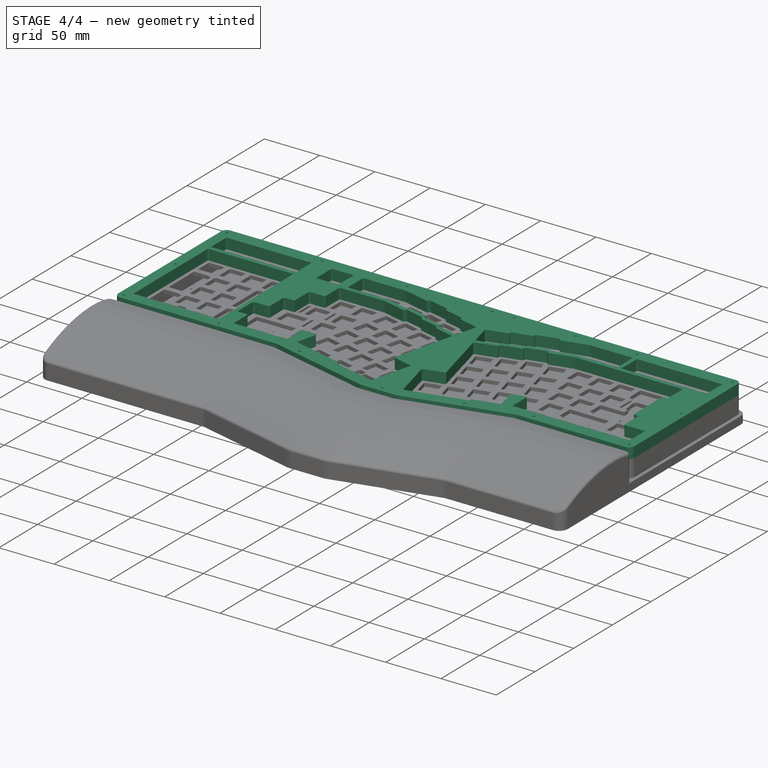
[diagram: stage 4 of 4 — iso view after this stage's code; geometry added in this stage tinted green]
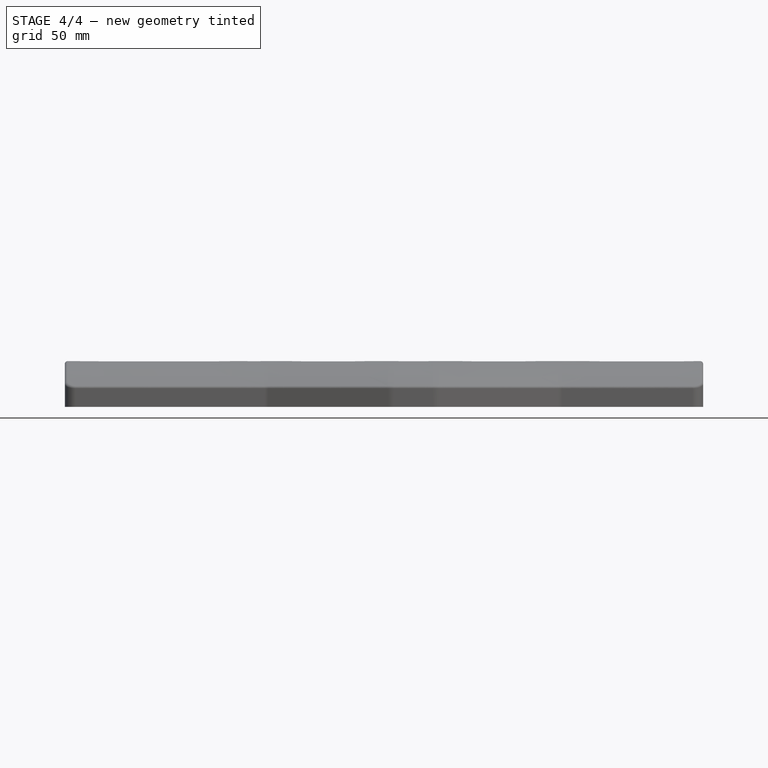
[diagram: stage 4 of 4 — front view after this stage's code; geometry added in this stage tinted green]
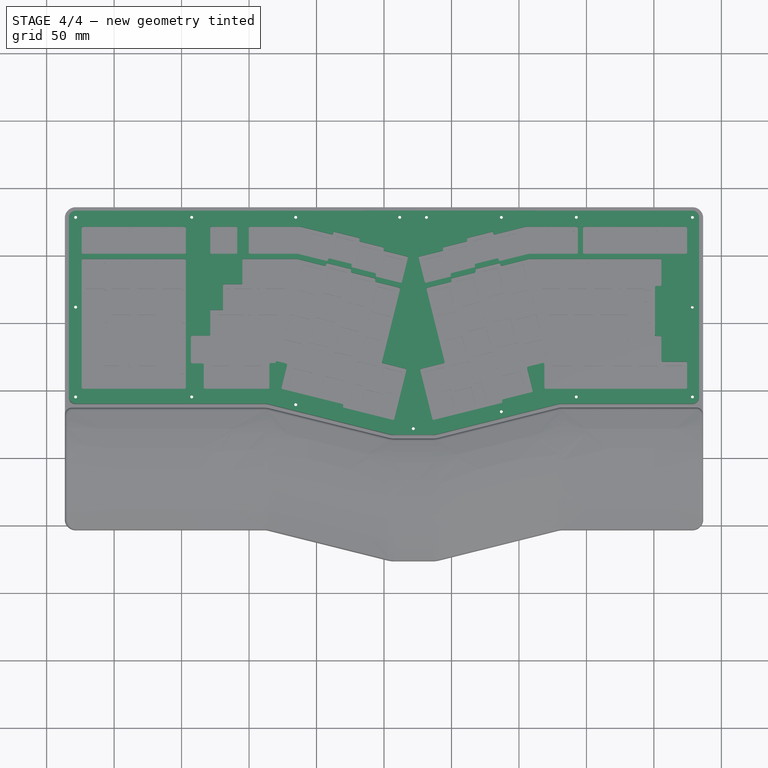
[diagram: stage 4 of 4 — top view after this stage's code; geometry added in this stage tinted green]
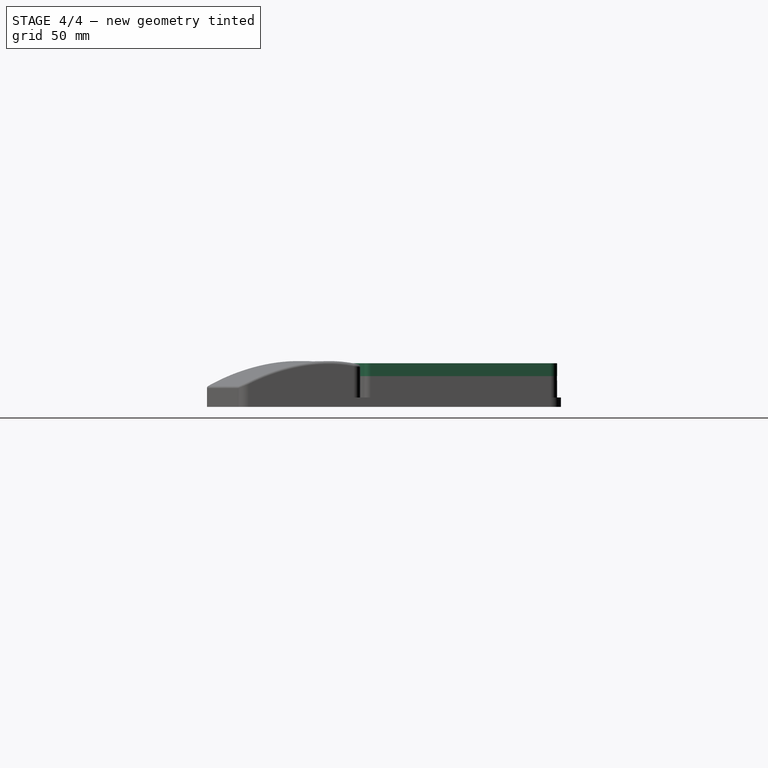
[diagram: stage 4 of 4 — right view after this stage's code; geometry added in this stage tinted green]
FEATURE [Sketcher::SketchObject] Sketch008  label="sinister-top-2"
  FullyConstrained = false
  MapMode = 5
  Placement = pos=(0,0,15.855) rot=(0,0,1;0rad)
  Support = -> [Pad002]
  sketch-geometry (254):
    g0: Circle CenterX=86.9757 CenterY=-65.9839 CenterZ=0 NormalX=0 NormalY=0 NormalZ=-1 AngleXU=0 Radius=1.6
    g1: Circle CenterX=-65.4059 CenterY=-60.759 CenterZ=0 NormalX=0 NormalY=0 NormalZ=-1 AngleXU=0 Radius=1.6
    g2: Circle CenterX=228.545 CenterY=78.0327 CenterZ=0 NormalX=0 NormalY=0 NormalZ=-1 AngleXU=0 Radius=1.6
    g3: Circle CenterX=142.495 CenterY=78.0327 CenterZ=0 NormalX=0 NormalY=0 NormalZ=-1 AngleXU=0 Radius=1.6
    g4: Circle CenterX=86.9757 CenterY=78.0327 CenterZ=0 NormalX=0 NormalY=0 NormalZ=-1 AngleXU=0 Radius=1.6
    g5: Circle CenterX=31.4567 CenterY=78.0327 CenterZ=0 NormalX=0 NormalY=0 NormalZ=-1 AngleXU=0 Radius=1.6
    g6: Circle CenterX=11.6609 CenterY=78.0327 CenterZ=0 NormalX=0 NormalY=0 NormalZ=-1 AngleXU=0 Radius=1.6
    g7: Circle CenterX=142.495 CenterY=-55.0296 CenterZ=0 NormalX=0 NormalY=0 NormalZ=-1 AngleXU=0 Radius=1.6
    g8: Circle CenterX=-65.4059 CenterY=78.0327 CenterZ=0 NormalX=0 NormalY=0 NormalZ=-1 AngleXU=0 Radius=1.6
    g9: Circle CenterX=-228.522 CenterY=11.5016 CenterZ=0 NormalX=0 NormalY=0 NormalZ=-1 AngleXU=0 Radius=1.6
    g10: Circle CenterX=-142.473 CenterY=78.0327 CenterZ=0 NormalX=0 NormalY=0 NormalZ=-1 AngleXU=0 Radius=1.6
    g11: Circle CenterX=21.7523 CenterY=-78.5426 CenterZ=0 NormalX=0 NormalY=0 NormalZ=-1 AngleXU=0 Radius=1.6
    g12: Circle CenterX=-228.522 CenterY=-55.0296 CenterZ=0 NormalX=0 NormalY=0 NormalZ=-1 AngleXU=0 Radius=1.6
    g13: Circle CenterX=-228.522 CenterY=78.0327 CenterZ=0 NormalX=0 NormalY=0 NormalZ=-1 AngleXU=0 Radius=1.6
    g14: Circle CenterX=-142.473 CenterY=-55.0296 CenterZ=0 NormalX=0 NormalY=0 NormalZ=-1 AngleXU=0 Radius=1.6
    g15: Circle CenterX=228.545 CenterY=-55.0296 CenterZ=0 NormalX=0 NormalY=0 NormalZ=-1 AngleXU=0 Radius=1.6
    g16: Circle CenterX=228.523 CenterY=11.5016 CenterZ=0 NormalX=0 NormalY=0 NormalZ=-1 AngleXU=0 Radius=1.6
    g17: ArcOfCircle CenterX=223.628 CenterY=52.034 CenterZ=0 NormalX=0 NormalY=0 NormalZ=1 AngleXU=0 Radius=1 StartAngle=4.71239 EndAngle=6.28319
    g18: LineSegment StartX=224.628 StartY=70.084 StartZ=0 EndX=224.628 EndY=52.034 EndZ=0
    g19: ArcOfCircle CenterX=223.628 CenterY=70.084 CenterZ=0 NormalX=0 NormalY=0 NormalZ=1 AngleXU=0 Radius=1 StartAngle=0 EndAngle=1.5708
    g20: LineSegment StartX=148.428 StartY=71.084 StartZ=0 EndX=223.628 EndY=71.084 EndZ=0
    g21: ArcOfCircle CenterX=148.428 CenterY=70.084 CenterZ=0 NormalX=0 NormalY=0 NormalZ=1 AngleXU=0 Radius=1 StartAngle=1.5708 EndAngle=3.14159
    g22: LineSegment StartX=147.428 StartY=52.034 StartZ=0 EndX=147.428 EndY=70.084 EndZ=0
    g23: ArcOfCircle CenterX=148.428 CenterY=52.034 CenterZ=0 NormalX=0 NormalY=0 NormalZ=1 AngleXU=0 Radius=1 StartAngle=3.14159 EndAngle=4.71239
    g24: LineSegment StartX=223.628 StartY=51.034 StartZ=0 EndX=148.428 EndY=51.034 EndZ=0
    g25: LineSegment StartX=-6.77883 StartY=36.783 StartZ=0 EndX=-23.3223 EndY=40.9077 EndZ=0
    g26: ArcOfCircle CenterX=-23.0804 CenterY=41.878 CenterZ=0 NormalX=0 NormalY=0 NormalZ=1 AngleXU=0 Radius=1 StartAngle=2.89725 EndAngle=4.46804
    g27: LineSegment StartX=-24.0507 StartY=42.1199 StartZ=0 EndX=-23.9585 EndY=42.4898 EndZ=0
    g28: ArcOfCircle CenterX=-24.9287 CenterY=42.7317 CenterZ=0 NormalX=0 NormalY=0 NormalZ=1 AngleXU=0 Radius=1 StartAngle=6.03884 EndAngle=7.60964
    g29: LineSegment StartX=-24.6868 StartY=43.702 StartZ=0 EndX=-40.2601 EndY=47.5848 EndZ=0
    g30: ArcOfCircle CenterX=-40.502 CenterY=46.6145 CenterZ=0 NormalX=0 NormalY=0 NormalZ=1 AngleXU=0 Radius=1 StartAngle=1.32645 EndAngle=2.89725
    g31: LineSegment StartX=-41.4723 StartY=46.8564 StartZ=0 EndX=-41.5643 EndY=46.4876 EndZ=0
    g32: ArcOfCircle CenterX=-42.5346 CenterY=46.7295 CenterZ=0 NormalX=0 NormalY=0 NormalZ=1 AngleXU=0 Radius=1 StartAngle=4.46812 EndAngle=6.03884
    g33: LineSegment StartX=-42.7764 StartY=45.7592 StartZ=0 EndX=-63.3439 EndY=50.8856 EndZ=0
    g34: ArcOfCircle CenterX=-64.5532 CenterY=46.034 CenterZ=0 NormalX=0 NormalY=0 NormalZ=1 AngleXU=0 Radius=5 StartAngle=1.32653 EndAngle=1.5708
    g35: LineSegment StartX=-64.5532 StartY=51.034 StartZ=0 EndX=-99.2217 EndY=51.034 EndZ=0
    g36: ArcOfCircle CenterX=-99.2217 CenterY=52.034 CenterZ=0 NormalX=0 NormalY=0 NormalZ=1 AngleXU=0 Radius=1 StartAngle=3.14159 EndAngle=4.71239
    g37: LineSegment StartX=-100.222 StartY=52.034 StartZ=0 EndX=-100.222 EndY=70.084 EndZ=0
    g38: ArcOfCircle CenterX=-99.2217 CenterY=70.084 CenterZ=0 NormalX=0 NormalY=0 NormalZ=1 AngleXU=0 Radius=1 StartAngle=1.5708 EndAngle=3.14159
    g39: LineSegment StartX=-99.2217 StartY=71.084 StartZ=0 EndX=-62.2089 EndY=71.084 EndZ=0
    g40: ArcOfCircle CenterX=-62.2089 CenterY=65.084 CenterZ=0 NormalX=0 NormalY=0 NormalZ=1 AngleXU=0 Radius=6 StartAngle=1.32645 EndAngle=1.5708
    g41: LineSegment StartX=-60.7573 StartY=70.9058 StartZ=0 EndX=-38.8962 EndY=65.4553 EndZ=0
    g42: ArcOfCircle CenterX=-38.6543 CenterY=66.4256 CenterZ=0 NormalX=0 NormalY=0 NormalZ=1 AngleXU=0 Radius=1 StartAngle=4.46804 EndAngle=6.03884
    g43: LineSegment StartX=-37.684 StartY=66.1836 StartZ=0 EndX=-37.5918 EndY=66.5536 EndZ=0
    g44: ArcOfCircle CenterX=-36.6215 CenterY=66.3117 CenterZ=0 NormalX=0 NormalY=0 NormalZ=1 AngleXU=0 Radius=1 StartAngle=1.32645 EndAngle=2.89725
    g45: LineSegment StartX=-36.3796 StartY=67.282 StartZ=0 EndX=-18.8658 EndY=62.9153 EndZ=0
    g46: ArcOfCircle CenterX=-19.1077 CenterY=61.945 CenterZ=0 NormalX=0 NormalY=0 NormalZ=1 AngleXU=0 Radius=0.999995 StartAngle=6.03882 EndAngle=7.60964
    g47: LineSegment StartX=-18.1374 StartY=61.7031 StartZ=0 EndX=-18.2299 EndY=61.3323 EndZ=0
    g48: ArcOfCircle CenterX=-17.2596 CenterY=61.0904 CenterZ=0 NormalX=0 NormalY=0 NormalZ=1 AngleXU=0 Radius=1 StartAngle=2.89723 EndAngle=4.46804
    g49: LineSegment StartX=-17.5015 StartY=60.1201 StartZ=0 EndX=-0.958082 EndY=55.9954 EndZ=0
    g50: ArcOfCircle CenterX=-1.2 CenterY=55.0251 CenterZ=0 NormalX=0 NormalY=0 NormalZ=1 AngleXU=0 Radius=1 StartAngle=6.03884 EndAngle=7.60964
    g51: LineSegment StartX=-0.229706 StartY=54.7832 StartZ=0 EndX=-0.321919 EndY=54.4133 EndZ=0
    g52: ArcOfCircle CenterX=0.648377 CenterY=54.1714 CenterZ=0 NormalX=0 NormalY=0 NormalZ=1 AngleXU=0 Radius=1 StartAngle=2.89725 EndAngle=4.46804
    g53: LineSegment StartX=0.406457 StartY=53.2011 StartZ=0 EndX=16.9497 EndY=49.0764 EndZ=0
    g54: ArcOfCircle CenterX=16.7078 CenterY=48.1061 CenterZ=0 NormalX=0 NormalY=0 NormalZ=1 AngleXU=0 Radius=1 StartAngle=6.03892 EndAngle=7.60964
    g55: LineSegment StartX=17.6781 StartY=47.8643 StartZ=0 EndX=13.3128 EndY=30.3502 EndZ=0
    g56: ArcOfCircle CenterX=12.3425 CenterY=30.592 CenterZ=0 NormalX=0 NormalY=0 NormalZ=1 AngleXU=0 Radius=1 StartAngle=4.46803 EndAngle=6.03892
    g57: LineSegment StartX=12.1005 StartY=29.6217 StartZ=0 EndX=-5.41424 EndY=33.989 EndZ=0
    g58: ArcOfCircle CenterX=-5.1723 CenterY=34.9593 CenterZ=0 NormalX=0 NormalY=0 NormalZ=1 AngleXU=0 Radius=1 StartAngle=2.89725 EndAngle=4.46803
    g59: LineSegment StartX=-6.1426 StartY=35.2012 StartZ=0 EndX=-6.05045 EndY=35.5708 EndZ=0
    g60: ArcOfCircle CenterX=-7.02075 CenterY=35.8127 CenterZ=0 NormalX=0 NormalY=0 NormalZ=1 AngleXU=0 Radius=1 StartAngle=6.03884 EndAngle=7.60964
    g61: LineSegment StartX=-147.847 StartY=-48.9781 StartZ=0 EndX=-223.047 EndY=-48.9781 EndZ=0
    g62: ArcOfCircle CenterX=-223.047 CenterY=-47.9781 CenterZ=0 NormalX=0 NormalY=0 NormalZ=1 AngleXU=0 Radius=1 StartAngle=3.14159 EndAngle=4.71239
    g63: LineSegment StartX=-224.047 StartY=-47.9781 StartZ=0 EndX=-224.047 EndY=46.272 EndZ=0
    g64: ArcOfCircle CenterX=-223.047 CenterY=46.272 CenterZ=0 NormalX=0 NormalY=0 NormalZ=1 AngleXU=0 Radius=1 StartAngle=1.5708 EndAngle=3.14159
    g65: LineSegment StartX=-223.047 StartY=47.272 StartZ=0 EndX=-147.847 EndY=47.272 EndZ=0
    g66: ArcOfCircle CenterX=-147.847 CenterY=46.272 CenterZ=0 NormalX=0 NormalY=0 NormalZ=1 AngleXU=0 Radius=1 StartAngle=0 EndAngle=1.5708
    g67: LineSegment StartX=-146.847 StartY=46.272 StartZ=0 EndX=-146.847 EndY=-47.9781 EndZ=0
    g68: ArcOfCircle CenterX=-147.847 CenterY=-47.9781 CenterZ=0 NormalX=0 NormalY=0 NormalZ=1 AngleXU=0 Radius=1 StartAngle=4.71239 EndAngle=6.28319
    g69: LineSegment StartX=-147.847 StartY=51.034 StartZ=0 EndX=-223.047 EndY=51.034 EndZ=0
    g70: ArcOfCircle CenterX=-223.047 CenterY=52.034 CenterZ=0 NormalX=0 NormalY=0 NormalZ=1 AngleXU=0 Radius=1 StartAngle=3.14159 EndAngle=4.71239
    g71: LineSegment StartX=-224.047 StartY=52.034 StartZ=0 EndX=-224.047 EndY=70.084 EndZ=0
    g72: ArcOfCircle CenterX=-223.047 CenterY=70.084 CenterZ=0 NormalX=0 NormalY=0 NormalZ=1 AngleXU=0 Radius=1 StartAngle=1.5708 EndAngle=3.14159
    g73: LineSegment StartX=-223.047 StartY=71.084 StartZ=0 EndX=-147.847 EndY=71.084 EndZ=0
    g74: ArcOfCircle CenterX=-147.847 CenterY=70.084 CenterZ=0 NormalX=0 NormalY=0 NormalZ=1 AngleXU=0 Radius=1 StartAngle=0 EndAngle=1.5708
    g75: LineSegment StartX=-146.847 StartY=70.084 StartZ=0 EndX=-146.847 EndY=52.034 EndZ=0
    g76: ArcOfCircle CenterX=-147.847 CenterY=52.034 CenterZ=0 NormalX=0 NormalY=0 NormalZ=1 AngleXU=0 Radius=1 StartAngle=4.71239 EndAngle=6.28319
    g77: LineSegment StartX=-108.747 StartY=70.084 StartZ=0 EndX=-108.747 EndY=52.034 EndZ=0
    g78: ArcOfCircle CenterX=-109.747 CenterY=52.034 CenterZ=0 NormalX=0 NormalY=0 NormalZ=1 AngleXU=0 Radius=1 StartAngle=4.71239 EndAngle=6.28319
    g79: LineSegment StartX=-109.747 StartY=51.034 StartZ=0 EndX=-127.797 EndY=51.034 EndZ=0
    g80: ArcOfCircle CenterX=-127.797 CenterY=52.034 CenterZ=0 NormalX=0 NormalY=0 NormalZ=1 AngleXU=0 Radius=1 StartAngle=3.14159 EndAngle=4.71239
    g81: LineSegment StartX=-128.797 StartY=52.034 StartZ=0 EndX=-128.797 EndY=70.084 EndZ=0
    g82: ArcOfCircle CenterX=-127.797 CenterY=70.084 CenterZ=0 NormalX=0 NormalY=0 NormalZ=1 AngleXU=0 Radius=1 StartAngle=1.5708 EndAngle=3.14159
    g83: LineSegment StartX=-127.797 StartY=71.084 StartZ=0 EndX=-109.747 EndY=71.084 EndZ=0
    g84: ArcOfCircle CenterX=-109.747 CenterY=70.084 CenterZ=0 NormalX=0 NormalY=0 NormalZ=1 AngleXU=0 Radius=1 StartAngle=0 EndAngle=1.5708
    g85: LineSegment StartX=26.4939 StartY=49.0764 StartZ=0 EndX=43.0372 EndY=53.2011 EndZ=0
    g86: ArcOfCircle CenterX=42.7952 CenterY=54.1714 CenterZ=0 NormalX=0 NormalY=0 NormalZ=1 AngleXU=0 Radius=1 StartAngle=4.95673 EndAngle=6.52753
    g87: LineSegment StartX=43.7655 StartY=54.4133 StartZ=0 EndX=43.6733 EndY=54.7832 EndZ=0
    g88: ArcOfCircle CenterX=44.6436 CenterY=55.0251 CenterZ=0 NormalX=0 NormalY=0 NormalZ=1 AngleXU=0 Radius=1 StartAngle=1.81514 EndAngle=3.38594
    g89: LineSegment StartX=44.4017 StartY=55.9954 StartZ=0 EndX=60.9451 EndY=60.1201 EndZ=0
    g90: ArcOfCircle CenterX=60.7032 CenterY=61.0904 CenterZ=0 NormalX=0 NormalY=0 NormalZ=1 AngleXU=0 Radius=0.999991 StartAngle=4.95673 EndAngle=6.52755
    g91: LineSegment StartX=61.6735 StartY=61.3323 StartZ=0 EndX=61.581 EndY=61.7031 EndZ=0
    g92: ArcOfCircle CenterX=62.5513 CenterY=61.945 CenterZ=0 NormalX=0 NormalY=0 NormalZ=1 AngleXU=0 Radius=0.999995 StartAngle=1.81514 EndAngle=3.38596
    g93: LineSegment StartX=62.3094 StartY=62.9153 StartZ=0 EndX=79.8232 EndY=67.282 EndZ=0
    g94: ArcOfCircle CenterX=80.0651 CenterY=66.3117 CenterZ=0 NormalX=0 NormalY=0 NormalZ=1 AngleXU=0 Radius=1 StartAngle=0.244344 EndAngle=1.81514
    g95: LineSegment StartX=81.0354 StartY=66.5536 StartZ=0 EndX=81.1276 EndY=66.1837 EndZ=0
    g96: ArcOfCircle CenterX=82.0979 CenterY=66.4256 CenterZ=0 NormalX=0 NormalY=0 NormalZ=1 AngleXU=0 Radius=1 StartAngle=3.38594 EndAngle=4.95673
    g97: LineSegment StartX=82.3399 StartY=65.4553 StartZ=0 EndX=104.201 EndY=70.9058 EndZ=0
    g98: ArcOfCircle CenterX=105.652 CenterY=65.084 CenterZ=0 NormalX=0 NormalY=0 NormalZ=1 AngleXU=0 Radius=6 StartAngle=1.5708 EndAngle=1.81514
    g99: LineSegment StartX=105.652 StartY=71.084 StartZ=0 EndX=142.665 EndY=71.0841 EndZ=0
    g100: ArcOfCircle CenterX=142.665 CenterY=70.0841 CenterZ=0 NormalX=0 NormalY=0 NormalZ=1 AngleXU=0 Radius=1 StartAngle=1.21058e-07 EndAngle=1.5708
    g101: LineSegment StartX=143.665 StartY=70.0841 StartZ=0 EndX=143.665 EndY=52.0341 EndZ=0
    g102: ArcOfCircle CenterX=142.665 CenterY=52.0341 CenterZ=0 NormalX=0 NormalY=0 NormalZ=1 AngleXU=0 Radius=1 StartAngle=4.71239 EndAngle=6.28319
    g103: LineSegment StartX=142.665 StartY=51.0341 StartZ=0 EndX=107.997 EndY=51.034 EndZ=0
    g104: ArcOfCircle CenterX=107.997 CenterY=46.034 CenterZ=0 NormalX=0 NormalY=0 NormalZ=1 AngleXU=0 Radius=5 StartAngle=1.5708 EndAngle=1.81507
    g105: LineSegment StartX=106.788 StartY=50.8856 StartZ=0 EndX=86.2201 EndY=45.7592 EndZ=0
    g106: ArcOfCircle CenterX=85.9782 CenterY=46.7295 CenterZ=0 NormalX=0 NormalY=0 NormalZ=1 AngleXU=0 Radius=1 StartAngle=3.38594 EndAngle=4.95666
    g107: LineSegment StartX=85.0079 StartY=46.4876 StartZ=0 EndX=84.916 EndY=46.8564 EndZ=0
    g108: ArcOfCircle CenterX=83.9457 CenterY=46.6145 CenterZ=0 NormalX=0 NormalY=0 NormalZ=1 AngleXU=0 Radius=1 StartAngle=0.244344 EndAngle=1.81514
    g109: LineSegment StartX=83.7037 StartY=47.5848 StartZ=0 EndX=68.1304 EndY=43.702 EndZ=0
    g110: ArcOfCircle CenterX=68.3724 CenterY=42.7317 CenterZ=0 NormalX=0 NormalY=0 NormalZ=1 AngleXU=0 Radius=1 StartAngle=1.81514 EndAngle=3.38594
    g111: LineSegment StartX=67.4021 StartY=42.4898 StartZ=0 EndX=67.4943 EndY=42.1199 EndZ=0
    g112: ArcOfCircle CenterX=66.524 CenterY=41.878 CenterZ=0 NormalX=0 NormalY=0 NormalZ=1 AngleXU=0 Radius=1 StartAngle=4.95673 EndAngle=6.52753
    g113: LineSegment StartX=66.7659 StartY=40.9077 StartZ=0 EndX=50.2224 EndY=36.783 EndZ=0
    g114: ArcOfCircle CenterX=50.4644 CenterY=35.8127 CenterZ=0 NormalX=0 NormalY=0 NormalZ=1 AngleXU=0 Radius=1 StartAngle=1.81514 EndAngle=3.38594
    g115: LineSegment StartX=49.4941 StartY=35.5708 StartZ=0 EndX=49.5862 EndY=35.2012 EndZ=0
    g116: ArcOfCircle CenterX=48.6159 CenterY=34.9593 CenterZ=0 NormalX=0 NormalY=0 NormalZ=1 AngleXU=0 Radius=1 StartAngle=4.95675 EndAngle=6.52753
    g117: LineSegment StartX=48.8579 StartY=33.989 StartZ=0 EndX=31.3431 EndY=29.6217 EndZ=0
    g118: ArcOfCircle CenterX=31.1011 CenterY=30.592 CenterZ=0 NormalX=0 NormalY=0 NormalZ=1 AngleXU=0 Radius=1 StartAngle=3.38586 EndAngle=4.95675
    g119: LineSegment StartX=30.1308 StartY=30.3502 StartZ=0 EndX=25.7655 EndY=47.8643 EndZ=0
    g120: ArcOfCircle CenterX=26.7358 CenterY=48.1061 CenterZ=0 NormalX=0 NormalY=0 NormalZ=1 AngleXU=0 Radius=1 StartAngle=1.81514 EndAngle=3.38586
    g121: ArcOfCircle CenterX=27.8376 CenterY=-35.0598 CenterZ=0 NormalX=0 NormalY=0 NormalZ=1 AngleXU=0 Radius=0.999999 StartAngle=1.81514 EndAngle=3.38594
    g122: LineSegment StartX=27.5957 StartY=-34.0895 StartZ=0 EndX=44.139 EndY=-29.9648 EndZ=0
    g123: ArcOfCircle CenterX=43.8971 CenterY=-28.9945 CenterZ=0 NormalX=0 NormalY=0 NormalZ=1 AngleXU=0 Radius=1 StartAngle=4.95673 EndAngle=6.52753
    g124: LineSegment StartX=44.8674 StartY=-28.7526 StartZ=0 EndX=31.5253 EndY=24.7592 EndZ=0
    g125: ArcOfCircle CenterX=32.4956 CenterY=25.0011 CenterZ=0 NormalX=0 NormalY=0 NormalZ=1 AngleXU=0 Radius=1 StartAngle=1.81514 EndAngle=3.38594
    g126: LineSegment StartX=32.2537 StartY=25.9714 StartZ=0 EndX=49.2823 EndY=30.2171 EndZ=0
    g127: ArcOfCircle CenterX=49.0404 CenterY=31.1873 CenterZ=0 NormalX=0 NormalY=0 NormalZ=1 AngleXU=0 Radius=1 StartAngle=4.95673 EndAngle=6.52753
    g128: LineSegment StartX=50.0107 StartY=31.4293 StartZ=0 EndX=49.9185 EndY=31.7991 EndZ=0
    g129: ArcOfCircle CenterX=50.8887 CenterY=32.041 CenterZ=0 NormalX=0 NormalY=0 NormalZ=1 AngleXU=0 Radius=1 StartAngle=1.81514 EndAngle=3.38594
    g130: LineSegment StartX=50.6468 StartY=33.0113 StartZ=0 EndX=67.1903 EndY=37.1361 EndZ=0
    g131: ArcOfCircle CenterX=66.9484 CenterY=38.1064 CenterZ=0 NormalX=0 NormalY=0 NormalZ=1 AngleXU=0 Radius=1 StartAngle=4.95673 EndAngle=6.52753
    g132: LineSegment StartX=67.9187 StartY=38.3483 StartZ=0 EndX=67.8265 EndY=38.7181 EndZ=0
    g133: ArcOfCircle CenterX=68.7968 CenterY=38.96 CenterZ=0 NormalX=0 NormalY=0 NormalZ=1 AngleXU=0 Radius=1 StartAngle=1.81514 EndAngle=3.38594
    g134: LineSegment StartX=68.5548 StartY=39.9303 StartZ=0 EndX=85.0983 EndY=44.0551 EndZ=0
    g135: ArcOfCircle CenterX=85.3402 CenterY=43.0848 CenterZ=0 NormalX=0 NormalY=0 NormalZ=1 AngleXU=0 Radius=1 StartAngle=0.244344 EndAngle=1.81514
    g136: LineSegment StartX=86.3105 StartY=43.3267 StartZ=0 EndX=86.4027 EndY=42.9567 EndZ=0
    g137: ArcOfCircle CenterX=87.373 CenterY=43.1987 CenterZ=0 NormalX=0 NormalY=0 NormalZ=1 AngleXU=0 Radius=1 StartAngle=3.38594 EndAngle=4.95673
    g138: LineSegment StartX=87.615 StartY=42.2284 StartZ=0 EndX=107.189 EndY=47.1087 EndZ=0
    g139: ArcOfCircle CenterX=108.519 CenterY=41.772 CenterZ=0 NormalX=0 NormalY=0 NormalZ=1 AngleXU=0 Radius=5.5 StartAngle=1.5708 EndAngle=1.81514
    g140: LineSegment StartX=108.519 StartY=47.272 StartZ=0 EndX=204.578 EndY=47.272 EndZ=0
    g141: ArcOfCircle CenterX=204.578 CenterY=46.272 CenterZ=0 NormalX=0 NormalY=0 NormalZ=1 AngleXU=0 Radius=1 StartAngle=0 EndAngle=1.5708
    g142: LineSegment StartX=205.578 StartY=46.272 StartZ=0 EndX=205.578 EndY=28.222 EndZ=0
    g143: ArcOfCircle CenterX=204.578 CenterY=28.222 CenterZ=0 NormalX=0 NormalY=0 NormalZ=1 AngleXU=0 Radius=1 StartAngle=4.71239 EndAngle=6.28319
    g144: LineSegment StartX=204.578 StartY=27.222 StartZ=0 EndX=201.819 EndY=27.222 EndZ=0
    g145: ArcOfCircle CenterX=201.819 CenterY=26.222 CenterZ=0 NormalX=0 NormalY=0 NormalZ=1 AngleXU=0 Radius=1 StartAngle=1.5708 EndAngle=3.14159
    g146: LineSegment StartX=200.819 StartY=26.222 StartZ=0 EndX=200.819 EndY=-8.87806 EndZ=0
    g147: ArcOfCircle CenterX=201.819 CenterY=-8.87806 CenterZ=0 NormalX=0 NormalY=0 NormalZ=1 AngleXU=0 Radius=1 StartAngle=3.14159 EndAngle=4.71239
    g148: LineSegment StartX=201.819 StartY=-9.87806 StartZ=0 EndX=204.578 EndY=-9.87806 EndZ=0
    g149: ArcOfCircle CenterX=204.578 CenterY=-10.8781 CenterZ=0 NormalX=0 NormalY=0 NormalZ=1 AngleXU=0 Radius=1 StartAngle=0 EndAngle=1.5708
    g150: LineSegment StartX=205.578 StartY=-10.8781 StartZ=0 EndX=205.578 EndY=-27.9281 EndZ=0
    g151: ArcOfCircle CenterX=206.578 CenterY=-27.9281 CenterZ=0 NormalX=0 NormalY=0 NormalZ=1 AngleXU=0 Radius=1 StartAngle=3.14159 EndAngle=4.71239
    g152: LineSegment StartX=206.578 StartY=-28.9281 StartZ=0 EndX=223.628 EndY=-28.9281 EndZ=0
    g153: ArcOfCircle CenterX=223.628 CenterY=-29.9281 CenterZ=0 NormalX=0 NormalY=0 NormalZ=1 AngleXU=0 Radius=1 StartAngle=0 EndAngle=1.5708
    g154: LineSegment StartX=224.628 StartY=-29.9281 StartZ=0 EndX=224.628 EndY=-47.9781 EndZ=0
    g155: ArcOfCircle CenterX=223.628 CenterY=-47.9781 CenterZ=0 NormalX=0 NormalY=0 NormalZ=1 AngleXU=0 Radius=1 StartAngle=4.71239 EndAngle=6.28319
    g156: LineSegment StartX=223.628 StartY=-48.9781 StartZ=0 EndX=119.853 EndY=-48.9781 EndZ=0
    g157: ArcOfCircle CenterX=119.853 CenterY=-47.9781 CenterZ=0 NormalX=0 NormalY=0 NormalZ=1 AngleXU=0 Radius=1 StartAngle=3.14159 EndAngle=4.71239
    g158: LineSegment StartX=118.853 StartY=-47.9781 StartZ=0 EndX=118.853 EndY=-30.8261 EndZ=0
    g159: ArcOfCircle CenterX=117.853 CenterY=-30.8261 CenterZ=0 NormalX=0 NormalY=0 NormalZ=1 AngleXU=0 Radius=1 StartAngle=0 EndAngle=1.81514
    g160: LineSegment StartX=117.611 StartY=-29.8558 StartZ=0 EndX=106.776 EndY=-32.5571 EndZ=0
    g161: ArcOfCircle CenterX=107.018 CenterY=-33.5274 CenterZ=0 NormalX=0 NormalY=0 NormalZ=1 AngleXU=0 Radius=1 StartAngle=1.81514 EndAngle=3.38594
    g162: LineSegment StartX=106.048 StartY=-33.7694 StartZ=0 EndX=110.173 EndY=-50.3129 EndZ=0
    g163: ArcOfCircle CenterX=109.203 CenterY=-50.5548 CenterZ=0 NormalX=0 NormalY=0 NormalZ=1 AngleXU=0 Radius=1 StartAngle=4.95673 EndAngle=6.52753
    g164: LineSegment StartX=109.444 StartY=-51.5251 StartZ=0 EndX=88.2801 EndY=-56.802 EndZ=0
    g165: ArcOfCircle CenterX=88.522 CenterY=-57.7723 CenterZ=0 NormalX=0 NormalY=0 NormalZ=1 AngleXU=0 Radius=0.999995 StartAngle=1.81514 EndAngle=3.38594
    g166: LineSegment StartX=87.5517 StartY=-58.0142 StartZ=0 EndX=87.6439 EndY=-58.3842 EndZ=0
    g167: ArcOfCircle CenterX=86.6737 CenterY=-58.6261 CenterZ=0 NormalX=0 NormalY=0 NormalZ=1 AngleXU=0 Radius=1 StartAngle=4.95673 EndAngle=6.52753
    g168: LineSegment StartX=86.9156 StartY=-59.5964 StartZ=0 EndX=37.0549 EndY=-72.028 EndZ=0
    g169: ArcOfCircle CenterX=36.8129 CenterY=-71.0577 CenterZ=0 NormalX=0 NormalY=0 NormalZ=1 AngleXU=0 Radius=1 StartAngle=3.38594 EndAngle=4.95673
    g170: LineSegment StartX=35.8427 StartY=-71.2996 StartZ=0 EndX=26.8673 EndY=-35.3017 EndZ=0
    g171: ArcOfCircle CenterX=-142.084 CenterY=-29.2031 CenterZ=0 NormalX=0 NormalY=0 NormalZ=1 AngleXU=0 Radius=1 StartAngle=3.14159 EndAngle=4.71239
    g172: LineSegment StartX=-143.084 StartY=-29.2031 StartZ=0 EndX=-143.084 EndY=-10.6032 EndZ=0
    g173: ArcOfCircle CenterX=-142.084 CenterY=-10.6032 CenterZ=0 NormalX=0 NormalY=0 NormalZ=1 AngleXU=0 Radius=1 StartAngle=1.5708 EndAngle=3.14159
    g174: LineSegment StartX=-142.084 StartY=-9.60316 StartZ=0 EndX=-129.797 EndY=-9.60316 EndZ=0
    g175: ArcOfCircle CenterX=-129.797 CenterY=-8.60316 CenterZ=0 NormalX=0 NormalY=0 NormalZ=1 AngleXU=0 Radius=1 StartAngle=4.71239 EndAngle=6.28319
    g176: LineSegment StartX=-128.797 StartY=-8.60316 StartZ=0 EndX=-128.797 EndY=8.44684 EndZ=0
    g177: ArcOfCircle CenterX=-127.797 CenterY=8.44684 CenterZ=0 NormalX=0 NormalY=0 NormalZ=1 AngleXU=0 Radius=1 StartAngle=1.5708 EndAngle=3.14159
    g178: LineSegment StartX=-127.797 StartY=9.44684 StartZ=0 EndX=-119.271 EndY=9.44684 EndZ=0
    g179: LineSegment StartX=-119.271 StartY=9.44684 StartZ=0 EndX=-119.271 EndY=27.497 EndZ=0
    g180: ArcOfCircle CenterX=-118.271 CenterY=27.497 CenterZ=0 NormalX=0 NormalY=0 NormalZ=1 AngleXU=0 Radius=1 StartAngle=1.5708 EndAngle=3.14159
    g181: LineSegment StartX=-118.271 StartY=28.497 StartZ=0 EndX=-105.985 EndY=28.497 EndZ=0
    g182: ArcOfCircle CenterX=-105.985 CenterY=29.497 CenterZ=0 NormalX=0 NormalY=0 NormalZ=1 AngleXU=0 Radius=1 StartAngle=4.71239 EndAngle=6.28319
    g183: LineSegment StartX=-104.985 StartY=29.497 StartZ=0 EndX=-104.985 EndY=46.272 EndZ=0
    g184: ArcOfCircle CenterX=-103.985 CenterY=46.272 CenterZ=0 NormalX=0 NormalY=0 NormalZ=1 AngleXU=0 Radius=1 StartAngle=1.5708 EndAngle=3.14159
    g185: LineSegment StartX=-103.985 StartY=47.272 StartZ=0 EndX=-65.0154 EndY=47.272 EndZ=0
    g186: ArcOfCircle CenterX=-65.0154 CenterY=42.272 CenterZ=0 NormalX=0 NormalY=0 NormalZ=1 AngleXU=0 Radius=5 StartAngle=1.32645 EndAngle=1.5708
    g187: LineSegment StartX=-63.8058 StartY=47.1235 StartZ=0 EndX=-44.1721 EndY=42.2283 EndZ=0
    g188: ArcOfCircle CenterX=-43.9302 CenterY=43.1986 CenterZ=0 NormalX=0 NormalY=0 NormalZ=1 AngleXU=0 Radius=1 StartAngle=4.46804 EndAngle=6.03882
    g189: LineSegment StartX=-42.9599 StartY=42.9567 StartZ=0 EndX=-42.8676 EndY=43.3269 EndZ=0
    g190: ArcOfCircle CenterX=-41.8973 CenterY=43.085 CenterZ=0 NormalX=0 NormalY=0 NormalZ=1 AngleXU=0 Radius=1 StartAngle=1.32643 EndAngle=2.89723
    g191: LineSegment StartX=-41.6554 StartY=44.0553 StartZ=0 EndX=-25.1113 EndY=39.9301 EndZ=0
    g192: ArcOfCircle CenterX=-25.3532 CenterY=38.9598 CenterZ=0 NormalX=0 NormalY=0 NormalZ=1 AngleXU=0 Radius=1 StartAngle=6.03884 EndAngle=7.60962
    g193: LineSegment StartX=-24.3829 StartY=38.7179 StartZ=0 EndX=-24.4751 EndY=38.3483 EndZ=0
    g194: ArcOfCircle CenterX=-23.5048 CenterY=38.1064 CenterZ=0 NormalX=0 NormalY=0 NormalZ=1 AngleXU=0 Radius=1 StartAngle=2.89725 EndAngle=4.46803
    g195: LineSegment StartX=-23.7467 StartY=37.1361 StartZ=0 EndX=-7.20327 EndY=33.0111 EndZ=0
    g196: ArcOfCircle CenterX=-7.4452 CenterY=32.0408 CenterZ=0 NormalX=0 NormalY=0 NormalZ=1 AngleXU=0 Radius=1 StartAngle=6.03884 EndAngle=7.60962
    g197: LineSegment StartX=-6.47491 StartY=31.7988 StartZ=0 EndX=-6.56705 EndY=31.4293 EndZ=0
    g198: ArcOfCircle CenterX=-5.59676 CenterY=31.1874 CenterZ=0 NormalX=0 NormalY=0 NormalZ=1 AngleXU=0 Radius=1 StartAngle=2.89724 EndAngle=4.46804
    g199: LineSegment StartX=-5.83868 StartY=30.2171 StartZ=0 EndX=11.1899 EndY=25.9714 EndZ=0
    g200: ArcOfCircle CenterX=10.948 CenterY=25.0011 CenterZ=0 NormalX=0 NormalY=0 NormalZ=1 AngleXU=0 Radius=1 StartAngle=6.03884 EndAngle=7.60964
    g201: LineSegment StartX=11.9183 StartY=24.7592 StartZ=0 EndX=-1.42379 EndY=-28.7526 EndZ=0
    g202: ArcOfCircle CenterX=-0.453497 CenterY=-28.9945 CenterZ=0 NormalX=0 NormalY=0 NormalZ=1 AngleXU=0 Radius=1 StartAngle=2.89724 EndAngle=4.46804
    g203: LineSegment StartX=-0.695417 StartY=-29.9648 StartZ=0 EndX=15.848 EndY=-34.0895 EndZ=0
    g204: ArcOfCircle CenterX=15.606 CenterY=-35.0598 CenterZ=0 NormalX=0 NormalY=0 NormalZ=1 AngleXU=0 Radius=1 StartAngle=6.03884 EndAngle=7.60964
    g205: LineSegment StartX=16.5763 StartY=-35.3017 StartZ=0 EndX=7.60092 EndY=-71.2998 EndZ=0
    g206: ArcOfCircle CenterX=6.63063 CenterY=-71.0579 CenterZ=0 NormalX=0 NormalY=0 NormalZ=1 AngleXU=0 Radius=1 StartAngle=4.46804 EndAngle=6.03884
    g207: LineSegment StartX=6.38871 StartY=-72.0282 StartZ=0 EndX=-29.6094 EndY=-63.0529 EndZ=0
    g208: ArcOfCircle CenterX=-29.3675 CenterY=-62.0826 CenterZ=0 NormalX=0 NormalY=0 NormalZ=1 AngleXU=0 Radius=1 StartAngle=2.89725 EndAngle=4.46804
    g209: LineSegment StartX=-30.3378 StartY=-61.8407 StartZ=0 EndX=-30.2455 EndY=-61.4705 EndZ=0
    g210: ArcOfCircle CenterX=-31.2157 CenterY=-61.2285 CenterZ=0 NormalX=0 NormalY=0 NormalZ=1 AngleXU=0 Radius=1 StartAngle=6.03884 EndAngle=7.60964
    g211: LineSegment StartX=-30.9738 StartY=-60.2582 StartZ=0 EndX=-75.2439 EndY=-49.2209 EndZ=0
    g212: ArcOfCircle CenterX=-75.0019 CenterY=-48.2506 CenterZ=0 NormalX=0 NormalY=0 NormalZ=1 AngleXU=0 Radius=0.999997 StartAngle=2.89725 EndAngle=4.46805
    g213: LineSegment StartX=-75.9722 StartY=-48.0087 StartZ=0 EndX=-71.8474 EndY=-31.4649 EndZ=0
    g214: ArcOfCircle CenterX=-72.8177 CenterY=-31.223 CenterZ=0 NormalX=0 NormalY=0 NormalZ=1 AngleXU=0 Radius=1 StartAngle=6.03884 EndAngle=7.60962
    g215: LineSegment StartX=-72.5758 StartY=-30.2527 StartZ=0 EndX=-79.5507 EndY=-28.5135 EndZ=0
    g216: ArcOfCircle CenterX=-79.6717 CenterY=-28.9987 CenterZ=0 NormalX=0 NormalY=0 NormalZ=1 AngleXU=0 Radius=0.5 StartAngle=1.32643 EndAngle=3.14159
    g217: LineSegment StartX=-80.1717 StartY=-28.9987 StartZ=0 EndX=-80.1717 EndY=-29.4281 EndZ=0
    g218: ArcOfCircle CenterX=-80.6717 CenterY=-29.4281 CenterZ=0 NormalX=0 NormalY=0 NormalZ=1 AngleXU=0 Radius=0.5 StartAngle=4.71239 EndAngle=6.28319
    g219: LineSegment StartX=-80.6717 StartY=-29.9281 StartZ=0 EndX=-83.9344 EndY=-29.9281 EndZ=0
    g220: ArcOfCircle CenterX=-83.9344 CenterY=-30.9281 CenterZ=0 NormalX=0 NormalY=0 NormalZ=1 AngleXU=0 Radius=1 StartAngle=1.5708 EndAngle=3.14159
    g221: LineSegment StartX=-84.9344 StartY=-30.9281 StartZ=0 EndX=-84.9344 EndY=-47.9781 EndZ=0
    g222: ArcOfCircle CenterX=-85.9344 CenterY=-47.9781 CenterZ=0 NormalX=0 NormalY=0 NormalZ=1 AngleXU=0 Radius=1 StartAngle=4.71239 EndAngle=6.28319
    g223: LineSegment StartX=-85.9344 StartY=-48.9781 StartZ=0 EndX=-132.56 EndY=-48.9781 EndZ=0
    g224: ArcOfCircle CenterX=-132.56 CenterY=-47.9781 CenterZ=0 NormalX=0 NormalY=0 NormalZ=1 AngleXU=0 Radius=1 StartAngle=3.14159 EndAngle=4.71239
    g225: LineSegment StartX=-133.56 StartY=-47.9781 StartZ=0 EndX=-133.56 EndY=-31.2031 EndZ=0
    g226: ArcOfCircle CenterX=-134.56 CenterY=-31.2031 CenterZ=0 NormalX=0 NormalY=0 NormalZ=1 AngleXU=0 Radius=1 StartAngle=0 EndAngle=1.5708
    g227: LineSegment StartX=-134.56 StartY=-30.2031 StartZ=0 EndX=-142.084 EndY=-30.2031 EndZ=0
    g228: LineSegment StartX=-233.523 StartY=68.0093 StartZ=0 EndX=-233.518 EndY=-45.0908 EndZ=0
    g229: LineSegment StartX=-233.518 StartY=-45.0908 StartZ=0 EndX=-233.518 EndY=-55.0594 EndZ=0
    g230: ArcOfCircle CenterX=-228.518 CenterY=-55.0594 CenterZ=0 NormalX=0 NormalY=0 NormalZ=1 AngleXU=0 Radius=5 StartAngle=3.14159 EndAngle=4.71239
    g231: LineSegment StartX=-228.518 StartY=-60.0594 StartZ=0 EndX=-218.547 EndY=-60.0594 EndZ=0
    g232: LineSegment StartX=-218.547 StartY=-60.0594 StartZ=0 EndX=-88.5637 EndY=-60.0555 EndZ=0
    g233: ArcOfCircle CenterX=-88.5633 CenterY=-75.0239 CenterZ=0 NormalX=0 NormalY=0 NormalZ=1 AngleXU=0 Radius=14.9684 StartAngle=1.32643 EndAngle=1.57083
    g234: LineSegment StartX=-84.9418 StartY=-60.5002 StartZ=0 EndX=3.55312 EndY=-82.5668 EndZ=0
    g235: ArcOfCircle CenterX=7.55287 CenterY=-66.5263 CenterZ=0 NormalX=0 NormalY=0 NormalZ=1 AngleXU=0 Radius=16.5316 StartAngle=4.46802 EndAngle=4.71235
    g236: LineSegment StartX=7.55227 StartY=-83.0579 StartZ=0 EndX=35.952 EndY=-83.059 EndZ=0
    g237: ArcOfCircle CenterX=35.9526 CenterY=-66.5273 CenterZ=0 NormalX=0 NormalY=0 NormalZ=1 AngleXU=0 Radius=16.5316 StartAngle=4.71235 EndAngle=4.9567
    g238: LineSegment StartX=39.9515 StartY=-82.568 StartZ=0 EndX=128.452 EndY=-60.5057 EndZ=0
    g239: ArcOfCircle CenterX=132.072 CenterY=-75.0295 CenterZ=0 NormalX=0 NormalY=0 NormalZ=1 AngleXU=0 Radius=14.9684 StartAngle=1.57075 EndAngle=1.81511
    g240: LineSegment StartX=132.073 StartY=-60.0612 StartZ=0 EndX=218.553 EndY=-60.0655 EndZ=0
    g241: LineSegment StartX=218.553 StartY=-60.0655 StartZ=0 EndX=228.523 EndY=-60.0655 EndZ=0
    g242: ArcOfCircle CenterX=228.523 CenterY=-55.0655 CenterZ=0 NormalX=0 NormalY=0 NormalZ=1 AngleXU=0 Radius=5 StartAngle=4.71239 EndAngle=6.28319
    g243: LineSegment StartX=233.523 StartY=-55.0655 StartZ=0 EndX=233.523 EndY=-45.0899 EndZ=0
    g244: LineSegment StartX=233.523 StartY=-45.0899 StartZ=0 EndX=233.516 EndY=68.0084 EndZ=0
    g245: LineSegment StartX=233.516 StartY=68.0084 StartZ=0 EndX=233.516 EndY=78.0446 EndZ=0
    g246: ArcOfCircle CenterX=228.516 CenterY=78.0446 CenterZ=0 NormalX=0 NormalY=0 NormalZ=1 AngleXU=0 Radius=5 StartAngle=0 EndAngle=1.5708
    g247: LineSegment StartX=228.516 StartY=83.0446 StartZ=0 EndX=218.553 EndY=83.0446 EndZ=0
    g248: LineSegment StartX=218.553 StartY=83.0446 StartZ=0 EndX=40.4533 EndY=83.059 EndZ=0
    g249: LineSegment StartX=40.4533 StartY=83.059 StartZ=0 EndX=2.45331 EndY=83.059 EndZ=0
    g250: LineSegment StartX=2.45331 StartY=83.059 StartZ=0 EndX=-218.547 EndY=82.9784 EndZ=0
    g251: LineSegment StartX=-218.547 StartY=82.9784 StartZ=0 EndX=-228.523 EndY=82.9784 EndZ=0
    g252: ArcOfCircle CenterX=-228.523 CenterY=77.9784 CenterZ=0 NormalX=0 NormalY=0 NormalZ=1 AngleXU=0 Radius=5 StartAngle=1.5708 EndAngle=3.14159
    g253: LineSegment StartX=-233.523 StartY=77.9784 StartZ=0 EndX=-233.523 EndY=68.0093 EndZ=0
  constraints (237):
    c: Coincident(g253,g228)
    c: Coincident(g253,g252)
    c: Coincident(g229,g230)
    c: Coincident(g228,g229)
    c: Coincident(g252,g251)
    c: Coincident(g231,g230)
    c: Coincident(g62,g63)
    c: Coincident(g63,g64)
    c: Coincident(g71,g70)
    c: Coincident(g71,g72)
    c: Coincident(g62,g61)
    c: Coincident(g65,g64)
    c: Coincident(g70,g69)
    c: Coincident(g72,g73)
    c: Coincident(g231,g232)
    c: Coincident(g250,g251)
    c: Coincident(g61,g68)
    c: Coincident(g65,g66)
    c: Coincident(g69,g76)
    c: Coincident(g73,g74)
    c: Coincident(g67,g68)
    c: Coincident(g66,g67)
    c: Coincident(g75,g76)
    c: Coincident(g74,g75)
    c: Coincident(g172,g171)
    c: Coincident(g173,g172)
    c: Coincident(g171,g227)
    c: Coincident(g174,g173)
    c: Coincident(g227,g226)
    c: Coincident(g225,g224)
    c: Coincident(g226,g225)
    c: Coincident(g223,g224)
    c: Coincident(g175,g174)
    c: Coincident(g176,g175)
    c: Coincident(g177,g176)
    c: Coincident(g81,g80)
    c: Coincident(g82,g81)
    c: Coincident(g178,g177)
    c: Coincident(g80,g79)
    c: Coincident(g83,g82)
    c: Coincident(g179,g178)
    c: Coincident(g179,g180)
    c: Coincident(g180,g181)
    c: Coincident(g78,g79)
    c: Coincident(g84,g83)
    c: Coincident(g77,g78)
    c: Coincident(g84,g77)
    c: Coincident(g181,g182)
    c: Coincident(g183,g182)
    c: Coincident(g184,g183)
    c: Coincident(g184,g185)
    c: Coincident(g37,g36)
    c: Coincident(g37,g38)
    c: Coincident(g36,g35)
    c: Coincident(g38,g39)
    c: Coincident(g233,g232)
    c: Coincident(g223,g222)
    c: Coincident(g234,g233)
    c: Coincident(g221,g222)
    c: Coincident(g220,g221)
    c: Coincident(g220,g219)
    c: Coincident(g218,g219)
    c: Coincident(g217,g218)
    c: Coincident(g216,g217)
    c: Coincident(g216,g215)
    c: Coincident(g213,g212)
    c: Coincident(g211,g212)
    c: Coincident(g214,g215)
    c: Coincident(g213,g214)
    c: Coincident(g185,g186)
    c: Coincident(g34,g35)
    c: Coincident(g186,g187)
    c: Coincident(g33,g34)
    c: Coincident(g40,g39)
    c: Coincident(g40,g41)
    c: Coincident(g188,g187)
    c: Coincident(g189,g188)
    c: Coincident(g189,g190)
    c: Coincident(g33,g32)
    c: Coincident(g191,g190)
    c: Coincident(g32,g31)
    c: Coincident(g30,g31)
    c: Coincident(g30,g29)
    c: Coincident(g42,g41)
    c: Coincident(g43,g42)
    c: Coincident(g43,g44)
    c: Coincident(g44,g45)
    c: Coincident(g211,g210)
    c: Coincident(g209,g208)
    c: Coincident(g210,g209)
    c: Coincident(g208,g207)
    c: Coincident(g191,g192)
    c: Coincident(g28,g29)
    c: Coincident(g194,g193)
    c: Coincident(g192,g193)
    c: Coincident(g27,g26)
    c: Coincident(g28,g27)
    c: Coincident(g194,g195)
    c: Coincident(g26,g25)
    c: Coincident(g45,g46)
    c: Coincident(g47,g48)
    c: Coincident(g46,g47)
    c: Coincident(g48,g49)
    c: Coincident(g196,g195)
    c: Coincident(g60,g25)
    c: Coincident(g197,g198)
    c: Coincident(g197,g196)
    c: Coincident(g59,g58)
    c: Coincident(g60,g59)
    c: Coincident(g199,g198)
    c: Coincident(g57,g58)
    c: Coincident(g201,g202)
    c: Coincident(g49,g50)
    c: Coincident(g202,g203)
    c: Coincident(g51,g52)
    c: Coincident(g50,g51)
    c: Coincident(g52,g53)
    c: Coincident(g249,g250)
    c: Coincident(g234,g235)
    c: Coincident(g207,g206)
    c: Coincident(g235,g236)
    c: Coincident(g205,g206)
    c: Coincident(g199,g200)
    c: Coincident(g200,g201)
    c: Coincident(g57,g56)
    c: Coincident(g56,g55)
    c: Coincident(g203,g204)
    c: Coincident(g205,g204)
    c: Coincident(g53,g54)
    c: Coincident(g55,g54)
    c: Coincident(g120,g119)
    c: Coincident(g120,g85)
    c: Coincident(g170,g121)
    c: Coincident(g122,g121)
    c: Coincident(g119,g118)
    c: Coincident(g117,g118)
    c: Coincident(g124,g125)
    c: Coincident(g125,g126)
    c: Coincident(g169,g170)
    c: Coincident(g237,g236)
    c: Coincident(g168,g169)
    c: Coincident(g238,g237)
    c: Coincident(g248,g249)
    c: Coincident(g85,g86)
    c: Coincident(g88,g87)
    c: Coincident(g87,g86)
    c: Coincident(g123,g122)
    c: Coincident(g88,g89)
    c: Coincident(g123,g124)
    c: Coincident(g116,g117)
    c: Coincident(g127,g126)
    c: Coincident(g114,g115)
    c: Coincident(g115,g116)
    c: Coincident(g128,g129)
    c: Coincident(g128,g127)
    c: Coincident(g113,g114)
    c: Coincident(g130,g129)
    c: Coincident(g90,g89)
    c: Coincident(g92,g91)
    c: Coincident(g90,g91)
    c: Coincident(g93,g92)
    c: Coincident(g112,g113)
    c: Coincident(g131,g130)
    c: Coincident(g110,g111)
    c: Coincident(g112,g111)
    c: Coincident(g133,g132)
    c: Coincident(g132,g131)
    c: Coincident(g110,g109)
    c: Coincident(g133,g134)
    c: Coincident(g93,g94)
    c: Coincident(g94,g95)
    c: Coincident(g96,g95)
    c: Coincident(g97,g96)
    c: Coincident(g109,g108)
    c: Coincident(g108,g107)
    c: Coincident(g107,g106)
    c: Coincident(g135,g134)
    c: Coincident(g105,g106)
    c: Coincident(g135,g136)
    c: Coincident(g136,g137)
    c: Coincident(g168,g167)
    c: Coincident(g166,g165)
    c: Coincident(g137,g138)
    c: Coincident(g167,g166)
    c: Coincident(g165,g164)
    c: Coincident(g97,g98)
    c: Coincident(g98,g99)
    c: Coincident(g162,g161)
    c: Coincident(g160,g161)
    c: Coincident(g105,g104)
    c: Coincident(g138,g139)
    c: Coincident(g103,g104)
    c: Coincident(g140,g139)
    c: Coincident(g164,g163)
    c: Coincident(g163,g162)
    c: Coincident(g159,g160)
    c: Coincident(g158,g157)
    c: Coincident(g158,g159)
    c: Coincident(g157,g156)
    c: Coincident(g239,g238)
    c: Coincident(g240,g239)
    c: Coincident(g103,g102)
    c: Coincident(g100,g99)
    c: Coincident(g102,g101)
    c: Coincident(g100,g101)
    c: Coincident(g23,g22)
    c: Coincident(g21,g22)
    c: Coincident(g24,g23)
    c: Coincident(g20,g21)
    c: Coincident(g146,g147)
    c: Coincident(g146,g145)
    c: Coincident(g147,g148)
    c: Coincident(g145,g144)
    c: Coincident(g149,g148)
    c: Coincident(g144,g143)
    c: Coincident(g140,g141)
    c: Coincident(g151,g150)
    c: Coincident(g150,g149)
    c: Coincident(g142,g143)
    c: Coincident(g141,g142)
    c: Coincident(g151,g152)
    c: Coincident(g241,g240)
    c: Coincident(g248,g247)
    c: Coincident(g155,g156)
    c: Coincident(g152,g153)
    c: Coincident(g24,g17)
    c: Coincident(g20,g19)
    c: Coincident(g155,g154)
    c: Coincident(g154,g153)
    c: Coincident(g17,g18)
    c: Coincident(g18,g19)
    c: Coincident(g246,g247)
    c: Coincident(g242,g241)
    c: Coincident(g245,g244)
    c: Coincident(g246,g245)
    c: Coincident(g242,g243)
    c: Coincident(g243,g244)
FEATURE [PartDesign::Pad] Pad003  label="top2"
  BaseFeature = -> Pad002
  Direction = (0,0,1)
  Length = 6.34
  Length2 = 100
  Profile = -> Sketch008
  Type = 0
  expr: Length = 3.17mm * 2
FEATURE [Sketcher::SketchObject] Sketch009  label="sinister-top-1"
  FullyConstrained = false
  MapMode = 5
  Placement = pos=(0,0,22.195) rot=(0,0,1;0rad)
  Support = -> [Pad003]
  sketch-geometry (254):
    g0: Circle CenterX=31.4567 CenterY=78.0327 CenterZ=0 NormalX=0 NormalY=0 NormalZ=-1 AngleXU=0 Radius=1.1
    g1: Circle CenterX=11.6609 CenterY=78.0327 CenterZ=0 NormalX=0 NormalY=0 NormalZ=-1 AngleXU=0 Radius=1.1
    g2: Circle CenterX=21.7523 CenterY=-78.5426 CenterZ=0 NormalX=0 NormalY=0 NormalZ=-1 AngleXU=0 Radius=1.1
    g3: Circle CenterX=-142.473 CenterY=-55.0296 CenterZ=0 NormalX=0 NormalY=0 NormalZ=-1 AngleXU=0 Radius=1.1
    g4: Circle CenterX=-228.522 CenterY=78.0327 CenterZ=0 NormalX=0 NormalY=0 NormalZ=-1 AngleXU=0 Radius=1.1
    g5: Circle CenterX=-228.522 CenterY=11.5016 CenterZ=0 NormalX=0 NormalY=0 NormalZ=-1 AngleXU=0 Radius=1.1
    g6: Circle CenterX=142.495 CenterY=78.0327 CenterZ=0 NormalX=0 NormalY=0 NormalZ=-1 AngleXU=0 Radius=1.1
    g7: Circle CenterX=228.545 CenterY=78.0327 CenterZ=0 NormalX=0 NormalY=0 NormalZ=-1 AngleXU=0 Radius=1.1
    g8: Circle CenterX=-142.473 CenterY=78.0327 CenterZ=0 NormalX=0 NormalY=0 NormalZ=-1 AngleXU=0 Radius=1.1
    g9: Circle CenterX=228.545 CenterY=-55.0296 CenterZ=0 NormalX=0 NormalY=0 NormalZ=-1 AngleXU=0 Radius=1.1
    g10: Circle CenterX=-228.522 CenterY=-55.0296 CenterZ=0 NormalX=0 NormalY=0 NormalZ=-1 AngleXU=0 Radius=1.1
    g11: Circle CenterX=-65.4059 CenterY=78.0327 CenterZ=0 NormalX=0 NormalY=0 NormalZ=-1 AngleXU=0 Radius=1.1
    g12: Circle CenterX=228.523 CenterY=11.5016 CenterZ=0 NormalX=0 NormalY=0 NormalZ=-1 AngleXU=0 Radius=1.1
    g13: Circle CenterX=142.495 CenterY=-55.0296 CenterZ=0 NormalX=0 NormalY=0 NormalZ=-1 AngleXU=0 Radius=1.1
    g14: Circle CenterX=-65.4059 CenterY=-60.759 CenterZ=0 NormalX=0 NormalY=0 NormalZ=-1 AngleXU=0 Radius=1.1
    g15: Circle CenterX=86.9757 CenterY=78.0327 CenterZ=0 NormalX=0 NormalY=0 NormalZ=-1 AngleXU=0 Radius=1.1
    g16: Circle CenterX=86.9757 CenterY=-65.9839 CenterZ=0 NormalX=0 NormalY=0 NormalZ=-1 AngleXU=0 Radius=1.1
    g17: ArcOfCircle CenterX=-5.1723 CenterY=34.9593 CenterZ=0 NormalX=0 NormalY=0 NormalZ=1 AngleXU=0 Radius=1 StartAngle=2.89725 EndAngle=4.46803
    g18: LineSegment StartX=12.1005 StartY=29.6217 StartZ=0 EndX=-5.41424 EndY=33.989 EndZ=0
    g19: ArcOfCircle CenterX=12.3425 CenterY=30.592 CenterZ=0 NormalX=0 NormalY=0 NormalZ=1 AngleXU=0 Radius=1 StartAngle=4.46803 EndAngle=6.03892
    g20: LineSegment StartX=17.6781 StartY=47.8643 StartZ=0 EndX=13.3128 EndY=30.3502 EndZ=0
    g21: ArcOfCircle CenterX=16.7078 CenterY=48.1061 CenterZ=0 NormalX=0 NormalY=0 NormalZ=1 AngleXU=0 Radius=1 StartAngle=6.03892 EndAngle=7.60964
    g22: LineSegment StartX=0.406457 StartY=53.2011 StartZ=0 EndX=16.9497 EndY=49.0764 EndZ=0
    g23: ArcOfCircle CenterX=0.648377 CenterY=54.1714 CenterZ=0 NormalX=0 NormalY=0 NormalZ=1 AngleXU=0 Radius=1 StartAngle=2.89725 EndAngle=4.46804
    g24: LineSegment StartX=-0.229706 StartY=54.7832 StartZ=0 EndX=-0.321919 EndY=54.4133 EndZ=0
    g25: ArcOfCircle CenterX=-1.2 CenterY=55.0251 CenterZ=0 NormalX=0 NormalY=0 NormalZ=1 AngleXU=0 Radius=1 StartAngle=6.03884 EndAngle=7.60964
    g26: LineSegment StartX=-17.5015 StartY=60.1201 StartZ=0 EndX=-0.958082 EndY=55.9954 EndZ=0
    g27: ArcOfCircle CenterX=-17.2596 CenterY=61.0904 CenterZ=0 NormalX=0 NormalY=0 NormalZ=1 AngleXU=0 Radius=1 StartAngle=2.89723 EndAngle=4.46804
    g28: LineSegment StartX=-18.1374 StartY=61.7031 StartZ=0 EndX=-18.2299 EndY=61.3323 EndZ=0
    g29: ArcOfCircle CenterX=-19.1077 CenterY=61.945 CenterZ=0 NormalX=0 NormalY=0 NormalZ=1 AngleXU=0 Radius=0.999995 StartAngle=6.03882 EndAngle=7.60964
    g30: LineSegment StartX=-36.3796 StartY=67.282 StartZ=0 EndX=-18.8658 EndY=62.9153 EndZ=0
    g31: ArcOfCircle CenterX=-36.6215 CenterY=66.3117 CenterZ=0 NormalX=0 NormalY=0 NormalZ=1 AngleXU=0 Radius=1 StartAngle=1.32645 EndAngle=2.89725
    g32: LineSegment StartX=-37.684 StartY=66.1836 StartZ=0 EndX=-37.5918 EndY=66.5536 EndZ=0
    g33: ArcOfCircle CenterX=-38.6543 CenterY=66.4256 CenterZ=0 NormalX=0 NormalY=0 NormalZ=1 AngleXU=0 Radius=1 StartAngle=4.46804 EndAngle=6.03884
    g34: LineSegment StartX=-60.7573 StartY=70.9058 StartZ=0 EndX=-38.8962 EndY=65.4553 EndZ=0
    g35: ArcOfCircle CenterX=-62.2089 CenterY=65.084 CenterZ=0 NormalX=0 NormalY=0 NormalZ=1 AngleXU=0 Radius=6 StartAngle=1.32645 EndAngle=1.5708
    g36: LineSegment StartX=-99.2217 StartY=71.084 StartZ=0 EndX=-62.2089 EndY=71.084 EndZ=0
    g37: ArcOfCircle CenterX=-99.2217 CenterY=70.084 CenterZ=0 NormalX=0 NormalY=0 NormalZ=1 AngleXU=0 Radius=1 StartAngle=1.5708 EndAngle=3.14159
    g38: LineSegment StartX=-100.222 StartY=52.034 StartZ=0 EndX=-100.222 EndY=70.084 EndZ=0
    g39: ArcOfCircle CenterX=-99.2217 CenterY=52.034 CenterZ=0 NormalX=0 NormalY=0 NormalZ=1 AngleXU=0 Radius=1 StartAngle=3.14159 EndAngle=4.71239
    g40: LineSegment StartX=-64.5532 StartY=51.034 StartZ=0 EndX=-99.2217 EndY=51.034 EndZ=0
    g41: ArcOfCircle CenterX=-64.5532 CenterY=46.034 CenterZ=0 NormalX=0 NormalY=0 NormalZ=1 AngleXU=0 Radius=5 StartAngle=1.32653 EndAngle=1.5708
    g42: LineSegment StartX=-42.7764 StartY=45.7592 StartZ=0 EndX=-63.3439 EndY=50.8856 EndZ=0
    g43: ArcOfCircle CenterX=-42.5346 CenterY=46.7295 CenterZ=0 NormalX=0 NormalY=0 NormalZ=1 AngleXU=0 Radius=1 StartAngle=4.46812 EndAngle=6.03884
    g44: LineSegment StartX=-41.4723 StartY=46.8564 StartZ=0 EndX=-41.5643 EndY=46.4876 EndZ=0
    g45: ArcOfCircle CenterX=-40.502 CenterY=46.6145 CenterZ=0 NormalX=0 NormalY=0 NormalZ=1 AngleXU=0 Radius=1 StartAngle=1.32645 EndAngle=2.89725
    g46: LineSegment StartX=-24.6868 StartY=43.702 StartZ=0 EndX=-40.2601 EndY=47.5848 EndZ=0
    g47: ArcOfCircle CenterX=-24.9287 CenterY=42.7317 CenterZ=0 NormalX=0 NormalY=0 NormalZ=1 AngleXU=0 Radius=1 StartAngle=6.03884 EndAngle=7.60964
    g48: LineSegment StartX=-24.0507 StartY=42.1199 StartZ=0 EndX=-23.9585 EndY=42.4898 EndZ=0
    g49: ArcOfCircle CenterX=-23.0804 CenterY=41.878 CenterZ=0 NormalX=0 NormalY=0 NormalZ=1 AngleXU=0 Radius=1 StartAngle=2.89725 EndAngle=4.46804
    g50: LineSegment StartX=-6.77883 StartY=36.783 StartZ=0 EndX=-23.3223 EndY=40.9077 EndZ=0
    g51: ArcOfCircle CenterX=-7.02075 CenterY=35.8127 CenterZ=0 NormalX=0 NormalY=0 NormalZ=1 AngleXU=0 Radius=1 StartAngle=6.03884 EndAngle=7.60964
    g52: LineSegment StartX=-6.1426 StartY=35.2012 StartZ=0 EndX=-6.05045 EndY=35.5708 EndZ=0
    g53: LineSegment StartX=-224.047 StartY=-47.9781 StartZ=0 EndX=-224.047 EndY=46.272 EndZ=0
    g54: ArcOfCircle CenterX=-223.047 CenterY=46.272 CenterZ=0 NormalX=0 NormalY=0 NormalZ=1 AngleXU=0 Radius=1 StartAngle=1.5708 EndAngle=3.14159
    g55: LineSegment StartX=-223.047 StartY=47.272 StartZ=0 EndX=-147.847 EndY=47.272 EndZ=0
    g56: ArcOfCircle CenterX=-147.847 CenterY=46.272 CenterZ=0 NormalX=0 NormalY=0 NormalZ=1 AngleXU=0 Radius=1 StartAngle=0 EndAngle=1.5708
    g57: LineSegment StartX=-146.847 StartY=46.272 StartZ=0 EndX=-146.847 EndY=-47.9781 EndZ=0
    g58: ArcOfCircle CenterX=-147.847 CenterY=-47.9781 CenterZ=0 NormalX=0 NormalY=0 NormalZ=1 AngleXU=0 Radius=1 StartAngle=4.71239 EndAngle=6.28319
    g59: LineSegment StartX=-147.847 StartY=-48.9781 StartZ=0 EndX=-223.047 EndY=-48.9781 EndZ=0
    g60: ArcOfCircle CenterX=-223.047 CenterY=-47.9781 CenterZ=0 NormalX=0 NormalY=0 NormalZ=1 AngleXU=0 Radius=1 StartAngle=3.14159 EndAngle=4.71239
    g61: ArcOfCircle CenterX=105.652 CenterY=65.084 CenterZ=0 NormalX=0 NormalY=0 NormalZ=1 AngleXU=0 Radius=6 StartAngle=1.5708 EndAngle=1.81514
    g62: LineSegment StartX=82.3399 StartY=65.4553 StartZ=0 EndX=104.201 EndY=70.9058 EndZ=0
    g63: ArcOfCircle CenterX=82.0979 CenterY=66.4256 CenterZ=0 NormalX=0 NormalY=0 NormalZ=1 AngleXU=0 Radius=1 StartAngle=3.38594 EndAngle=4.95673
    g64: LineSegment StartX=81.0354 StartY=66.5536 StartZ=0 EndX=81.1276 EndY=66.1837 EndZ=0
    g65: ArcOfCircle CenterX=80.0651 CenterY=66.3117 CenterZ=0 NormalX=0 NormalY=0 NormalZ=1 AngleXU=0 Radius=1 StartAngle=0.244344 EndAngle=1.81514
    g66: LineSegment StartX=62.3094 StartY=62.9153 StartZ=0 EndX=79.8232 EndY=67.282 EndZ=0
    g67: ArcOfCircle CenterX=62.5513 CenterY=61.945 CenterZ=0 NormalX=0 NormalY=0 NormalZ=1 AngleXU=0 Radius=0.999995 StartAngle=1.81514 EndAngle=3.38596
    g68: LineSegment StartX=61.6735 StartY=61.3323 StartZ=0 EndX=61.581 EndY=61.7031 EndZ=0
    g69: ArcOfCircle CenterX=60.7032 CenterY=61.0904 CenterZ=0 NormalX=0 NormalY=0 NormalZ=1 AngleXU=0 Radius=0.999991 StartAngle=4.95673 EndAngle=6.52755
    g70: LineSegment StartX=44.4017 StartY=55.9954 StartZ=0 EndX=60.9451 EndY=60.1201 EndZ=0
    g71: ArcOfCircle CenterX=44.6436 CenterY=55.0251 CenterZ=0 NormalX=0 NormalY=0 NormalZ=1 AngleXU=0 Radius=1 StartAngle=1.81514 EndAngle=3.38594
    g72: LineSegment StartX=43.7655 StartY=54.4133 StartZ=0 EndX=43.6733 EndY=54.7832 EndZ=0
    g73: ArcOfCircle CenterX=42.7952 CenterY=54.1714 CenterZ=0 NormalX=0 NormalY=0 NormalZ=1 AngleXU=0 Radius=1 StartAngle=4.95673 EndAngle=6.52753
    g74: LineSegment StartX=26.4939 StartY=49.0764 StartZ=0 EndX=43.0372 EndY=53.2011 EndZ=0
    g75: ArcOfCircle CenterX=26.7358 CenterY=48.1061 CenterZ=0 NormalX=0 NormalY=0 NormalZ=1 AngleXU=0 Radius=1 StartAngle=1.81514 EndAngle=3.38586
    g76: LineSegment StartX=30.1308 StartY=30.3502 StartZ=0 EndX=25.7655 EndY=47.8643 EndZ=0
    g77: ArcOfCircle CenterX=31.1011 CenterY=30.592 CenterZ=0 NormalX=0 NormalY=0 NormalZ=1 AngleXU=0 Radius=1 StartAngle=3.38586 EndAngle=4.95675
    g78: LineSegment StartX=48.8579 StartY=33.989 StartZ=0 EndX=31.3431 EndY=29.6217 EndZ=0
    g79: ArcOfCircle CenterX=48.6159 CenterY=34.9593 CenterZ=0 NormalX=0 NormalY=0 NormalZ=1 AngleXU=0 Radius=1 StartAngle=4.95675 EndAngle=6.52753
    g80: LineSegment StartX=49.4941 StartY=35.5708 StartZ=0 EndX=49.5862 EndY=35.2012 EndZ=0
    g81: ArcOfCircle CenterX=50.4644 CenterY=35.8127 CenterZ=0 NormalX=0 NormalY=0 NormalZ=1 AngleXU=0 Radius=1 StartAngle=1.81514 EndAngle=3.38594
    g82: LineSegment StartX=66.7659 StartY=40.9077 StartZ=0 EndX=50.2224 EndY=36.783 EndZ=0
    g83: ArcOfCircle CenterX=66.524 CenterY=41.878 CenterZ=0 NormalX=0 NormalY=0 NormalZ=1 AngleXU=0 Radius=1 StartAngle=4.95673 EndAngle=6.52753
    g84: LineSegment StartX=67.4021 StartY=42.4898 StartZ=0 EndX=67.4943 EndY=42.1199 EndZ=0
    g85: ArcOfCircle CenterX=68.3724 CenterY=42.7317 CenterZ=0 NormalX=0 NormalY=0 NormalZ=1 AngleXU=0 Radius=1 StartAngle=1.81514 EndAngle=3.38594
    g86: LineSegment StartX=83.7037 StartY=47.5848 StartZ=0 EndX=68.1304 EndY=43.702 EndZ=0
    g87: ArcOfCircle CenterX=83.9457 CenterY=46.6145 CenterZ=0 NormalX=0 NormalY=0 NormalZ=1 AngleXU=0 Radius=1 StartAngle=0.244344 EndAngle=1.81514
    g88: LineSegment StartX=85.0079 StartY=46.4876 StartZ=0 EndX=84.916 EndY=46.8564 EndZ=0
    g89: ArcOfCircle CenterX=85.9782 CenterY=46.7295 CenterZ=0 NormalX=0 NormalY=0 NormalZ=1 AngleXU=0 Radius=1 StartAngle=3.38594 EndAngle=4.95666
    g90: LineSegment StartX=106.788 StartY=50.8856 StartZ=0 EndX=86.2201 EndY=45.7592 EndZ=0
    g91: ArcOfCircle CenterX=107.997 CenterY=46.034 CenterZ=0 NormalX=0 NormalY=0 NormalZ=1 AngleXU=0 Radius=5 StartAngle=1.5708 EndAngle=1.81507
    g92: LineSegment StartX=142.665 StartY=51.0341 StartZ=0 EndX=107.997 EndY=51.034 EndZ=0
    g93: ArcOfCircle CenterX=142.665 CenterY=52.0341 CenterZ=0 NormalX=0 NormalY=0 NormalZ=1 AngleXU=0 Radius=1 StartAngle=4.71239 EndAngle=6.28319
    g94: LineSegment StartX=143.665 StartY=70.0841 StartZ=0 EndX=143.665 EndY=52.0341 EndZ=0
    g95: ArcOfCircle CenterX=142.665 CenterY=70.0841 CenterZ=0 NormalX=0 NormalY=0 NormalZ=1 AngleXU=0 Radius=1 StartAngle=1.21058e-07 EndAngle=1.5708
    g96: LineSegment StartX=105.652 StartY=71.084 StartZ=0 EndX=142.665 EndY=71.0841 EndZ=0
    g97: LineSegment StartX=108.519 StartY=47.272 StartZ=0 EndX=204.578 EndY=47.272 EndZ=0
    g98: ArcOfCircle CenterX=204.578 CenterY=46.272 CenterZ=0 NormalX=0 NormalY=0 NormalZ=1 AngleXU=0 Radius=1 StartAngle=0 EndAngle=1.5708
    g99: LineSegment StartX=205.578 StartY=46.272 StartZ=0 EndX=205.578 EndY=28.222 EndZ=0
    g100: ArcOfCircle CenterX=204.578 CenterY=28.222 CenterZ=0 NormalX=0 NormalY=0 NormalZ=1 AngleXU=0 Radius=1 StartAngle=4.71239 EndAngle=6.28319
    g101: LineSegment StartX=204.578 StartY=27.222 StartZ=0 EndX=201.819 EndY=27.222 EndZ=0
    g102: ArcOfCircle CenterX=201.819 CenterY=26.222 CenterZ=0 NormalX=0 NormalY=0 NormalZ=1 AngleXU=0 Radius=1 StartAngle=1.5708 EndAngle=3.14159
    g103: LineSegment StartX=200.819 StartY=26.222 StartZ=0 EndX=200.819 EndY=-8.87806 EndZ=0
    g104: ArcOfCircle CenterX=201.819 CenterY=-8.87806 CenterZ=0 NormalX=0 NormalY=0 NormalZ=1 AngleXU=0 Radius=1 StartAngle=3.14159 EndAngle=4.71239
    g105: LineSegment StartX=201.819 StartY=-9.87806 StartZ=0 EndX=204.578 EndY=-9.87806 EndZ=0
    g106: ArcOfCircle CenterX=204.578 CenterY=-10.8781 CenterZ=0 NormalX=0 NormalY=0 NormalZ=1 AngleXU=0 Radius=1 StartAngle=0 EndAngle=1.5708
    g107: LineSegment StartX=205.578 StartY=-10.8781 StartZ=0 EndX=205.578 EndY=-27.9281 EndZ=0
    g108: ArcOfCircle CenterX=206.578 CenterY=-27.9281 CenterZ=0 NormalX=0 NormalY=0 NormalZ=1 AngleXU=0 Radius=1 StartAngle=3.14159 EndAngle=4.71239
    g109: LineSegment StartX=206.578 StartY=-28.9281 StartZ=0 EndX=223.628 EndY=-28.9281 EndZ=0
    g110: ArcOfCircle CenterX=223.628 CenterY=-29.9281 CenterZ=0 NormalX=0 NormalY=0 NormalZ=1 AngleXU=0 Radius=1 StartAngle=0 EndAngle=1.5708
    g111: LineSegment StartX=224.628 StartY=-29.9281 StartZ=0 EndX=224.628 EndY=-47.9781 EndZ=0
    g112: ArcOfCircle CenterX=223.628 CenterY=-47.9781 CenterZ=0 NormalX=0 NormalY=0 NormalZ=1 AngleXU=0 Radius=1 StartAngle=4.71239 EndAngle=6.28319
    g113: LineSegment StartX=223.628 StartY=-48.9781 StartZ=0 EndX=119.853 EndY=-48.9781 EndZ=0
    g114: ArcOfCircle CenterX=119.853 CenterY=-47.9781 CenterZ=0 NormalX=0 NormalY=0 NormalZ=1 AngleXU=0 Radius=1 StartAngle=3.14159 EndAngle=4.71239
    g115: LineSegment StartX=118.853 StartY=-47.9781 StartZ=0 EndX=118.853 EndY=-30.8261 EndZ=0
    g116: ArcOfCircle CenterX=117.853 CenterY=-30.8261 CenterZ=0 NormalX=0 NormalY=0 NormalZ=1 AngleXU=0 Radius=1 StartAngle=0 EndAngle=1.81514
    g117: LineSegment StartX=117.611 StartY=-29.8558 StartZ=0 EndX=106.776 EndY=-32.5571 EndZ=0
    g118: ArcOfCircle CenterX=107.018 CenterY=-33.5274 CenterZ=0 NormalX=0 NormalY=0 NormalZ=1 AngleXU=0 Radius=1 StartAngle=1.81514 EndAngle=3.38594
    g119: LineSegment StartX=106.048 StartY=-33.7694 StartZ=0 EndX=110.173 EndY=-50.3129 EndZ=0
    g120: ArcOfCircle CenterX=109.203 CenterY=-50.5548 CenterZ=0 NormalX=0 NormalY=0 NormalZ=1 AngleXU=0 Radius=1 StartAngle=4.95673 EndAngle=6.52753
    g121: LineSegment StartX=109.444 StartY=-51.5251 StartZ=0 EndX=88.2801 EndY=-56.802 EndZ=0
    g122: ArcOfCircle CenterX=88.522 CenterY=-57.7723 CenterZ=0 NormalX=0 NormalY=0 NormalZ=1 AngleXU=0 Radius=0.999995 StartAngle=1.81514 EndAngle=3.38594
    g123: LineSegment StartX=87.5517 StartY=-58.0142 StartZ=0 EndX=87.6439 EndY=-58.3842 EndZ=0
    g124: ArcOfCircle CenterX=86.6737 CenterY=-58.6261 CenterZ=0 NormalX=0 NormalY=0 NormalZ=1 AngleXU=0 Radius=1 StartAngle=4.95673 EndAngle=6.52753
    g125: LineSegment StartX=86.9156 StartY=-59.5964 StartZ=0 EndX=37.0549 EndY=-72.028 EndZ=0
    g126: ArcOfCircle CenterX=36.8129 CenterY=-71.0577 CenterZ=0 NormalX=0 NormalY=0 NormalZ=1 AngleXU=0 Radius=1 StartAngle=3.38594 EndAngle=4.95673
    g127: LineSegment StartX=35.8427 StartY=-71.2996 StartZ=0 EndX=26.8673 EndY=-35.3017 EndZ=0
    g128: ArcOfCircle CenterX=27.8376 CenterY=-35.0598 CenterZ=0 NormalX=0 NormalY=0 NormalZ=1 AngleXU=0 Radius=0.999999 StartAngle=1.81514 EndAngle=3.38594
    g129: LineSegment StartX=27.5957 StartY=-34.0895 StartZ=0 EndX=44.139 EndY=-29.9648 EndZ=0
    g130: ArcOfCircle CenterX=43.8971 CenterY=-28.9945 CenterZ=0 NormalX=0 NormalY=0 NormalZ=1 AngleXU=0 Radius=1 StartAngle=4.95673 EndAngle=6.52753
    g131: LineSegment StartX=44.8674 StartY=-28.7526 StartZ=0 EndX=31.5253 EndY=24.7592 EndZ=0
    g132: ArcOfCircle CenterX=32.4956 CenterY=25.0011 CenterZ=0 NormalX=0 NormalY=0 NormalZ=1 AngleXU=0 Radius=1 StartAngle=1.81514 EndAngle=3.38594
    g133: LineSegment StartX=32.2537 StartY=25.9714 StartZ=0 EndX=49.2823 EndY=30.2171 EndZ=0
    g134: ArcOfCircle CenterX=49.0404 CenterY=31.1873 CenterZ=0 NormalX=0 NormalY=0 NormalZ=1 AngleXU=0 Radius=1 StartAngle=4.95673 EndAngle=6.52753
    g135: LineSegment StartX=50.0107 StartY=31.4293 StartZ=0 EndX=49.9185 EndY=31.7991 EndZ=0
    g136: ArcOfCircle CenterX=50.8887 CenterY=32.041 CenterZ=0 NormalX=0 NormalY=0 NormalZ=1 AngleXU=0 Radius=1 StartAngle=1.81514 EndAngle=3.38594
    g137: LineSegment StartX=50.6468 StartY=33.0113 StartZ=0 EndX=67.1903 EndY=37.1361 EndZ=0
    g138: ArcOfCircle CenterX=66.9484 CenterY=38.1064 CenterZ=0 NormalX=0 NormalY=0 NormalZ=1 AngleXU=0 Radius=1 StartAngle=4.95673 EndAngle=6.52753
    g139: LineSegment StartX=67.9187 StartY=38.3483 StartZ=0 EndX=67.8265 EndY=38.7181 EndZ=0
    g140: ArcOfCircle CenterX=68.7968 CenterY=38.96 CenterZ=0 NormalX=0 NormalY=0 NormalZ=1 AngleXU=0 Radius=1 StartAngle=1.81514 EndAngle=3.38594
    g141: LineSegment StartX=68.5548 StartY=39.9303 StartZ=0 EndX=85.0983 EndY=44.0551 EndZ=0
    g142: ArcOfCircle CenterX=85.3402 CenterY=43.0848 CenterZ=0 NormalX=0 NormalY=0 NormalZ=1 AngleXU=0 Radius=1 StartAngle=0.244344 EndAngle=1.81514
    g143: LineSegment StartX=86.3105 StartY=43.3267 StartZ=0 EndX=86.4027 EndY=42.9567 EndZ=0
    g144: ArcOfCircle CenterX=87.373 CenterY=43.1987 CenterZ=0 NormalX=0 NormalY=0 NormalZ=1 AngleXU=0 Radius=1 StartAngle=3.38594 EndAngle=4.95673
    g145: LineSegment StartX=87.615 StartY=42.2284 StartZ=0 EndX=107.189 EndY=47.1087 EndZ=0
    g146: ArcOfCircle CenterX=108.519 CenterY=41.772 CenterZ=0 NormalX=0 NormalY=0 NormalZ=1 AngleXU=0 Radius=5.5 StartAngle=1.5708 EndAngle=1.81514
    g147: ArcOfCircle CenterX=148.428 CenterY=70.084 CenterZ=0 NormalX=0 NormalY=0 NormalZ=1 AngleXU=0 Radius=1 StartAngle=1.5708 EndAngle=3.14159
    g148: LineSegment StartX=147.428 StartY=52.034 StartZ=0 EndX=147.428 EndY=70.084 EndZ=0
    g149: ArcOfCircle CenterX=148.428 CenterY=52.034 CenterZ=0 NormalX=0 NormalY=0 NormalZ=1 AngleXU=0 Radius=1 StartAngle=3.14159 EndAngle=4.71239
    g150: LineSegment StartX=223.628 StartY=51.034 StartZ=0 EndX=148.428 EndY=51.034 EndZ=0
    g151: ArcOfCircle CenterX=223.628 CenterY=52.034 CenterZ=0 NormalX=0 NormalY=0 NormalZ=1 AngleXU=0 Radius=1 StartAngle=4.71239 EndAngle=6.28319
    g152: LineSegment StartX=224.628 StartY=70.084 StartZ=0 EndX=224.628 EndY=52.034 EndZ=0
    g153: ArcOfCircle CenterX=223.628 CenterY=70.084 CenterZ=0 NormalX=0 NormalY=0 NormalZ=1 AngleXU=0 Radius=1 StartAngle=0 EndAngle=1.5708
    g154: LineSegment StartX=148.428 StartY=71.084 StartZ=0 EndX=223.628 EndY=71.084 EndZ=0
    g155: ArcOfCircle CenterX=-147.847 CenterY=52.034 CenterZ=0 NormalX=0 NormalY=0 NormalZ=1 AngleXU=0 Radius=1 StartAngle=4.71239 EndAngle=6.28319
    g156: LineSegment StartX=-146.847 StartY=70.084 StartZ=0 EndX=-146.847 EndY=52.034 EndZ=0
    g157: ArcOfCircle CenterX=-147.847 CenterY=70.084 CenterZ=0 NormalX=0 NormalY=0 NormalZ=1 AngleXU=0 Radius=1 StartAngle=0 EndAngle=1.5708
    g158: LineSegment StartX=-223.047 StartY=71.084 StartZ=0 EndX=-147.847 EndY=71.084 EndZ=0
    g159: ArcOfCircle CenterX=-223.047 CenterY=70.084 CenterZ=0 NormalX=0 NormalY=0 NormalZ=1 AngleXU=0 Radius=1 StartAngle=1.5708 EndAngle=3.14159
    g160: LineSegment StartX=-224.047 StartY=52.034 StartZ=0 EndX=-224.047 EndY=70.084 EndZ=0
    g161: ArcOfCircle CenterX=-223.047 CenterY=52.034 CenterZ=0 NormalX=0 NormalY=0 NormalZ=1 AngleXU=0 Radius=1 StartAngle=3.14159 EndAngle=4.71239
    g162: LineSegment StartX=-147.847 StartY=51.034 StartZ=0 EndX=-223.047 EndY=51.034 EndZ=0
    g163: LineSegment StartX=-108.747 StartY=70.084 StartZ=0 EndX=-108.747 EndY=52.034 EndZ=0
    g164: ArcOfCircle CenterX=-109.747 CenterY=52.034 CenterZ=0 NormalX=0 NormalY=0 NormalZ=1 AngleXU=0 Radius=1 StartAngle=4.71239 EndAngle=6.28319
    g165: LineSegment StartX=-109.747 StartY=51.034 StartZ=0 EndX=-127.797 EndY=51.034 EndZ=0
    g166: ArcOfCircle CenterX=-127.797 CenterY=52.034 CenterZ=0 NormalX=0 NormalY=0 NormalZ=1 AngleXU=0 Radius=1 StartAngle=3.14159 EndAngle=4.71239
    g167: LineSegment StartX=-128.797 StartY=52.034 StartZ=0 EndX=-128.797 EndY=70.084 EndZ=0
    g168: ArcOfCircle CenterX=-127.797 CenterY=70.084 CenterZ=0 NormalX=0 NormalY=0 NormalZ=1 AngleXU=0 Radius=1 StartAngle=1.5708 EndAngle=3.14159
    g169: LineSegment StartX=-127.797 StartY=71.084 StartZ=0 EndX=-109.747 EndY=71.084 EndZ=0
    g170: ArcOfCircle CenterX=-109.747 CenterY=70.084 CenterZ=0 NormalX=0 NormalY=0 NormalZ=1 AngleXU=0 Radius=1 StartAngle=0 EndAngle=1.5708
    g171: ArcOfCircle CenterX=15.606 CenterY=-35.0598 CenterZ=0 NormalX=0 NormalY=0 NormalZ=1 AngleXU=0 Radius=1 StartAngle=6.03884 EndAngle=7.60964
    g172: LineSegment StartX=16.5763 StartY=-35.3017 StartZ=0 EndX=7.60092 EndY=-71.2998 EndZ=0
    g173: ArcOfCircle CenterX=6.63063 CenterY=-71.0579 CenterZ=0 NormalX=0 NormalY=0 NormalZ=1 AngleXU=0 Radius=1 StartAngle=4.46804 EndAngle=6.03884
    g174: LineSegment StartX=6.38871 StartY=-72.0282 StartZ=0 EndX=-29.6094 EndY=-63.0529 EndZ=0
    g175: ArcOfCircle CenterX=-29.3675 CenterY=-62.0826 CenterZ=0 NormalX=0 NormalY=0 NormalZ=1 AngleXU=0 Radius=1 StartAngle=2.89725 EndAngle=4.46804
    g176: LineSegment StartX=-30.3378 StartY=-61.8407 StartZ=0 EndX=-30.2455 EndY=-61.4705 EndZ=0
    g177: ArcOfCircle CenterX=-31.2157 CenterY=-61.2285 CenterZ=0 NormalX=0 NormalY=0 NormalZ=1 AngleXU=0 Radius=1 StartAngle=6.03884 EndAngle=7.60964
    g178: LineSegment StartX=-30.9738 StartY=-60.2582 StartZ=0 EndX=-75.2439 EndY=-49.2209 EndZ=0
    g179: ArcOfCircle CenterX=-75.0019 CenterY=-48.2506 CenterZ=0 NormalX=0 NormalY=0 NormalZ=1 AngleXU=0 Radius=0.999997 StartAngle=2.89725 EndAngle=4.46805
    g180: LineSegment StartX=-75.9722 StartY=-48.0087 StartZ=0 EndX=-71.8474 EndY=-31.4649 EndZ=0
    g181: ArcOfCircle CenterX=-72.8177 CenterY=-31.223 CenterZ=0 NormalX=0 NormalY=0 NormalZ=1 AngleXU=0 Radius=1 StartAngle=6.03884 EndAngle=7.60962
    g182: LineSegment StartX=-72.5758 StartY=-30.2527 StartZ=0 EndX=-79.5507 EndY=-28.5135 EndZ=0
    g183: ArcOfCircle CenterX=-79.6717 CenterY=-28.9987 CenterZ=0 NormalX=0 NormalY=0 NormalZ=1 AngleXU=0 Radius=0.5 StartAngle=1.32643 EndAngle=3.14159
    g184: LineSegment StartX=-80.1717 StartY=-28.9987 StartZ=0 EndX=-80.1717 EndY=-29.4281 EndZ=0
    g185: ArcOfCircle CenterX=-80.6717 CenterY=-29.4281 CenterZ=0 NormalX=0 NormalY=0 NormalZ=1 AngleXU=0 Radius=0.5 StartAngle=4.71239 EndAngle=6.28319
    g186: LineSegment StartX=-80.6717 StartY=-29.9281 StartZ=0 EndX=-83.9344 EndY=-29.9281 EndZ=0
    g187: ArcOfCircle CenterX=-83.9344 CenterY=-30.9281 CenterZ=0 NormalX=0 NormalY=0 NormalZ=1 AngleXU=0 Radius=1 StartAngle=1.5708 EndAngle=3.14159
    g188: LineSegment StartX=-84.9344 StartY=-30.9281 StartZ=0 EndX=-84.9344 EndY=-47.9781 EndZ=0
    g189: ArcOfCircle CenterX=-85.9344 CenterY=-47.9781 CenterZ=0 NormalX=0 NormalY=0 NormalZ=1 AngleXU=0 Radius=1 StartAngle=4.71239 EndAngle=6.28319
    g190: LineSegment StartX=-85.9344 StartY=-48.9781 StartZ=0 EndX=-132.56 EndY=-48.9781 EndZ=0
    g191: ArcOfCircle CenterX=-132.56 CenterY=-47.9781 CenterZ=0 NormalX=0 NormalY=0 NormalZ=1 AngleXU=0 Radius=1 StartAngle=3.14159 EndAngle=4.71239
    g192: LineSegment StartX=-133.56 StartY=-47.9781 StartZ=0 EndX=-133.56 EndY=-31.2031 EndZ=0
    g193: ArcOfCircle CenterX=-134.56 CenterY=-31.2031 CenterZ=0 NormalX=0 NormalY=0 NormalZ=1 AngleXU=0 Radius=1 StartAngle=0 EndAngle=1.5708
    g194: LineSegment StartX=-134.56 StartY=-30.2031 StartZ=0 EndX=-142.084 EndY=-30.2031 EndZ=0
    g195: ArcOfCircle CenterX=-142.084 CenterY=-29.2031 CenterZ=0 NormalX=0 NormalY=0 NormalZ=1 AngleXU=0 Radius=1 StartAngle=3.14159 EndAngle=4.71239
    g196: LineSegment StartX=-143.084 StartY=-29.2031 StartZ=0 EndX=-143.084 EndY=-10.6032 EndZ=0
    g197: ArcOfCircle CenterX=-142.084 CenterY=-10.6032 CenterZ=0 NormalX=0 NormalY=0 NormalZ=1 AngleXU=0 Radius=1 StartAngle=1.5708 EndAngle=3.14159
    g198: LineSegment StartX=-142.084 StartY=-9.60316 StartZ=0 EndX=-129.797 EndY=-9.60316 EndZ=0
    g199: ArcOfCircle CenterX=-129.797 CenterY=-8.60316 CenterZ=0 NormalX=0 NormalY=0 NormalZ=1 AngleXU=0 Radius=1 StartAngle=4.71239 EndAngle=6.28319
    g200: LineSegment StartX=-128.797 StartY=-8.60316 StartZ=0 EndX=-128.797 EndY=8.44684 EndZ=0
    g201: ArcOfCircle CenterX=-127.797 CenterY=8.44684 CenterZ=0 NormalX=0 NormalY=0 NormalZ=1 AngleXU=0 Radius=1 StartAngle=1.5708 EndAngle=3.14159
    g202: LineSegment StartX=-127.797 StartY=9.44684 StartZ=0 EndX=-119.271 EndY=9.44684 EndZ=0
    g203: LineSegment StartX=-119.271 StartY=9.44684 StartZ=0 EndX=-119.271 EndY=27.497 EndZ=0
    g204: ArcOfCircle CenterX=-118.271 CenterY=27.497 CenterZ=0 NormalX=0 NormalY=0 NormalZ=1 AngleXU=0 Radius=1 StartAngle=1.5708 EndAngle=3.14159
    g205: LineSegment StartX=-118.271 StartY=28.497 StartZ=0 EndX=-105.985 EndY=28.497 EndZ=0
    g206: ArcOfCircle CenterX=-105.985 CenterY=29.497 CenterZ=0 NormalX=0 NormalY=0 NormalZ=1 AngleXU=0 Radius=1 StartAngle=4.71239 EndAngle=6.28319
    g207: LineSegment StartX=-104.985 StartY=29.497 StartZ=0 EndX=-104.985 EndY=46.272 EndZ=0
    g208: ArcOfCircle CenterX=-103.985 CenterY=46.272 CenterZ=0 NormalX=0 NormalY=0 NormalZ=1 AngleXU=0 Radius=1 StartAngle=1.5708 EndAngle=3.14159
    g209: LineSegment StartX=-103.985 StartY=47.272 StartZ=0 EndX=-65.0154 EndY=47.272 EndZ=0
    g210: ArcOfCircle CenterX=-65.0154 CenterY=42.272 CenterZ=0 NormalX=0 NormalY=0 NormalZ=1 AngleXU=0 Radius=5 StartAngle=1.32645 EndAngle=1.5708
    g211: LineSegment StartX=-63.8058 StartY=47.1235 StartZ=0 EndX=-44.1721 EndY=42.2283 EndZ=0
    g212: ArcOfCircle CenterX=-43.9302 CenterY=43.1986 CenterZ=0 NormalX=0 NormalY=0 NormalZ=1 AngleXU=0 Radius=1 StartAngle=4.46804 EndAngle=6.03882
    g213: LineSegment StartX=-42.9599 StartY=42.9567 StartZ=0 EndX=-42.8676 EndY=43.3269 EndZ=0
    g214: ArcOfCircle CenterX=-41.8973 CenterY=43.085 CenterZ=0 NormalX=0 NormalY=0 NormalZ=1 AngleXU=0 Radius=1 StartAngle=1.32643 EndAngle=2.89723
    g215: LineSegment StartX=-41.6554 StartY=44.0553 StartZ=0 EndX=-25.1113 EndY=39.9301 EndZ=0
    g216: ArcOfCircle CenterX=-25.3532 CenterY=38.9598 CenterZ=0 NormalX=0 NormalY=0 NormalZ=1 AngleXU=0 Radius=1 StartAngle=6.03884 EndAngle=7.60962
    g217: LineSegment StartX=-24.3829 StartY=38.7179 StartZ=0 EndX=-24.4751 EndY=38.3483 EndZ=0
    g218: ArcOfCircle CenterX=-23.5048 CenterY=38.1064 CenterZ=0 NormalX=0 NormalY=0 NormalZ=1 AngleXU=0 Radius=1 StartAngle=2.89725 EndAngle=4.46803
    g219: LineSegment StartX=-23.7467 StartY=37.1361 StartZ=0 EndX=-7.20327 EndY=33.0111 EndZ=0
    g220: ArcOfCircle CenterX=-7.4452 CenterY=32.0408 CenterZ=0 NormalX=0 NormalY=0 NormalZ=1 AngleXU=0 Radius=1 StartAngle=6.03884 EndAngle=7.60962
    g221: LineSegment StartX=-6.47491 StartY=31.7988 StartZ=0 EndX=-6.56705 EndY=31.4293 EndZ=0
    g222: ArcOfCircle CenterX=-5.59676 CenterY=31.1874 CenterZ=0 NormalX=0 NormalY=0 NormalZ=1 AngleXU=0 Radius=1 StartAngle=2.89724 EndAngle=4.46804
    g223: LineSegment StartX=-5.83868 StartY=30.2171 StartZ=0 EndX=11.1899 EndY=25.9714 EndZ=0
    g224: ArcOfCircle CenterX=10.948 CenterY=25.0011 CenterZ=0 NormalX=0 NormalY=0 NormalZ=1 AngleXU=0 Radius=1 StartAngle=6.03884 EndAngle=7.60964
    g225: LineSegment StartX=11.9183 StartY=24.7592 StartZ=0 EndX=-1.42379 EndY=-28.7526 EndZ=0
    g226: ArcOfCircle CenterX=-0.453497 CenterY=-28.9945 CenterZ=0 NormalX=0 NormalY=0 NormalZ=1 AngleXU=0 Radius=1 StartAngle=2.89724 EndAngle=4.46804
    g227: LineSegment StartX=-0.695417 StartY=-29.9648 StartZ=0 EndX=15.848 EndY=-34.0895 EndZ=0
    g228: LineSegment StartX=40.4533 StartY=83.059 StartZ=0 EndX=2.45331 EndY=83.059 EndZ=0
    g229: LineSegment StartX=2.45331 StartY=83.059 StartZ=0 EndX=-218.547 EndY=82.9784 EndZ=0
    g230: LineSegment StartX=-218.547 StartY=82.9784 StartZ=0 EndX=-228.523 EndY=82.9784 EndZ=0
    g231: ArcOfCircle CenterX=-228.523 CenterY=77.9784 CenterZ=0 NormalX=0 NormalY=0 NormalZ=1 AngleXU=0 Radius=5 StartAngle=1.5708 EndAngle=3.14159
    g232: LineSegment StartX=-233.523 StartY=77.9784 StartZ=0 EndX=-233.523 EndY=68.0093 EndZ=0
    g233: LineSegment StartX=-233.523 StartY=68.0093 StartZ=0 EndX=-233.518 EndY=-45.0908 EndZ=0
    g234: LineSegment StartX=-233.518 StartY=-45.0908 StartZ=0 EndX=-233.518 EndY=-55.0594 EndZ=0
    g235: ArcOfCircle CenterX=-228.518 CenterY=-55.0594 CenterZ=0 NormalX=0 NormalY=0 NormalZ=1 AngleXU=0 Radius=5 StartAngle=3.14159 EndAngle=4.71239
    g236: LineSegment StartX=-228.518 StartY=-60.0594 StartZ=0 EndX=-218.547 EndY=-60.0594 EndZ=0
    g237: LineSegment StartX=-218.547 StartY=-60.0594 StartZ=0 EndX=-88.5637 EndY=-60.0555 EndZ=0
    g238: ArcOfCircle CenterX=-88.5633 CenterY=-75.0239 CenterZ=0 NormalX=0 NormalY=0 NormalZ=1 AngleXU=0 Radius=14.9684 StartAngle=1.32643 EndAngle=1.57083
    g239: LineSegment StartX=-84.9418 StartY=-60.5002 StartZ=0 EndX=3.55312 EndY=-82.5668 EndZ=0
    g240: ArcOfCircle CenterX=7.55287 CenterY=-66.5263 CenterZ=0 NormalX=0 NormalY=0 NormalZ=1 AngleXU=0 Radius=16.5316 StartAngle=4.46802 EndAngle=4.71235
    g241: LineSegment StartX=7.55227 StartY=-83.0579 StartZ=0 EndX=35.952 EndY=-83.059 EndZ=0
    g242: ArcOfCircle CenterX=35.9526 CenterY=-66.5273 CenterZ=0 NormalX=0 NormalY=0 NormalZ=1 AngleXU=0 Radius=16.5316 StartAngle=4.71235 EndAngle=4.9567
    g243: LineSegment StartX=39.9515 StartY=-82.568 StartZ=0 EndX=128.452 EndY=-60.5057 EndZ=0
    g244: ArcOfCircle CenterX=132.072 CenterY=-75.0295 CenterZ=0 NormalX=0 NormalY=0 NormalZ=1 AngleXU=0 Radius=14.9684 StartAngle=1.57075 EndAngle=1.81511
    g245: LineSegment StartX=132.073 StartY=-60.0612 StartZ=0 EndX=218.553 EndY=-60.0655 EndZ=0
    g246: LineSegment StartX=218.553 StartY=-60.0655 StartZ=0 EndX=228.523 EndY=-60.0655 EndZ=0
    g247: ArcOfCircle CenterX=228.523 CenterY=-55.0655 CenterZ=0 NormalX=0 NormalY=0 NormalZ=1 AngleXU=0 Radius=5 StartAngle=4.71239 EndAngle=6.28319
    g248: LineSegment StartX=233.523 StartY=-55.0655 StartZ=0 EndX=233.523 EndY=-45.0899 EndZ=0
    g249: LineSegment StartX=233.523 StartY=-45.0899 StartZ=0 EndX=233.516 EndY=68.0084 EndZ=0
    g250: LineSegment StartX=233.516 StartY=68.0084 StartZ=0 EndX=233.516 EndY=78.0446 EndZ=0
    g251: ArcOfCircle CenterX=228.516 CenterY=78.0446 CenterZ=0 NormalX=0 NormalY=0 NormalZ=1 AngleXU=0 Radius=5 StartAngle=0 EndAngle=1.5708
    g252: LineSegment StartX=228.516 StartY=83.0446 StartZ=0 EndX=218.553 EndY=83.0446 EndZ=0
    g253: LineSegment StartX=218.553 StartY=83.0446 StartZ=0 EndX=40.4533 EndY=83.059 EndZ=0
  constraints (237):
    c: Coincident(g232,g233)
    c: Coincident(g231,g232)
    c: Coincident(g235,g234)
    c: Coincident(g233,g234)
    c: Coincident(g230,g231)
    c: Coincident(g235,g236)
    c: Coincident(g60,g53)
    c: Coincident(g54,g53)
    c: Coincident(g160,g161)
    c: Coincident(g159,g160)
    c: Coincident(g60,g59)
    c: Coincident(g54,g55)
    c: Coincident(g162,g161)
    c: Coincident(g159,g158)
    c: Coincident(g237,g236)
    c: Coincident(g230,g229)
    c: Coincident(g59,g58)
    c: Coincident(g56,g55)
    c: Coincident(g162,g155)
    c: Coincident(g157,g158)
    c: Coincident(g58,g57)
    c: Coincident(g57,g56)
    c: Coincident(g155,g156)
    c: Coincident(g156,g157)
    c: Coincident(g195,g196)
    c: Coincident(g196,g197)
    c: Coincident(g194,g195)
    c: Coincident(g198,g197)
    c: Coincident(g194,g193)
    c: Coincident(g191,g192)
    c: Coincident(g193,g192)
    c: Coincident(g190,g191)
    c: Coincident(g199,g198)
    c: Coincident(g199,g200)
    c: Coincident(g201,g200)
    c: Coincident(g166,g167)
    c: Coincident(g167,g168)
    c: Coincident(g201,g202)
    c: Coincident(g166,g165)
    c: Coincident(g169,g168)
    c: Coincident(g203,g202)
    c: Coincident(g203,g204)
    c: Coincident(g204,g205)
    c: Coincident(g164,g165)
    c: Coincident(g169,g170)
    c: Coincident(g164,g163)
    c: Coincident(g163,g170)
    c: Coincident(g206,g205)
    c: Coincident(g207,g206)
    c: Coincident(g207,g208)
    c: Coincident(g208,g209)
    c: Coincident(g39,g38)
    c: Coincident(g37,g38)
    c: Coincident(g39,g40)
    c: Coincident(g37,g36)
    c: Coincident(g237,g238)
    c: Coincident(g190,g189)
    c: Coincident(g238,g239)
    c: Coincident(g189,g188)
    c: Coincident(g187,g188)
    c: Coincident(g187,g186)
    c: Coincident(g185,g186)
    c: Coincident(g185,g184)
    c: Coincident(g183,g184)
    c: Coincident(g182,g183)
    c: Coincident(g179,g180)
    c: Coincident(g178,g179)
    c: Coincident(g181,g182)
    c: Coincident(g180,g181)
    c: Coincident(g210,g209)
    c: Coincident(g41,g40)
    c: Coincident(g210,g211)
    c: Coincident(g41,g42)
    c: Coincident(g36,g35)
    c: Coincident(g35,g34)
    c: Coincident(g211,g212)
    c: Coincident(g213,g212)
    c: Coincident(g214,g213)
    c: Coincident(g43,g42)
    c: Coincident(g215,g214)
    c: Coincident(g44,g43)
    c: Coincident(g44,g45)
    c: Coincident(g46,g45)
    c: Coincident(g33,g34)
    c: Coincident(g32,g33)
    c: Coincident(g32,g31)
    c: Coincident(g31,g30)
    c: Coincident(g178,g177)
    c: Coincident(g176,g175)
    c: Coincident(g177,g176)
    c: Coincident(g174,g175)
    c: Coincident(g216,g215)
    c: Coincident(g46,g47)
    c: Coincident(g218,g217)
    c: Coincident(g217,g216)
    c: Coincident(g49,g48)
    c: Coincident(g47,g48)
    c: Coincident(g218,g219)
    c: Coincident(g50,g49)
    c: Coincident(g29,g30)
    c: Coincident(g27,g28)
    c: Coincident(g29,g28)
    c: Coincident(g26,g27)
    c: Coincident(g219,g220)
    c: Coincident(g50,g51)
    c: Coincident(g221,g222)
    c: Coincident(g220,g221)
    c: Coincident(g52,g17)
    c: Coincident(g51,g52)
    c: Coincident(g222,g223)
    c: Coincident(g17,g18)
    c: Coincident(g226,g225)
    c: Coincident(g26,g25)
    c: Coincident(g227,g226)
    c: Coincident(g23,g24)
    c: Coincident(g25,g24)
    c: Coincident(g23,g22)
    c: Coincident(g229,g228)
    c: Coincident(g239,g240)
    c: Coincident(g173,g174)
    c: Coincident(g241,g240)
    c: Coincident(g172,g173)
    c: Coincident(g224,g223)
    c: Coincident(g224,g225)
    c: Coincident(g19,g18)
    c: Coincident(g19,g20)
    c: Coincident(g171,g227)
    c: Coincident(g172,g171)
    c: Coincident(g22,g21)
    c: Coincident(g21,g20)
    c: Coincident(g75,g76)
    c: Coincident(g75,g74)
    c: Coincident(g128,g127)
    c: Coincident(g129,g128)
    c: Coincident(g77,g76)
    c: Coincident(g78,g77)
    c: Coincident(g131,g132)
    c: Coincident(g133,g132)
    c: Coincident(g126,g127)
    c: Coincident(g241,g242)
    c: Coincident(g125,g126)
    c: Coincident(g242,g243)
    c: Coincident(g228,g253)
    c: Coincident(g73,g74)
    c: Coincident(g71,g72)
    c: Coincident(g72,g73)
    c: Coincident(g129,g130)
    c: Coincident(g71,g70)
    c: Coincident(g130,g131)
    c: Coincident(g79,g78)
    c: Coincident(g133,g134)
    c: Coincident(g80,g81)
    c: Coincident(g79,g80)
    c: Coincident(g135,g136)
    c: Coincident(g134,g135)
    c: Coincident(g81,g82)
    c: Coincident(g136,g137)
    c: Coincident(g70,g69)
    c: Coincident(g67,g68)
    c: Coincident(g69,g68)
    c: Coincident(g67,g66)
    c: Coincident(g82,g83)
    c: Coincident(g137,g138)
    c: Coincident(g84,g85)
    c: Coincident(g84,g83)
    c: Coincident(g140,g139)
    c: Coincident(g138,g139)
    c: Coincident(g86,g85)
    c: Coincident(g141,g140)
    c: Coincident(g66,g65)
    c: Coincident(g64,g65)
    c: Coincident(g64,g63)
    c: Coincident(g63,g62)
    c: Coincident(g87,g86)
    c: Coincident(g87,g88)
    c: Coincident(g88,g89)
    c: Coincident(g142,g141)
    c: Coincident(g89,g90)
    c: Coincident(g143,g142)
    c: Coincident(g144,g143)
    c: Coincident(g125,g124)
    c: Coincident(g123,g122)
    c: Coincident(g145,g144)
    c: Coincident(g124,g123)
    c: Coincident(g121,g122)
    c: Coincident(g62,g61)
    c: Coincident(g61,g96)
    c: Coincident(g119,g118)
    c: Coincident(g118,g117)
    c: Coincident(g91,g90)
    c: Coincident(g146,g145)
    c: Coincident(g91,g92)
    c: Coincident(g146,g97)
    c: Coincident(g120,g121)
    c: Coincident(g119,g120)
    c: Coincident(g117,g116)
    c: Coincident(g114,g115)
    c: Coincident(g116,g115)
    c: Coincident(g113,g114)
    c: Coincident(g244,g243)
    c: Coincident(g245,g244)
    c: Coincident(g93,g92)
    c: Coincident(g95,g96)
    c: Coincident(g94,g93)
    c: Coincident(g94,g95)
    c: Coincident(g149,g148)
    c: Coincident(g148,g147)
    c: Coincident(g149,g150)
    c: Coincident(g154,g147)
    c: Coincident(g104,g103)
    c: Coincident(g103,g102)
    c: Coincident(g104,g105)
    c: Coincident(g101,g102)
    c: Coincident(g106,g105)
    c: Coincident(g100,g101)
    c: Coincident(g97,g98)
    c: Coincident(g108,g107)
    c: Coincident(g106,g107)
    c: Coincident(g99,g100)
    c: Coincident(g98,g99)
    c: Coincident(g108,g109)
    c: Coincident(g246,g245)
    c: Coincident(g253,g252)
    c: Coincident(g112,g113)
    c: Coincident(g109,g110)
    c: Coincident(g150,g151)
    c: Coincident(g154,g153)
    c: Coincident(g112,g111)
    c: Coincident(g110,g111)
    c: Coincident(g152,g151)
    c: Coincident(g153,g152)
    c: Coincident(g251,g252)
    c: Coincident(g247,g246)
    c: Coincident(g249,g250)
    c: Coincident(g250,g251)
    c: Coincident(g247,g248)
    c: Coincident(g248,g249)
FEATURE [PartDesign::Pad] Pad004  label="top1"
  BaseFeature = -> Pad003
  Direction = (0,0,1)
  Length = 3.175
  Length2 = 100
  Profile = -> Sketch009
  Type = 0
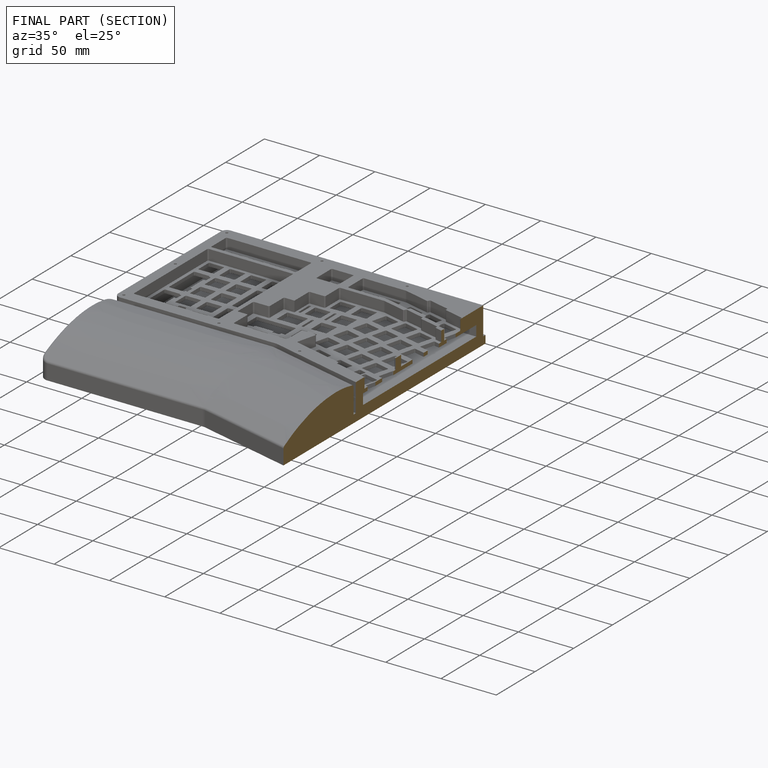
[diagram: finished part — half-section view (interior)]
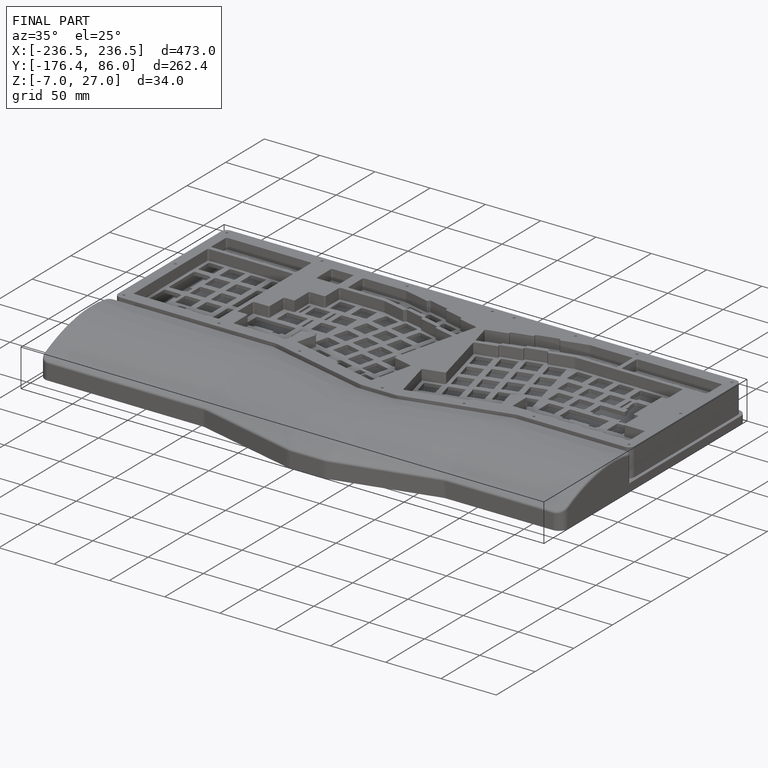
[diagram: finished part — iso view with bounding-box wireframe]
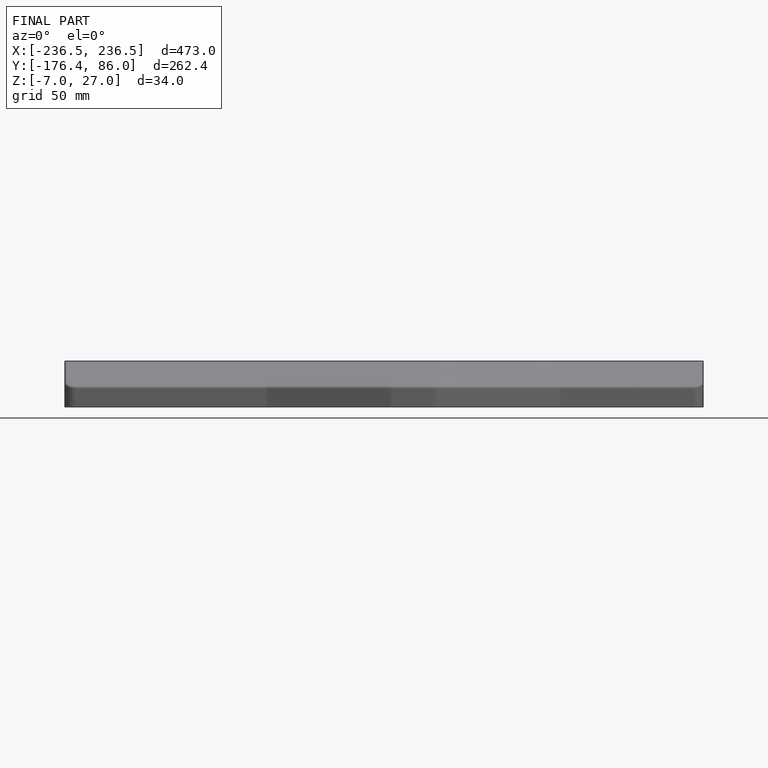
[diagram: finished part — front view with bounding-box wireframe]
